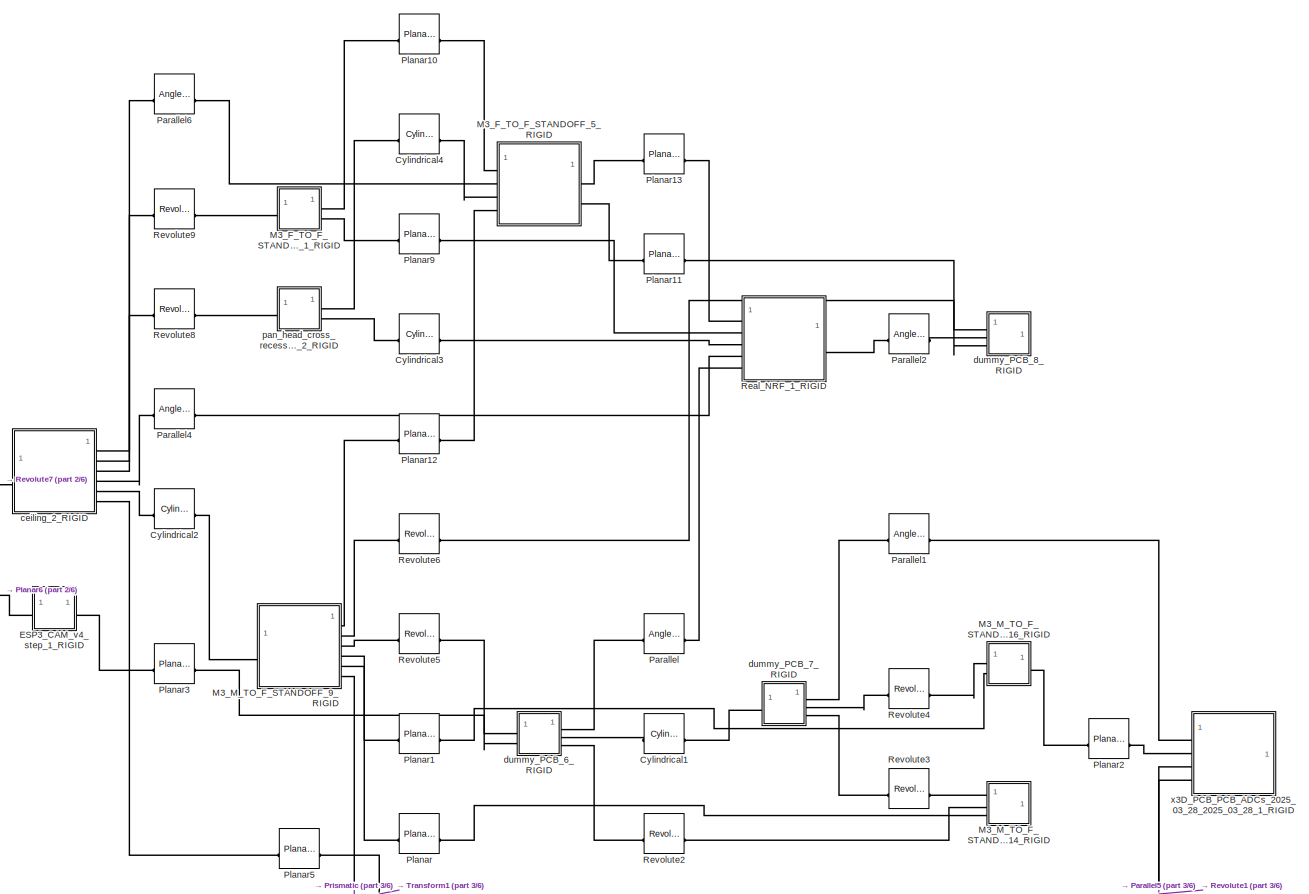
[diagram: root canvas - part 1/6, top left region]
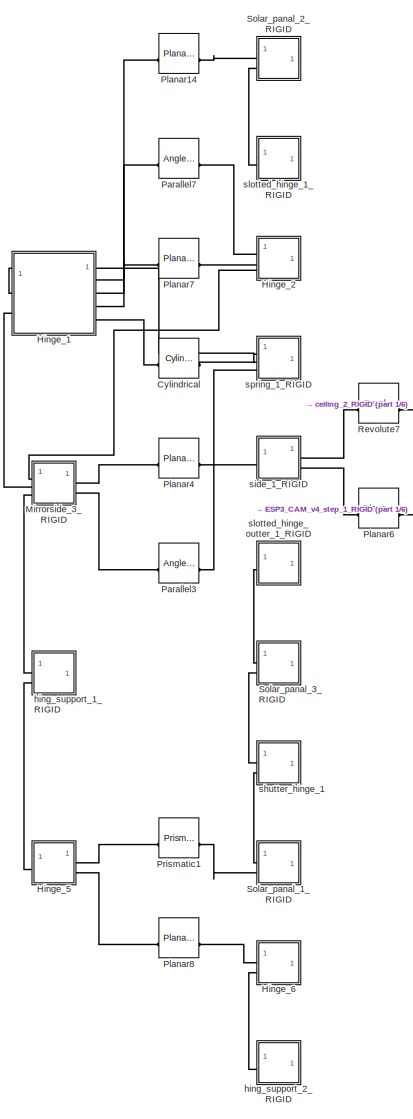
[diagram: root canvas - part 2/6, top left region]
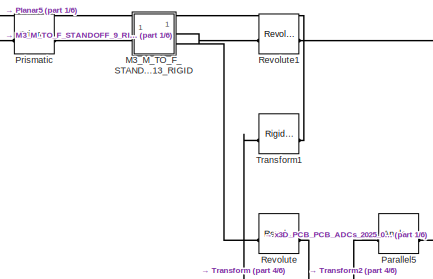
[diagram: root canvas - part 3/6, top left region]
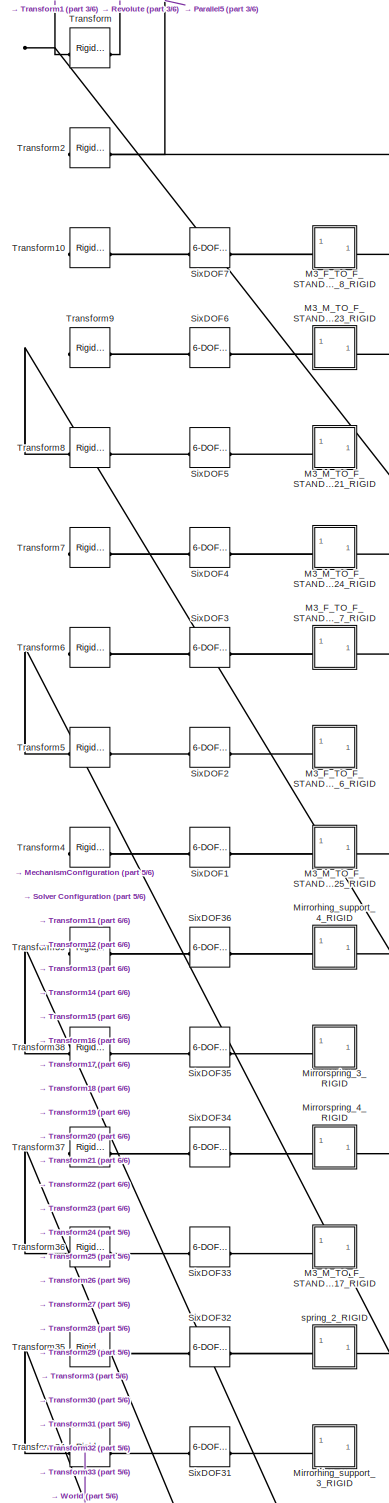
[diagram: root canvas - part 4/6, top left region]
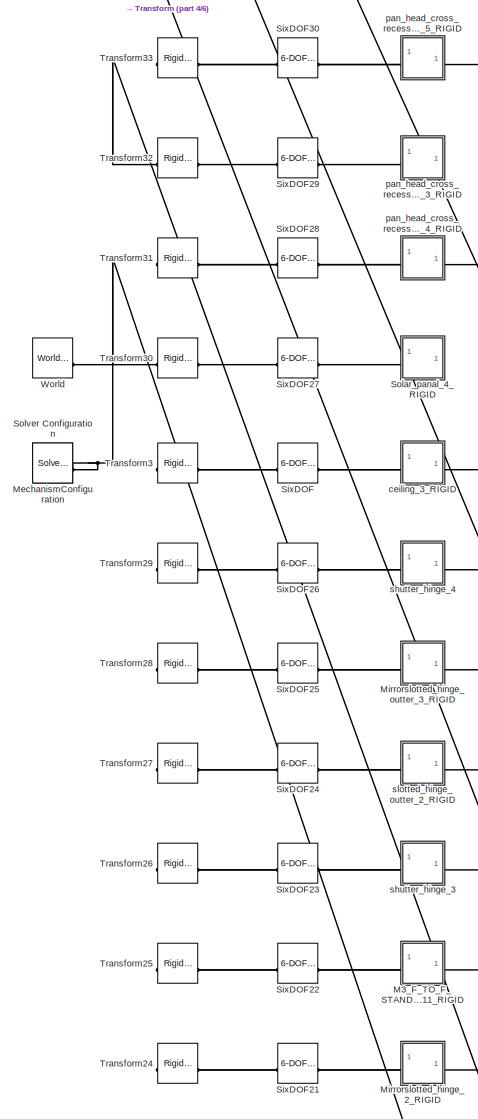
[diagram: root canvas - part 5/6, middle left region]
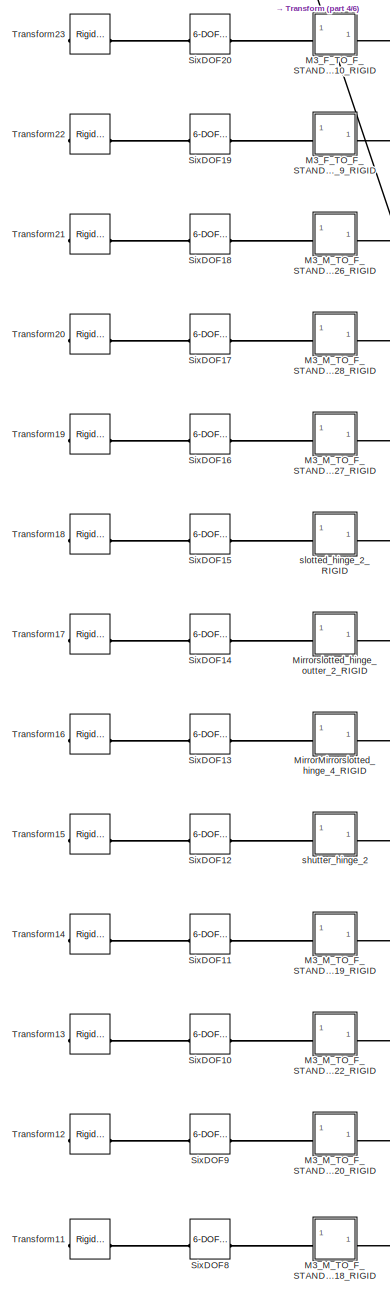
[diagram: root canvas - part 6/6, middle left region]
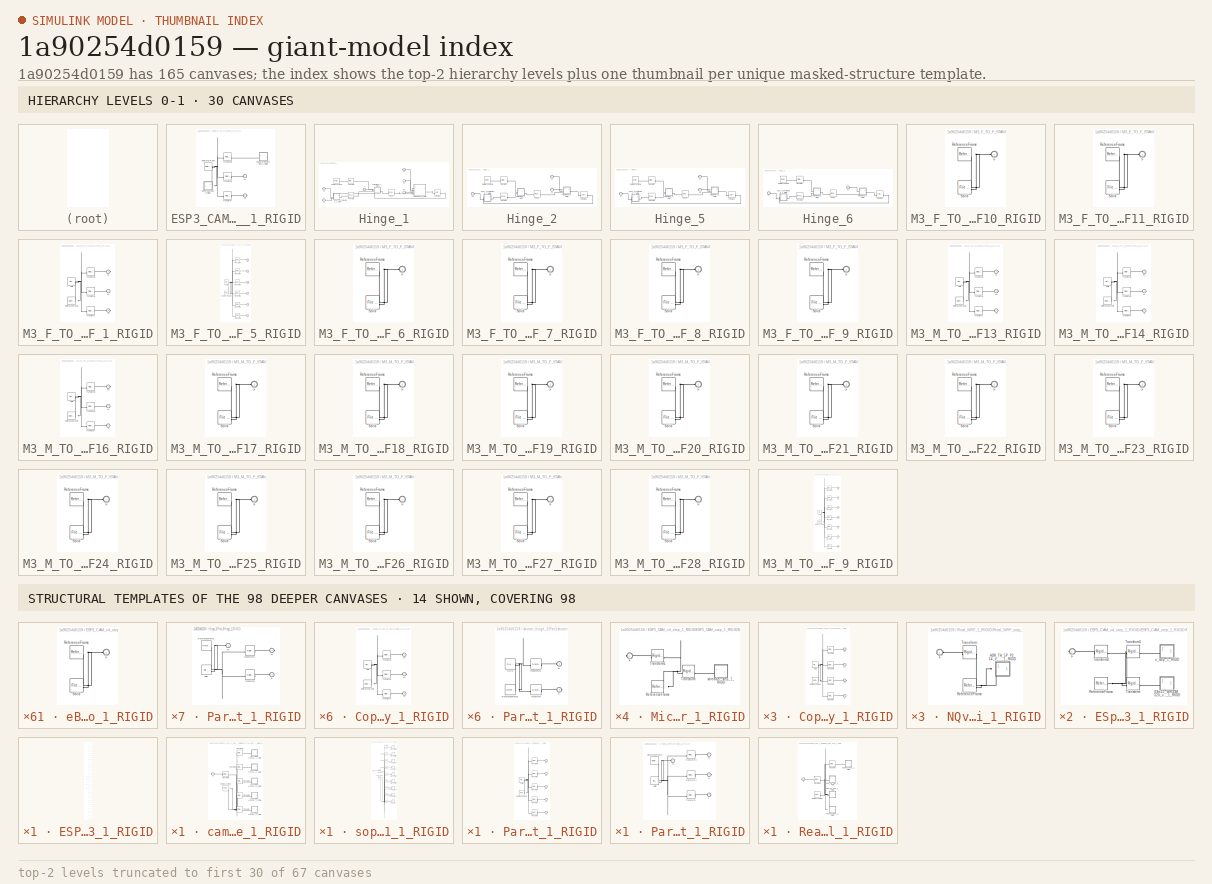
[diagram: thumbnail index - top-2 hierarchy levels (67 canvases (first 30 of 67 shown)) + 14 structural-template representatives of the remaining 98 canvases]
MODEL slx_1a90254d0159
KIND model
CONFIG AbsTol = auto
CONFIG EnableMultiTasking = off
CONFIG FixedStep = auto
CONFIG MaxStep = auto
CONFIG MinStep = auto
CONFIG RelTol = 1e-3
CONFIG SampleTimeConstraint = Unconstrained
CONFIG SolverName = VariableStepAuto
CONFIG StartTime = 0.0
CONFIG StopTime = 10.0
WORKSPACE source: external: MATLAB File  (data not in archive)
BLOCK [Reference] Cylindrical  REF=sm_lib/Joints/Cylindrical
Joint
  SourceBlock = sm_lib/Joints/Cylindrical\nJoint
  SourceType = Cylindrical\nJoint
BLOCK [Reference] Cylindrical1  REF=sm_lib/Joints/Cylindrical
Joint
  SourceBlock = sm_lib/Joints/Cylindrical\nJoint
  SourceType = Cylindrical\nJoint
BLOCK [Reference] Cylindrical2  REF=sm_lib/Joints/Cylindrical
Joint
  SourceBlock = sm_lib/Joints/Cylindrical\nJoint
  SourceType = Cylindrical\nJoint
BLOCK [Reference] Cylindrical3  REF=sm_lib/Joints/Cylindrical
Joint
  SourceBlock = sm_lib/Joints/Cylindrical\nJoint
  SourceType = Cylindrical\nJoint
BLOCK [Reference] Cylindrical4  REF=sm_lib/Joints/Cylindrical
Joint
  SourceBlock = sm_lib/Joints/Cylindrical\nJoint
  SourceType = Cylindrical\nJoint
BLOCK [SubSystem] ESP3_CAM_v4_step_1_RIGID
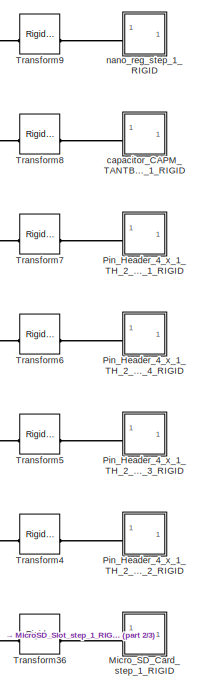
[diagram: ESP3_CAM_v4_step_1_RIGID/ESP3_CAM_step_1_RIGID - part 1/3, top right region]
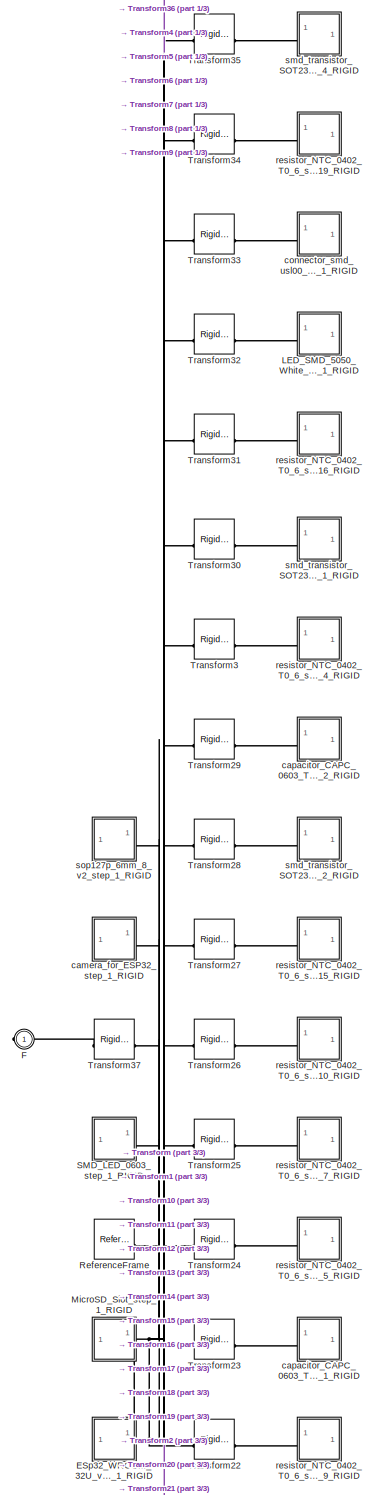
[diagram: ESP3_CAM_v4_step_1_RIGID/ESP3_CAM_step_1_RIGID - part 2/3, full width, middle band]
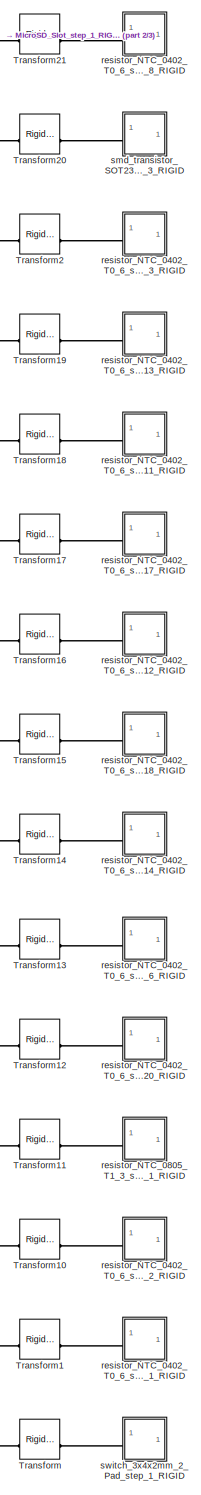
[diagram: ESP3_CAM_v4_step_1_RIGID/ESP3_CAM_step_1_RIGID - part 3/3, bottom right region]
BLOCK [SubSystem] ESP3_CAM_v4_step_1_RIGID/ESP3_CAM_step_1_RIGID
BLOCK [SubSystem] ESP3_CAM_v4_step_1_RIGID/ESP3_CAM_step_1_RIGID/ESp32_WROOM_32U_v3_step_1_RIGID
BLOCK [SubSystem] ESP3_CAM_v4_step_1_RIGID/ESP3_CAM_step_1_RIGID/ESp32_WROOM_32U_v3_step_1_RIGID/ESp32_WROOM_32U_v3_0_step_1_RIGID
BLOCK [PMIOPort] ESP3_CAM_v4_step_1_RIGID/ESP3_CAM_step_1_RIGID/ESp32_WROOM_32U_v3_step_1_RIGID/ESp32_WROOM_32U_v3_0_step_1_RIGID/F
  Side = Left
BLOCK [Reference] ESP3_CAM_v4_step_1_RIGID/ESP3_CAM_step_1_RIGID/ESp32_WROOM_32U_v3_step_1_RIGID/ESp32_WROOM_32U_v3_0_step_1_RIGID/ReferenceFrame  REF=sm_lib/Frames and
Transforms/Reference
Frame
  SourceBlock = sm_lib/Frames and\nTransforms/Reference\nFrame
  SourceType = Reference\nFrame
BLOCK [Reference] ESP3_CAM_v4_step_1_RIGID/ESP3_CAM_step_1_RIGID/ESp32_WROOM_32U_v3_step_1_RIGID/ESp32_WROOM_32U_v3_0_step_1_RIGID/Solid  REF=sm_lib/Body Elements/File Solid
  SourceBlock = sm_lib/Body Elements/File Solid
  SourceType = File Solid
BLOCK [PMIOPort] ESP3_CAM_v4_step_1_RIGID/ESP3_CAM_step_1_RIGID/ESp32_WROOM_32U_v3_step_1_RIGID/F
  Side = Right
BLOCK [Reference] ESP3_CAM_v4_step_1_RIGID/ESP3_CAM_step_1_RIGID/ESp32_WROOM_32U_v3_step_1_RIGID/ReferenceFrame  REF=sm_lib/Frames and
Transforms/Reference
Frame
  SourceBlock = sm_lib/Frames and\nTransforms/Reference\nFrame
  SourceType = Reference\nFrame
BLOCK [Reference] ESP3_CAM_v4_step_1_RIGID/ESP3_CAM_step_1_RIGID/ESp32_WROOM_32U_v3_step_1_RIGID/Transform  REF=sm_lib/Frames and
Transforms/Rigid
Transform
  SourceBlock = sm_lib/Frames and\nTransforms/Rigid\nTransform
  SourceType = Rigid\nTransform
BLOCK [Reference] ESP3_CAM_v4_step_1_RIGID/ESP3_CAM_step_1_RIGID/ESp32_WROOM_32U_v3_step_1_RIGID/Transform1  REF=sm_lib/Frames and
Transforms/Rigid
Transform
  SourceBlock = sm_lib/Frames and\nTransforms/Rigid\nTransform
  SourceType = Rigid\nTransform
BLOCK [Reference] ESP3_CAM_v4_step_1_RIGID/ESP3_CAM_step_1_RIGID/ESp32_WROOM_32U_v3_step_1_RIGID/Transform2  REF=sm_lib/Frames and
Transforms/Rigid
Transform
  SourceBlock = sm_lib/Frames and\nTransforms/Rigid\nTransform
  SourceType = Rigid\nTransform
BLOCK [SubSystem] ESP3_CAM_v4_step_1_RIGID/ESP3_CAM_step_1_RIGID/ESp32_WROOM_32U_v3_step_1_RIGID/u_step_1_RIGID
BLOCK [PMIOPort] ESP3_CAM_v4_step_1_RIGID/ESP3_CAM_step_1_RIGID/ESp32_WROOM_32U_v3_step_1_RIGID/u_step_1_RIGID/F
  Side = Left
BLOCK [Reference] ESP3_CAM_v4_step_1_RIGID/ESP3_CAM_step_1_RIGID/ESp32_WROOM_32U_v3_step_1_RIGID/u_step_1_RIGID/ReferenceFrame  REF=sm_lib/Frames and
Transforms/Reference
Frame
  SourceBlock = sm_lib/Frames and\nTransforms/Reference\nFrame
  SourceType = Reference\nFrame
BLOCK [Reference] ESP3_CAM_v4_step_1_RIGID/ESP3_CAM_step_1_RIGID/ESp32_WROOM_32U_v3_step_1_RIGID/u_step_1_RIGID/Solid  REF=sm_lib/Body Elements/File Solid
  SourceBlock = sm_lib/Body Elements/File Solid
  SourceType = File Solid
BLOCK [PMIOPort] ESP3_CAM_v4_step_1_RIGID/ESP3_CAM_step_1_RIGID/F
  Side = Right
BLOCK [SubSystem] ESP3_CAM_v4_step_1_RIGID/ESP3_CAM_step_1_RIGID/LED_SMD_5050_White_step_1_RIGID
BLOCK [PMIOPort] ESP3_CAM_v4_step_1_RIGID/ESP3_CAM_step_1_RIGID/LED_SMD_5050_White_step_1_RIGID/F
  Side = Left
BLOCK [Reference] ESP3_CAM_v4_step_1_RIGID/ESP3_CAM_step_1_RIGID/LED_SMD_5050_White_step_1_RIGID/ReferenceFrame  REF=sm_lib/Frames and
Transforms/Reference
Frame
  SourceBlock = sm_lib/Frames and\nTransforms/Reference\nFrame
  SourceType = Reference\nFrame
BLOCK [Reference] ESP3_CAM_v4_step_1_RIGID/ESP3_CAM_step_1_RIGID/LED_SMD_5050_White_step_1_RIGID/Solid  REF=sm_lib/Body Elements/File Solid
  SourceBlock = sm_lib/Body Elements/File Solid
  SourceType = File Solid
BLOCK [SubSystem] ESP3_CAM_v4_step_1_RIGID/ESP3_CAM_step_1_RIGID/MicroSD_Slot_step_1_RIGID
BLOCK [PMIOPort] ESP3_CAM_v4_step_1_RIGID/ESP3_CAM_step_1_RIGID/MicroSD_Slot_step_1_RIGID/F
  Side = Right
BLOCK [Reference] ESP3_CAM_v4_step_1_RIGID/ESP3_CAM_step_1_RIGID/MicroSD_Slot_step_1_RIGID/ReferenceFrame  REF=sm_lib/Frames and
Transforms/Reference
Frame
  SourceBlock = sm_lib/Frames and\nTransforms/Reference\nFrame
  SourceType = Reference\nFrame
BLOCK [Reference] ESP3_CAM_v4_step_1_RIGID/ESP3_CAM_step_1_RIGID/MicroSD_Slot_step_1_RIGID/Transform  REF=sm_lib/Frames and
Transforms/Rigid
Transform
  SourceBlock = sm_lib/Frames and\nTransforms/Rigid\nTransform
  SourceType = Rigid\nTransform
BLOCK [Reference] ESP3_CAM_v4_step_1_RIGID/ESP3_CAM_step_1_RIGID/MicroSD_Slot_step_1_RIGID/Transform1  REF=sm_lib/Frames and
Transforms/Rigid
Transform
  SourceBlock = sm_lib/Frames and\nTransforms/Rigid\nTransform
  SourceType = Rigid\nTransform
BLOCK [SubSystem] ESP3_CAM_v4_step_1_RIGID/ESP3_CAM_step_1_RIGID/MicroSD_Slot_step_1_RIGID/sdreader_step_1_RIGID
BLOCK [PMIOPort] ESP3_CAM_v4_step_1_RIGID/ESP3_CAM_step_1_RIGID/MicroSD_Slot_step_1_RIGID/sdreader_step_1_RIGID/F
  Side = Left
BLOCK [Reference] ESP3_CAM_v4_step_1_RIGID/ESP3_CAM_step_1_RIGID/MicroSD_Slot_step_1_RIGID/sdreader_step_1_RIGID/ReferenceFrame  REF=sm_lib/Frames and
Transforms/Reference
Frame
  SourceBlock = sm_lib/Frames and\nTransforms/Reference\nFrame
  SourceType = Reference\nFrame
BLOCK [Reference] ESP3_CAM_v4_step_1_RIGID/ESP3_CAM_step_1_RIGID/MicroSD_Slot_step_1_RIGID/sdreader_step_1_RIGID/Solid  REF=sm_lib/Body Elements/File Solid
  SourceBlock = sm_lib/Body Elements/File Solid
  SourceType = File Solid
BLOCK [SubSystem] ESP3_CAM_v4_step_1_RIGID/ESP3_CAM_step_1_RIGID/Micro_SD_Card_step_1_RIGID
BLOCK [PMIOPort] ESP3_CAM_v4_step_1_RIGID/ESP3_CAM_step_1_RIGID/Micro_SD_Card_step_1_RIGID/F
  Side = Left
BLOCK [Reference] ESP3_CAM_v4_step_1_RIGID/ESP3_CAM_step_1_RIGID/Micro_SD_Card_step_1_RIGID/ReferenceFrame  REF=sm_lib/Frames and
Transforms/Reference
Frame
  SourceBlock = sm_lib/Frames and\nTransforms/Reference\nFrame
  SourceType = Reference\nFrame
BLOCK [Reference] ESP3_CAM_v4_step_1_RIGID/ESP3_CAM_step_1_RIGID/Micro_SD_Card_step_1_RIGID/Solid  REF=sm_lib/Body Elements/File Solid
  SourceBlock = sm_lib/Body Elements/File Solid
  SourceType = File Solid
BLOCK [SubSystem] ESP3_CAM_v4_step_1_RIGID/ESP3_CAM_step_1_RIGID/Pin_Header_4_x_1_TH_2_54mm_Pitch_step_1_RIGID
BLOCK [PMIOPort] ESP3_CAM_v4_step_1_RIGID/ESP3_CAM_step_1_RIGID/Pin_Header_4_x_1_TH_2_54mm_Pitch_step_1_RIGID/F
  Side = Left
BLOCK [Reference] ESP3_CAM_v4_step_1_RIGID/ESP3_CAM_step_1_RIGID/Pin_Header_4_x_1_TH_2_54mm_Pitch_step_1_RIGID/ReferenceFrame  REF=sm_lib/Frames and
Transforms/Reference
Frame
  SourceBlock = sm_lib/Frames and\nTransforms/Reference\nFrame
  SourceType = Reference\nFrame
BLOCK [Reference] ESP3_CAM_v4_step_1_RIGID/ESP3_CAM_step_1_RIGID/Pin_Header_4_x_1_TH_2_54mm_Pitch_step_1_RIGID/Solid  REF=sm_lib/Body Elements/File Solid
  SourceBlock = sm_lib/Body Elements/File Solid
  SourceType = File Solid
BLOCK [SubSystem] ESP3_CAM_v4_step_1_RIGID/ESP3_CAM_step_1_RIGID/Pin_Header_4_x_1_TH_2_54mm_Pitch_step_2_RIGID
BLOCK [PMIOPort] ESP3_CAM_v4_step_1_RIGID/ESP3_CAM_step_1_RIGID/Pin_Header_4_x_1_TH_2_54mm_Pitch_step_2_RIGID/F
  Side = Left
BLOCK [Reference] ESP3_CAM_v4_step_1_RIGID/ESP3_CAM_step_1_RIGID/Pin_Header_4_x_1_TH_2_54mm_Pitch_step_2_RIGID/ReferenceFrame  REF=sm_lib/Frames and
Transforms/Reference
Frame
  SourceBlock = sm_lib/Frames and\nTransforms/Reference\nFrame
  SourceType = Reference\nFrame
BLOCK [Reference] ESP3_CAM_v4_step_1_RIGID/ESP3_CAM_step_1_RIGID/Pin_Header_4_x_1_TH_2_54mm_Pitch_step_2_RIGID/Solid  REF=sm_lib/Body Elements/File Solid
  SourceBlock = sm_lib/Body Elements/File Solid
  SourceType = File Solid
BLOCK [SubSystem] ESP3_CAM_v4_step_1_RIGID/ESP3_CAM_step_1_RIGID/Pin_Header_4_x_1_TH_2_54mm_Pitch_step_3_RIGID
BLOCK [PMIOPort] ESP3_CAM_v4_step_1_RIGID/ESP3_CAM_step_1_RIGID/Pin_Header_4_x_1_TH_2_54mm_Pitch_step_3_RIGID/F
  Side = Left
BLOCK [Reference] ESP3_CAM_v4_step_1_RIGID/ESP3_CAM_step_1_RIGID/Pin_Header_4_x_1_TH_2_54mm_Pitch_step_3_RIGID/ReferenceFrame  REF=sm_lib/Frames and
Transforms/Reference
Frame
  SourceBlock = sm_lib/Frames and\nTransforms/Reference\nFrame
  SourceType = Reference\nFrame
BLOCK [Reference] ESP3_CAM_v4_step_1_RIGID/ESP3_CAM_step_1_RIGID/Pin_Header_4_x_1_TH_2_54mm_Pitch_step_3_RIGID/Solid  REF=sm_lib/Body Elements/File Solid
  SourceBlock = sm_lib/Body Elements/File Solid
  SourceType = File Solid
BLOCK [SubSystem] ESP3_CAM_v4_step_1_RIGID/ESP3_CAM_step_1_RIGID/Pin_Header_4_x_1_TH_2_54mm_Pitch_step_4_RIGID
BLOCK [PMIOPort] ESP3_CAM_v4_step_1_RIGID/ESP3_CAM_step_1_RIGID/Pin_Header_4_x_1_TH_2_54mm_Pitch_step_4_RIGID/F
  Side = Left
BLOCK [Reference] ESP3_CAM_v4_step_1_RIGID/ESP3_CAM_step_1_RIGID/Pin_Header_4_x_1_TH_2_54mm_Pitch_step_4_RIGID/ReferenceFrame  REF=sm_lib/Frames and
Transforms/Reference
Frame
  SourceBlock = sm_lib/Frames and\nTransforms/Reference\nFrame
  SourceType = Reference\nFrame
BLOCK [Reference] ESP3_CAM_v4_step_1_RIGID/ESP3_CAM_step_1_RIGID/Pin_Header_4_x_1_TH_2_54mm_Pitch_step_4_RIGID/Solid  REF=sm_lib/Body Elements/File Solid
  SourceBlock = sm_lib/Body Elements/File Solid
  SourceType = File Solid
BLOCK [Reference] ESP3_CAM_v4_step_1_RIGID/ESP3_CAM_step_1_RIGID/ReferenceFrame  REF=sm_lib/Frames and
Transforms/Reference
Frame
  SourceBlock = sm_lib/Frames and\nTransforms/Reference\nFrame
  SourceType = Reference\nFrame
BLOCK [SubSystem] ESP3_CAM_v4_step_1_RIGID/ESP3_CAM_step_1_RIGID/SMD_LED_0603_step_1_RIGID
BLOCK [PMIOPort] ESP3_CAM_v4_step_1_RIGID/ESP3_CAM_step_1_RIGID/SMD_LED_0603_step_1_RIGID/F
  Side = Right
BLOCK [SubSystem] ESP3_CAM_v4_step_1_RIGID/ESP3_CAM_step_1_RIGID/SMD_LED_0603_step_1_RIGID/Fillet_step_1_RIGID
BLOCK [PMIOPort] ESP3_CAM_v4_step_1_RIGID/ESP3_CAM_step_1_RIGID/SMD_LED_0603_step_1_RIGID/Fillet_step_1_RIGID/F
  Side = Left
BLOCK [Reference] ESP3_CAM_v4_step_1_RIGID/ESP3_CAM_step_1_RIGID/SMD_LED_0603_step_1_RIGID/Fillet_step_1_RIGID/ReferenceFrame  REF=sm_lib/Frames and
Transforms/Reference
Frame
  SourceBlock = sm_lib/Frames and\nTransforms/Reference\nFrame
  SourceType = Reference\nFrame
BLOCK [Reference] ESP3_CAM_v4_step_1_RIGID/ESP3_CAM_step_1_RIGID/SMD_LED_0603_step_1_RIGID/Fillet_step_1_RIGID/Solid  REF=sm_lib/Body Elements/File Solid
  SourceBlock = sm_lib/Body Elements/File Solid
  SourceType = File Solid
BLOCK [SubSystem] ESP3_CAM_v4_step_1_RIGID/ESP3_CAM_step_1_RIGID/SMD_LED_0603_step_1_RIGID/Fusion_step_1_RIGID
BLOCK [PMIOPort] ESP3_CAM_v4_step_1_RIGID/ESP3_CAM_step_1_RIGID/SMD_LED_0603_step_1_RIGID/Fusion_step_1_RIGID/F
  Side = Left
BLOCK [Reference] ESP3_CAM_v4_step_1_RIGID/ESP3_CAM_step_1_RIGID/SMD_LED_0603_step_1_RIGID/Fusion_step_1_RIGID/ReferenceFrame  REF=sm_lib/Frames and
Transforms/Reference
Frame
  SourceBlock = sm_lib/Frames and\nTransforms/Reference\nFrame
  SourceType = Reference\nFrame
BLOCK [Reference] ESP3_CAM_v4_step_1_RIGID/ESP3_CAM_step_1_RIGID/SMD_LED_0603_step_1_RIGID/Fusion_step_1_RIGID/Solid  REF=sm_lib/Body Elements/File Solid
  SourceBlock = sm_lib/Body Elements/File Solid
  SourceType = File Solid
BLOCK [Reference] ESP3_CAM_v4_step_1_RIGID/ESP3_CAM_step_1_RIGID/SMD_LED_0603_step_1_RIGID/ReferenceFrame  REF=sm_lib/Frames and
Transforms/Reference
Frame
  SourceBlock = sm_lib/Frames and\nTransforms/Reference\nFrame
  SourceType = Reference\nFrame
BLOCK [Reference] ESP3_CAM_v4_step_1_RIGID/ESP3_CAM_step_1_RIGID/SMD_LED_0603_step_1_RIGID/Transform  REF=sm_lib/Frames and
Transforms/Rigid
Transform
  SourceBlock = sm_lib/Frames and\nTransforms/Rigid\nTransform
  SourceType = Rigid\nTransform
BLOCK [Reference] ESP3_CAM_v4_step_1_RIGID/ESP3_CAM_step_1_RIGID/SMD_LED_0603_step_1_RIGID/Transform1  REF=sm_lib/Frames and
Transforms/Rigid
Transform
  SourceBlock = sm_lib/Frames and\nTransforms/Rigid\nTransform
  SourceType = Rigid\nTransform
BLOCK [Reference] ESP3_CAM_v4_step_1_RIGID/ESP3_CAM_step_1_RIGID/SMD_LED_0603_step_1_RIGID/Transform2  REF=sm_lib/Frames and
Transforms/Rigid
Transform
  SourceBlock = sm_lib/Frames and\nTransforms/Rigid\nTransform
  SourceType = Rigid\nTransform
BLOCK [Reference] ESP3_CAM_v4_step_1_RIGID/ESP3_CAM_step_1_RIGID/Transform  REF=sm_lib/Frames and
Transforms/Rigid
Transform
  SourceBlock = sm_lib/Frames and\nTransforms/Rigid\nTransform
  SourceType = Rigid\nTransform
BLOCK [Reference] ESP3_CAM_v4_step_1_RIGID/ESP3_CAM_step_1_RIGID/Transform1  REF=sm_lib/Frames and
Transforms/Rigid
Transform
  SourceBlock = sm_lib/Frames and\nTransforms/Rigid\nTransform
  SourceType = Rigid\nTransform
BLOCK [Reference] ESP3_CAM_v4_step_1_RIGID/ESP3_CAM_step_1_RIGID/Transform10  REF=sm_lib/Frames and
Transforms/Rigid
Transform
  SourceBlock = sm_lib/Frames and\nTransforms/Rigid\nTransform
  SourceType = Rigid\nTransform
BLOCK [Reference] ESP3_CAM_v4_step_1_RIGID/ESP3_CAM_step_1_RIGID/Transform11  REF=sm_lib/Frames and
Transforms/Rigid
Transform
  SourceBlock = sm_lib/Frames and\nTransforms/Rigid\nTransform
  SourceType = Rigid\nTransform
BLOCK [Reference] ESP3_CAM_v4_step_1_RIGID/ESP3_CAM_step_1_RIGID/Transform12  REF=sm_lib/Frames and
Transforms/Rigid
Transform
  SourceBlock = sm_lib/Frames and\nTransforms/Rigid\nTransform
  SourceType = Rigid\nTransform
BLOCK [Reference] ESP3_CAM_v4_step_1_RIGID/ESP3_CAM_step_1_RIGID/Transform13  REF=sm_lib/Frames and
Transforms/Rigid
Transform
  SourceBlock = sm_lib/Frames and\nTransforms/Rigid\nTransform
  SourceType = Rigid\nTransform
BLOCK [Reference] ESP3_CAM_v4_step_1_RIGID/ESP3_CAM_step_1_RIGID/Transform14  REF=sm_lib/Frames and
Transforms/Rigid
Transform
  SourceBlock = sm_lib/Frames and\nTransforms/Rigid\nTransform
  SourceType = Rigid\nTransform
BLOCK [Reference] ESP3_CAM_v4_step_1_RIGID/ESP3_CAM_step_1_RIGID/Transform15  REF=sm_lib/Frames and
Transforms/Rigid
Transform
  SourceBlock = sm_lib/Frames and\nTransforms/Rigid\nTransform
  SourceType = Rigid\nTransform
BLOCK [Reference] ESP3_CAM_v4_step_1_RIGID/ESP3_CAM_step_1_RIGID/Transform16  REF=sm_lib/Frames and
Transforms/Rigid
Transform
  SourceBlock = sm_lib/Frames and\nTransforms/Rigid\nTransform
  SourceType = Rigid\nTransform
BLOCK [Reference] ESP3_CAM_v4_step_1_RIGID/ESP3_CAM_step_1_RIGID/Transform17  REF=sm_lib/Frames and
Transforms/Rigid
Transform
  SourceBlock = sm_lib/Frames and\nTransforms/Rigid\nTransform
  SourceType = Rigid\nTransform
BLOCK [Reference] ESP3_CAM_v4_step_1_RIGID/ESP3_CAM_step_1_RIGID/Transform18  REF=sm_lib/Frames and
Transforms/Rigid
Transform
  SourceBlock = sm_lib/Frames and\nTransforms/Rigid\nTransform
  SourceType = Rigid\nTransform
BLOCK [Reference] ESP3_CAM_v4_step_1_RIGID/ESP3_CAM_step_1_RIGID/Transform19  REF=sm_lib/Frames and
Transforms/Rigid
Transform
  SourceBlock = sm_lib/Frames and\nTransforms/Rigid\nTransform
  SourceType = Rigid\nTransform
BLOCK [Reference] ESP3_CAM_v4_step_1_RIGID/ESP3_CAM_step_1_RIGID/Transform2  REF=sm_lib/Frames and
Transforms/Rigid
Transform
  SourceBlock = sm_lib/Frames and\nTransforms/Rigid\nTransform
  SourceType = Rigid\nTransform
BLOCK [Reference] ESP3_CAM_v4_step_1_RIGID/ESP3_CAM_step_1_RIGID/Transform20  REF=sm_lib/Frames and
Transforms/Rigid
Transform
  SourceBlock = sm_lib/Frames and\nTransforms/Rigid\nTransform
  SourceType = Rigid\nTransform
BLOCK [Reference] ESP3_CAM_v4_step_1_RIGID/ESP3_CAM_step_1_RIGID/Transform21  REF=sm_lib/Frames and
Transforms/Rigid
Transform
  SourceBlock = sm_lib/Frames and\nTransforms/Rigid\nTransform
  SourceType = Rigid\nTransform
BLOCK [Reference] ESP3_CAM_v4_step_1_RIGID/ESP3_CAM_step_1_RIGID/Transform22  REF=sm_lib/Frames and
Transforms/Rigid
Transform
  SourceBlock = sm_lib/Frames and\nTransforms/Rigid\nTransform
  SourceType = Rigid\nTransform
BLOCK [Reference] ESP3_CAM_v4_step_1_RIGID/ESP3_CAM_step_1_RIGID/Transform23  REF=sm_lib/Frames and
Transforms/Rigid
Transform
  SourceBlock = sm_lib/Frames and\nTransforms/Rigid\nTransform
  SourceType = Rigid\nTransform
BLOCK [Reference] ESP3_CAM_v4_step_1_RIGID/ESP3_CAM_step_1_RIGID/Transform24  REF=sm_lib/Frames and
Transforms/Rigid
Transform
  SourceBlock = sm_lib/Frames and\nTransforms/Rigid\nTransform
  SourceType = Rigid\nTransform
BLOCK [Reference] ESP3_CAM_v4_step_1_RIGID/ESP3_CAM_step_1_RIGID/Transform25  REF=sm_lib/Frames and
Transforms/Rigid
Transform
  SourceBlock = sm_lib/Frames and\nTransforms/Rigid\nTransform
  SourceType = Rigid\nTransform
BLOCK [Reference] ESP3_CAM_v4_step_1_RIGID/ESP3_CAM_step_1_RIGID/Transform26  REF=sm_lib/Frames and
Transforms/Rigid
Transform
  SourceBlock = sm_lib/Frames and\nTransforms/Rigid\nTransform
  SourceType = Rigid\nTransform
BLOCK [Reference] ESP3_CAM_v4_step_1_RIGID/ESP3_CAM_step_1_RIGID/Transform27  REF=sm_lib/Frames and
Transforms/Rigid
Transform
  SourceBlock = sm_lib/Frames and\nTransforms/Rigid\nTransform
  SourceType = Rigid\nTransform
BLOCK [Reference] ESP3_CAM_v4_step_1_RIGID/ESP3_CAM_step_1_RIGID/Transform28  REF=sm_lib/Frames and
Transforms/Rigid
Transform
  SourceBlock = sm_lib/Frames and\nTransforms/Rigid\nTransform
  SourceType = Rigid\nTransform
BLOCK [Reference] ESP3_CAM_v4_step_1_RIGID/ESP3_CAM_step_1_RIGID/Transform29  REF=sm_lib/Frames and
Transforms/Rigid
Transform
  SourceBlock = sm_lib/Frames and\nTransforms/Rigid\nTransform
  SourceType = Rigid\nTransform
BLOCK [Reference] ESP3_CAM_v4_step_1_RIGID/ESP3_CAM_step_1_RIGID/Transform3  REF=sm_lib/Frames and
Transforms/Rigid
Transform
  SourceBlock = sm_lib/Frames and\nTransforms/Rigid\nTransform
  SourceType = Rigid\nTransform
BLOCK [Reference] ESP3_CAM_v4_step_1_RIGID/ESP3_CAM_step_1_RIGID/Transform30  REF=sm_lib/Frames and
Transforms/Rigid
Transform
  SourceBlock = sm_lib/Frames and\nTransforms/Rigid\nTransform
  SourceType = Rigid\nTransform
BLOCK [Reference] ESP3_CAM_v4_step_1_RIGID/ESP3_CAM_step_1_RIGID/Transform31  REF=sm_lib/Frames and
Transforms/Rigid
Transform
  SourceBlock = sm_lib/Frames and\nTransforms/Rigid\nTransform
  SourceType = Rigid\nTransform
BLOCK [Reference] ESP3_CAM_v4_step_1_RIGID/ESP3_CAM_step_1_RIGID/Transform32  REF=sm_lib/Frames and
Transforms/Rigid
Transform
  SourceBlock = sm_lib/Frames and\nTransforms/Rigid\nTransform
  SourceType = Rigid\nTransform
BLOCK [Reference] ESP3_CAM_v4_step_1_RIGID/ESP3_CAM_step_1_RIGID/Transform33  REF=sm_lib/Frames and
Transforms/Rigid
Transform
  SourceBlock = sm_lib/Frames and\nTransforms/Rigid\nTransform
  SourceType = Rigid\nTransform
BLOCK [Reference] ESP3_CAM_v4_step_1_RIGID/ESP3_CAM_step_1_RIGID/Transform34  REF=sm_lib/Frames and
Transforms/Rigid
Transform
  SourceBlock = sm_lib/Frames and\nTransforms/Rigid\nTransform
  SourceType = Rigid\nTransform
BLOCK [Reference] ESP3_CAM_v4_step_1_RIGID/ESP3_CAM_step_1_RIGID/Transform35  REF=sm_lib/Frames and
Transforms/Rigid
Transform
  SourceBlock = sm_lib/Frames and\nTransforms/Rigid\nTransform
  SourceType = Rigid\nTransform
BLOCK [Reference] ESP3_CAM_v4_step_1_RIGID/ESP3_CAM_step_1_RIGID/Transform36  REF=sm_lib/Frames and
Transforms/Rigid
Transform
  SourceBlock = sm_lib/Frames and\nTransforms/Rigid\nTransform
  SourceType = Rigid\nTransform
BLOCK [Reference] ESP3_CAM_v4_step_1_RIGID/ESP3_CAM_step_1_RIGID/Transform37  REF=sm_lib/Frames and
Transforms/Rigid
Transform
  SourceBlock = sm_lib/Frames and\nTransforms/Rigid\nTransform
  SourceType = Rigid\nTransform
BLOCK [Reference] ESP3_CAM_v4_step_1_RIGID/ESP3_CAM_step_1_RIGID/Transform4  REF=sm_lib/Frames and
Transforms/Rigid
Transform
  SourceBlock = sm_lib/Frames and\nTransforms/Rigid\nTransform
  SourceType = Rigid\nTransform
BLOCK [Reference] ESP3_CAM_v4_step_1_RIGID/ESP3_CAM_step_1_RIGID/Transform5  REF=sm_lib/Frames and
Transforms/Rigid
Transform
  SourceBlock = sm_lib/Frames and\nTransforms/Rigid\nTransform
  SourceType = Rigid\nTransform
BLOCK [Reference] ESP3_CAM_v4_step_1_RIGID/ESP3_CAM_step_1_RIGID/Transform6  REF=sm_lib/Frames and
Transforms/Rigid
Transform
  SourceBlock = sm_lib/Frames and\nTransforms/Rigid\nTransform
  SourceType = Rigid\nTransform
BLOCK [Reference] ESP3_CAM_v4_step_1_RIGID/ESP3_CAM_step_1_RIGID/Transform7  REF=sm_lib/Frames and
Transforms/Rigid
Transform
  SourceBlock = sm_lib/Frames and\nTransforms/Rigid\nTransform
  SourceType = Rigid\nTransform
BLOCK [Reference] ESP3_CAM_v4_step_1_RIGID/ESP3_CAM_step_1_RIGID/Transform8  REF=sm_lib/Frames and
Transforms/Rigid
Transform
  SourceBlock = sm_lib/Frames and\nTransforms/Rigid\nTransform
  SourceType = Rigid\nTransform
BLOCK [Reference] ESP3_CAM_v4_step_1_RIGID/ESP3_CAM_step_1_RIGID/Transform9  REF=sm_lib/Frames and
Transforms/Rigid
Transform
  SourceBlock = sm_lib/Frames and\nTransforms/Rigid\nTransform
  SourceType = Rigid\nTransform
BLOCK [SubSystem] ESP3_CAM_v4_step_1_RIGID/ESP3_CAM_step_1_RIGID/camera_for_ESP32_step_1_RIGID
BLOCK [PMIOPort] ESP3_CAM_v4_step_1_RIGID/ESP3_CAM_step_1_RIGID/camera_for_ESP32_step_1_RIGID/F
  Side = Right
BLOCK [Reference] ESP3_CAM_v4_step_1_RIGID/ESP3_CAM_step_1_RIGID/camera_for_ESP32_step_1_RIGID/ReferenceFrame  REF=sm_lib/Frames and
Transforms/Reference
Frame
  SourceBlock = sm_lib/Frames and\nTransforms/Reference\nFrame
  SourceType = Reference\nFrame
BLOCK [Reference] ESP3_CAM_v4_step_1_RIGID/ESP3_CAM_step_1_RIGID/camera_for_ESP32_step_1_RIGID/Transform  REF=sm_lib/Frames and
Transforms/Rigid
Transform
  SourceBlock = sm_lib/Frames and\nTransforms/Rigid\nTransform
  SourceType = Rigid\nTransform
BLOCK [Reference] ESP3_CAM_v4_step_1_RIGID/ESP3_CAM_step_1_RIGID/camera_for_ESP32_step_1_RIGID/Transform1  REF=sm_lib/Frames and
Transforms/Rigid
Transform
  SourceBlock = sm_lib/Frames and\nTransforms/Rigid\nTransform
  SourceType = Rigid\nTransform
BLOCK [Reference] ESP3_CAM_v4_step_1_RIGID/ESP3_CAM_step_1_RIGID/camera_for_ESP32_step_1_RIGID/Transform2  REF=sm_lib/Frames and
Transforms/Rigid
Transform
  SourceBlock = sm_lib/Frames and\nTransforms/Rigid\nTransform
  SourceType = Rigid\nTransform
BLOCK [Reference] ESP3_CAM_v4_step_1_RIGID/ESP3_CAM_step_1_RIGID/camera_for_ESP32_step_1_RIGID/Transform3  REF=sm_lib/Frames and
Transforms/Rigid
Transform
  SourceBlock = sm_lib/Frames and\nTransforms/Rigid\nTransform
  SourceType = Rigid\nTransform
BLOCK [Reference] ESP3_CAM_v4_step_1_RIGID/ESP3_CAM_step_1_RIGID/camera_for_ESP32_step_1_RIGID/Transform4  REF=sm_lib/Frames and
Transforms/Rigid
Transform
  SourceBlock = sm_lib/Frames and\nTransforms/Rigid\nTransform
  SourceType = Rigid\nTransform
BLOCK [Reference] ESP3_CAM_v4_step_1_RIGID/ESP3_CAM_step_1_RIGID/camera_for_ESP32_step_1_RIGID/Transform5  REF=sm_lib/Frames and
Transforms/Rigid
Transform
  SourceBlock = sm_lib/Frames and\nTransforms/Rigid\nTransform
  SourceType = Rigid\nTransform
BLOCK [SubSystem] ESP3_CAM_v4_step_1_RIGID/ESP3_CAM_step_1_RIGID/camera_for_ESP32_step_1_RIGID/User_Library_ov9655_ov9655_back_panel_step_1_RIGID
BLOCK [PMIOPort] ESP3_CAM_v4_step_1_RIGID/ESP3_CAM_step_1_RIGID/camera_for_ESP32_step_1_RIGID/User_Library_ov9655_ov9655_back_panel_step_1_RIGID/F
  Side = Left
BLOCK [Reference] ESP3_CAM_v4_step_1_RIGID/ESP3_CAM_step_1_RIGID/camera_for_ESP32_step_1_RIGID/User_Library_ov9655_ov9655_back_panel_step_1_RIGID/ReferenceFrame  REF=sm_lib/Frames and
Transforms/Reference
Frame
  SourceBlock = sm_lib/Frames and\nTransforms/Reference\nFrame
  SourceType = Reference\nFrame
BLOCK [Reference] ESP3_CAM_v4_step_1_RIGID/ESP3_CAM_step_1_RIGID/camera_for_ESP32_step_1_RIGID/User_Library_ov9655_ov9655_back_panel_step_1_RIGID/Solid  REF=sm_lib/Body Elements/File Solid
  SourceBlock = sm_lib/Body Elements/File Solid
  SourceType = File Solid
BLOCK [SubSystem] ESP3_CAM_v4_step_1_RIGID/ESP3_CAM_step_1_RIGID/camera_for_ESP32_step_1_RIGID/User_Library_ov9655_ov9655_body_step_1_RIGID
BLOCK [PMIOPort] ESP3_CAM_v4_step_1_RIGID/ESP3_CAM_step_1_RIGID/camera_for_ESP32_step_1_RIGID/User_Library_ov9655_ov9655_body_step_1_RIGID/F
  Side = Left
BLOCK [Reference] ESP3_CAM_v4_step_1_RIGID/ESP3_CAM_step_1_RIGID/camera_for_ESP32_step_1_RIGID/User_Library_ov9655_ov9655_body_step_1_RIGID/ReferenceFrame  REF=sm_lib/Frames and
Transforms/Reference
Frame
  SourceBlock = sm_lib/Frames and\nTransforms/Reference\nFrame
  SourceType = Reference\nFrame
BLOCK [Reference] ESP3_CAM_v4_step_1_RIGID/ESP3_CAM_step_1_RIGID/camera_for_ESP32_step_1_RIGID/User_Library_ov9655_ov9655_body_step_1_RIGID/Solid  REF=sm_lib/Body Elements/File Solid
  SourceBlock = sm_lib/Body Elements/File Solid
  SourceType = File Solid
BLOCK [SubSystem] ESP3_CAM_v4_step_1_RIGID/ESP3_CAM_step_1_RIGID/camera_for_ESP32_step_1_RIGID/User_Library_ov9655_ov9655_flex_pcb_step_1_RIGID
BLOCK [PMIOPort] ESP3_CAM_v4_step_1_RIGID/ESP3_CAM_step_1_RIGID/camera_for_ESP32_step_1_RIGID/User_Library_ov9655_ov9655_flex_pcb_step_1_RIGID/F
  Side = Left
BLOCK [Reference] ESP3_CAM_v4_step_1_RIGID/ESP3_CAM_step_1_RIGID/camera_for_ESP32_step_1_RIGID/User_Library_ov9655_ov9655_flex_pcb_step_1_RIGID/ReferenceFrame  REF=sm_lib/Frames and
Transforms/Reference
Frame
  SourceBlock = sm_lib/Frames and\nTransforms/Reference\nFrame
  SourceType = Reference\nFrame
BLOCK [Reference] ESP3_CAM_v4_step_1_RIGID/ESP3_CAM_step_1_RIGID/camera_for_ESP32_step_1_RIGID/User_Library_ov9655_ov9655_flex_pcb_step_1_RIGID/Solid  REF=sm_lib/Body Elements/File Solid
  SourceBlock = sm_lib/Body Elements/File Solid
  SourceType = File Solid
BLOCK [SubSystem] ESP3_CAM_v4_step_1_RIGID/ESP3_CAM_step_1_RIGID/camera_for_ESP32_step_1_RIGID/User_Library_ov9655_ov9655_flex_reinf_step_1_RIGID
BLOCK [PMIOPort] ESP3_CAM_v4_step_1_RIGID/ESP3_CAM_step_1_RIGID/camera_for_ESP32_step_1_RIGID/User_Library_ov9655_ov9655_flex_reinf_step_1_RIGID/F
  Side = Left
BLOCK [Reference] ESP3_CAM_v4_step_1_RIGID/ESP3_CAM_step_1_RIGID/camera_for_ESP32_step_1_RIGID/User_Library_ov9655_ov9655_flex_reinf_step_1_RIGID/ReferenceFrame  REF=sm_lib/Frames and
Transforms/Reference
Frame
  SourceBlock = sm_lib/Frames and\nTransforms/Reference\nFrame
  SourceType = Reference\nFrame
BLOCK [Reference] ESP3_CAM_v4_step_1_RIGID/ESP3_CAM_step_1_RIGID/camera_for_ESP32_step_1_RIGID/User_Library_ov9655_ov9655_flex_reinf_step_1_RIGID/Solid  REF=sm_lib/Body Elements/File Solid
  SourceBlock = sm_lib/Body Elements/File Solid
  SourceType = File Solid
BLOCK [SubSystem] ESP3_CAM_v4_step_1_RIGID/ESP3_CAM_step_1_RIGID/camera_for_ESP32_step_1_RIGID/User_Library_ov9655_ov9655_lens_step_1_RIGID
BLOCK [PMIOPort] ESP3_CAM_v4_step_1_RIGID/ESP3_CAM_step_1_RIGID/camera_for_ESP32_step_1_RIGID/User_Library_ov9655_ov9655_lens_step_1_RIGID/F
  Side = Left
BLOCK [Reference] ESP3_CAM_v4_step_1_RIGID/ESP3_CAM_step_1_RIGID/camera_for_ESP32_step_1_RIGID/User_Library_ov9655_ov9655_lens_step_1_RIGID/ReferenceFrame  REF=sm_lib/Frames and
Transforms/Reference
Frame
  SourceBlock = sm_lib/Frames and\nTransforms/Reference\nFrame
  SourceType = Reference\nFrame
BLOCK [Reference] ESP3_CAM_v4_step_1_RIGID/ESP3_CAM_step_1_RIGID/camera_for_ESP32_step_1_RIGID/User_Library_ov9655_ov9655_lens_step_1_RIGID/Solid  REF=sm_lib/Body Elements/File Solid
  SourceBlock = sm_lib/Body Elements/File Solid
  SourceType = File Solid
BLOCK [SubSystem] ESP3_CAM_v4_step_1_RIGID/ESP3_CAM_step_1_RIGID/capacitor_CAPC_0603_T0_9_BN_step_1_RIGID
BLOCK [PMIOPort] ESP3_CAM_v4_step_1_RIGID/ESP3_CAM_step_1_RIGID/capacitor_CAPC_0603_T0_9_BN_step_1_RIGID/F
  Side = Left
BLOCK [Reference] ESP3_CAM_v4_step_1_RIGID/ESP3_CAM_step_1_RIGID/capacitor_CAPC_0603_T0_9_BN_step_1_RIGID/ReferenceFrame  REF=sm_lib/Frames and
Transforms/Reference
Frame
  SourceBlock = sm_lib/Frames and\nTransforms/Reference\nFrame
  SourceType = Reference\nFrame
BLOCK [Reference] ESP3_CAM_v4_step_1_RIGID/ESP3_CAM_step_1_RIGID/capacitor_CAPC_0603_T0_9_BN_step_1_RIGID/Solid  REF=sm_lib/Body Elements/File Solid
  SourceBlock = sm_lib/Body Elements/File Solid
  SourceType = File Solid
BLOCK [SubSystem] ESP3_CAM_v4_step_1_RIGID/ESP3_CAM_step_1_RIGID/capacitor_CAPC_0603_T0_9_BN_step_2_RIGID
BLOCK [PMIOPort] ESP3_CAM_v4_step_1_RIGID/ESP3_CAM_step_1_RIGID/capacitor_CAPC_0603_T0_9_BN_step_2_RIGID/F
  Side = Left
BLOCK [Reference] ESP3_CAM_v4_step_1_RIGID/ESP3_CAM_step_1_RIGID/capacitor_CAPC_0603_T0_9_BN_step_2_RIGID/ReferenceFrame  REF=sm_lib/Frames and
Transforms/Reference
Frame
  SourceBlock = sm_lib/Frames and\nTransforms/Reference\nFrame
  SourceType = Reference\nFrame
BLOCK [Reference] ESP3_CAM_v4_step_1_RIGID/ESP3_CAM_step_1_RIGID/capacitor_CAPC_0603_T0_9_BN_step_2_RIGID/Solid  REF=sm_lib/Body Elements/File Solid
  SourceBlock = sm_lib/Body Elements/File Solid
  SourceType = File Solid
BLOCK [SubSystem] ESP3_CAM_v4_step_1_RIGID/ESP3_CAM_step_1_RIGID/capacitor_CAPM_TANTB_YL_step_1_RIGID
BLOCK [PMIOPort] ESP3_CAM_v4_step_1_RIGID/ESP3_CAM_step_1_RIGID/capacitor_CAPM_TANTB_YL_step_1_RIGID/F
  Side = Left
BLOCK [Reference] ESP3_CAM_v4_step_1_RIGID/ESP3_CAM_step_1_RIGID/capacitor_CAPM_TANTB_YL_step_1_RIGID/ReferenceFrame  REF=sm_lib/Frames and
Transforms/Reference
Frame
  SourceBlock = sm_lib/Frames and\nTransforms/Reference\nFrame
  SourceType = Reference\nFrame
BLOCK [Reference] ESP3_CAM_v4_step_1_RIGID/ESP3_CAM_step_1_RIGID/capacitor_CAPM_TANTB_YL_step_1_RIGID/Solid  REF=sm_lib/Body Elements/File Solid
  SourceBlock = sm_lib/Body Elements/File Solid
  SourceType = File Solid
BLOCK [SubSystem] ESP3_CAM_v4_step_1_RIGID/ESP3_CAM_step_1_RIGID/connector_smd_usl00_20l_p0_4_l12_6_w2_75_step_1_RIGID
BLOCK [PMIOPort] ESP3_CAM_v4_step_1_RIGID/ESP3_CAM_step_1_RIGID/connector_smd_usl00_20l_p0_4_l12_6_w2_75_step_1_RIGID/F
  Side = Left
BLOCK [Reference] ESP3_CAM_v4_step_1_RIGID/ESP3_CAM_step_1_RIGID/connector_smd_usl00_20l_p0_4_l12_6_w2_75_step_1_RIGID/ReferenceFrame  REF=sm_lib/Frames and
Transforms/Reference
Frame
  SourceBlock = sm_lib/Frames and\nTransforms/Reference\nFrame
  SourceType = Reference\nFrame
BLOCK [Reference] ESP3_CAM_v4_step_1_RIGID/ESP3_CAM_step_1_RIGID/connector_smd_usl00_20l_p0_4_l12_6_w2_75_step_1_RIGID/Solid  REF=sm_lib/Body Elements/File Solid
  SourceBlock = sm_lib/Body Elements/File Solid
  SourceType = File Solid
BLOCK [SubSystem] ESP3_CAM_v4_step_1_RIGID/ESP3_CAM_step_1_RIGID/nano_reg_step_1_RIGID
BLOCK [PMIOPort] ESP3_CAM_v4_step_1_RIGID/ESP3_CAM_step_1_RIGID/nano_reg_step_1_RIGID/F
  Side = Left
BLOCK [Reference] ESP3_CAM_v4_step_1_RIGID/ESP3_CAM_step_1_RIGID/nano_reg_step_1_RIGID/ReferenceFrame  REF=sm_lib/Frames and
Transforms/Reference
Frame
  SourceBlock = sm_lib/Frames and\nTransforms/Reference\nFrame
  SourceType = Reference\nFrame
BLOCK [Reference] ESP3_CAM_v4_step_1_RIGID/ESP3_CAM_step_1_RIGID/nano_reg_step_1_RIGID/Solid  REF=sm_lib/Body Elements/File Solid
  SourceBlock = sm_lib/Body Elements/File Solid
  SourceType = File Solid
BLOCK [SubSystem] ESP3_CAM_v4_step_1_RIGID/ESP3_CAM_step_1_RIGID/resistor_NTC_0402_T0_6_step_10_RIGID
BLOCK [PMIOPort] ESP3_CAM_v4_step_1_RIGID/ESP3_CAM_step_1_RIGID/resistor_NTC_0402_T0_6_step_10_RIGID/F
  Side = Left
BLOCK [Reference] ESP3_CAM_v4_step_1_RIGID/ESP3_CAM_step_1_RIGID/resistor_NTC_0402_T0_6_step_10_RIGID/ReferenceFrame  REF=sm_lib/Frames and
Transforms/Reference
Frame
  SourceBlock = sm_lib/Frames and\nTransforms/Reference\nFrame
  SourceType = Reference\nFrame
BLOCK [Reference] ESP3_CAM_v4_step_1_RIGID/ESP3_CAM_step_1_RIGID/resistor_NTC_0402_T0_6_step_10_RIGID/Solid  REF=sm_lib/Body Elements/File Solid
  SourceBlock = sm_lib/Body Elements/File Solid
  SourceType = File Solid
BLOCK [SubSystem] ESP3_CAM_v4_step_1_RIGID/ESP3_CAM_step_1_RIGID/resistor_NTC_0402_T0_6_step_11_RIGID
BLOCK [PMIOPort] ESP3_CAM_v4_step_1_RIGID/ESP3_CAM_step_1_RIGID/resistor_NTC_0402_T0_6_step_11_RIGID/F
  Side = Left
BLOCK [Reference] ESP3_CAM_v4_step_1_RIGID/ESP3_CAM_step_1_RIGID/resistor_NTC_0402_T0_6_step_11_RIGID/ReferenceFrame  REF=sm_lib/Frames and
Transforms/Reference
Frame
  SourceBlock = sm_lib/Frames and\nTransforms/Reference\nFrame
  SourceType = Reference\nFrame
BLOCK [Reference] ESP3_CAM_v4_step_1_RIGID/ESP3_CAM_step_1_RIGID/resistor_NTC_0402_T0_6_step_11_RIGID/Solid  REF=sm_lib/Body Elements/File Solid
  SourceBlock = sm_lib/Body Elements/File Solid
  SourceType = File Solid
BLOCK [SubSystem] ESP3_CAM_v4_step_1_RIGID/ESP3_CAM_step_1_RIGID/resistor_NTC_0402_T0_6_step_12_RIGID
BLOCK [PMIOPort] ESP3_CAM_v4_step_1_RIGID/ESP3_CAM_step_1_RIGID/resistor_NTC_0402_T0_6_step_12_RIGID/F
  Side = Left
BLOCK [Reference] ESP3_CAM_v4_step_1_RIGID/ESP3_CAM_step_1_RIGID/resistor_NTC_0402_T0_6_step_12_RIGID/ReferenceFrame  REF=sm_lib/Frames and
Transforms/Reference
Frame
  SourceBlock = sm_lib/Frames and\nTransforms/Reference\nFrame
  SourceType = Reference\nFrame
BLOCK [Reference] ESP3_CAM_v4_step_1_RIGID/ESP3_CAM_step_1_RIGID/resistor_NTC_0402_T0_6_step_12_RIGID/Solid  REF=sm_lib/Body Elements/File Solid
  SourceBlock = sm_lib/Body Elements/File Solid
  SourceType = File Solid
BLOCK [SubSystem] ESP3_CAM_v4_step_1_RIGID/ESP3_CAM_step_1_RIGID/resistor_NTC_0402_T0_6_step_13_RIGID
BLOCK [PMIOPort] ESP3_CAM_v4_step_1_RIGID/ESP3_CAM_step_1_RIGID/resistor_NTC_0402_T0_6_step_13_RIGID/F
  Side = Left
BLOCK [Reference] ESP3_CAM_v4_step_1_RIGID/ESP3_CAM_step_1_RIGID/resistor_NTC_0402_T0_6_step_13_RIGID/ReferenceFrame  REF=sm_lib/Frames and
Transforms/Reference
Frame
  SourceBlock = sm_lib/Frames and\nTransforms/Reference\nFrame
  SourceType = Reference\nFrame
BLOCK [Reference] ESP3_CAM_v4_step_1_RIGID/ESP3_CAM_step_1_RIGID/resistor_NTC_0402_T0_6_step_13_RIGID/Solid  REF=sm_lib/Body Elements/File Solid
  SourceBlock = sm_lib/Body Elements/File Solid
  SourceType = File Solid
BLOCK [SubSystem] ESP3_CAM_v4_step_1_RIGID/ESP3_CAM_step_1_RIGID/resistor_NTC_0402_T0_6_step_14_RIGID
BLOCK [PMIOPort] ESP3_CAM_v4_step_1_RIGID/ESP3_CAM_step_1_RIGID/resistor_NTC_0402_T0_6_step_14_RIGID/F
  Side = Left
BLOCK [Reference] ESP3_CAM_v4_step_1_RIGID/ESP3_CAM_step_1_RIGID/resistor_NTC_0402_T0_6_step_14_RIGID/ReferenceFrame  REF=sm_lib/Frames and
Transforms/Reference
Frame
  SourceBlock = sm_lib/Frames and\nTransforms/Reference\nFrame
  SourceType = Reference\nFrame
BLOCK [Reference] ESP3_CAM_v4_step_1_RIGID/ESP3_CAM_step_1_RIGID/resistor_NTC_0402_T0_6_step_14_RIGID/Solid  REF=sm_lib/Body Elements/File Solid
  SourceBlock = sm_lib/Body Elements/File Solid
  SourceType = File Solid
BLOCK [SubSystem] ESP3_CAM_v4_step_1_RIGID/ESP3_CAM_step_1_RIGID/resistor_NTC_0402_T0_6_step_15_RIGID
BLOCK [PMIOPort] ESP3_CAM_v4_step_1_RIGID/ESP3_CAM_step_1_RIGID/resistor_NTC_0402_T0_6_step_15_RIGID/F
  Side = Left
BLOCK [Reference] ESP3_CAM_v4_step_1_RIGID/ESP3_CAM_step_1_RIGID/resistor_NTC_0402_T0_6_step_15_RIGID/ReferenceFrame  REF=sm_lib/Frames and
Transforms/Reference
Frame
  SourceBlock = sm_lib/Frames and\nTransforms/Reference\nFrame
  SourceType = Reference\nFrame
BLOCK [Reference] ESP3_CAM_v4_step_1_RIGID/ESP3_CAM_step_1_RIGID/resistor_NTC_0402_T0_6_step_15_RIGID/Solid  REF=sm_lib/Body Elements/File Solid
  SourceBlock = sm_lib/Body Elements/File Solid
  SourceType = File Solid
BLOCK [SubSystem] ESP3_CAM_v4_step_1_RIGID/ESP3_CAM_step_1_RIGID/resistor_NTC_0402_T0_6_step_16_RIGID
BLOCK [PMIOPort] ESP3_CAM_v4_step_1_RIGID/ESP3_CAM_step_1_RIGID/resistor_NTC_0402_T0_6_step_16_RIGID/F
  Side = Left
BLOCK [Reference] ESP3_CAM_v4_step_1_RIGID/ESP3_CAM_step_1_RIGID/resistor_NTC_0402_T0_6_step_16_RIGID/ReferenceFrame  REF=sm_lib/Frames and
Transforms/Reference
Frame
  SourceBlock = sm_lib/Frames and\nTransforms/Reference\nFrame
  SourceType = Reference\nFrame
BLOCK [Reference] ESP3_CAM_v4_step_1_RIGID/ESP3_CAM_step_1_RIGID/resistor_NTC_0402_T0_6_step_16_RIGID/Solid  REF=sm_lib/Body Elements/File Solid
  SourceBlock = sm_lib/Body Elements/File Solid
  SourceType = File Solid
BLOCK [SubSystem] ESP3_CAM_v4_step_1_RIGID/ESP3_CAM_step_1_RIGID/resistor_NTC_0402_T0_6_step_17_RIGID
BLOCK [PMIOPort] ESP3_CAM_v4_step_1_RIGID/ESP3_CAM_step_1_RIGID/resistor_NTC_0402_T0_6_step_17_RIGID/F
  Side = Left
BLOCK [Reference] ESP3_CAM_v4_step_1_RIGID/ESP3_CAM_step_1_RIGID/resistor_NTC_0402_T0_6_step_17_RIGID/ReferenceFrame  REF=sm_lib/Frames and
Transforms/Reference
Frame
  SourceBlock = sm_lib/Frames and\nTransforms/Reference\nFrame
  SourceType = Reference\nFrame
BLOCK [Reference] ESP3_CAM_v4_step_1_RIGID/ESP3_CAM_step_1_RIGID/resistor_NTC_0402_T0_6_step_17_RIGID/Solid  REF=sm_lib/Body Elements/File Solid
  SourceBlock = sm_lib/Body Elements/File Solid
  SourceType = File Solid
BLOCK [SubSystem] ESP3_CAM_v4_step_1_RIGID/ESP3_CAM_step_1_RIGID/resistor_NTC_0402_T0_6_step_18_RIGID
BLOCK [PMIOPort] ESP3_CAM_v4_step_1_RIGID/ESP3_CAM_step_1_RIGID/resistor_NTC_0402_T0_6_step_18_RIGID/F
  Side = Left
BLOCK [Reference] ESP3_CAM_v4_step_1_RIGID/ESP3_CAM_step_1_RIGID/resistor_NTC_0402_T0_6_step_18_RIGID/ReferenceFrame  REF=sm_lib/Frames and
Transforms/Reference
Frame
  SourceBlock = sm_lib/Frames and\nTransforms/Reference\nFrame
  SourceType = Reference\nFrame
BLOCK [Reference] ESP3_CAM_v4_step_1_RIGID/ESP3_CAM_step_1_RIGID/resistor_NTC_0402_T0_6_step_18_RIGID/Solid  REF=sm_lib/Body Elements/File Solid
  SourceBlock = sm_lib/Body Elements/File Solid
  SourceType = File Solid
BLOCK [SubSystem] ESP3_CAM_v4_step_1_RIGID/ESP3_CAM_step_1_RIGID/resistor_NTC_0402_T0_6_step_19_RIGID
BLOCK [PMIOPort] ESP3_CAM_v4_step_1_RIGID/ESP3_CAM_step_1_RIGID/resistor_NTC_0402_T0_6_step_19_RIGID/F
  Side = Left
BLOCK [Reference] ESP3_CAM_v4_step_1_RIGID/ESP3_CAM_step_1_RIGID/resistor_NTC_0402_T0_6_step_19_RIGID/ReferenceFrame  REF=sm_lib/Frames and
Transforms/Reference
Frame
  SourceBlock = sm_lib/Frames and\nTransforms/Reference\nFrame
  SourceType = Reference\nFrame
BLOCK [Reference] ESP3_CAM_v4_step_1_RIGID/ESP3_CAM_step_1_RIGID/resistor_NTC_0402_T0_6_step_19_RIGID/Solid  REF=sm_lib/Body Elements/File Solid
  SourceBlock = sm_lib/Body Elements/File Solid
  SourceType = File Solid
BLOCK [SubSystem] ESP3_CAM_v4_step_1_RIGID/ESP3_CAM_step_1_RIGID/resistor_NTC_0402_T0_6_step_1_RIGID
BLOCK [PMIOPort] ESP3_CAM_v4_step_1_RIGID/ESP3_CAM_step_1_RIGID/resistor_NTC_0402_T0_6_step_1_RIGID/F
  Side = Left
BLOCK [Reference] ESP3_CAM_v4_step_1_RIGID/ESP3_CAM_step_1_RIGID/resistor_NTC_0402_T0_6_step_1_RIGID/ReferenceFrame  REF=sm_lib/Frames and
Transforms/Reference
Frame
  SourceBlock = sm_lib/Frames and\nTransforms/Reference\nFrame
  SourceType = Reference\nFrame
BLOCK [Reference] ESP3_CAM_v4_step_1_RIGID/ESP3_CAM_step_1_RIGID/resistor_NTC_0402_T0_6_step_1_RIGID/Solid  REF=sm_lib/Body Elements/File Solid
  SourceBlock = sm_lib/Body Elements/File Solid
  SourceType = File Solid
BLOCK [SubSystem] ESP3_CAM_v4_step_1_RIGID/ESP3_CAM_step_1_RIGID/resistor_NTC_0402_T0_6_step_20_RIGID
BLOCK [PMIOPort] ESP3_CAM_v4_step_1_RIGID/ESP3_CAM_step_1_RIGID/resistor_NTC_0402_T0_6_step_20_RIGID/F
  Side = Left
BLOCK [Reference] ESP3_CAM_v4_step_1_RIGID/ESP3_CAM_step_1_RIGID/resistor_NTC_0402_T0_6_step_20_RIGID/ReferenceFrame  REF=sm_lib/Frames and
Transforms/Reference
Frame
  SourceBlock = sm_lib/Frames and\nTransforms/Reference\nFrame
  SourceType = Reference\nFrame
BLOCK [Reference] ESP3_CAM_v4_step_1_RIGID/ESP3_CAM_step_1_RIGID/resistor_NTC_0402_T0_6_step_20_RIGID/Solid  REF=sm_lib/Body Elements/File Solid
  SourceBlock = sm_lib/Body Elements/File Solid
  SourceType = File Solid
BLOCK [SubSystem] ESP3_CAM_v4_step_1_RIGID/ESP3_CAM_step_1_RIGID/resistor_NTC_0402_T0_6_step_2_RIGID
BLOCK [PMIOPort] ESP3_CAM_v4_step_1_RIGID/ESP3_CAM_step_1_RIGID/resistor_NTC_0402_T0_6_step_2_RIGID/F
  Side = Left
BLOCK [Reference] ESP3_CAM_v4_step_1_RIGID/ESP3_CAM_step_1_RIGID/resistor_NTC_0402_T0_6_step_2_RIGID/ReferenceFrame  REF=sm_lib/Frames and
Transforms/Reference
Frame
  SourceBlock = sm_lib/Frames and\nTransforms/Reference\nFrame
  SourceType = Reference\nFrame
BLOCK [Reference] ESP3_CAM_v4_step_1_RIGID/ESP3_CAM_step_1_RIGID/resistor_NTC_0402_T0_6_step_2_RIGID/Solid  REF=sm_lib/Body Elements/File Solid
  SourceBlock = sm_lib/Body Elements/File Solid
  SourceType = File Solid
BLOCK [SubSystem] ESP3_CAM_v4_step_1_RIGID/ESP3_CAM_step_1_RIGID/resistor_NTC_0402_T0_6_step_3_RIGID
BLOCK [PMIOPort] ESP3_CAM_v4_step_1_RIGID/ESP3_CAM_step_1_RIGID/resistor_NTC_0402_T0_6_step_3_RIGID/F
  Side = Left
BLOCK [Reference] ESP3_CAM_v4_step_1_RIGID/ESP3_CAM_step_1_RIGID/resistor_NTC_0402_T0_6_step_3_RIGID/ReferenceFrame  REF=sm_lib/Frames and
Transforms/Reference
Frame
  SourceBlock = sm_lib/Frames and\nTransforms/Reference\nFrame
  SourceType = Reference\nFrame
BLOCK [Reference] ESP3_CAM_v4_step_1_RIGID/ESP3_CAM_step_1_RIGID/resistor_NTC_0402_T0_6_step_3_RIGID/Solid  REF=sm_lib/Body Elements/File Solid
  SourceBlock = sm_lib/Body Elements/File Solid
  SourceType = File Solid
BLOCK [SubSystem] ESP3_CAM_v4_step_1_RIGID/ESP3_CAM_step_1_RIGID/resistor_NTC_0402_T0_6_step_4_RIGID
BLOCK [PMIOPort] ESP3_CAM_v4_step_1_RIGID/ESP3_CAM_step_1_RIGID/resistor_NTC_0402_T0_6_step_4_RIGID/F
  Side = Left
BLOCK [Reference] ESP3_CAM_v4_step_1_RIGID/ESP3_CAM_step_1_RIGID/resistor_NTC_0402_T0_6_step_4_RIGID/ReferenceFrame  REF=sm_lib/Frames and
Transforms/Reference
Frame
  SourceBlock = sm_lib/Frames and\nTransforms/Reference\nFrame
  SourceType = Reference\nFrame
BLOCK [Reference] ESP3_CAM_v4_step_1_RIGID/ESP3_CAM_step_1_RIGID/resistor_NTC_0402_T0_6_step_4_RIGID/Solid  REF=sm_lib/Body Elements/File Solid
  SourceBlock = sm_lib/Body Elements/File Solid
  SourceType = File Solid
BLOCK [SubSystem] ESP3_CAM_v4_step_1_RIGID/ESP3_CAM_step_1_RIGID/resistor_NTC_0402_T0_6_step_5_RIGID
BLOCK [PMIOPort] ESP3_CAM_v4_step_1_RIGID/ESP3_CAM_step_1_RIGID/resistor_NTC_0402_T0_6_step_5_RIGID/F
  Side = Left
BLOCK [Reference] ESP3_CAM_v4_step_1_RIGID/ESP3_CAM_step_1_RIGID/resistor_NTC_0402_T0_6_step_5_RIGID/ReferenceFrame  REF=sm_lib/Frames and
Transforms/Reference
Frame
  SourceBlock = sm_lib/Frames and\nTransforms/Reference\nFrame
  SourceType = Reference\nFrame
BLOCK [Reference] ESP3_CAM_v4_step_1_RIGID/ESP3_CAM_step_1_RIGID/resistor_NTC_0402_T0_6_step_5_RIGID/Solid  REF=sm_lib/Body Elements/File Solid
  SourceBlock = sm_lib/Body Elements/File Solid
  SourceType = File Solid
BLOCK [SubSystem] ESP3_CAM_v4_step_1_RIGID/ESP3_CAM_step_1_RIGID/resistor_NTC_0402_T0_6_step_6_RIGID
BLOCK [PMIOPort] ESP3_CAM_v4_step_1_RIGID/ESP3_CAM_step_1_RIGID/resistor_NTC_0402_T0_6_step_6_RIGID/F
  Side = Left
BLOCK [Reference] ESP3_CAM_v4_step_1_RIGID/ESP3_CAM_step_1_RIGID/resistor_NTC_0402_T0_6_step_6_RIGID/ReferenceFrame  REF=sm_lib/Frames and
Transforms/Reference
Frame
  SourceBlock = sm_lib/Frames and\nTransforms/Reference\nFrame
  SourceType = Reference\nFrame
BLOCK [Reference] ESP3_CAM_v4_step_1_RIGID/ESP3_CAM_step_1_RIGID/resistor_NTC_0402_T0_6_step_6_RIGID/Solid  REF=sm_lib/Body Elements/File Solid
  SourceBlock = sm_lib/Body Elements/File Solid
  SourceType = File Solid
BLOCK [SubSystem] ESP3_CAM_v4_step_1_RIGID/ESP3_CAM_step_1_RIGID/resistor_NTC_0402_T0_6_step_7_RIGID
BLOCK [PMIOPort] ESP3_CAM_v4_step_1_RIGID/ESP3_CAM_step_1_RIGID/resistor_NTC_0402_T0_6_step_7_RIGID/F
  Side = Left
BLOCK [Reference] ESP3_CAM_v4_step_1_RIGID/ESP3_CAM_step_1_RIGID/resistor_NTC_0402_T0_6_step_7_RIGID/ReferenceFrame  REF=sm_lib/Frames and
Transforms/Reference
Frame
  SourceBlock = sm_lib/Frames and\nTransforms/Reference\nFrame
  SourceType = Reference\nFrame
BLOCK [Reference] ESP3_CAM_v4_step_1_RIGID/ESP3_CAM_step_1_RIGID/resistor_NTC_0402_T0_6_step_7_RIGID/Solid  REF=sm_lib/Body Elements/File Solid
  SourceBlock = sm_lib/Body Elements/File Solid
  SourceType = File Solid
BLOCK [SubSystem] ESP3_CAM_v4_step_1_RIGID/ESP3_CAM_step_1_RIGID/resistor_NTC_0402_T0_6_step_8_RIGID
BLOCK [PMIOPort] ESP3_CAM_v4_step_1_RIGID/ESP3_CAM_step_1_RIGID/resistor_NTC_0402_T0_6_step_8_RIGID/F
  Side = Left
BLOCK [Reference] ESP3_CAM_v4_step_1_RIGID/ESP3_CAM_step_1_RIGID/resistor_NTC_0402_T0_6_step_8_RIGID/ReferenceFrame  REF=sm_lib/Frames and
Transforms/Reference
Frame
  SourceBlock = sm_lib/Frames and\nTransforms/Reference\nFrame
  SourceType = Reference\nFrame
BLOCK [Reference] ESP3_CAM_v4_step_1_RIGID/ESP3_CAM_step_1_RIGID/resistor_NTC_0402_T0_6_step_8_RIGID/Solid  REF=sm_lib/Body Elements/File Solid
  SourceBlock = sm_lib/Body Elements/File Solid
  SourceType = File Solid
BLOCK [SubSystem] ESP3_CAM_v4_step_1_RIGID/ESP3_CAM_step_1_RIGID/resistor_NTC_0402_T0_6_step_9_RIGID
BLOCK [PMIOPort] ESP3_CAM_v4_step_1_RIGID/ESP3_CAM_step_1_RIGID/resistor_NTC_0402_T0_6_step_9_RIGID/F
  Side = Left
BLOCK [Reference] ESP3_CAM_v4_step_1_RIGID/ESP3_CAM_step_1_RIGID/resistor_NTC_0402_T0_6_step_9_RIGID/ReferenceFrame  REF=sm_lib/Frames and
Transforms/Reference
Frame
  SourceBlock = sm_lib/Frames and\nTransforms/Reference\nFrame
  SourceType = Reference\nFrame
BLOCK [Reference] ESP3_CAM_v4_step_1_RIGID/ESP3_CAM_step_1_RIGID/resistor_NTC_0402_T0_6_step_9_RIGID/Solid  REF=sm_lib/Body Elements/File Solid
  SourceBlock = sm_lib/Body Elements/File Solid
  SourceType = File Solid
BLOCK [SubSystem] ESP3_CAM_v4_step_1_RIGID/ESP3_CAM_step_1_RIGID/resistor_NTC_0805_T1_3_step_1_RIGID
BLOCK [PMIOPort] ESP3_CAM_v4_step_1_RIGID/ESP3_CAM_step_1_RIGID/resistor_NTC_0805_T1_3_step_1_RIGID/F
  Side = Left
BLOCK [Reference] ESP3_CAM_v4_step_1_RIGID/ESP3_CAM_step_1_RIGID/resistor_NTC_0805_T1_3_step_1_RIGID/ReferenceFrame  REF=sm_lib/Frames and
Transforms/Reference
Frame
  SourceBlock = sm_lib/Frames and\nTransforms/Reference\nFrame
  SourceType = Reference\nFrame
BLOCK [Reference] ESP3_CAM_v4_step_1_RIGID/ESP3_CAM_step_1_RIGID/resistor_NTC_0805_T1_3_step_1_RIGID/Solid  REF=sm_lib/Body Elements/File Solid
  SourceBlock = sm_lib/Body Elements/File Solid
  SourceType = File Solid
BLOCK [SubSystem] ESP3_CAM_v4_step_1_RIGID/ESP3_CAM_step_1_RIGID/smd_transistor_SOT23_3_step_1_RIGID
BLOCK [PMIOPort] ESP3_CAM_v4_step_1_RIGID/ESP3_CAM_step_1_RIGID/smd_transistor_SOT23_3_step_1_RIGID/F
  Side = Left
BLOCK [Reference] ESP3_CAM_v4_step_1_RIGID/ESP3_CAM_step_1_RIGID/smd_transistor_SOT23_3_step_1_RIGID/ReferenceFrame  REF=sm_lib/Frames and
Transforms/Reference
Frame
  SourceBlock = sm_lib/Frames and\nTransforms/Reference\nFrame
  SourceType = Reference\nFrame
BLOCK [Reference] ESP3_CAM_v4_step_1_RIGID/ESP3_CAM_step_1_RIGID/smd_transistor_SOT23_3_step_1_RIGID/Solid  REF=sm_lib/Body Elements/File Solid
  SourceBlock = sm_lib/Body Elements/File Solid
  SourceType = File Solid
BLOCK [SubSystem] ESP3_CAM_v4_step_1_RIGID/ESP3_CAM_step_1_RIGID/smd_transistor_SOT23_3_step_2_RIGID
BLOCK [PMIOPort] ESP3_CAM_v4_step_1_RIGID/ESP3_CAM_step_1_RIGID/smd_transistor_SOT23_3_step_2_RIGID/F
  Side = Left
BLOCK [Reference] ESP3_CAM_v4_step_1_RIGID/ESP3_CAM_step_1_RIGID/smd_transistor_SOT23_3_step_2_RIGID/ReferenceFrame  REF=sm_lib/Frames and
Transforms/Reference
Frame
  SourceBlock = sm_lib/Frames and\nTransforms/Reference\nFrame
  SourceType = Reference\nFrame
BLOCK [Reference] ESP3_CAM_v4_step_1_RIGID/ESP3_CAM_step_1_RIGID/smd_transistor_SOT23_3_step_2_RIGID/Solid  REF=sm_lib/Body Elements/File Solid
  SourceBlock = sm_lib/Body Elements/File Solid
  SourceType = File Solid
BLOCK [SubSystem] ESP3_CAM_v4_step_1_RIGID/ESP3_CAM_step_1_RIGID/smd_transistor_SOT23_3_step_3_RIGID
BLOCK [PMIOPort] ESP3_CAM_v4_step_1_RIGID/ESP3_CAM_step_1_RIGID/smd_transistor_SOT23_3_step_3_RIGID/F
  Side = Left
BLOCK [Reference] ESP3_CAM_v4_step_1_RIGID/ESP3_CAM_step_1_RIGID/smd_transistor_SOT23_3_step_3_RIGID/ReferenceFrame  REF=sm_lib/Frames and
Transforms/Reference
Frame
  SourceBlock = sm_lib/Frames and\nTransforms/Reference\nFrame
  SourceType = Reference\nFrame
BLOCK [Reference] ESP3_CAM_v4_step_1_RIGID/ESP3_CAM_step_1_RIGID/smd_transistor_SOT23_3_step_3_RIGID/Solid  REF=sm_lib/Body Elements/File Solid
  SourceBlock = sm_lib/Body Elements/File Solid
  SourceType = File Solid
BLOCK [SubSystem] ESP3_CAM_v4_step_1_RIGID/ESP3_CAM_step_1_RIGID/smd_transistor_SOT23_3_step_4_RIGID
BLOCK [PMIOPort] ESP3_CAM_v4_step_1_RIGID/ESP3_CAM_step_1_RIGID/smd_transistor_SOT23_3_step_4_RIGID/F
  Side = Left
BLOCK [Reference] ESP3_CAM_v4_step_1_RIGID/ESP3_CAM_step_1_RIGID/smd_transistor_SOT23_3_step_4_RIGID/ReferenceFrame  REF=sm_lib/Frames and
Transforms/Reference
Frame
  SourceBlock = sm_lib/Frames and\nTransforms/Reference\nFrame
  SourceType = Reference\nFrame
BLOCK [Reference] ESP3_CAM_v4_step_1_RIGID/ESP3_CAM_step_1_RIGID/smd_transistor_SOT23_3_step_4_RIGID/Solid  REF=sm_lib/Body Elements/File Solid
  SourceBlock = sm_lib/Body Elements/File Solid
  SourceType = File Solid
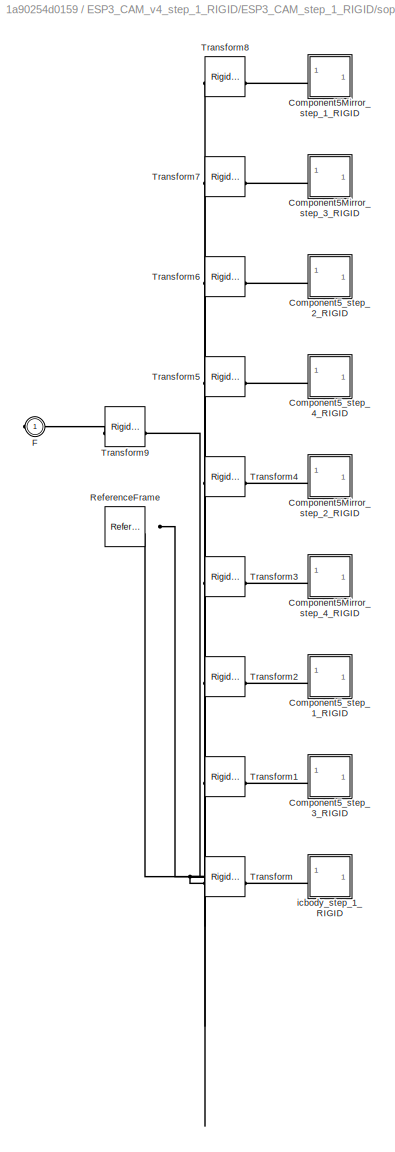
BLOCK [SubSystem] ESP3_CAM_v4_step_1_RIGID/ESP3_CAM_step_1_RIGID/sop127p_6mm_8_v2_step_1_RIGID
BLOCK [SubSystem] ESP3_CAM_v4_step_1_RIGID/ESP3_CAM_step_1_RIGID/sop127p_6mm_8_v2_step_1_RIGID/Component5Mirror_step_1_RIGID
BLOCK [PMIOPort] ESP3_CAM_v4_step_1_RIGID/ESP3_CAM_step_1_RIGID/sop127p_6mm_8_v2_step_1_RIGID/Component5Mirror_step_1_RIGID/F
  Side = Left
BLOCK [Reference] ESP3_CAM_v4_step_1_RIGID/ESP3_CAM_step_1_RIGID/sop127p_6mm_8_v2_step_1_RIGID/Component5Mirror_step_1_RIGID/ReferenceFrame  REF=sm_lib/Frames and
Transforms/Reference
Frame
  SourceBlock = sm_lib/Frames and\nTransforms/Reference\nFrame
  SourceType = Reference\nFrame
BLOCK [Reference] ESP3_CAM_v4_step_1_RIGID/ESP3_CAM_step_1_RIGID/sop127p_6mm_8_v2_step_1_RIGID/Component5Mirror_step_1_RIGID/Solid  REF=sm_lib/Body Elements/File Solid
  SourceBlock = sm_lib/Body Elements/File Solid
  SourceType = File Solid
BLOCK [SubSystem] ESP3_CAM_v4_step_1_RIGID/ESP3_CAM_step_1_RIGID/sop127p_6mm_8_v2_step_1_RIGID/Component5Mirror_step_2_RIGID
BLOCK [PMIOPort] ESP3_CAM_v4_step_1_RIGID/ESP3_CAM_step_1_RIGID/sop127p_6mm_8_v2_step_1_RIGID/Component5Mirror_step_2_RIGID/F
  Side = Left
BLOCK [Reference] ESP3_CAM_v4_step_1_RIGID/ESP3_CAM_step_1_RIGID/sop127p_6mm_8_v2_step_1_RIGID/Component5Mirror_step_2_RIGID/ReferenceFrame  REF=sm_lib/Frames and
Transforms/Reference
Frame
  SourceBlock = sm_lib/Frames and\nTransforms/Reference\nFrame
  SourceType = Reference\nFrame
BLOCK [Reference] ESP3_CAM_v4_step_1_RIGID/ESP3_CAM_step_1_RIGID/sop127p_6mm_8_v2_step_1_RIGID/Component5Mirror_step_2_RIGID/Solid  REF=sm_lib/Body Elements/File Solid
  SourceBlock = sm_lib/Body Elements/File Solid
  SourceType = File Solid
BLOCK [SubSystem] ESP3_CAM_v4_step_1_RIGID/ESP3_CAM_step_1_RIGID/sop127p_6mm_8_v2_step_1_RIGID/Component5Mirror_step_3_RIGID
BLOCK [PMIOPort] ESP3_CAM_v4_step_1_RIGID/ESP3_CAM_step_1_RIGID/sop127p_6mm_8_v2_step_1_RIGID/Component5Mirror_step_3_RIGID/F
  Side = Left
BLOCK [Reference] ESP3_CAM_v4_step_1_RIGID/ESP3_CAM_step_1_RIGID/sop127p_6mm_8_v2_step_1_RIGID/Component5Mirror_step_3_RIGID/ReferenceFrame  REF=sm_lib/Frames and
Transforms/Reference
Frame
  SourceBlock = sm_lib/Frames and\nTransforms/Reference\nFrame
  SourceType = Reference\nFrame
BLOCK [Reference] ESP3_CAM_v4_step_1_RIGID/ESP3_CAM_step_1_RIGID/sop127p_6mm_8_v2_step_1_RIGID/Component5Mirror_step_3_RIGID/Solid  REF=sm_lib/Body Elements/File Solid
  SourceBlock = sm_lib/Body Elements/File Solid
  SourceType = File Solid
BLOCK [SubSystem] ESP3_CAM_v4_step_1_RIGID/ESP3_CAM_step_1_RIGID/sop127p_6mm_8_v2_step_1_RIGID/Component5Mirror_step_4_RIGID
BLOCK [PMIOPort] ESP3_CAM_v4_step_1_RIGID/ESP3_CAM_step_1_RIGID/sop127p_6mm_8_v2_step_1_RIGID/Component5Mirror_step_4_RIGID/F
  Side = Left
BLOCK [Reference] ESP3_CAM_v4_step_1_RIGID/ESP3_CAM_step_1_RIGID/sop127p_6mm_8_v2_step_1_RIGID/Component5Mirror_step_4_RIGID/ReferenceFrame  REF=sm_lib/Frames and
Transforms/Reference
Frame
  SourceBlock = sm_lib/Frames and\nTransforms/Reference\nFrame
  SourceType = Reference\nFrame
BLOCK [Reference] ESP3_CAM_v4_step_1_RIGID/ESP3_CAM_step_1_RIGID/sop127p_6mm_8_v2_step_1_RIGID/Component5Mirror_step_4_RIGID/Solid  REF=sm_lib/Body Elements/File Solid
  SourceBlock = sm_lib/Body Elements/File Solid
  SourceType = File Solid
BLOCK [SubSystem] ESP3_CAM_v4_step_1_RIGID/ESP3_CAM_step_1_RIGID/sop127p_6mm_8_v2_step_1_RIGID/Component5_step_1_RIGID
BLOCK [PMIOPort] ESP3_CAM_v4_step_1_RIGID/ESP3_CAM_step_1_RIGID/sop127p_6mm_8_v2_step_1_RIGID/Component5_step_1_RIGID/F
  Side = Left
BLOCK [Reference] ESP3_CAM_v4_step_1_RIGID/ESP3_CAM_step_1_RIGID/sop127p_6mm_8_v2_step_1_RIGID/Component5_step_1_RIGID/ReferenceFrame  REF=sm_lib/Frames and
Transforms/Reference
Frame
  SourceBlock = sm_lib/Frames and\nTransforms/Reference\nFrame
  SourceType = Reference\nFrame
BLOCK [Reference] ESP3_CAM_v4_step_1_RIGID/ESP3_CAM_step_1_RIGID/sop127p_6mm_8_v2_step_1_RIGID/Component5_step_1_RIGID/Solid  REF=sm_lib/Body Elements/File Solid
  SourceBlock = sm_lib/Body Elements/File Solid
  SourceType = File Solid
BLOCK [SubSystem] ESP3_CAM_v4_step_1_RIGID/ESP3_CAM_step_1_RIGID/sop127p_6mm_8_v2_step_1_RIGID/Component5_step_2_RIGID
BLOCK [PMIOPort] ESP3_CAM_v4_step_1_RIGID/ESP3_CAM_step_1_RIGID/sop127p_6mm_8_v2_step_1_RIGID/Component5_step_2_RIGID/F
  Side = Left
BLOCK [Reference] ESP3_CAM_v4_step_1_RIGID/ESP3_CAM_step_1_RIGID/sop127p_6mm_8_v2_step_1_RIGID/Component5_step_2_RIGID/ReferenceFrame  REF=sm_lib/Frames and
Transforms/Reference
Frame
  SourceBlock = sm_lib/Frames and\nTransforms/Reference\nFrame
  SourceType = Reference\nFrame
BLOCK [Reference] ESP3_CAM_v4_step_1_RIGID/ESP3_CAM_step_1_RIGID/sop127p_6mm_8_v2_step_1_RIGID/Component5_step_2_RIGID/Solid  REF=sm_lib/Body Elements/File Solid
  SourceBlock = sm_lib/Body Elements/File Solid
  SourceType = File Solid
BLOCK [SubSystem] ESP3_CAM_v4_step_1_RIGID/ESP3_CAM_step_1_RIGID/sop127p_6mm_8_v2_step_1_RIGID/Component5_step_3_RIGID
BLOCK [PMIOPort] ESP3_CAM_v4_step_1_RIGID/ESP3_CAM_step_1_RIGID/sop127p_6mm_8_v2_step_1_RIGID/Component5_step_3_RIGID/F
  Side = Left
BLOCK [Reference] ESP3_CAM_v4_step_1_RIGID/ESP3_CAM_step_1_RIGID/sop127p_6mm_8_v2_step_1_RIGID/Component5_step_3_RIGID/ReferenceFrame  REF=sm_lib/Frames and
Transforms/Reference
Frame
  SourceBlock = sm_lib/Frames and\nTransforms/Reference\nFrame
  SourceType = Reference\nFrame
BLOCK [Reference] ESP3_CAM_v4_step_1_RIGID/ESP3_CAM_step_1_RIGID/sop127p_6mm_8_v2_step_1_RIGID/Component5_step_3_RIGID/Solid  REF=sm_lib/Body Elements/File Solid
  SourceBlock = sm_lib/Body Elements/File Solid
  SourceType = File Solid
BLOCK [SubSystem] ESP3_CAM_v4_step_1_RIGID/ESP3_CAM_step_1_RIGID/sop127p_6mm_8_v2_step_1_RIGID/Component5_step_4_RIGID
BLOCK [PMIOPort] ESP3_CAM_v4_step_1_RIGID/ESP3_CAM_step_1_RIGID/sop127p_6mm_8_v2_step_1_RIGID/Component5_step_4_RIGID/F
  Side = Left
BLOCK [Reference] ESP3_CAM_v4_step_1_RIGID/ESP3_CAM_step_1_RIGID/sop127p_6mm_8_v2_step_1_RIGID/Component5_step_4_RIGID/ReferenceFrame  REF=sm_lib/Frames and
Transforms/Reference
Frame
  SourceBlock = sm_lib/Frames and\nTransforms/Reference\nFrame
  SourceType = Reference\nFrame
BLOCK [Reference] ESP3_CAM_v4_step_1_RIGID/ESP3_CAM_step_1_RIGID/sop127p_6mm_8_v2_step_1_RIGID/Component5_step_4_RIGID/Solid  REF=sm_lib/Body Elements/File Solid
  SourceBlock = sm_lib/Body Elements/File Solid
  SourceType = File Solid
BLOCK [PMIOPort] ESP3_CAM_v4_step_1_RIGID/ESP3_CAM_step_1_RIGID/sop127p_6mm_8_v2_step_1_RIGID/F
  Side = Right
BLOCK [Reference] ESP3_CAM_v4_step_1_RIGID/ESP3_CAM_step_1_RIGID/sop127p_6mm_8_v2_step_1_RIGID/ReferenceFrame  REF=sm_lib/Frames and
Transforms/Reference
Frame
  SourceBlock = sm_lib/Frames and\nTransforms/Reference\nFrame
  SourceType = Reference\nFrame
BLOCK [Reference] ESP3_CAM_v4_step_1_RIGID/ESP3_CAM_step_1_RIGID/sop127p_6mm_8_v2_step_1_RIGID/Transform  REF=sm_lib/Frames and
Transforms/Rigid
Transform
  SourceBlock = sm_lib/Frames and\nTransforms/Rigid\nTransform
  SourceType = Rigid\nTransform
BLOCK [Reference] ESP3_CAM_v4_step_1_RIGID/ESP3_CAM_step_1_RIGID/sop127p_6mm_8_v2_step_1_RIGID/Transform1  REF=sm_lib/Frames and
Transforms/Rigid
Transform
  SourceBlock = sm_lib/Frames and\nTransforms/Rigid\nTransform
  SourceType = Rigid\nTransform
BLOCK [Reference] ESP3_CAM_v4_step_1_RIGID/ESP3_CAM_step_1_RIGID/sop127p_6mm_8_v2_step_1_RIGID/Transform2  REF=sm_lib/Frames and
Transforms/Rigid
Transform
  SourceBlock = sm_lib/Frames and\nTransforms/Rigid\nTransform
  SourceType = Rigid\nTransform
BLOCK [Reference] ESP3_CAM_v4_step_1_RIGID/ESP3_CAM_step_1_RIGID/sop127p_6mm_8_v2_step_1_RIGID/Transform3  REF=sm_lib/Frames and
Transforms/Rigid
Transform
  SourceBlock = sm_lib/Frames and\nTransforms/Rigid\nTransform
  SourceType = Rigid\nTransform
BLOCK [Reference] ESP3_CAM_v4_step_1_RIGID/ESP3_CAM_step_1_RIGID/sop127p_6mm_8_v2_step_1_RIGID/Transform4  REF=sm_lib/Frames and
Transforms/Rigid
Transform
  SourceBlock = sm_lib/Frames and\nTransforms/Rigid\nTransform
  SourceType = Rigid\nTransform
BLOCK [Reference] ESP3_CAM_v4_step_1_RIGID/ESP3_CAM_step_1_RIGID/sop127p_6mm_8_v2_step_1_RIGID/Transform5  REF=sm_lib/Frames and
Transforms/Rigid
Transform
  SourceBlock = sm_lib/Frames and\nTransforms/Rigid\nTransform
  SourceType = Rigid\nTransform
BLOCK [Reference] ESP3_CAM_v4_step_1_RIGID/ESP3_CAM_step_1_RIGID/sop127p_6mm_8_v2_step_1_RIGID/Transform6  REF=sm_lib/Frames and
Transforms/Rigid
Transform
  SourceBlock = sm_lib/Frames and\nTransforms/Rigid\nTransform
  SourceType = Rigid\nTransform
BLOCK [Reference] ESP3_CAM_v4_step_1_RIGID/ESP3_CAM_step_1_RIGID/sop127p_6mm_8_v2_step_1_RIGID/Transform7  REF=sm_lib/Frames and
Transforms/Rigid
Transform
  SourceBlock = sm_lib/Frames and\nTransforms/Rigid\nTransform
  SourceType = Rigid\nTransform
BLOCK [Reference] ESP3_CAM_v4_step_1_RIGID/ESP3_CAM_step_1_RIGID/sop127p_6mm_8_v2_step_1_RIGID/Transform8  REF=sm_lib/Frames and
Transforms/Rigid
Transform
  SourceBlock = sm_lib/Frames and\nTransforms/Rigid\nTransform
  SourceType = Rigid\nTransform
BLOCK [Reference] ESP3_CAM_v4_step_1_RIGID/ESP3_CAM_step_1_RIGID/sop127p_6mm_8_v2_step_1_RIGID/Transform9  REF=sm_lib/Frames and
Transforms/Rigid
Transform
  SourceBlock = sm_lib/Frames and\nTransforms/Rigid\nTransform
  SourceType = Rigid\nTransform
BLOCK [SubSystem] ESP3_CAM_v4_step_1_RIGID/ESP3_CAM_step_1_RIGID/sop127p_6mm_8_v2_step_1_RIGID/icbody_step_1_RIGID
BLOCK [PMIOPort] ESP3_CAM_v4_step_1_RIGID/ESP3_CAM_step_1_RIGID/sop127p_6mm_8_v2_step_1_RIGID/icbody_step_1_RIGID/F
  Side = Left
BLOCK [Reference] ESP3_CAM_v4_step_1_RIGID/ESP3_CAM_step_1_RIGID/sop127p_6mm_8_v2_step_1_RIGID/icbody_step_1_RIGID/ReferenceFrame  REF=sm_lib/Frames and
Transforms/Reference
Frame
  SourceBlock = sm_lib/Frames and\nTransforms/Reference\nFrame
  SourceType = Reference\nFrame
BLOCK [Reference] ESP3_CAM_v4_step_1_RIGID/ESP3_CAM_step_1_RIGID/sop127p_6mm_8_v2_step_1_RIGID/icbody_step_1_RIGID/Solid  REF=sm_lib/Body Elements/File Solid
  SourceBlock = sm_lib/Body Elements/File Solid
  SourceType = File Solid
BLOCK [SubSystem] ESP3_CAM_v4_step_1_RIGID/ESP3_CAM_step_1_RIGID/switch_3x4x2mm_2_Pad_step_1_RIGID
BLOCK [PMIOPort] ESP3_CAM_v4_step_1_RIGID/ESP3_CAM_step_1_RIGID/switch_3x4x2mm_2_Pad_step_1_RIGID/F
  Side = Left
BLOCK [Reference] ESP3_CAM_v4_step_1_RIGID/ESP3_CAM_step_1_RIGID/switch_3x4x2mm_2_Pad_step_1_RIGID/ReferenceFrame  REF=sm_lib/Frames and
Transforms/Reference
Frame
  SourceBlock = sm_lib/Frames and\nTransforms/Reference\nFrame
  SourceType = Reference\nFrame
BLOCK [Reference] ESP3_CAM_v4_step_1_RIGID/ESP3_CAM_step_1_RIGID/switch_3x4x2mm_2_Pad_step_1_RIGID/Solid  REF=sm_lib/Body Elements/File Solid
  SourceBlock = sm_lib/Body Elements/File Solid
  SourceType = File Solid
BLOCK [PMIOPort] ESP3_CAM_v4_step_1_RIGID/F
  Port = 2
  Side = Right
BLOCK [PMIOPort] ESP3_CAM_v4_step_1_RIGID/F1
  Side = Left
BLOCK [Reference] ESP3_CAM_v4_step_1_RIGID/ReferenceFrame  REF=sm_lib/Frames and
Transforms/Reference
Frame
  SourceBlock = sm_lib/Frames and\nTransforms/Reference\nFrame
  SourceType = Reference\nFrame
BLOCK [Reference] ESP3_CAM_v4_step_1_RIGID/Transform  REF=sm_lib/Frames and
Transforms/Rigid
Transform
  SourceBlock = sm_lib/Frames and\nTransforms/Rigid\nTransform
  SourceType = Rigid\nTransform
BLOCK [Reference] ESP3_CAM_v4_step_1_RIGID/Transform1  REF=sm_lib/Frames and
Transforms/Rigid
Transform
  SourceBlock = sm_lib/Frames and\nTransforms/Rigid\nTransform
  SourceType = Rigid\nTransform
BLOCK [Reference] ESP3_CAM_v4_step_1_RIGID/Transform2  REF=sm_lib/Frames and
Transforms/Rigid
Transform
  SourceBlock = sm_lib/Frames and\nTransforms/Rigid\nTransform
  SourceType = Rigid\nTransform
BLOCK [SubSystem] ESP3_CAM_v4_step_1_RIGID/eBom_FreeParts_step_1_RIGID
BLOCK [PMIOPort] ESP3_CAM_v4_step_1_RIGID/eBom_FreeParts_step_1_RIGID/F
  Side = Left
BLOCK [Reference] ESP3_CAM_v4_step_1_RIGID/eBom_FreeParts_step_1_RIGID/ReferenceFrame  REF=sm_lib/Frames and
Transforms/Reference
Frame
  SourceBlock = sm_lib/Frames and\nTransforms/Reference\nFrame
  SourceType = Reference\nFrame
BLOCK [Reference] ESP3_CAM_v4_step_1_RIGID/eBom_FreeParts_step_1_RIGID/Solid  REF=sm_lib/Body Elements/File Solid
  SourceBlock = sm_lib/Body Elements/File Solid
  SourceType = File Solid
BLOCK [SubSystem] Hinge_1
BLOCK [SubSystem] Hinge_1/Copy_of_Part1Hinge_1_RIGID
BLOCK [PMIOPort] Hinge_1/Copy_of_Part1Hinge_1_RIGID/F
  Side = Left
BLOCK [PMIOPort] Hinge_1/Copy_of_Part1Hinge_1_RIGID/F1
  Port = 4
  Side = Right
BLOCK [PMIOPort] Hinge_1/Copy_of_Part1Hinge_1_RIGID/F2
  Port = 2
  Side = Left
BLOCK [PMIOPort] Hinge_1/Copy_of_Part1Hinge_1_RIGID/F3
  Port = 3
  Side = Left
BLOCK [Reference] Hinge_1/Copy_of_Part1Hinge_1_RIGID/ReferenceFrame  REF=sm_lib/Frames and
Transforms/Reference
Frame
  SourceBlock = sm_lib/Frames and\nTransforms/Reference\nFrame
  SourceType = Reference\nFrame
BLOCK [Reference] Hinge_1/Copy_of_Part1Hinge_1_RIGID/Solid  REF=sm_lib/Body Elements/File Solid
  SourceBlock = sm_lib/Body Elements/File Solid
  SourceType = File Solid
BLOCK [Reference] Hinge_1/Copy_of_Part1Hinge_1_RIGID/Transform  REF=sm_lib/Frames and
Transforms/Rigid
Transform
  SourceBlock = sm_lib/Frames and\nTransforms/Rigid\nTransform
  SourceType = Rigid\nTransform
BLOCK [Reference] Hinge_1/Copy_of_Part1Hinge_1_RIGID/Transform1  REF=sm_lib/Frames and
Transforms/Rigid
Transform
  SourceBlock = sm_lib/Frames and\nTransforms/Rigid\nTransform
  SourceType = Rigid\nTransform
BLOCK [Reference] Hinge_1/Copy_of_Part1Hinge_1_RIGID/Transform2  REF=sm_lib/Frames and
Transforms/Rigid
Transform
  SourceBlock = sm_lib/Frames and\nTransforms/Rigid\nTransform
  SourceType = Rigid\nTransform
BLOCK [Reference] Hinge_1/Copy_of_Part1Hinge_1_RIGID/Transform3  REF=sm_lib/Frames and
Transforms/Rigid
Transform
  SourceBlock = sm_lib/Frames and\nTransforms/Rigid\nTransform
  SourceType = Rigid\nTransform
BLOCK [Reference] Hinge_1/Cylindrical  REF=sm_lib/Joints/Cylindrical
Joint
  SourceBlock = sm_lib/Joints/Cylindrical\nJoint
  SourceType = Cylindrical\nJoint
BLOCK [PMIOPort] Hinge_1/F
  Port = 6
  Side = Right
BLOCK [PMIOPort] Hinge_1/F1
  Port = 2
  Side = Left
BLOCK [PMIOPort] Hinge_1/F2
  Side = Left
BLOCK [PMIOPort] Hinge_1/F3
  Port = 5
  Side = Right
BLOCK [PMIOPort] Hinge_1/F4
  Port = 4
  Side = Right
BLOCK [PMIOPort] Hinge_1/F5
  Port = 3
  Side = Right
BLOCK [SubSystem] Hinge_1/Part1Hinge_1_RIGID
BLOCK [PMIOPort] Hinge_1/Part1Hinge_1_RIGID/F
  Port = 5
  Side = Right
BLOCK [PMIOPort] Hinge_1/Part1Hinge_1_RIGID/F1
  Port = 4
  Side = Left
BLOCK [PMIOPort] Hinge_1/Part1Hinge_1_RIGID/F2
  Side = Left
BLOCK [PMIOPort] Hinge_1/Part1Hinge_1_RIGID/F3
  Port = 2
  Side = Left
BLOCK [PMIOPort] Hinge_1/Part1Hinge_1_RIGID/F4
  Port = 3
  Side = Left
BLOCK [Reference] Hinge_1/Part1Hinge_1_RIGID/ReferenceFrame  REF=sm_lib/Frames and
Transforms/Reference
Frame
  SourceBlock = sm_lib/Frames and\nTransforms/Reference\nFrame
  SourceType = Reference\nFrame
BLOCK [Reference] Hinge_1/Part1Hinge_1_RIGID/Solid  REF=sm_lib/Body Elements/File Solid
  SourceBlock = sm_lib/Body Elements/File Solid
  SourceType = File Solid
BLOCK [Reference] Hinge_1/Part1Hinge_1_RIGID/Transform  REF=sm_lib/Frames and
Transforms/Rigid
Transform
  SourceBlock = sm_lib/Frames and\nTransforms/Rigid\nTransform
  SourceType = Rigid\nTransform
BLOCK [Reference] Hinge_1/Part1Hinge_1_RIGID/Transform1  REF=sm_lib/Frames and
Transforms/Rigid
Transform
  SourceBlock = sm_lib/Frames and\nTransforms/Rigid\nTransform
  SourceType = Rigid\nTransform
BLOCK [Reference] Hinge_1/Part1Hinge_1_RIGID/Transform2  REF=sm_lib/Frames and
Transforms/Rigid
Transform
  SourceBlock = sm_lib/Frames and\nTransforms/Rigid\nTransform
  SourceType = Rigid\nTransform
BLOCK [Reference] Hinge_1/Part1Hinge_1_RIGID/Transform3  REF=sm_lib/Frames and
Transforms/Rigid
Transform
  SourceBlock = sm_lib/Frames and\nTransforms/Rigid\nTransform
  SourceType = Rigid\nTransform
BLOCK [Reference] Hinge_1/Part1Hinge_1_RIGID/Transform4  REF=sm_lib/Frames and
Transforms/Rigid
Transform
  SourceBlock = sm_lib/Frames and\nTransforms/Rigid\nTransform
  SourceType = Rigid\nTransform
BLOCK [SubSystem] Hinge_1/Part2Hinge_1_RIGID
BLOCK [PMIOPort] Hinge_1/Part2Hinge_1_RIGID/F
  Port = 3
  Side = Left
BLOCK [PMIOPort] Hinge_1/Part2Hinge_1_RIGID/F1
  Port = 4
  Side = Right
BLOCK [PMIOPort] Hinge_1/Part2Hinge_1_RIGID/F2
  Port = 2
  Side = Left
BLOCK [PMIOPort] Hinge_1/Part2Hinge_1_RIGID/F3
  Side = Left
BLOCK [Reference] Hinge_1/Part2Hinge_1_RIGID/ReferenceFrame  REF=sm_lib/Frames and
Transforms/Reference
Frame
  SourceBlock = sm_lib/Frames and\nTransforms/Reference\nFrame
  SourceType = Reference\nFrame
BLOCK [Reference] Hinge_1/Part2Hinge_1_RIGID/Solid  REF=sm_lib/Body Elements/File Solid
  SourceBlock = sm_lib/Body Elements/File Solid
  SourceType = File Solid
BLOCK [Reference] Hinge_1/Part2Hinge_1_RIGID/Transform  REF=sm_lib/Frames and
Transforms/Rigid
Transform
  SourceBlock = sm_lib/Frames and\nTransforms/Rigid\nTransform
  SourceType = Rigid\nTransform
BLOCK [Reference] Hinge_1/Part2Hinge_1_RIGID/Transform1  REF=sm_lib/Frames and
Transforms/Rigid
Transform
  SourceBlock = sm_lib/Frames and\nTransforms/Rigid\nTransform
  SourceType = Rigid\nTransform
BLOCK [Reference] Hinge_1/Part2Hinge_1_RIGID/Transform2  REF=sm_lib/Frames and
Transforms/Rigid
Transform
  SourceBlock = sm_lib/Frames and\nTransforms/Rigid\nTransform
  SourceType = Rigid\nTransform
BLOCK [Reference] Hinge_1/Planar  REF=sm_lib/Joints/Planar Joint
  SourceBlock = sm_lib/Joints/Planar Joint
  SourceType = Planar Joint
BLOCK [Reference] Hinge_1/ReferenceFrame  REF=sm_lib/Frames and
Transforms/Reference
Frame
  SourceBlock = sm_lib/Frames and\nTransforms/Reference\nFrame
  SourceType = Reference\nFrame
BLOCK [Reference] Hinge_1/Revolute  REF=sm_lib/Joints/Revolute Joint
  SourceBlock = sm_lib/Joints/Revolute Joint
  SourceType = Revolute Joint
BLOCK [Reference] Hinge_1/Transform  REF=sm_lib/Frames and
Transforms/Rigid
Transform
  SourceBlock = sm_lib/Frames and\nTransforms/Rigid\nTransform
  SourceType = Rigid\nTransform
BLOCK [SubSystem] Hinge_2
BLOCK [SubSystem] Hinge_2/Copy_of_Part1Hinge_1_RIGID
BLOCK [PMIOPort] Hinge_2/Copy_of_Part1Hinge_1_RIGID/F
  Side = Left
BLOCK [PMIOPort] Hinge_2/Copy_of_Part1Hinge_1_RIGID/F1
  Port = 3
  Side = Right
BLOCK [PMIOPort] Hinge_2/Copy_of_Part1Hinge_1_RIGID/F2
  Port = 2
  Side = Left
BLOCK [Reference] Hinge_2/Copy_of_Part1Hinge_1_RIGID/ReferenceFrame  REF=sm_lib/Frames and
Transforms/Reference
Frame
  SourceBlock = sm_lib/Frames and\nTransforms/Reference\nFrame
  SourceType = Reference\nFrame
BLOCK [Reference] Hinge_2/Copy_of_Part1Hinge_1_RIGID/Solid  REF=sm_lib/Body Elements/File Solid
  SourceBlock = sm_lib/Body Elements/File Solid
  SourceType = File Solid
BLOCK [Reference] Hinge_2/Copy_of_Part1Hinge_1_RIGID/Transform  REF=sm_lib/Frames and
Transforms/Rigid
Transform
  SourceBlock = sm_lib/Frames and\nTransforms/Rigid\nTransform
  SourceType = Rigid\nTransform
BLOCK [Reference] Hinge_2/Copy_of_Part1Hinge_1_RIGID/Transform1  REF=sm_lib/Frames and
Transforms/Rigid
Transform
  SourceBlock = sm_lib/Frames and\nTransforms/Rigid\nTransform
  SourceType = Rigid\nTransform
BLOCK [Reference] Hinge_2/Copy_of_Part1Hinge_1_RIGID/Transform2  REF=sm_lib/Frames and
Transforms/Rigid
Transform
  SourceBlock = sm_lib/Frames and\nTransforms/Rigid\nTransform
  SourceType = Rigid\nTransform
BLOCK [Reference] Hinge_2/Cylindrical  REF=sm_lib/Joints/Cylindrical
Joint
  SourceBlock = sm_lib/Joints/Cylindrical\nJoint
  SourceType = Cylindrical\nJoint
BLOCK [PMIOPort] Hinge_2/F
  Port = 3
  Side = Left
BLOCK [PMIOPort] Hinge_2/F1
  Port = 2
  Side = Left
BLOCK [PMIOPort] Hinge_2/F2
  Side = Left
BLOCK [SubSystem] Hinge_2/Part1Hinge_1_RIGID
BLOCK [PMIOPort] Hinge_2/Part1Hinge_1_RIGID/F
  Port = 4
  Side = Right
BLOCK [PMIOPort] Hinge_2/Part1Hinge_1_RIGID/F1
  Port = 3
  Side = Left
BLOCK [PMIOPort] Hinge_2/Part1Hinge_1_RIGID/F2
  Side = Left
BLOCK [PMIOPort] Hinge_2/Part1Hinge_1_RIGID/F3
  Port = 2
  Side = Left
BLOCK [Reference] Hinge_2/Part1Hinge_1_RIGID/ReferenceFrame  REF=sm_lib/Frames and
Transforms/Reference
Frame
  SourceBlock = sm_lib/Frames and\nTransforms/Reference\nFrame
  SourceType = Reference\nFrame
BLOCK [Reference] Hinge_2/Part1Hinge_1_RIGID/Solid  REF=sm_lib/Body Elements/File Solid
  SourceBlock = sm_lib/Body Elements/File Solid
  SourceType = File Solid
BLOCK [Reference] Hinge_2/Part1Hinge_1_RIGID/Transform  REF=sm_lib/Frames and
Transforms/Rigid
Transform
  SourceBlock = sm_lib/Frames and\nTransforms/Rigid\nTransform
  SourceType = Rigid\nTransform
BLOCK [Reference] Hinge_2/Part1Hinge_1_RIGID/Transform1  REF=sm_lib/Frames and
Transforms/Rigid
Transform
  SourceBlock = sm_lib/Frames and\nTransforms/Rigid\nTransform
  SourceType = Rigid\nTransform
BLOCK [Reference] Hinge_2/Part1Hinge_1_RIGID/Transform2  REF=sm_lib/Frames and
Transforms/Rigid
Transform
  SourceBlock = sm_lib/Frames and\nTransforms/Rigid\nTransform
  SourceType = Rigid\nTransform
BLOCK [Reference] Hinge_2/Part1Hinge_1_RIGID/Transform3  REF=sm_lib/Frames and
Transforms/Rigid
Transform
  SourceBlock = sm_lib/Frames and\nTransforms/Rigid\nTransform
  SourceType = Rigid\nTransform
BLOCK [SubSystem] Hinge_2/Part2Hinge_1_RIGID
BLOCK [PMIOPort] Hinge_2/Part2Hinge_1_RIGID/F
  Port = 2
  Side = Left
BLOCK [PMIOPort] Hinge_2/Part2Hinge_1_RIGID/F1
  Port = 3
  Side = Right
BLOCK [PMIOPort] Hinge_2/Part2Hinge_1_RIGID/F2
  Side = Left
BLOCK [Reference] Hinge_2/Part2Hinge_1_RIGID/ReferenceFrame  REF=sm_lib/Frames and
Transforms/Reference
Frame
  SourceBlock = sm_lib/Frames and\nTransforms/Reference\nFrame
  SourceType = Reference\nFrame
BLOCK [Reference] Hinge_2/Part2Hinge_1_RIGID/Solid  REF=sm_lib/Body Elements/File Solid
  SourceBlock = sm_lib/Body Elements/File Solid
  SourceType = File Solid
BLOCK [Reference] Hinge_2/Part2Hinge_1_RIGID/Transform  REF=sm_lib/Frames and
Transforms/Rigid
Transform
  SourceBlock = sm_lib/Frames and\nTransforms/Rigid\nTransform
  SourceType = Rigid\nTransform
BLOCK [Reference] Hinge_2/Part2Hinge_1_RIGID/Transform1  REF=sm_lib/Frames and
Transforms/Rigid
Transform
  SourceBlock = sm_lib/Frames and\nTransforms/Rigid\nTransform
  SourceType = Rigid\nTransform
BLOCK [Reference] Hinge_2/Planar  REF=sm_lib/Joints/Planar Joint
  SourceBlock = sm_lib/Joints/Planar Joint
  SourceType = Planar Joint
BLOCK [Reference] Hinge_2/ReferenceFrame  REF=sm_lib/Frames and
Transforms/Reference
Frame
  SourceBlock = sm_lib/Frames and\nTransforms/Reference\nFrame
  SourceType = Reference\nFrame
BLOCK [Reference] Hinge_2/Revolute  REF=sm_lib/Joints/Revolute Joint
  SourceBlock = sm_lib/Joints/Revolute Joint
  SourceType = Revolute Joint
BLOCK [Reference] Hinge_2/Transform  REF=sm_lib/Frames and
Transforms/Rigid
Transform
  SourceBlock = sm_lib/Frames and\nTransforms/Rigid\nTransform
  SourceType = Rigid\nTransform
BLOCK [SubSystem] Hinge_5
BLOCK [SubSystem] Hinge_5/Copy_of_Part1Hinge_1_RIGID
BLOCK [PMIOPort] Hinge_5/Copy_of_Part1Hinge_1_RIGID/F
  Side = Left
BLOCK [PMIOPort] Hinge_5/Copy_of_Part1Hinge_1_RIGID/F1
  Port = 3
  Side = Right
BLOCK [PMIOPort] Hinge_5/Copy_of_Part1Hinge_1_RIGID/F2
  Port = 2
  Side = Left
BLOCK [Reference] Hinge_5/Copy_of_Part1Hinge_1_RIGID/ReferenceFrame  REF=sm_lib/Frames and
Transforms/Reference
Frame
  SourceBlock = sm_lib/Frames and\nTransforms/Reference\nFrame
  SourceType = Reference\nFrame
BLOCK [Reference] Hinge_5/Copy_of_Part1Hinge_1_RIGID/Solid  REF=sm_lib/Body Elements/File Solid
  SourceBlock = sm_lib/Body Elements/File Solid
  SourceType = File Solid
BLOCK [Reference] Hinge_5/Copy_of_Part1Hinge_1_RIGID/Transform  REF=sm_lib/Frames and
Transforms/Rigid
Transform
  SourceBlock = sm_lib/Frames and\nTransforms/Rigid\nTransform
  SourceType = Rigid\nTransform
BLOCK [Reference] Hinge_5/Copy_of_Part1Hinge_1_RIGID/Transform1  REF=sm_lib/Frames and
Transforms/Rigid
Transform
  SourceBlock = sm_lib/Frames and\nTransforms/Rigid\nTransform
  SourceType = Rigid\nTransform
BLOCK [Reference] Hinge_5/Copy_of_Part1Hinge_1_RIGID/Transform2  REF=sm_lib/Frames and
Transforms/Rigid
Transform
  SourceBlock = sm_lib/Frames and\nTransforms/Rigid\nTransform
  SourceType = Rigid\nTransform
BLOCK [Reference] Hinge_5/Cylindrical  REF=sm_lib/Joints/Cylindrical
Joint
  SourceBlock = sm_lib/Joints/Cylindrical\nJoint
  SourceType = Cylindrical\nJoint
BLOCK [PMIOPort] Hinge_5/F
  Side = Left
BLOCK [PMIOPort] Hinge_5/F1
  Port = 3
  Side = Right
BLOCK [PMIOPort] Hinge_5/F2
  Port = 2
  Side = Right
BLOCK [SubSystem] Hinge_5/Part1Hinge_1_RIGID
BLOCK [PMIOPort] Hinge_5/Part1Hinge_1_RIGID/F
  Port = 4
  Side = Right
BLOCK [PMIOPort] Hinge_5/Part1Hinge_1_RIGID/F1
  Port = 3
  Side = Left
BLOCK [PMIOPort] Hinge_5/Part1Hinge_1_RIGID/F2
  Side = Left
BLOCK [PMIOPort] Hinge_5/Part1Hinge_1_RIGID/F3
  Port = 2
  Side = Left
BLOCK [Reference] Hinge_5/Part1Hinge_1_RIGID/ReferenceFrame  REF=sm_lib/Frames and
Transforms/Reference
Frame
  SourceBlock = sm_lib/Frames and\nTransforms/Reference\nFrame
  SourceType = Reference\nFrame
BLOCK [Reference] Hinge_5/Part1Hinge_1_RIGID/Solid  REF=sm_lib/Body Elements/File Solid
  SourceBlock = sm_lib/Body Elements/File Solid
  SourceType = File Solid
BLOCK [Reference] Hinge_5/Part1Hinge_1_RIGID/Transform  REF=sm_lib/Frames and
Transforms/Rigid
Transform
  SourceBlock = sm_lib/Frames and\nTransforms/Rigid\nTransform
  SourceType = Rigid\nTransform
BLOCK [Reference] Hinge_5/Part1Hinge_1_RIGID/Transform1  REF=sm_lib/Frames and
Transforms/Rigid
Transform
  SourceBlock = sm_lib/Frames and\nTransforms/Rigid\nTransform
  SourceType = Rigid\nTransform
BLOCK [Reference] Hinge_5/Part1Hinge_1_RIGID/Transform2  REF=sm_lib/Frames and
Transforms/Rigid
Transform
  SourceBlock = sm_lib/Frames and\nTransforms/Rigid\nTransform
  SourceType = Rigid\nTransform
BLOCK [Reference] Hinge_5/Part1Hinge_1_RIGID/Transform3  REF=sm_lib/Frames and
Transforms/Rigid
Transform
  SourceBlock = sm_lib/Frames and\nTransforms/Rigid\nTransform
  SourceType = Rigid\nTransform
BLOCK [SubSystem] Hinge_5/Part2Hinge_1_RIGID
BLOCK [PMIOPort] Hinge_5/Part2Hinge_1_RIGID/F
  Port = 2
  Side = Left
BLOCK [PMIOPort] Hinge_5/Part2Hinge_1_RIGID/F1
  Port = 3
  Side = Right
BLOCK [PMIOPort] Hinge_5/Part2Hinge_1_RIGID/F2
  Side = Left
BLOCK [Reference] Hinge_5/Part2Hinge_1_RIGID/ReferenceFrame  REF=sm_lib/Frames and
Transforms/Reference
Frame
  SourceBlock = sm_lib/Frames and\nTransforms/Reference\nFrame
  SourceType = Reference\nFrame
BLOCK [Reference] Hinge_5/Part2Hinge_1_RIGID/Solid  REF=sm_lib/Body Elements/File Solid
  SourceBlock = sm_lib/Body Elements/File Solid
  SourceType = File Solid
BLOCK [Reference] Hinge_5/Part2Hinge_1_RIGID/Transform  REF=sm_lib/Frames and
Transforms/Rigid
Transform
  SourceBlock = sm_lib/Frames and\nTransforms/Rigid\nTransform
  SourceType = Rigid\nTransform
BLOCK [Reference] Hinge_5/Part2Hinge_1_RIGID/Transform1  REF=sm_lib/Frames and
Transforms/Rigid
Transform
  SourceBlock = sm_lib/Frames and\nTransforms/Rigid\nTransform
  SourceType = Rigid\nTransform
BLOCK [Reference] Hinge_5/Planar  REF=sm_lib/Joints/Planar Joint
  SourceBlock = sm_lib/Joints/Planar Joint
  SourceType = Planar Joint
BLOCK [Reference] Hinge_5/ReferenceFrame  REF=sm_lib/Frames and
Transforms/Reference
Frame
  SourceBlock = sm_lib/Frames and\nTransforms/Reference\nFrame
  SourceType = Reference\nFrame
BLOCK [Reference] Hinge_5/Revolute  REF=sm_lib/Joints/Revolute Joint
  SourceBlock = sm_lib/Joints/Revolute Joint
  SourceType = Revolute Joint
BLOCK [Reference] Hinge_5/Transform  REF=sm_lib/Frames and
Transforms/Rigid
Transform
  SourceBlock = sm_lib/Frames and\nTransforms/Rigid\nTransform
  SourceType = Rigid\nTransform
BLOCK [SubSystem] Hinge_6
BLOCK [SubSystem] Hinge_6/Copy_of_Part1Hinge_1_RIGID
BLOCK [PMIOPort] Hinge_6/Copy_of_Part1Hinge_1_RIGID/F
  Side = Left
BLOCK [PMIOPort] Hinge_6/Copy_of_Part1Hinge_1_RIGID/F1
  Port = 3
  Side = Right
BLOCK [PMIOPort] Hinge_6/Copy_of_Part1Hinge_1_RIGID/F2
  Port = 2
  Side = Left
BLOCK [Reference] Hinge_6/Copy_of_Part1Hinge_1_RIGID/ReferenceFrame  REF=sm_lib/Frames and
Transforms/Reference
Frame
  SourceBlock = sm_lib/Frames and\nTransforms/Reference\nFrame
  SourceType = Reference\nFrame
BLOCK [Reference] Hinge_6/Copy_of_Part1Hinge_1_RIGID/Solid  REF=sm_lib/Body Elements/File Solid
  SourceBlock = sm_lib/Body Elements/File Solid
  SourceType = File Solid
BLOCK [Reference] Hinge_6/Copy_of_Part1Hinge_1_RIGID/Transform  REF=sm_lib/Frames and
Transforms/Rigid
Transform
  SourceBlock = sm_lib/Frames and\nTransforms/Rigid\nTransform
  SourceType = Rigid\nTransform
BLOCK [Reference] Hinge_6/Copy_of_Part1Hinge_1_RIGID/Transform1  REF=sm_lib/Frames and
Transforms/Rigid
Transform
  SourceBlock = sm_lib/Frames and\nTransforms/Rigid\nTransform
  SourceType = Rigid\nTransform
BLOCK [Reference] Hinge_6/Copy_of_Part1Hinge_1_RIGID/Transform2  REF=sm_lib/Frames and
Transforms/Rigid
Transform
  SourceBlock = sm_lib/Frames and\nTransforms/Rigid\nTransform
  SourceType = Rigid\nTransform
BLOCK [Reference] Hinge_6/Cylindrical  REF=sm_lib/Joints/Cylindrical
Joint
  SourceBlock = sm_lib/Joints/Cylindrical\nJoint
  SourceType = Cylindrical\nJoint
BLOCK [PMIOPort] Hinge_6/F
  Port = 2
  Side = Left
BLOCK [PMIOPort] Hinge_6/F1
  Side = Left
BLOCK [SubSystem] Hinge_6/Part1Hinge_1_RIGID
BLOCK [PMIOPort] Hinge_6/Part1Hinge_1_RIGID/F
  Port = 3
  Side = Right
BLOCK [PMIOPort] Hinge_6/Part1Hinge_1_RIGID/F1
  Port = 2
  Side = Left
BLOCK [PMIOPort] Hinge_6/Part1Hinge_1_RIGID/F2
  Side = Left
BLOCK [Reference] Hinge_6/Part1Hinge_1_RIGID/ReferenceFrame  REF=sm_lib/Frames and
Transforms/Reference
Frame
  SourceBlock = sm_lib/Frames and\nTransforms/Reference\nFrame
  SourceType = Reference\nFrame
BLOCK [Reference] Hinge_6/Part1Hinge_1_RIGID/Solid  REF=sm_lib/Body Elements/File Solid
  SourceBlock = sm_lib/Body Elements/File Solid
  SourceType = File Solid
BLOCK [Reference] Hinge_6/Part1Hinge_1_RIGID/Transform  REF=sm_lib/Frames and
Transforms/Rigid
Transform
  SourceBlock = sm_lib/Frames and\nTransforms/Rigid\nTransform
  SourceType = Rigid\nTransform
BLOCK [Reference] Hinge_6/Part1Hinge_1_RIGID/Transform1  REF=sm_lib/Frames and
Transforms/Rigid
Transform
  SourceBlock = sm_lib/Frames and\nTransforms/Rigid\nTransform
  SourceType = Rigid\nTransform
BLOCK [Reference] Hinge_6/Part1Hinge_1_RIGID/Transform2  REF=sm_lib/Frames and
Transforms/Rigid
Transform
  SourceBlock = sm_lib/Frames and\nTransforms/Rigid\nTransform
  SourceType = Rigid\nTransform
BLOCK [SubSystem] Hinge_6/Part2Hinge_1_RIGID
BLOCK [PMIOPort] Hinge_6/Part2Hinge_1_RIGID/F
  Port = 2
  Side = Left
BLOCK [PMIOPort] Hinge_6/Part2Hinge_1_RIGID/F1
  Port = 3
  Side = Right
BLOCK [PMIOPort] Hinge_6/Part2Hinge_1_RIGID/F2
  Side = Left
BLOCK [Reference] Hinge_6/Part2Hinge_1_RIGID/ReferenceFrame  REF=sm_lib/Frames and
Transforms/Reference
Frame
  SourceBlock = sm_lib/Frames and\nTransforms/Reference\nFrame
  SourceType = Reference\nFrame
BLOCK [Reference] Hinge_6/Part2Hinge_1_RIGID/Solid  REF=sm_lib/Body Elements/File Solid
  SourceBlock = sm_lib/Body Elements/File Solid
  SourceType = File Solid
BLOCK [Reference] Hinge_6/Part2Hinge_1_RIGID/Transform  REF=sm_lib/Frames and
Transforms/Rigid
Transform
  SourceBlock = sm_lib/Frames and\nTransforms/Rigid\nTransform
  SourceType = Rigid\nTransform
BLOCK [Reference] Hinge_6/Part2Hinge_1_RIGID/Transform1  REF=sm_lib/Frames and
Transforms/Rigid
Transform
  SourceBlock = sm_lib/Frames and\nTransforms/Rigid\nTransform
  SourceType = Rigid\nTransform
BLOCK [Reference] Hinge_6/Planar  REF=sm_lib/Joints/Planar Joint
  SourceBlock = sm_lib/Joints/Planar Joint
  SourceType = Planar Joint
BLOCK [Reference] Hinge_6/ReferenceFrame  REF=sm_lib/Frames and
Transforms/Reference
Frame
  SourceBlock = sm_lib/Frames and\nTransforms/Reference\nFrame
  SourceType = Reference\nFrame
BLOCK [Reference] Hinge_6/Revolute  REF=sm_lib/Joints/Revolute Joint
  SourceBlock = sm_lib/Joints/Revolute Joint
  SourceType = Revolute Joint
BLOCK [Reference] Hinge_6/Transform  REF=sm_lib/Frames and
Transforms/Rigid
Transform
  SourceBlock = sm_lib/Frames and\nTransforms/Rigid\nTransform
  SourceType = Rigid\nTransform
BLOCK [SubSystem] M3_F_TO_F_STANDOFF_10_RIGID
BLOCK [PMIOPort] M3_F_TO_F_STANDOFF_10_RIGID/F
  Side = Left
BLOCK [Reference] M3_F_TO_F_STANDOFF_10_RIGID/ReferenceFrame  REF=sm_lib/Frames and
Transforms/Reference
Frame
  SourceBlock = sm_lib/Frames and\nTransforms/Reference\nFrame
  SourceType = Reference\nFrame
BLOCK [Reference] M3_F_TO_F_STANDOFF_10_RIGID/Solid  REF=sm_lib/Body Elements/File Solid
  SourceBlock = sm_lib/Body Elements/File Solid
  SourceType = File Solid
BLOCK [SubSystem] M3_F_TO_F_STANDOFF_11_RIGID
BLOCK [PMIOPort] M3_F_TO_F_STANDOFF_11_RIGID/F
  Side = Left
BLOCK [Reference] M3_F_TO_F_STANDOFF_11_RIGID/ReferenceFrame  REF=sm_lib/Frames and
Transforms/Reference
Frame
  SourceBlock = sm_lib/Frames and\nTransforms/Reference\nFrame
  SourceType = Reference\nFrame
BLOCK [Reference] M3_F_TO_F_STANDOFF_11_RIGID/Solid  REF=sm_lib/Body Elements/File Solid
  SourceBlock = sm_lib/Body Elements/File Solid
  SourceType = File Solid
BLOCK [SubSystem] M3_F_TO_F_STANDOFF_1_RIGID
BLOCK [PMIOPort] M3_F_TO_F_STANDOFF_1_RIGID/F
  Port = 3
  Side = Right
BLOCK [PMIOPort] M3_F_TO_F_STANDOFF_1_RIGID/F1
  Side = Left
BLOCK [PMIOPort] M3_F_TO_F_STANDOFF_1_RIGID/F2
  Port = 2
  Side = Right
BLOCK [Reference] M3_F_TO_F_STANDOFF_1_RIGID/ReferenceFrame  REF=sm_lib/Frames and
Transforms/Reference
Frame
  SourceBlock = sm_lib/Frames and\nTransforms/Reference\nFrame
  SourceType = Reference\nFrame
BLOCK [Reference] M3_F_TO_F_STANDOFF_1_RIGID/Solid  REF=sm_lib/Body Elements/File Solid
  SourceBlock = sm_lib/Body Elements/File Solid
  SourceType = File Solid
BLOCK [Reference] M3_F_TO_F_STANDOFF_1_RIGID/Transform  REF=sm_lib/Frames and
Transforms/Rigid
Transform
  SourceBlock = sm_lib/Frames and\nTransforms/Rigid\nTransform
  SourceType = Rigid\nTransform
BLOCK [Reference] M3_F_TO_F_STANDOFF_1_RIGID/Transform1  REF=sm_lib/Frames and
Transforms/Rigid
Transform
  SourceBlock = sm_lib/Frames and\nTransforms/Rigid\nTransform
  SourceType = Rigid\nTransform
BLOCK [Reference] M3_F_TO_F_STANDOFF_1_RIGID/Transform2  REF=sm_lib/Frames and
Transforms/Rigid
Transform
  SourceBlock = sm_lib/Frames and\nTransforms/Rigid\nTransform
  SourceType = Rigid\nTransform
BLOCK [SubSystem] M3_F_TO_F_STANDOFF_5_RIGID
BLOCK [PMIOPort] M3_F_TO_F_STANDOFF_5_RIGID/F
  Side = Left
BLOCK [PMIOPort] M3_F_TO_F_STANDOFF_5_RIGID/F1
  Port = 6
  Side = Right
BLOCK [PMIOPort] M3_F_TO_F_STANDOFF_5_RIGID/F2
  Port = 4
  Side = Left
BLOCK [PMIOPort] M3_F_TO_F_STANDOFF_5_RIGID/F3
  Port = 5
  Side = Right
BLOCK [PMIOPort] M3_F_TO_F_STANDOFF_5_RIGID/F4
  Port = 2
  Side = Left
BLOCK [PMIOPort] M3_F_TO_F_STANDOFF_5_RIGID/F5
  Port = 3
  Side = Left
BLOCK [Reference] M3_F_TO_F_STANDOFF_5_RIGID/ReferenceFrame  REF=sm_lib/Frames and
Transforms/Reference
Frame
  SourceBlock = sm_lib/Frames and\nTransforms/Reference\nFrame
  SourceType = Reference\nFrame
BLOCK [Reference] M3_F_TO_F_STANDOFF_5_RIGID/Solid  REF=sm_lib/Body Elements/File Solid
  SourceBlock = sm_lib/Body Elements/File Solid
  SourceType = File Solid
BLOCK [Reference] M3_F_TO_F_STANDOFF_5_RIGID/Transform  REF=sm_lib/Frames and
Transforms/Rigid
Transform
  SourceBlock = sm_lib/Frames and\nTransforms/Rigid\nTransform
  SourceType = Rigid\nTransform
BLOCK [Reference] M3_F_TO_F_STANDOFF_5_RIGID/Transform1  REF=sm_lib/Frames and
Transforms/Rigid
Transform
  SourceBlock = sm_lib/Frames and\nTransforms/Rigid\nTransform
  SourceType = Rigid\nTransform
BLOCK [Reference] M3_F_TO_F_STANDOFF_5_RIGID/Transform2  REF=sm_lib/Frames and
Transforms/Rigid
Transform
  SourceBlock = sm_lib/Frames and\nTransforms/Rigid\nTransform
  SourceType = Rigid\nTransform
BLOCK [Reference] M3_F_TO_F_STANDOFF_5_RIGID/Transform3  REF=sm_lib/Frames and
Transforms/Rigid
Transform
  SourceBlock = sm_lib/Frames and\nTransforms/Rigid\nTransform
  SourceType = Rigid\nTransform
BLOCK [Reference] M3_F_TO_F_STANDOFF_5_RIGID/Transform4  REF=sm_lib/Frames and
Transforms/Rigid
Transform
  SourceBlock = sm_lib/Frames and\nTransforms/Rigid\nTransform
  SourceType = Rigid\nTransform
BLOCK [Reference] M3_F_TO_F_STANDOFF_5_RIGID/Transform5  REF=sm_lib/Frames and
Transforms/Rigid
Transform
  SourceBlock = sm_lib/Frames and\nTransforms/Rigid\nTransform
  SourceType = Rigid\nTransform
BLOCK [SubSystem] M3_F_TO_F_STANDOFF_6_RIGID
BLOCK [PMIOPort] M3_F_TO_F_STANDOFF_6_RIGID/F
  Side = Left
BLOCK [Reference] M3_F_TO_F_STANDOFF_6_RIGID/ReferenceFrame  REF=sm_lib/Frames and
Transforms/Reference
Frame
  SourceBlock = sm_lib/Frames and\nTransforms/Reference\nFrame
  SourceType = Reference\nFrame
BLOCK [Reference] M3_F_TO_F_STANDOFF_6_RIGID/Solid  REF=sm_lib/Body Elements/File Solid
  SourceBlock = sm_lib/Body Elements/File Solid
  SourceType = File Solid
BLOCK [SubSystem] M3_F_TO_F_STANDOFF_7_RIGID
BLOCK [PMIOPort] M3_F_TO_F_STANDOFF_7_RIGID/F
  Side = Left
BLOCK [Reference] M3_F_TO_F_STANDOFF_7_RIGID/ReferenceFrame  REF=sm_lib/Frames and
Transforms/Reference
Frame
  SourceBlock = sm_lib/Frames and\nTransforms/Reference\nFrame
  SourceType = Reference\nFrame
BLOCK [Reference] M3_F_TO_F_STANDOFF_7_RIGID/Solid  REF=sm_lib/Body Elements/File Solid
  SourceBlock = sm_lib/Body Elements/File Solid
  SourceType = File Solid
BLOCK [SubSystem] M3_F_TO_F_STANDOFF_8_RIGID
BLOCK [PMIOPort] M3_F_TO_F_STANDOFF_8_RIGID/F
  Side = Left
BLOCK [Reference] M3_F_TO_F_STANDOFF_8_RIGID/ReferenceFrame  REF=sm_lib/Frames and
Transforms/Reference
Frame
  SourceBlock = sm_lib/Frames and\nTransforms/Reference\nFrame
  SourceType = Reference\nFrame
BLOCK [Reference] M3_F_TO_F_STANDOFF_8_RIGID/Solid  REF=sm_lib/Body Elements/File Solid
  SourceBlock = sm_lib/Body Elements/File Solid
  SourceType = File Solid
BLOCK [SubSystem] M3_F_TO_F_STANDOFF_9_RIGID
BLOCK [PMIOPort] M3_F_TO_F_STANDOFF_9_RIGID/F
  Side = Left
BLOCK [Reference] M3_F_TO_F_STANDOFF_9_RIGID/ReferenceFrame  REF=sm_lib/Frames and
Transforms/Reference
Frame
  SourceBlock = sm_lib/Frames and\nTransforms/Reference\nFrame
  SourceType = Reference\nFrame
BLOCK [Reference] M3_F_TO_F_STANDOFF_9_RIGID/Solid  REF=sm_lib/Body Elements/File Solid
  SourceBlock = sm_lib/Body Elements/File Solid
  SourceType = File Solid
BLOCK [SubSystem] M3_M_TO_F_STANDOFF_13_RIGID
BLOCK [PMIOPort] M3_M_TO_F_STANDOFF_13_RIGID/F
  Side = Left
BLOCK [PMIOPort] M3_M_TO_F_STANDOFF_13_RIGID/F1
  Port = 3
  Side = Right
BLOCK [PMIOPort] M3_M_TO_F_STANDOFF_13_RIGID/F2
  Port = 2
  Side = Right
BLOCK [Reference] M3_M_TO_F_STANDOFF_13_RIGID/ReferenceFrame  REF=sm_lib/Frames and
Transforms/Reference
Frame
  SourceBlock = sm_lib/Frames and\nTransforms/Reference\nFrame
  SourceType = Reference\nFrame
BLOCK [Reference] M3_M_TO_F_STANDOFF_13_RIGID/Solid  REF=sm_lib/Body Elements/File Solid
  SourceBlock = sm_lib/Body Elements/File Solid
  SourceType = File Solid
BLOCK [Reference] M3_M_TO_F_STANDOFF_13_RIGID/Transform  REF=sm_lib/Frames and
Transforms/Rigid
Transform
  SourceBlock = sm_lib/Frames and\nTransforms/Rigid\nTransform
  SourceType = Rigid\nTransform
BLOCK [Reference] M3_M_TO_F_STANDOFF_13_RIGID/Transform1  REF=sm_lib/Frames and
Transforms/Rigid
Transform
  SourceBlock = sm_lib/Frames and\nTransforms/Rigid\nTransform
  SourceType = Rigid\nTransform
BLOCK [Reference] M3_M_TO_F_STANDOFF_13_RIGID/Transform2  REF=sm_lib/Frames and
Transforms/Rigid
Transform
  SourceBlock = sm_lib/Frames and\nTransforms/Rigid\nTransform
  SourceType = Rigid\nTransform
BLOCK [SubSystem] M3_M_TO_F_STANDOFF_14_RIGID
BLOCK [PMIOPort] M3_M_TO_F_STANDOFF_14_RIGID/F
  Port = 2
  Side = Left
BLOCK [PMIOPort] M3_M_TO_F_STANDOFF_14_RIGID/F1
  Side = Left
BLOCK [PMIOPort] M3_M_TO_F_STANDOFF_14_RIGID/F2
  Port = 3
  Side = Left
BLOCK [Reference] M3_M_TO_F_STANDOFF_14_RIGID/ReferenceFrame  REF=sm_lib/Frames and
Transforms/Reference
Frame
  SourceBlock = sm_lib/Frames and\nTransforms/Reference\nFrame
  SourceType = Reference\nFrame
BLOCK [Reference] M3_M_TO_F_STANDOFF_14_RIGID/Solid  REF=sm_lib/Body Elements/File Solid
  SourceBlock = sm_lib/Body Elements/File Solid
  SourceType = File Solid
BLOCK [Reference] M3_M_TO_F_STANDOFF_14_RIGID/Transform  REF=sm_lib/Frames and
Transforms/Rigid
Transform
  SourceBlock = sm_lib/Frames and\nTransforms/Rigid\nTransform
  SourceType = Rigid\nTransform
BLOCK [Reference] M3_M_TO_F_STANDOFF_14_RIGID/Transform1  REF=sm_lib/Frames and
Transforms/Rigid
Transform
  SourceBlock = sm_lib/Frames and\nTransforms/Rigid\nTransform
  SourceType = Rigid\nTransform
BLOCK [Reference] M3_M_TO_F_STANDOFF_14_RIGID/Transform2  REF=sm_lib/Frames and
Transforms/Rigid
Transform
  SourceBlock = sm_lib/Frames and\nTransforms/Rigid\nTransform
  SourceType = Rigid\nTransform
BLOCK [SubSystem] M3_M_TO_F_STANDOFF_16_RIGID
BLOCK [PMIOPort] M3_M_TO_F_STANDOFF_16_RIGID/F
  Side = Left
BLOCK [PMIOPort] M3_M_TO_F_STANDOFF_16_RIGID/F1
  Port = 2
  Side = Left
BLOCK [PMIOPort] M3_M_TO_F_STANDOFF_16_RIGID/F2
  Port = 3
  Side = Right
BLOCK [Reference] M3_M_TO_F_STANDOFF_16_RIGID/ReferenceFrame  REF=sm_lib/Frames and
Transforms/Reference
Frame
  SourceBlock = sm_lib/Frames and\nTransforms/Reference\nFrame
  SourceType = Reference\nFrame
BLOCK [Reference] M3_M_TO_F_STANDOFF_16_RIGID/Solid  REF=sm_lib/Body Elements/File Solid
  SourceBlock = sm_lib/Body Elements/File Solid
  SourceType = File Solid
BLOCK [Reference] M3_M_TO_F_STANDOFF_16_RIGID/Transform  REF=sm_lib/Frames and
Transforms/Rigid
Transform
  SourceBlock = sm_lib/Frames and\nTransforms/Rigid\nTransform
  SourceType = Rigid\nTransform
BLOCK [Reference] M3_M_TO_F_STANDOFF_16_RIGID/Transform1  REF=sm_lib/Frames and
Transforms/Rigid
Transform
  SourceBlock = sm_lib/Frames and\nTransforms/Rigid\nTransform
  SourceType = Rigid\nTransform
BLOCK [Reference] M3_M_TO_F_STANDOFF_16_RIGID/Transform2  REF=sm_lib/Frames and
Transforms/Rigid
Transform
  SourceBlock = sm_lib/Frames and\nTransforms/Rigid\nTransform
  SourceType = Rigid\nTransform
BLOCK [SubSystem] M3_M_TO_F_STANDOFF_17_RIGID
BLOCK [PMIOPort] M3_M_TO_F_STANDOFF_17_RIGID/F
  Side = Left
BLOCK [Reference] M3_M_TO_F_STANDOFF_17_RIGID/ReferenceFrame  REF=sm_lib/Frames and
Transforms/Reference
Frame
  SourceBlock = sm_lib/Frames and\nTransforms/Reference\nFrame
  SourceType = Reference\nFrame
BLOCK [Reference] M3_M_TO_F_STANDOFF_17_RIGID/Solid  REF=sm_lib/Body Elements/File Solid
  SourceBlock = sm_lib/Body Elements/File Solid
  SourceType = File Solid
BLOCK [SubSystem] M3_M_TO_F_STANDOFF_18_RIGID
BLOCK [PMIOPort] M3_M_TO_F_STANDOFF_18_RIGID/F
  Side = Left
BLOCK [Reference] M3_M_TO_F_STANDOFF_18_RIGID/ReferenceFrame  REF=sm_lib/Frames and
Transforms/Reference
Frame
  SourceBlock = sm_lib/Frames and\nTransforms/Reference\nFrame
  SourceType = Reference\nFrame
BLOCK [Reference] M3_M_TO_F_STANDOFF_18_RIGID/Solid  REF=sm_lib/Body Elements/File Solid
  SourceBlock = sm_lib/Body Elements/File Solid
  SourceType = File Solid
BLOCK [SubSystem] M3_M_TO_F_STANDOFF_19_RIGID
BLOCK [PMIOPort] M3_M_TO_F_STANDOFF_19_RIGID/F
  Side = Left
BLOCK [Reference] M3_M_TO_F_STANDOFF_19_RIGID/ReferenceFrame  REF=sm_lib/Frames and
Transforms/Reference
Frame
  SourceBlock = sm_lib/Frames and\nTransforms/Reference\nFrame
  SourceType = Reference\nFrame
BLOCK [Reference] M3_M_TO_F_STANDOFF_19_RIGID/Solid  REF=sm_lib/Body Elements/File Solid
  SourceBlock = sm_lib/Body Elements/File Solid
  SourceType = File Solid
BLOCK [SubSystem] M3_M_TO_F_STANDOFF_20_RIGID
BLOCK [PMIOPort] M3_M_TO_F_STANDOFF_20_RIGID/F
  Side = Left
BLOCK [Reference] M3_M_TO_F_STANDOFF_20_RIGID/ReferenceFrame  REF=sm_lib/Frames and
Transforms/Reference
Frame
  SourceBlock = sm_lib/Frames and\nTransforms/Reference\nFrame
  SourceType = Reference\nFrame
BLOCK [Reference] M3_M_TO_F_STANDOFF_20_RIGID/Solid  REF=sm_lib/Body Elements/File Solid
  SourceBlock = sm_lib/Body Elements/File Solid
  SourceType = File Solid
BLOCK [SubSystem] M3_M_TO_F_STANDOFF_21_RIGID
BLOCK [PMIOPort] M3_M_TO_F_STANDOFF_21_RIGID/F
  Side = Left
BLOCK [Reference] M3_M_TO_F_STANDOFF_21_RIGID/ReferenceFrame  REF=sm_lib/Frames and
Transforms/Reference
Frame
  SourceBlock = sm_lib/Frames and\nTransforms/Reference\nFrame
  SourceType = Reference\nFrame
BLOCK [Reference] M3_M_TO_F_STANDOFF_21_RIGID/Solid  REF=sm_lib/Body Elements/File Solid
  SourceBlock = sm_lib/Body Elements/File Solid
  SourceType = File Solid
BLOCK [SubSystem] M3_M_TO_F_STANDOFF_22_RIGID
BLOCK [PMIOPort] M3_M_TO_F_STANDOFF_22_RIGID/F
  Side = Left
BLOCK [Reference] M3_M_TO_F_STANDOFF_22_RIGID/ReferenceFrame  REF=sm_lib/Frames and
Transforms/Reference
Frame
  SourceBlock = sm_lib/Frames and\nTransforms/Reference\nFrame
  SourceType = Reference\nFrame
BLOCK [Reference] M3_M_TO_F_STANDOFF_22_RIGID/Solid  REF=sm_lib/Body Elements/File Solid
  SourceBlock = sm_lib/Body Elements/File Solid
  SourceType = File Solid
BLOCK [SubSystem] M3_M_TO_F_STANDOFF_23_RIGID
BLOCK [PMIOPort] M3_M_TO_F_STANDOFF_23_RIGID/F
  Side = Left
BLOCK [Reference] M3_M_TO_F_STANDOFF_23_RIGID/ReferenceFrame  REF=sm_lib/Frames and
Transforms/Reference
Frame
  SourceBlock = sm_lib/Frames and\nTransforms/Reference\nFrame
  SourceType = Reference\nFrame
BLOCK [Reference] M3_M_TO_F_STANDOFF_23_RIGID/Solid  REF=sm_lib/Body Elements/File Solid
  SourceBlock = sm_lib/Body Elements/File Solid
  SourceType = File Solid
BLOCK [SubSystem] M3_M_TO_F_STANDOFF_24_RIGID
BLOCK [PMIOPort] M3_M_TO_F_STANDOFF_24_RIGID/F
  Side = Left
BLOCK [Reference] M3_M_TO_F_STANDOFF_24_RIGID/ReferenceFrame  REF=sm_lib/Frames and
Transforms/Reference
Frame
  SourceBlock = sm_lib/Frames and\nTransforms/Reference\nFrame
  SourceType = Reference\nFrame
BLOCK [Reference] M3_M_TO_F_STANDOFF_24_RIGID/Solid  REF=sm_lib/Body Elements/File Solid
  SourceBlock = sm_lib/Body Elements/File Solid
  SourceType = File Solid
BLOCK [SubSystem] M3_M_TO_F_STANDOFF_25_RIGID
BLOCK [PMIOPort] M3_M_TO_F_STANDOFF_25_RIGID/F
  Side = Left
BLOCK [Reference] M3_M_TO_F_STANDOFF_25_RIGID/ReferenceFrame  REF=sm_lib/Frames and
Transforms/Reference
Frame
  SourceBlock = sm_lib/Frames and\nTransforms/Reference\nFrame
  SourceType = Reference\nFrame
BLOCK [Reference] M3_M_TO_F_STANDOFF_25_RIGID/Solid  REF=sm_lib/Body Elements/File Solid
  SourceBlock = sm_lib/Body Elements/File Solid
  SourceType = File Solid
BLOCK [SubSystem] M3_M_TO_F_STANDOFF_26_RIGID
BLOCK [PMIOPort] M3_M_TO_F_STANDOFF_26_RIGID/F
  Side = Left
BLOCK [Reference] M3_M_TO_F_STANDOFF_26_RIGID/ReferenceFrame  REF=sm_lib/Frames and
Transforms/Reference
Frame
  SourceBlock = sm_lib/Frames and\nTransforms/Reference\nFrame
  SourceType = Reference\nFrame
BLOCK [Reference] M3_M_TO_F_STANDOFF_26_RIGID/Solid  REF=sm_lib/Body Elements/File Solid
  SourceBlock = sm_lib/Body Elements/File Solid
  SourceType = File Solid
BLOCK [SubSystem] M3_M_TO_F_STANDOFF_27_RIGID
BLOCK [PMIOPort] M3_M_TO_F_STANDOFF_27_RIGID/F
  Side = Left
BLOCK [Reference] M3_M_TO_F_STANDOFF_27_RIGID/ReferenceFrame  REF=sm_lib/Frames and
Transforms/Reference
Frame
  SourceBlock = sm_lib/Frames and\nTransforms/Reference\nFrame
  SourceType = Reference\nFrame
BLOCK [Reference] M3_M_TO_F_STANDOFF_27_RIGID/Solid  REF=sm_lib/Body Elements/File Solid
  SourceBlock = sm_lib/Body Elements/File Solid
  SourceType = File Solid
BLOCK [SubSystem] M3_M_TO_F_STANDOFF_28_RIGID
BLOCK [PMIOPort] M3_M_TO_F_STANDOFF_28_RIGID/F
  Side = Left
BLOCK [Reference] M3_M_TO_F_STANDOFF_28_RIGID/ReferenceFrame  REF=sm_lib/Frames and
Transforms/Reference
Frame
  SourceBlock = sm_lib/Frames and\nTransforms/Reference\nFrame
  SourceType = Reference\nFrame
BLOCK [Reference] M3_M_TO_F_STANDOFF_28_RIGID/Solid  REF=sm_lib/Body Elements/File Solid
  SourceBlock = sm_lib/Body Elements/File Solid
  SourceType = File Solid
BLOCK [SubSystem] M3_M_TO_F_STANDOFF_9_RIGID
BLOCK [PMIOPort] M3_M_TO_F_STANDOFF_9_RIGID/F
  Port = 7
  Side = Right
BLOCK [PMIOPort] M3_M_TO_F_STANDOFF_9_RIGID/F1
  Port = 6
  Side = Right
BLOCK [PMIOPort] M3_M_TO_F_STANDOFF_9_RIGID/F2
  Port = 5
  Side = Right
BLOCK [PMIOPort] M3_M_TO_F_STANDOFF_9_RIGID/F3
  Port = 4
  Side = Right
BLOCK [PMIOPort] M3_M_TO_F_STANDOFF_9_RIGID/F4
  Port = 3
  Side = Right
BLOCK [PMIOPort] M3_M_TO_F_STANDOFF_9_RIGID/F5
  Side = Left
BLOCK [PMIOPort] M3_M_TO_F_STANDOFF_9_RIGID/F6
  Port = 2
  Side = Right
BLOCK [Reference] M3_M_TO_F_STANDOFF_9_RIGID/ReferenceFrame  REF=sm_lib/Frames and
Transforms/Reference
Frame
  SourceBlock = sm_lib/Frames and\nTransforms/Reference\nFrame
  SourceType = Reference\nFrame
BLOCK [Reference] M3_M_TO_F_STANDOFF_9_RIGID/Solid  REF=sm_lib/Body Elements/File Solid
  SourceBlock = sm_lib/Body Elements/File Solid
  SourceType = File Solid
BLOCK [Reference] M3_M_TO_F_STANDOFF_9_RIGID/Transform  REF=sm_lib/Frames and
Transforms/Rigid
Transform
  SourceBlock = sm_lib/Frames and\nTransforms/Rigid\nTransform
  SourceType = Rigid\nTransform
BLOCK [Reference] M3_M_TO_F_STANDOFF_9_RIGID/Transform1  REF=sm_lib/Frames and
Transforms/Rigid
Transform
  SourceBlock = sm_lib/Frames and\nTransforms/Rigid\nTransform
  SourceType = Rigid\nTransform
BLOCK [Reference] M3_M_TO_F_STANDOFF_9_RIGID/Transform2  REF=sm_lib/Frames and
Transforms/Rigid
Transform
  SourceBlock = sm_lib/Frames and\nTransforms/Rigid\nTransform
  SourceType = Rigid\nTransform
BLOCK [Reference] M3_M_TO_F_STANDOFF_9_RIGID/Transform3  REF=sm_lib/Frames and
Transforms/Rigid
Transform
  SourceBlock = sm_lib/Frames and\nTransforms/Rigid\nTransform
  SourceType = Rigid\nTransform
BLOCK [Reference] M3_M_TO_F_STANDOFF_9_RIGID/Transform4  REF=sm_lib/Frames and
Transforms/Rigid
Transform
  SourceBlock = sm_lib/Frames and\nTransforms/Rigid\nTransform
  SourceType = Rigid\nTransform
BLOCK [Reference] M3_M_TO_F_STANDOFF_9_RIGID/Transform5  REF=sm_lib/Frames and
Transforms/Rigid
Transform
  SourceBlock = sm_lib/Frames and\nTransforms/Rigid\nTransform
  SourceType = Rigid\nTransform
BLOCK [Reference] M3_M_TO_F_STANDOFF_9_RIGID/Transform6  REF=sm_lib/Frames and
Transforms/Rigid
Transform
  SourceBlock = sm_lib/Frames and\nTransforms/Rigid\nTransform
  SourceType = Rigid\nTransform
BLOCK [Reference] MechanismConfiguration  REF=sm_lib/Utilities/Mechanism
Configuration
  SourceBlock = sm_lib/Utilities/Mechanism\nConfiguration
  SourceType = Mechanism\nConfiguration
BLOCK [SubSystem] MirrorMirrorslotted_hinge_4_RIGID
BLOCK [PMIOPort] MirrorMirrorslotted_hinge_4_RIGID/F
  Side = Left
BLOCK [Reference] MirrorMirrorslotted_hinge_4_RIGID/ReferenceFrame  REF=sm_lib/Frames and
Transforms/Reference
Frame
  SourceBlock = sm_lib/Frames and\nTransforms/Reference\nFrame
  SourceType = Reference\nFrame
BLOCK [Reference] MirrorMirrorslotted_hinge_4_RIGID/Solid  REF=sm_lib/Body Elements/File Solid
  SourceBlock = sm_lib/Body Elements/File Solid
  SourceType = File Solid
BLOCK [SubSystem] Mirrorhing_support_3_RIGID
BLOCK [PMIOPort] Mirrorhing_support_3_RIGID/F
  Side = Left
BLOCK [Reference] Mirrorhing_support_3_RIGID/ReferenceFrame  REF=sm_lib/Frames and
Transforms/Reference
Frame
  SourceBlock = sm_lib/Frames and\nTransforms/Reference\nFrame
  SourceType = Reference\nFrame
BLOCK [Reference] Mirrorhing_support_3_RIGID/Solid  REF=sm_lib/Body Elements/File Solid
  SourceBlock = sm_lib/Body Elements/File Solid
  SourceType = File Solid
BLOCK [SubSystem] Mirrorhing_support_4_RIGID
BLOCK [PMIOPort] Mirrorhing_support_4_RIGID/F
  Side = Left
BLOCK [Reference] Mirrorhing_support_4_RIGID/ReferenceFrame  REF=sm_lib/Frames and
Transforms/Reference
Frame
  SourceBlock = sm_lib/Frames and\nTransforms/Reference\nFrame
  SourceType = Reference\nFrame
BLOCK [Reference] Mirrorhing_support_4_RIGID/Solid  REF=sm_lib/Body Elements/File Solid
  SourceBlock = sm_lib/Body Elements/File Solid
  SourceType = File Solid
BLOCK [SubSystem] Mirrorside_3_RIGID
BLOCK [PMIOPort] Mirrorside_3_RIGID/F
  Port = 3
  Side = Left
BLOCK [PMIOPort] Mirrorside_3_RIGID/F1
  Port = 5
  Side = Right
BLOCK [PMIOPort] Mirrorside_3_RIGID/F2
  Port = 2
  Side = Left
BLOCK [PMIOPort] Mirrorside_3_RIGID/F3
  Port = 4
  Side = Right
BLOCK [PMIOPort] Mirrorside_3_RIGID/F4
  Side = Left
BLOCK [Reference] Mirrorside_3_RIGID/ReferenceFrame  REF=sm_lib/Frames and
Transforms/Reference
Frame
  SourceBlock = sm_lib/Frames and\nTransforms/Reference\nFrame
  SourceType = Reference\nFrame
BLOCK [Reference] Mirrorside_3_RIGID/Solid  REF=sm_lib/Body Elements/File Solid
  SourceBlock = sm_lib/Body Elements/File Solid
  SourceType = File Solid
BLOCK [Reference] Mirrorside_3_RIGID/Transform  REF=sm_lib/Frames and
Transforms/Rigid
Transform
  SourceBlock = sm_lib/Frames and\nTransforms/Rigid\nTransform
  SourceType = Rigid\nTransform
BLOCK [Reference] Mirrorside_3_RIGID/Transform1  REF=sm_lib/Frames and
Transforms/Rigid
Transform
  SourceBlock = sm_lib/Frames and\nTransforms/Rigid\nTransform
  SourceType = Rigid\nTransform
BLOCK [Reference] Mirrorside_3_RIGID/Transform2  REF=sm_lib/Frames and
Transforms/Rigid
Transform
  SourceBlock = sm_lib/Frames and\nTransforms/Rigid\nTransform
  SourceType = Rigid\nTransform
BLOCK [Reference] Mirrorside_3_RIGID/Transform3  REF=sm_lib/Frames and
Transforms/Rigid
Transform
  SourceBlock = sm_lib/Frames and\nTransforms/Rigid\nTransform
  SourceType = Rigid\nTransform
BLOCK [Reference] Mirrorside_3_RIGID/Transform4  REF=sm_lib/Frames and
Transforms/Rigid
Transform
  SourceBlock = sm_lib/Frames and\nTransforms/Rigid\nTransform
  SourceType = Rigid\nTransform
BLOCK [SubSystem] Mirrorslotted_hinge_2_RIGID
BLOCK [PMIOPort] Mirrorslotted_hinge_2_RIGID/F
  Side = Left
BLOCK [Reference] Mirrorslotted_hinge_2_RIGID/ReferenceFrame  REF=sm_lib/Frames and
Transforms/Reference
Frame
  SourceBlock = sm_lib/Frames and\nTransforms/Reference\nFrame
  SourceType = Reference\nFrame
BLOCK [Reference] Mirrorslotted_hinge_2_RIGID/Solid  REF=sm_lib/Body Elements/File Solid
  SourceBlock = sm_lib/Body Elements/File Solid
  SourceType = File Solid
BLOCK [SubSystem] Mirrorslotted_hinge_outter_2_RIGID
BLOCK [PMIOPort] Mirrorslotted_hinge_outter_2_RIGID/F
  Side = Left
BLOCK [Reference] Mirrorslotted_hinge_outter_2_RIGID/ReferenceFrame  REF=sm_lib/Frames and
Transforms/Reference
Frame
  SourceBlock = sm_lib/Frames and\nTransforms/Reference\nFrame
  SourceType = Reference\nFrame
BLOCK [Reference] Mirrorslotted_hinge_outter_2_RIGID/Solid  REF=sm_lib/Body Elements/File Solid
  SourceBlock = sm_lib/Body Elements/File Solid
  SourceType = File Solid
BLOCK [SubSystem] Mirrorslotted_hinge_outter_3_RIGID
BLOCK [PMIOPort] Mirrorslotted_hinge_outter_3_RIGID/F
  Side = Left
BLOCK [Reference] Mirrorslotted_hinge_outter_3_RIGID/ReferenceFrame  REF=sm_lib/Frames and
Transforms/Reference
Frame
  SourceBlock = sm_lib/Frames and\nTransforms/Reference\nFrame
  SourceType = Reference\nFrame
BLOCK [Reference] Mirrorslotted_hinge_outter_3_RIGID/Solid  REF=sm_lib/Body Elements/File Solid
  SourceBlock = sm_lib/Body Elements/File Solid
  SourceType = File Solid
BLOCK [SubSystem] Mirrorspring_3_RIGID
BLOCK [PMIOPort] Mirrorspring_3_RIGID/F
  Side = Left
BLOCK [Reference] Mirrorspring_3_RIGID/ReferenceFrame  REF=sm_lib/Frames and
Transforms/Reference
Frame
  SourceBlock = sm_lib/Frames and\nTransforms/Reference\nFrame
  SourceType = Reference\nFrame
BLOCK [Reference] Mirrorspring_3_RIGID/Solid  REF=sm_lib/Body Elements/File Solid
  SourceBlock = sm_lib/Body Elements/File Solid
  SourceType = File Solid
BLOCK [SubSystem] Mirrorspring_4_RIGID
BLOCK [PMIOPort] Mirrorspring_4_RIGID/F
  Side = Left
BLOCK [Reference] Mirrorspring_4_RIGID/ReferenceFrame  REF=sm_lib/Frames and
Transforms/Reference
Frame
  SourceBlock = sm_lib/Frames and\nTransforms/Reference\nFrame
  SourceType = Reference\nFrame
BLOCK [Reference] Mirrorspring_4_RIGID/Solid  REF=sm_lib/Body Elements/File Solid
  SourceBlock = sm_lib/Body Elements/File Solid
  SourceType = File Solid
BLOCK [Reference] Parallel  REF=sm_lib/Constraints/Angle
Constraint
  SourceBlock = sm_lib/Constraints/Angle\nConstraint
  SourceType = Angle\nConstraint
BLOCK [Reference] Parallel1  REF=sm_lib/Constraints/Angle
Constraint
  SourceBlock = sm_lib/Constraints/Angle\nConstraint
  SourceType = Angle\nConstraint
BLOCK [Reference] Parallel2  REF=sm_lib/Constraints/Angle
Constraint
  SourceBlock = sm_lib/Constraints/Angle\nConstraint
  SourceType = Angle\nConstraint
BLOCK [Reference] Parallel3  REF=sm_lib/Constraints/Angle
Constraint
  SourceBlock = sm_lib/Constraints/Angle\nConstraint
  SourceType = Angle\nConstraint
BLOCK [Reference] Parallel4  REF=sm_lib/Constraints/Angle
Constraint
  SourceBlock = sm_lib/Constraints/Angle\nConstraint
  SourceType = Angle\nConstraint
BLOCK [Reference] Parallel5  REF=sm_lib/Constraints/Angle
Constraint
  SourceBlock = sm_lib/Constraints/Angle\nConstraint
  SourceType = Angle\nConstraint
BLOCK [Reference] Parallel6  REF=sm_lib/Constraints/Angle
Constraint
  SourceBlock = sm_lib/Constraints/Angle\nConstraint
  SourceType = Angle\nConstraint
BLOCK [Reference] Parallel7  REF=sm_lib/Constraints/Angle
Constraint
  SourceBlock = sm_lib/Constraints/Angle\nConstraint
  SourceType = Angle\nConstraint
BLOCK [Reference] Planar  REF=sm_lib/Joints/Planar Joint
  SourceBlock = sm_lib/Joints/Planar Joint
  SourceType = Planar Joint
BLOCK [Reference] Planar1  REF=sm_lib/Joints/Planar Joint
  SourceBlock = sm_lib/Joints/Planar Joint
  SourceType = Planar Joint
BLOCK [Reference] Planar10  REF=sm_lib/Joints/Planar Joint
  SourceBlock = sm_lib/Joints/Planar Joint
  SourceType = Planar Joint
BLOCK [Reference] Planar11  REF=sm_lib/Joints/Planar Joint
  SourceBlock = sm_lib/Joints/Planar Joint
  SourceType = Planar Joint
BLOCK [Reference] Planar12  REF=sm_lib/Joints/Planar Joint
  SourceBlock = sm_lib/Joints/Planar Joint
  SourceType = Planar Joint
BLOCK [Reference] Planar13  REF=sm_lib/Joints/Planar Joint
  SourceBlock = sm_lib/Joints/Planar Joint
  SourceType = Planar Joint
BLOCK [Reference] Planar14  REF=sm_lib/Joints/Planar Joint
  SourceBlock = sm_lib/Joints/Planar Joint
  SourceType = Planar Joint
BLOCK [Reference] Planar2  REF=sm_lib/Joints/Planar Joint
  SourceBlock = sm_lib/Joints/Planar Joint
  SourceType = Planar Joint
BLOCK [Reference] Planar3  REF=sm_lib/Joints/Planar Joint
  SourceBlock = sm_lib/Joints/Planar Joint
  SourceType = Planar Joint
BLOCK [Reference] Planar4  REF=sm_lib/Joints/Planar Joint
  SourceBlock = sm_lib/Joints/Planar Joint
  SourceType = Planar Joint
BLOCK [Reference] Planar5  REF=sm_lib/Joints/Planar Joint
  SourceBlock = sm_lib/Joints/Planar Joint
  SourceType = Planar Joint
BLOCK [Reference] Planar6  REF=sm_lib/Joints/Planar Joint
  SourceBlock = sm_lib/Joints/Planar Joint
  SourceType = Planar Joint
BLOCK [Reference] Planar7  REF=sm_lib/Joints/Planar Joint
  SourceBlock = sm_lib/Joints/Planar Joint
  SourceType = Planar Joint
BLOCK [Reference] Planar8  REF=sm_lib/Joints/Planar Joint
  SourceBlock = sm_lib/Joints/Planar Joint
  SourceType = Planar Joint
BLOCK [Reference] Planar9  REF=sm_lib/Joints/Planar Joint
  SourceBlock = sm_lib/Joints/Planar Joint
  SourceType = Planar Joint
BLOCK [Reference] Prismatic  REF=sm_lib/Joints/Prismatic
Joint
  SourceBlock = sm_lib/Joints/Prismatic\nJoint
  SourceType = Prismatic\nJoint
BLOCK [Reference] Prismatic1  REF=sm_lib/Joints/Prismatic
Joint
  SourceBlock = sm_lib/Joints/Prismatic\nJoint
  SourceType = Prismatic\nJoint
BLOCK [SubSystem] Real_NRF_1_RIGID
BLOCK [PMIOPort] Real_NRF_1_RIGID/F
  Port = 5
  Side = Left
BLOCK [PMIOPort] Real_NRF_1_RIGID/F1
  Port = 6
  Side = Right
BLOCK [PMIOPort] Real_NRF_1_RIGID/F2
  Port = 4
  Side = Left
BLOCK [PMIOPort] Real_NRF_1_RIGID/F3
  Port = 3
  Side = Left
BLOCK [PMIOPort] Real_NRF_1_RIGID/F4
  Port = 2
  Side = Left
BLOCK [PMIOPort] Real_NRF_1_RIGID/F5
  Side = Left
BLOCK [SubSystem] Real_NRF_1_RIGID/Real_NRF_step_1_RIGID
BLOCK [SubSystem] Real_NRF_1_RIGID/Real_NRF_step_1_RIGID/Board_1_step_1_RIGID
BLOCK [PMIOPort] Real_NRF_1_RIGID/Real_NRF_step_1_RIGID/Board_1_step_1_RIGID/F
  Side = Left
BLOCK [Reference] Real_NRF_1_RIGID/Real_NRF_step_1_RIGID/Board_1_step_1_RIGID/ReferenceFrame  REF=sm_lib/Frames and
Transforms/Reference
Frame
  SourceBlock = sm_lib/Frames and\nTransforms/Reference\nFrame
  SourceType = Reference\nFrame
BLOCK [Reference] Real_NRF_1_RIGID/Real_NRF_step_1_RIGID/Board_1_step_1_RIGID/Solid  REF=sm_lib/Body Elements/File Solid
  SourceBlock = sm_lib/Body Elements/File Solid
  SourceType = File Solid
BLOCK [PMIOPort] Real_NRF_1_RIGID/Real_NRF_step_1_RIGID/F
  Side = Right
BLOCK [SubSystem] Real_NRF_1_RIGID/Real_NRF_step_1_RIGID/NQvi_H1_step_1_RIGID
BLOCK [PMIOPort] Real_NRF_1_RIGID/Real_NRF_step_1_RIGID/NQvi_H1_step_1_RIGID/F
  Side = Left
BLOCK [SubSystem] Real_NRF_1_RIGID/Real_NRF_step_1_RIGID/NQvi_H1_step_1_RIGID/HDR_TH_5P_P2_54_V_F_step_1_RIGID
BLOCK [PMIOPort] Real_NRF_1_RIGID/Real_NRF_step_1_RIGID/NQvi_H1_step_1_RIGID/HDR_TH_5P_P2_54_V_F_step_1_RIGID/F
  Side = Left
BLOCK [Reference] Real_NRF_1_RIGID/Real_NRF_step_1_RIGID/NQvi_H1_step_1_RIGID/HDR_TH_5P_P2_54_V_F_step_1_RIGID/ReferenceFrame  REF=sm_lib/Frames and
Transforms/Reference
Frame
  SourceBlock = sm_lib/Frames and\nTransforms/Reference\nFrame
  SourceType = Reference\nFrame
BLOCK [SubSystem] Real_NRF_1_RIGID/Real_NRF_step_1_RIGID/NQvi_H1_step_1_RIGID/HDR_TH_5P_P2_54_V_F_step_1_RIGID/SOLID_1_step_1_RIGID
BLOCK [PMIOPort] Real_NRF_1_RIGID/Real_NRF_step_1_RIGID/NQvi_H1_step_1_RIGID/HDR_TH_5P_P2_54_V_F_step_1_RIGID/SOLID_1_step_1_RIGID/F
  Side = Left
BLOCK [Reference] Real_NRF_1_RIGID/Real_NRF_step_1_RIGID/NQvi_H1_step_1_RIGID/HDR_TH_5P_P2_54_V_F_step_1_RIGID/SOLID_1_step_1_RIGID/ReferenceFrame  REF=sm_lib/Frames and
Transforms/Reference
Frame
  SourceBlock = sm_lib/Frames and\nTransforms/Reference\nFrame
  SourceType = Reference\nFrame
BLOCK [Reference] Real_NRF_1_RIGID/Real_NRF_step_1_RIGID/NQvi_H1_step_1_RIGID/HDR_TH_5P_P2_54_V_F_step_1_RIGID/SOLID_1_step_1_RIGID/Solid  REF=sm_lib/Body Elements/File Solid
  SourceBlock = sm_lib/Body Elements/File Solid
  SourceType = File Solid
BLOCK [Reference] Real_NRF_1_RIGID/Real_NRF_step_1_RIGID/NQvi_H1_step_1_RIGID/HDR_TH_5P_P2_54_V_F_step_1_RIGID/Transform  REF=sm_lib/Frames and
Transforms/Rigid
Transform
  SourceBlock = sm_lib/Frames and\nTransforms/Rigid\nTransform
  SourceType = Rigid\nTransform
BLOCK [Reference] Real_NRF_1_RIGID/Real_NRF_step_1_RIGID/NQvi_H1_step_1_RIGID/HDR_TH_5P_P2_54_V_F_step_1_RIGID/Transform1  REF=sm_lib/Frames and
Transforms/Rigid
Transform
  SourceBlock = sm_lib/Frames and\nTransforms/Rigid\nTransform
  SourceType = Rigid\nTransform
BLOCK [Reference] Real_NRF_1_RIGID/Real_NRF_step_1_RIGID/NQvi_H1_step_1_RIGID/ReferenceFrame  REF=sm_lib/Frames and
Transforms/Reference
Frame
  SourceBlock = sm_lib/Frames and\nTransforms/Reference\nFrame
  SourceType = Reference\nFrame
BLOCK [Reference] Real_NRF_1_RIGID/Real_NRF_step_1_RIGID/NQvi_H1_step_1_RIGID/Transform  REF=sm_lib/Frames and
Transforms/Rigid
Transform
  SourceBlock = sm_lib/Frames and\nTransforms/Rigid\nTransform
  SourceType = Rigid\nTransform
BLOCK [SubSystem] Real_NRF_1_RIGID/Real_NRF_step_1_RIGID/NQvi_H2_step_1_RIGID
BLOCK [PMIOPort] Real_NRF_1_RIGID/Real_NRF_step_1_RIGID/NQvi_H2_step_1_RIGID/F
  Side = Left
BLOCK [SubSystem] Real_NRF_1_RIGID/Real_NRF_step_1_RIGID/NQvi_H2_step_1_RIGID/HDR_TH_4P_P2_54_V_M_step_1_RIGID
BLOCK [PMIOPort] Real_NRF_1_RIGID/Real_NRF_step_1_RIGID/NQvi_H2_step_1_RIGID/HDR_TH_4P_P2_54_V_M_step_1_RIGID/F
  Side = Left
BLOCK [Reference] Real_NRF_1_RIGID/Real_NRF_step_1_RIGID/NQvi_H2_step_1_RIGID/HDR_TH_4P_P2_54_V_M_step_1_RIGID/ReferenceFrame  REF=sm_lib/Frames and
Transforms/Reference
Frame
  SourceBlock = sm_lib/Frames and\nTransforms/Reference\nFrame
  SourceType = Reference\nFrame
BLOCK [SubSystem] Real_NRF_1_RIGID/Real_NRF_step_1_RIGID/NQvi_H2_step_1_RIGID/HDR_TH_4P_P2_54_V_M_step_1_RIGID/SOLID_0_step_1_RIGID
BLOCK [PMIOPort] Real_NRF_1_RIGID/Real_NRF_step_1_RIGID/NQvi_H2_step_1_RIGID/HDR_TH_4P_P2_54_V_M_step_1_RIGID/SOLID_0_step_1_RIGID/F
  Side = Left
BLOCK [Reference] Real_NRF_1_RIGID/Real_NRF_step_1_RIGID/NQvi_H2_step_1_RIGID/HDR_TH_4P_P2_54_V_M_step_1_RIGID/SOLID_0_step_1_RIGID/ReferenceFrame  REF=sm_lib/Frames and
Transforms/Reference
Frame
  SourceBlock = sm_lib/Frames and\nTransforms/Reference\nFrame
  SourceType = Reference\nFrame
BLOCK [Reference] Real_NRF_1_RIGID/Real_NRF_step_1_RIGID/NQvi_H2_step_1_RIGID/HDR_TH_4P_P2_54_V_M_step_1_RIGID/SOLID_0_step_1_RIGID/Solid  REF=sm_lib/Body Elements/File Solid
  SourceBlock = sm_lib/Body Elements/File Solid
  SourceType = File Solid
BLOCK [Reference] Real_NRF_1_RIGID/Real_NRF_step_1_RIGID/NQvi_H2_step_1_RIGID/HDR_TH_4P_P2_54_V_M_step_1_RIGID/Transform  REF=sm_lib/Frames and
Transforms/Rigid
Transform
  SourceBlock = sm_lib/Frames and\nTransforms/Rigid\nTransform
  SourceType = Rigid\nTransform
BLOCK [Reference] Real_NRF_1_RIGID/Real_NRF_step_1_RIGID/NQvi_H2_step_1_RIGID/HDR_TH_4P_P2_54_V_M_step_1_RIGID/Transform1  REF=sm_lib/Frames and
Transforms/Rigid
Transform
  SourceBlock = sm_lib/Frames and\nTransforms/Rigid\nTransform
  SourceType = Rigid\nTransform
BLOCK [Reference] Real_NRF_1_RIGID/Real_NRF_step_1_RIGID/NQvi_H2_step_1_RIGID/ReferenceFrame  REF=sm_lib/Frames and
Transforms/Reference
Frame
  SourceBlock = sm_lib/Frames and\nTransforms/Reference\nFrame
  SourceType = Reference\nFrame
BLOCK [Reference] Real_NRF_1_RIGID/Real_NRF_step_1_RIGID/NQvi_H2_step_1_RIGID/Transform  REF=sm_lib/Frames and
Transforms/Rigid
Transform
  SourceBlock = sm_lib/Frames and\nTransforms/Rigid\nTransform
  SourceType = Rigid\nTransform
BLOCK [SubSystem] Real_NRF_1_RIGID/Real_NRF_step_1_RIGID/NQvi_P8_step_1_RIGID
BLOCK [PMIOPort] Real_NRF_1_RIGID/Real_NRF_step_1_RIGID/NQvi_P8_step_1_RIGID/F
  Side = Left
BLOCK [SubSystem] Real_NRF_1_RIGID/Real_NRF_step_1_RIGID/NQvi_P8_step_1_RIGID/HDR_TH_2P_P2_54_V_F_step_1_RIGID
BLOCK [PMIOPort] Real_NRF_1_RIGID/Real_NRF_step_1_RIGID/NQvi_P8_step_1_RIGID/HDR_TH_2P_P2_54_V_F_step_1_RIGID/F
  Side = Left
BLOCK [Reference] Real_NRF_1_RIGID/Real_NRF_step_1_RIGID/NQvi_P8_step_1_RIGID/HDR_TH_2P_P2_54_V_F_step_1_RIGID/ReferenceFrame  REF=sm_lib/Frames and
Transforms/Reference
Frame
  SourceBlock = sm_lib/Frames and\nTransforms/Reference\nFrame
  SourceType = Reference\nFrame
BLOCK [SubSystem] Real_NRF_1_RIGID/Real_NRF_step_1_RIGID/NQvi_P8_step_1_RIGID/HDR_TH_2P_P2_54_V_F_step_1_RIGID/SOLID_1_step_1_RIGID
BLOCK [PMIOPort] Real_NRF_1_RIGID/Real_NRF_step_1_RIGID/NQvi_P8_step_1_RIGID/HDR_TH_2P_P2_54_V_F_step_1_RIGID/SOLID_1_step_1_RIGID/F
  Side = Left
BLOCK [Reference] Real_NRF_1_RIGID/Real_NRF_step_1_RIGID/NQvi_P8_step_1_RIGID/HDR_TH_2P_P2_54_V_F_step_1_RIGID/SOLID_1_step_1_RIGID/ReferenceFrame  REF=sm_lib/Frames and
Transforms/Reference
Frame
  SourceBlock = sm_lib/Frames and\nTransforms/Reference\nFrame
  SourceType = Reference\nFrame
BLOCK [Reference] Real_NRF_1_RIGID/Real_NRF_step_1_RIGID/NQvi_P8_step_1_RIGID/HDR_TH_2P_P2_54_V_F_step_1_RIGID/SOLID_1_step_1_RIGID/Solid  REF=sm_lib/Body Elements/File Solid
  SourceBlock = sm_lib/Body Elements/File Solid
  SourceType = File Solid
BLOCK [Reference] Real_NRF_1_RIGID/Real_NRF_step_1_RIGID/NQvi_P8_step_1_RIGID/HDR_TH_2P_P2_54_V_F_step_1_RIGID/Transform  REF=sm_lib/Frames and
Transforms/Rigid
Transform
  SourceBlock = sm_lib/Frames and\nTransforms/Rigid\nTransform
  SourceType = Rigid\nTransform
BLOCK [Reference] Real_NRF_1_RIGID/Real_NRF_step_1_RIGID/NQvi_P8_step_1_RIGID/HDR_TH_2P_P2_54_V_F_step_1_RIGID/Transform1  REF=sm_lib/Frames and
Transforms/Rigid
Transform
  SourceBlock = sm_lib/Frames and\nTransforms/Rigid\nTransform
  SourceType = Rigid\nTransform
BLOCK [Reference] Real_NRF_1_RIGID/Real_NRF_step_1_RIGID/NQvi_P8_step_1_RIGID/ReferenceFrame  REF=sm_lib/Frames and
Transforms/Reference
Frame
  SourceBlock = sm_lib/Frames and\nTransforms/Reference\nFrame
  SourceType = Reference\nFrame
BLOCK [Reference] Real_NRF_1_RIGID/Real_NRF_step_1_RIGID/NQvi_P8_step_1_RIGID/Transform  REF=sm_lib/Frames and
Transforms/Rigid
Transform
  SourceBlock = sm_lib/Frames and\nTransforms/Rigid\nTransform
  SourceType = Rigid\nTransform
BLOCK [Reference] Real_NRF_1_RIGID/Real_NRF_step_1_RIGID/ReferenceFrame  REF=sm_lib/Frames and
Transforms/Reference
Frame
  SourceBlock = sm_lib/Frames and\nTransforms/Reference\nFrame
  SourceType = Reference\nFrame
BLOCK [Reference] Real_NRF_1_RIGID/Real_NRF_step_1_RIGID/Transform  REF=sm_lib/Frames and
Transforms/Rigid
Transform
  SourceBlock = sm_lib/Frames and\nTransforms/Rigid\nTransform
  SourceType = Rigid\nTransform
BLOCK [Reference] Real_NRF_1_RIGID/Real_NRF_step_1_RIGID/Transform1  REF=sm_lib/Frames and
Transforms/Rigid
Transform
  SourceBlock = sm_lib/Frames and\nTransforms/Rigid\nTransform
  SourceType = Rigid\nTransform
BLOCK [Reference] Real_NRF_1_RIGID/ReferenceFrame  REF=sm_lib/Frames and
Transforms/Reference
Frame
  SourceBlock = sm_lib/Frames and\nTransforms/Reference\nFrame
  SourceType = Reference\nFrame
BLOCK [Reference] Real_NRF_1_RIGID/Transform  REF=sm_lib/Frames and
Transforms/Rigid
Transform
  SourceBlock = sm_lib/Frames and\nTransforms/Rigid\nTransform
  SourceType = Rigid\nTransform
BLOCK [Reference] Real_NRF_1_RIGID/Transform1  REF=sm_lib/Frames and
Transforms/Rigid
Transform
  SourceBlock = sm_lib/Frames and\nTransforms/Rigid\nTransform
  SourceType = Rigid\nTransform
BLOCK [Reference] Real_NRF_1_RIGID/Transform2  REF=sm_lib/Frames and
Transforms/Rigid
Transform
  SourceBlock = sm_lib/Frames and\nTransforms/Rigid\nTransform
  SourceType = Rigid\nTransform
BLOCK [Reference] Real_NRF_1_RIGID/Transform3  REF=sm_lib/Frames and
Transforms/Rigid
Transform
  SourceBlock = sm_lib/Frames and\nTransforms/Rigid\nTransform
  SourceType = Rigid\nTransform
BLOCK [Reference] Real_NRF_1_RIGID/Transform4  REF=sm_lib/Frames and
Transforms/Rigid
Transform
  SourceBlock = sm_lib/Frames and\nTransforms/Rigid\nTransform
  SourceType = Rigid\nTransform
BLOCK [Reference] Real_NRF_1_RIGID/Transform5  REF=sm_lib/Frames and
Transforms/Rigid
Transform
  SourceBlock = sm_lib/Frames and\nTransforms/Rigid\nTransform
  SourceType = Rigid\nTransform
BLOCK [Reference] Revolute  REF=sm_lib/Joints/Revolute Joint
  SourceBlock = sm_lib/Joints/Revolute Joint
  SourceType = Revolute Joint
BLOCK [Reference] Revolute1  REF=sm_lib/Joints/Revolute Joint
  SourceBlock = sm_lib/Joints/Revolute Joint
  SourceType = Revolute Joint
BLOCK [Reference] Revolute2  REF=sm_lib/Joints/Revolute Joint
  SourceBlock = sm_lib/Joints/Revolute Joint
  SourceType = Revolute Joint
BLOCK [Reference] Revolute3  REF=sm_lib/Joints/Revolute Joint
  SourceBlock = sm_lib/Joints/Revolute Joint
  SourceType = Revolute Joint
BLOCK [Reference] Revolute4  REF=sm_lib/Joints/Revolute Joint
  SourceBlock = sm_lib/Joints/Revolute Joint
  SourceType = Revolute Joint
BLOCK [Reference] Revolute5  REF=sm_lib/Joints/Revolute Joint
  SourceBlock = sm_lib/Joints/Revolute Joint
  SourceType = Revolute Joint
BLOCK [Reference] Revolute6  REF=sm_lib/Joints/Revolute Joint
  SourceBlock = sm_lib/Joints/Revolute Joint
  SourceType = Revolute Joint
BLOCK [Reference] Revolute7  REF=sm_lib/Joints/Revolute Joint
  SourceBlock = sm_lib/Joints/Revolute Joint
  SourceType = Revolute Joint
BLOCK [Reference] Revolute8  REF=sm_lib/Joints/Revolute Joint
  SourceBlock = sm_lib/Joints/Revolute Joint
  SourceType = Revolute Joint
BLOCK [Reference] Revolute9  REF=sm_lib/Joints/Revolute Joint
  SourceBlock = sm_lib/Joints/Revolute Joint
  SourceType = Revolute Joint
BLOCK [Reference] SixDOF  REF=sm_lib/Joints/6-DOF Joint
  SourceBlock = sm_lib/Joints/6-DOF Joint
  SourceType = 6-DOF Joint
BLOCK [Reference] SixDOF1  REF=sm_lib/Joints/6-DOF Joint
  SourceBlock = sm_lib/Joints/6-DOF Joint
  SourceType = 6-DOF Joint
BLOCK [Reference] SixDOF10  REF=sm_lib/Joints/6-DOF Joint
  SourceBlock = sm_lib/Joints/6-DOF Joint
  SourceType = 6-DOF Joint
BLOCK [Reference] SixDOF11  REF=sm_lib/Joints/6-DOF Joint
  SourceBlock = sm_lib/Joints/6-DOF Joint
  SourceType = 6-DOF Joint
BLOCK [Reference] SixDOF12  REF=sm_lib/Joints/6-DOF Joint
  SourceBlock = sm_lib/Joints/6-DOF Joint
  SourceType = 6-DOF Joint
BLOCK [Reference] SixDOF13  REF=sm_lib/Joints/6-DOF Joint
  SourceBlock = sm_lib/Joints/6-DOF Joint
  SourceType = 6-DOF Joint
BLOCK [Reference] SixDOF14  REF=sm_lib/Joints/6-DOF Joint
  SourceBlock = sm_lib/Joints/6-DOF Joint
  SourceType = 6-DOF Joint
BLOCK [Reference] SixDOF15  REF=sm_lib/Joints/6-DOF Joint
  SourceBlock = sm_lib/Joints/6-DOF Joint
  SourceType = 6-DOF Joint
BLOCK [Reference] SixDOF16  REF=sm_lib/Joints/6-DOF Joint
  SourceBlock = sm_lib/Joints/6-DOF Joint
  SourceType = 6-DOF Joint
BLOCK [Reference] SixDOF17  REF=sm_lib/Joints/6-DOF Joint
  SourceBlock = sm_lib/Joints/6-DOF Joint
  SourceType = 6-DOF Joint
BLOCK [Reference] SixDOF18  REF=sm_lib/Joints/6-DOF Joint
  SourceBlock = sm_lib/Joints/6-DOF Joint
  SourceType = 6-DOF Joint
BLOCK [Reference] SixDOF19  REF=sm_lib/Joints/6-DOF Joint
  SourceBlock = sm_lib/Joints/6-DOF Joint
  SourceType = 6-DOF Joint
BLOCK [Reference] SixDOF2  REF=sm_lib/Joints/6-DOF Joint
  SourceBlock = sm_lib/Joints/6-DOF Joint
  SourceType = 6-DOF Joint
BLOCK [Reference] SixDOF20  REF=sm_lib/Joints/6-DOF Joint
  SourceBlock = sm_lib/Joints/6-DOF Joint
  SourceType = 6-DOF Joint
BLOCK [Reference] SixDOF21  REF=sm_lib/Joints/6-DOF Joint
  SourceBlock = sm_lib/Joints/6-DOF Joint
  SourceType = 6-DOF Joint
BLOCK [Reference] SixDOF22  REF=sm_lib/Joints/6-DOF Joint
  SourceBlock = sm_lib/Joints/6-DOF Joint
  SourceType = 6-DOF Joint
BLOCK [Reference] SixDOF23  REF=sm_lib/Joints/6-DOF Joint
  SourceBlock = sm_lib/Joints/6-DOF Joint
  SourceType = 6-DOF Joint
BLOCK [Reference] SixDOF24  REF=sm_lib/Joints/6-DOF Joint
  SourceBlock = sm_lib/Joints/6-DOF Joint
  SourceType = 6-DOF Joint
BLOCK [Reference] SixDOF25  REF=sm_lib/Joints/6-DOF Joint
  SourceBlock = sm_lib/Joints/6-DOF Joint
  SourceType = 6-DOF Joint
BLOCK [Reference] SixDOF26  REF=sm_lib/Joints/6-DOF Joint
  SourceBlock = sm_lib/Joints/6-DOF Joint
  SourceType = 6-DOF Joint
BLOCK [Reference] SixDOF27  REF=sm_lib/Joints/6-DOF Joint
  SourceBlock = sm_lib/Joints/6-DOF Joint
  SourceType = 6-DOF Joint
BLOCK [Reference] SixDOF28  REF=sm_lib/Joints/6-DOF Joint
  SourceBlock = sm_lib/Joints/6-DOF Joint
  SourceType = 6-DOF Joint
BLOCK [Reference] SixDOF29  REF=sm_lib/Joints/6-DOF Joint
  SourceBlock = sm_lib/Joints/6-DOF Joint
  SourceType = 6-DOF Joint
BLOCK [Reference] SixDOF3  REF=sm_lib/Joints/6-DOF Joint
  SourceBlock = sm_lib/Joints/6-DOF Joint
  SourceType = 6-DOF Joint
BLOCK [Reference] SixDOF30  REF=sm_lib/Joints/6-DOF Joint
  SourceBlock = sm_lib/Joints/6-DOF Joint
  SourceType = 6-DOF Joint
BLOCK [Reference] SixDOF31  REF=sm_lib/Joints/6-DOF Joint
  SourceBlock = sm_lib/Joints/6-DOF Joint
  SourceType = 6-DOF Joint
BLOCK [Reference] SixDOF32  REF=sm_lib/Joints/6-DOF Joint
  SourceBlock = sm_lib/Joints/6-DOF Joint
  SourceType = 6-DOF Joint
BLOCK [Reference] SixDOF33  REF=sm_lib/Joints/6-DOF Joint
  SourceBlock = sm_lib/Joints/6-DOF Joint
  SourceType = 6-DOF Joint
BLOCK [Reference] SixDOF34  REF=sm_lib/Joints/6-DOF Joint
  SourceBlock = sm_lib/Joints/6-DOF Joint
  SourceType = 6-DOF Joint
BLOCK [Reference] SixDOF35  REF=sm_lib/Joints/6-DOF Joint
  SourceBlock = sm_lib/Joints/6-DOF Joint
  SourceType = 6-DOF Joint
BLOCK [Reference] SixDOF36  REF=sm_lib/Joints/6-DOF Joint
  SourceBlock = sm_lib/Joints/6-DOF Joint
  SourceType = 6-DOF Joint
BLOCK [Reference] SixDOF4  REF=sm_lib/Joints/6-DOF Joint
  SourceBlock = sm_lib/Joints/6-DOF Joint
  SourceType = 6-DOF Joint
BLOCK [Reference] SixDOF5  REF=sm_lib/Joints/6-DOF Joint
  SourceBlock = sm_lib/Joints/6-DOF Joint
  SourceType = 6-DOF Joint
BLOCK [Reference] SixDOF6  REF=sm_lib/Joints/6-DOF Joint
  SourceBlock = sm_lib/Joints/6-DOF Joint
  SourceType = 6-DOF Joint
BLOCK [Reference] SixDOF7  REF=sm_lib/Joints/6-DOF Joint
  SourceBlock = sm_lib/Joints/6-DOF Joint
  SourceType = 6-DOF Joint
BLOCK [Reference] SixDOF8  REF=sm_lib/Joints/6-DOF Joint
  SourceBlock = sm_lib/Joints/6-DOF Joint
  SourceType = 6-DOF Joint
BLOCK [Reference] SixDOF9  REF=sm_lib/Joints/6-DOF Joint
  SourceBlock = sm_lib/Joints/6-DOF Joint
  SourceType = 6-DOF Joint
BLOCK [SubSystem] Solar_panal_1_RIGID
BLOCK [PMIOPort] Solar_panal_1_RIGID/F
  Port = 2
  Side = Left
BLOCK [PMIOPort] Solar_panal_1_RIGID/F1
  Side = Left
BLOCK [Reference] Solar_panal_1_RIGID/ReferenceFrame  REF=sm_lib/Frames and
Transforms/Reference
Frame
  SourceBlock = sm_lib/Frames and\nTransforms/Reference\nFrame
  SourceType = Reference\nFrame
BLOCK [Reference] Solar_panal_1_RIGID/Solid  REF=sm_lib/Body Elements/File Solid
  SourceBlock = sm_lib/Body Elements/File Solid
  SourceType = File Solid
BLOCK [Reference] Solar_panal_1_RIGID/Transform  REF=sm_lib/Frames and
Transforms/Rigid
Transform
  SourceBlock = sm_lib/Frames and\nTransforms/Rigid\nTransform
  SourceType = Rigid\nTransform
BLOCK [Reference] Solar_panal_1_RIGID/Transform1  REF=sm_lib/Frames and
Transforms/Rigid
Transform
  SourceBlock = sm_lib/Frames and\nTransforms/Rigid\nTransform
  SourceType = Rigid\nTransform
BLOCK [SubSystem] Solar_panal_2_RIGID
BLOCK [PMIOPort] Solar_panal_2_RIGID/F
  Port = 2
  Side = Left
BLOCK [PMIOPort] Solar_panal_2_RIGID/F1
  Side = Left
BLOCK [Reference] Solar_panal_2_RIGID/ReferenceFrame  REF=sm_lib/Frames and
Transforms/Reference
Frame
  SourceBlock = sm_lib/Frames and\nTransforms/Reference\nFrame
  SourceType = Reference\nFrame
BLOCK [Reference] Solar_panal_2_RIGID/Solid  REF=sm_lib/Body Elements/File Solid
  SourceBlock = sm_lib/Body Elements/File Solid
  SourceType = File Solid
BLOCK [Reference] Solar_panal_2_RIGID/Transform  REF=sm_lib/Frames and
Transforms/Rigid
Transform
  SourceBlock = sm_lib/Frames and\nTransforms/Rigid\nTransform
  SourceType = Rigid\nTransform
BLOCK [Reference] Solar_panal_2_RIGID/Transform1  REF=sm_lib/Frames and
Transforms/Rigid
Transform
  SourceBlock = sm_lib/Frames and\nTransforms/Rigid\nTransform
  SourceType = Rigid\nTransform
BLOCK [SubSystem] Solar_panal_3_RIGID
BLOCK [PMIOPort] Solar_panal_3_RIGID/F
  Side = Left
BLOCK [PMIOPort] Solar_panal_3_RIGID/F1
  Port = 2
  Side = Left
BLOCK [Reference] Solar_panal_3_RIGID/ReferenceFrame  REF=sm_lib/Frames and
Transforms/Reference
Frame
  SourceBlock = sm_lib/Frames and\nTransforms/Reference\nFrame
  SourceType = Reference\nFrame
BLOCK [Reference] Solar_panal_3_RIGID/Solid  REF=sm_lib/Body Elements/File Solid
  SourceBlock = sm_lib/Body Elements/File Solid
  SourceType = File Solid
BLOCK [Reference] Solar_panal_3_RIGID/Transform  REF=sm_lib/Frames and
Transforms/Rigid
Transform
  SourceBlock = sm_lib/Frames and\nTransforms/Rigid\nTransform
  SourceType = Rigid\nTransform
BLOCK [Reference] Solar_panal_3_RIGID/Transform1  REF=sm_lib/Frames and
Transforms/Rigid
Transform
  SourceBlock = sm_lib/Frames and\nTransforms/Rigid\nTransform
  SourceType = Rigid\nTransform
BLOCK [SubSystem] Solar_panal_4_RIGID
BLOCK [PMIOPort] Solar_panal_4_RIGID/F
  Side = Left
BLOCK [Reference] Solar_panal_4_RIGID/ReferenceFrame  REF=sm_lib/Frames and
Transforms/Reference
Frame
  SourceBlock = sm_lib/Frames and\nTransforms/Reference\nFrame
  SourceType = Reference\nFrame
BLOCK [Reference] Solar_panal_4_RIGID/Solid  REF=sm_lib/Body Elements/File Solid
  SourceBlock = sm_lib/Body Elements/File Solid
  SourceType = File Solid
BLOCK [Reference] Solver Configuration  REF=nesl_utility/Solver
Configuration
  SourceBlock = nesl_utility/Solver\nConfiguration
  SourceType = Solver\nConfiguration
BLOCK [Reference] Transform  REF=sm_lib/Frames and
Transforms/Rigid
Transform
  SourceBlock = sm_lib/Frames and\nTransforms/Rigid\nTransform
  SourceType = Rigid\nTransform
BLOCK [Reference] Transform1  REF=sm_lib/Frames and
Transforms/Rigid
Transform
  SourceBlock = sm_lib/Frames and\nTransforms/Rigid\nTransform
  SourceType = Rigid\nTransform
BLOCK [Reference] Transform10  REF=sm_lib/Frames and
Transforms/Rigid
Transform
  SourceBlock = sm_lib/Frames and\nTransforms/Rigid\nTransform
  SourceType = Rigid\nTransform
BLOCK [Reference] Transform11  REF=sm_lib/Frames and
Transforms/Rigid
Transform
  SourceBlock = sm_lib/Frames and\nTransforms/Rigid\nTransform
  SourceType = Rigid\nTransform
BLOCK [Reference] Transform12  REF=sm_lib/Frames and
Transforms/Rigid
Transform
  SourceBlock = sm_lib/Frames and\nTransforms/Rigid\nTransform
  SourceType = Rigid\nTransform
BLOCK [Reference] Transform13  REF=sm_lib/Frames and
Transforms/Rigid
Transform
  SourceBlock = sm_lib/Frames and\nTransforms/Rigid\nTransform
  SourceType = Rigid\nTransform
BLOCK [Reference] Transform14  REF=sm_lib/Frames and
Transforms/Rigid
Transform
  SourceBlock = sm_lib/Frames and\nTransforms/Rigid\nTransform
  SourceType = Rigid\nTransform
BLOCK [Reference] Transform15  REF=sm_lib/Frames and
Transforms/Rigid
Transform
  SourceBlock = sm_lib/Frames and\nTransforms/Rigid\nTransform
  SourceType = Rigid\nTransform
BLOCK [Reference] Transform16  REF=sm_lib/Frames and
Transforms/Rigid
Transform
  SourceBlock = sm_lib/Frames and\nTransforms/Rigid\nTransform
  SourceType = Rigid\nTransform
BLOCK [Reference] Transform17  REF=sm_lib/Frames and
Transforms/Rigid
Transform
  SourceBlock = sm_lib/Frames and\nTransforms/Rigid\nTransform
  SourceType = Rigid\nTransform
BLOCK [Reference] Transform18  REF=sm_lib/Frames and
Transforms/Rigid
Transform
  SourceBlock = sm_lib/Frames and\nTransforms/Rigid\nTransform
  SourceType = Rigid\nTransform
BLOCK [Reference] Transform19  REF=sm_lib/Frames and
Transforms/Rigid
Transform
  SourceBlock = sm_lib/Frames and\nTransforms/Rigid\nTransform
  SourceType = Rigid\nTransform
BLOCK [Reference] Transform2  REF=sm_lib/Frames and
Transforms/Rigid
Transform
  SourceBlock = sm_lib/Frames and\nTransforms/Rigid\nTransform
  SourceType = Rigid\nTransform
BLOCK [Reference] Transform20  REF=sm_lib/Frames and
Transforms/Rigid
Transform
  SourceBlock = sm_lib/Frames and\nTransforms/Rigid\nTransform
  SourceType = Rigid\nTransform
BLOCK [Reference] Transform21  REF=sm_lib/Frames and
Transforms/Rigid
Transform
  SourceBlock = sm_lib/Frames and\nTransforms/Rigid\nTransform
  SourceType = Rigid\nTransform
BLOCK [Reference] Transform22  REF=sm_lib/Frames and
Transforms/Rigid
Transform
  SourceBlock = sm_lib/Frames and\nTransforms/Rigid\nTransform
  SourceType = Rigid\nTransform
BLOCK [Reference] Transform23  REF=sm_lib/Frames and
Transforms/Rigid
Transform
  SourceBlock = sm_lib/Frames and\nTransforms/Rigid\nTransform
  SourceType = Rigid\nTransform
BLOCK [Reference] Transform24  REF=sm_lib/Frames and
Transforms/Rigid
Transform
  SourceBlock = sm_lib/Frames and\nTransforms/Rigid\nTransform
  SourceType = Rigid\nTransform
BLOCK [Reference] Transform25  REF=sm_lib/Frames and
Transforms/Rigid
Transform
  SourceBlock = sm_lib/Frames and\nTransforms/Rigid\nTransform
  SourceType = Rigid\nTransform
BLOCK [Reference] Transform26  REF=sm_lib/Frames and
Transforms/Rigid
Transform
  SourceBlock = sm_lib/Frames and\nTransforms/Rigid\nTransform
  SourceType = Rigid\nTransform
BLOCK [Reference] Transform27  REF=sm_lib/Frames and
Transforms/Rigid
Transform
  SourceBlock = sm_lib/Frames and\nTransforms/Rigid\nTransform
  SourceType = Rigid\nTransform
BLOCK [Reference] Transform28  REF=sm_lib/Frames and
Transforms/Rigid
Transform
  SourceBlock = sm_lib/Frames and\nTransforms/Rigid\nTransform
  SourceType = Rigid\nTransform
BLOCK [Reference] Transform29  REF=sm_lib/Frames and
Transforms/Rigid
Transform
  SourceBlock = sm_lib/Frames and\nTransforms/Rigid\nTransform
  SourceType = Rigid\nTransform
BLOCK [Reference] Transform3  REF=sm_lib/Frames and
Transforms/Rigid
Transform
  SourceBlock = sm_lib/Frames and\nTransforms/Rigid\nTransform
  SourceType = Rigid\nTransform
BLOCK [Reference] Transform30  REF=sm_lib/Frames and
Transforms/Rigid
Transform
  SourceBlock = sm_lib/Frames and\nTransforms/Rigid\nTransform
  SourceType = Rigid\nTransform
BLOCK [Reference] Transform31  REF=sm_lib/Frames and
Transforms/Rigid
Transform
  SourceBlock = sm_lib/Frames and\nTransforms/Rigid\nTransform
  SourceType = Rigid\nTransform
BLOCK [Reference] Transform32  REF=sm_lib/Frames and
Transforms/Rigid
Transform
  SourceBlock = sm_lib/Frames and\nTransforms/Rigid\nTransform
  SourceType = Rigid\nTransform
BLOCK [Reference] Transform33  REF=sm_lib/Frames and
Transforms/Rigid
Transform
  SourceBlock = sm_lib/Frames and\nTransforms/Rigid\nTransform
  SourceType = Rigid\nTransform
BLOCK [Reference] Transform34  REF=sm_lib/Frames and
Transforms/Rigid
Transform
  SourceBlock = sm_lib/Frames and\nTransforms/Rigid\nTransform
  SourceType = Rigid\nTransform
BLOCK [Reference] Transform35  REF=sm_lib/Frames and
Transforms/Rigid
Transform
  SourceBlock = sm_lib/Frames and\nTransforms/Rigid\nTransform
  SourceType = Rigid\nTransform
BLOCK [Reference] Transform36  REF=sm_lib/Frames and
Transforms/Rigid
Transform
  SourceBlock = sm_lib/Frames and\nTransforms/Rigid\nTransform
  SourceType = Rigid\nTransform
BLOCK [Reference] Transform37  REF=sm_lib/Frames and
Transforms/Rigid
Transform
  SourceBlock = sm_lib/Frames and\nTransforms/Rigid\nTransform
  SourceType = Rigid\nTransform
BLOCK [Reference] Transform38  REF=sm_lib/Frames and
Transforms/Rigid
Transform
  SourceBlock = sm_lib/Frames and\nTransforms/Rigid\nTransform
  SourceType = Rigid\nTransform
BLOCK [Reference] Transform39  REF=sm_lib/Frames and
Transforms/Rigid
Transform
  SourceBlock = sm_lib/Frames and\nTransforms/Rigid\nTransform
  SourceType = Rigid\nTransform
BLOCK [Reference] Transform4  REF=sm_lib/Frames and
Transforms/Rigid
Transform
  SourceBlock = sm_lib/Frames and\nTransforms/Rigid\nTransform
  SourceType = Rigid\nTransform
BLOCK [Reference] Transform5  REF=sm_lib/Frames and
Transforms/Rigid
Transform
  SourceBlock = sm_lib/Frames and\nTransforms/Rigid\nTransform
  SourceType = Rigid\nTransform
BLOCK [Reference] Transform6  REF=sm_lib/Frames and
Transforms/Rigid
Transform
  SourceBlock = sm_lib/Frames and\nTransforms/Rigid\nTransform
  SourceType = Rigid\nTransform
BLOCK [Reference] Transform7  REF=sm_lib/Frames and
Transforms/Rigid
Transform
  SourceBlock = sm_lib/Frames and\nTransforms/Rigid\nTransform
  SourceType = Rigid\nTransform
BLOCK [Reference] Transform8  REF=sm_lib/Frames and
Transforms/Rigid
Transform
  SourceBlock = sm_lib/Frames and\nTransforms/Rigid\nTransform
  SourceType = Rigid\nTransform
BLOCK [Reference] Transform9  REF=sm_lib/Frames and
Transforms/Rigid
Transform
  SourceBlock = sm_lib/Frames and\nTransforms/Rigid\nTransform
  SourceType = Rigid\nTransform
BLOCK [Reference] World  REF=sm_lib/Frames and
Transforms/World Frame
  SourceBlock = sm_lib/Frames and\nTransforms/World Frame
  SourceType = World Frame
BLOCK [SubSystem] ceiling_2_RIGID
BLOCK [PMIOPort] ceiling_2_RIGID/F
  Port = 6
  Side = Right
BLOCK [PMIOPort] ceiling_2_RIGID/F1
  Port = 5
  Side = Right
BLOCK [PMIOPort] ceiling_2_RIGID/F2
  Port = 7
  Side = Right
BLOCK [PMIOPort] ceiling_2_RIGID/F3
  Side = Left
BLOCK [PMIOPort] ceiling_2_RIGID/F4
  Port = 4
  Side = Right
BLOCK [PMIOPort] ceiling_2_RIGID/F5
  Port = 3
  Side = Right
BLOCK [PMIOPort] ceiling_2_RIGID/F6
  Port = 2
  Side = Right
BLOCK [Reference] ceiling_2_RIGID/ReferenceFrame  REF=sm_lib/Frames and
Transforms/Reference
Frame
  SourceBlock = sm_lib/Frames and\nTransforms/Reference\nFrame
  SourceType = Reference\nFrame
BLOCK [Reference] ceiling_2_RIGID/Solid  REF=sm_lib/Body Elements/File Solid
  SourceBlock = sm_lib/Body Elements/File Solid
  SourceType = File Solid
BLOCK [Reference] ceiling_2_RIGID/Transform  REF=sm_lib/Frames and
Transforms/Rigid
Transform
  SourceBlock = sm_lib/Frames and\nTransforms/Rigid\nTransform
  SourceType = Rigid\nTransform
BLOCK [Reference] ceiling_2_RIGID/Transform1  REF=sm_lib/Frames and
Transforms/Rigid
Transform
  SourceBlock = sm_lib/Frames and\nTransforms/Rigid\nTransform
  SourceType = Rigid\nTransform
BLOCK [Reference] ceiling_2_RIGID/Transform2  REF=sm_lib/Frames and
Transforms/Rigid
Transform
  SourceBlock = sm_lib/Frames and\nTransforms/Rigid\nTransform
  SourceType = Rigid\nTransform
BLOCK [Reference] ceiling_2_RIGID/Transform3  REF=sm_lib/Frames and
Transforms/Rigid
Transform
  SourceBlock = sm_lib/Frames and\nTransforms/Rigid\nTransform
  SourceType = Rigid\nTransform
BLOCK [Reference] ceiling_2_RIGID/Transform4  REF=sm_lib/Frames and
Transforms/Rigid
Transform
  SourceBlock = sm_lib/Frames and\nTransforms/Rigid\nTransform
  SourceType = Rigid\nTransform
BLOCK [Reference] ceiling_2_RIGID/Transform5  REF=sm_lib/Frames and
Transforms/Rigid
Transform
  SourceBlock = sm_lib/Frames and\nTransforms/Rigid\nTransform
  SourceType = Rigid\nTransform
BLOCK [Reference] ceiling_2_RIGID/Transform6  REF=sm_lib/Frames and
Transforms/Rigid
Transform
  SourceBlock = sm_lib/Frames and\nTransforms/Rigid\nTransform
  SourceType = Rigid\nTransform
BLOCK [SubSystem] ceiling_3_RIGID
BLOCK [PMIOPort] ceiling_3_RIGID/F
  Side = Left
BLOCK [Reference] ceiling_3_RIGID/ReferenceFrame  REF=sm_lib/Frames and
Transforms/Reference
Frame
  SourceBlock = sm_lib/Frames and\nTransforms/Reference\nFrame
  SourceType = Reference\nFrame
BLOCK [Reference] ceiling_3_RIGID/Solid  REF=sm_lib/Body Elements/File Solid
  SourceBlock = sm_lib/Body Elements/File Solid
  SourceType = File Solid
BLOCK [SubSystem] dummy_PCB_6_RIGID
BLOCK [PMIOPort] dummy_PCB_6_RIGID/F
  Port = 5
  Side = Right
BLOCK [PMIOPort] dummy_PCB_6_RIGID/F1
  Port = 4
  Side = Right
BLOCK [PMIOPort] dummy_PCB_6_RIGID/F2
  Side = Left
BLOCK [PMIOPort] dummy_PCB_6_RIGID/F3
  Port = 3
  Side = Right
BLOCK [PMIOPort] dummy_PCB_6_RIGID/F4
  Port = 2
  Side = Left
BLOCK [Reference] dummy_PCB_6_RIGID/ReferenceFrame  REF=sm_lib/Frames and
Transforms/Reference
Frame
  SourceBlock = sm_lib/Frames and\nTransforms/Reference\nFrame
  SourceType = Reference\nFrame
BLOCK [Reference] dummy_PCB_6_RIGID/Solid  REF=sm_lib/Body Elements/File Solid
  SourceBlock = sm_lib/Body Elements/File Solid
  SourceType = File Solid
BLOCK [Reference] dummy_PCB_6_RIGID/Transform  REF=sm_lib/Frames and
Transforms/Rigid
Transform
  SourceBlock = sm_lib/Frames and\nTransforms/Rigid\nTransform
  SourceType = Rigid\nTransform
BLOCK [Reference] dummy_PCB_6_RIGID/Transform1  REF=sm_lib/Frames and
Transforms/Rigid
Transform
  SourceBlock = sm_lib/Frames and\nTransforms/Rigid\nTransform
  SourceType = Rigid\nTransform
BLOCK [Reference] dummy_PCB_6_RIGID/Transform2  REF=sm_lib/Frames and
Transforms/Rigid
Transform
  SourceBlock = sm_lib/Frames and\nTransforms/Rigid\nTransform
  SourceType = Rigid\nTransform
BLOCK [Reference] dummy_PCB_6_RIGID/Transform3  REF=sm_lib/Frames and
Transforms/Rigid
Transform
  SourceBlock = sm_lib/Frames and\nTransforms/Rigid\nTransform
  SourceType = Rigid\nTransform
BLOCK [Reference] dummy_PCB_6_RIGID/Transform4  REF=sm_lib/Frames and
Transforms/Rigid
Transform
  SourceBlock = sm_lib/Frames and\nTransforms/Rigid\nTransform
  SourceType = Rigid\nTransform
BLOCK [SubSystem] dummy_PCB_7_RIGID
BLOCK [PMIOPort] dummy_PCB_7_RIGID/F
  Port = 4
  Side = Right
BLOCK [PMIOPort] dummy_PCB_7_RIGID/F1
  Port = 3
  Side = Right
BLOCK [PMIOPort] dummy_PCB_7_RIGID/F2
  Side = Left
BLOCK [PMIOPort] dummy_PCB_7_RIGID/F3
  Port = 2
  Side = Right
BLOCK [Reference] dummy_PCB_7_RIGID/ReferenceFrame  REF=sm_lib/Frames and
Transforms/Reference
Frame
  SourceBlock = sm_lib/Frames and\nTransforms/Reference\nFrame
  SourceType = Reference\nFrame
BLOCK [Reference] dummy_PCB_7_RIGID/Solid  REF=sm_lib/Body Elements/File Solid
  SourceBlock = sm_lib/Body Elements/File Solid
  SourceType = File Solid
BLOCK [Reference] dummy_PCB_7_RIGID/Transform  REF=sm_lib/Frames and
Transforms/Rigid
Transform
  SourceBlock = sm_lib/Frames and\nTransforms/Rigid\nTransform
  SourceType = Rigid\nTransform
BLOCK [Reference] dummy_PCB_7_RIGID/Transform1  REF=sm_lib/Frames and
Transforms/Rigid
Transform
  SourceBlock = sm_lib/Frames and\nTransforms/Rigid\nTransform
  SourceType = Rigid\nTransform
BLOCK [Reference] dummy_PCB_7_RIGID/Transform2  REF=sm_lib/Frames and
Transforms/Rigid
Transform
  SourceBlock = sm_lib/Frames and\nTransforms/Rigid\nTransform
  SourceType = Rigid\nTransform
BLOCK [Reference] dummy_PCB_7_RIGID/Transform3  REF=sm_lib/Frames and
Transforms/Rigid
Transform
  SourceBlock = sm_lib/Frames and\nTransforms/Rigid\nTransform
  SourceType = Rigid\nTransform
BLOCK [SubSystem] dummy_PCB_8_RIGID
BLOCK [PMIOPort] dummy_PCB_8_RIGID/F
  Port = 3
  Side = Left
BLOCK [PMIOPort] dummy_PCB_8_RIGID/F1
  Port = 2
  Side = Left
BLOCK [PMIOPort] dummy_PCB_8_RIGID/F2
  Side = Left
BLOCK [Reference] dummy_PCB_8_RIGID/ReferenceFrame  REF=sm_lib/Frames and
Transforms/Reference
Frame
  SourceBlock = sm_lib/Frames and\nTransforms/Reference\nFrame
  SourceType = Reference\nFrame
BLOCK [Reference] dummy_PCB_8_RIGID/Solid  REF=sm_lib/Body Elements/File Solid
  SourceBlock = sm_lib/Body Elements/File Solid
  SourceType = File Solid
BLOCK [Reference] dummy_PCB_8_RIGID/Transform  REF=sm_lib/Frames and
Transforms/Rigid
Transform
  SourceBlock = sm_lib/Frames and\nTransforms/Rigid\nTransform
  SourceType = Rigid\nTransform
BLOCK [Reference] dummy_PCB_8_RIGID/Transform1  REF=sm_lib/Frames and
Transforms/Rigid
Transform
  SourceBlock = sm_lib/Frames and\nTransforms/Rigid\nTransform
  SourceType = Rigid\nTransform
BLOCK [Reference] dummy_PCB_8_RIGID/Transform2  REF=sm_lib/Frames and
Transforms/Rigid
Transform
  SourceBlock = sm_lib/Frames and\nTransforms/Rigid\nTransform
  SourceType = Rigid\nTransform
BLOCK [SubSystem] hing_support_1_RIGID
BLOCK [PMIOPort] hing_support_1_RIGID/F
  Port = 2
  Side = Left
BLOCK [PMIOPort] hing_support_1_RIGID/F1
  Side = Left
BLOCK [Reference] hing_support_1_RIGID/ReferenceFrame  REF=sm_lib/Frames and
Transforms/Reference
Frame
  SourceBlock = sm_lib/Frames and\nTransforms/Reference\nFrame
  SourceType = Reference\nFrame
BLOCK [Reference] hing_support_1_RIGID/Solid  REF=sm_lib/Body Elements/File Solid
  SourceBlock = sm_lib/Body Elements/File Solid
  SourceType = File Solid
BLOCK [Reference] hing_support_1_RIGID/Transform  REF=sm_lib/Frames and
Transforms/Rigid
Transform
  SourceBlock = sm_lib/Frames and\nTransforms/Rigid\nTransform
  SourceType = Rigid\nTransform
BLOCK [Reference] hing_support_1_RIGID/Transform1  REF=sm_lib/Frames and
Transforms/Rigid
Transform
  SourceBlock = sm_lib/Frames and\nTransforms/Rigid\nTransform
  SourceType = Rigid\nTransform
BLOCK [SubSystem] hing_support_2_RIGID
BLOCK [PMIOPort] hing_support_2_RIGID/F
  Side = Left
BLOCK [Reference] hing_support_2_RIGID/ReferenceFrame  REF=sm_lib/Frames and
Transforms/Reference
Frame
  SourceBlock = sm_lib/Frames and\nTransforms/Reference\nFrame
  SourceType = Reference\nFrame
BLOCK [Reference] hing_support_2_RIGID/Solid  REF=sm_lib/Body Elements/File Solid
  SourceBlock = sm_lib/Body Elements/File Solid
  SourceType = File Solid
BLOCK [Reference] hing_support_2_RIGID/Transform  REF=sm_lib/Frames and
Transforms/Rigid
Transform
  SourceBlock = sm_lib/Frames and\nTransforms/Rigid\nTransform
  SourceType = Rigid\nTransform
BLOCK [SubSystem] pan_head_cross_recess_screw_iso_2_RIGID
BLOCK [PMIOPort] pan_head_cross_recess_screw_iso_2_RIGID/F
  Port = 3
  Side = Right
BLOCK [PMIOPort] pan_head_cross_recess_screw_iso_2_RIGID/F1
  Side = Left
BLOCK [PMIOPort] pan_head_cross_recess_screw_iso_2_RIGID/F2
  Port = 2
  Side = Right
BLOCK [Reference] pan_head_cross_recess_screw_iso_2_RIGID/ReferenceFrame  REF=sm_lib/Frames and
Transforms/Reference
Frame
  SourceBlock = sm_lib/Frames and\nTransforms/Reference\nFrame
  SourceType = Reference\nFrame
BLOCK [Reference] pan_head_cross_recess_screw_iso_2_RIGID/Solid  REF=sm_lib/Body Elements/File Solid
  SourceBlock = sm_lib/Body Elements/File Solid
  SourceType = File Solid
BLOCK [Reference] pan_head_cross_recess_screw_iso_2_RIGID/Transform  REF=sm_lib/Frames and
Transforms/Rigid
Transform
  SourceBlock = sm_lib/Frames and\nTransforms/Rigid\nTransform
  SourceType = Rigid\nTransform
BLOCK [Reference] pan_head_cross_recess_screw_iso_2_RIGID/Transform1  REF=sm_lib/Frames and
Transforms/Rigid
Transform
  SourceBlock = sm_lib/Frames and\nTransforms/Rigid\nTransform
  SourceType = Rigid\nTransform
BLOCK [Reference] pan_head_cross_recess_screw_iso_2_RIGID/Transform2  REF=sm_lib/Frames and
Transforms/Rigid
Transform
  SourceBlock = sm_lib/Frames and\nTransforms/Rigid\nTransform
  SourceType = Rigid\nTransform
BLOCK [SubSystem] pan_head_cross_recess_screw_iso_3_RIGID
BLOCK [PMIOPort] pan_head_cross_recess_screw_iso_3_RIGID/F
  Side = Left
BLOCK [Reference] pan_head_cross_recess_screw_iso_3_RIGID/ReferenceFrame  REF=sm_lib/Frames and
Transforms/Reference
Frame
  SourceBlock = sm_lib/Frames and\nTransforms/Reference\nFrame
  SourceType = Reference\nFrame
BLOCK [Reference] pan_head_cross_recess_screw_iso_3_RIGID/Solid  REF=sm_lib/Body Elements/File Solid
  SourceBlock = sm_lib/Body Elements/File Solid
  SourceType = File Solid
BLOCK [SubSystem] pan_head_cross_recess_screw_iso_4_RIGID
BLOCK [PMIOPort] pan_head_cross_recess_screw_iso_4_RIGID/F
  Side = Left
BLOCK [Reference] pan_head_cross_recess_screw_iso_4_RIGID/ReferenceFrame  REF=sm_lib/Frames and
Transforms/Reference
Frame
  SourceBlock = sm_lib/Frames and\nTransforms/Reference\nFrame
  SourceType = Reference\nFrame
BLOCK [Reference] pan_head_cross_recess_screw_iso_4_RIGID/Solid  REF=sm_lib/Body Elements/File Solid
  SourceBlock = sm_lib/Body Elements/File Solid
  SourceType = File Solid
BLOCK [SubSystem] pan_head_cross_recess_screw_iso_5_RIGID
BLOCK [PMIOPort] pan_head_cross_recess_screw_iso_5_RIGID/F
  Side = Left
BLOCK [Reference] pan_head_cross_recess_screw_iso_5_RIGID/ReferenceFrame  REF=sm_lib/Frames and
Transforms/Reference
Frame
  SourceBlock = sm_lib/Frames and\nTransforms/Reference\nFrame
  SourceType = Reference\nFrame
BLOCK [Reference] pan_head_cross_recess_screw_iso_5_RIGID/Solid  REF=sm_lib/Body Elements/File Solid
  SourceBlock = sm_lib/Body Elements/File Solid
  SourceType = File Solid
BLOCK [SubSystem] shutter_hinge_1
BLOCK [Reference] shutter_hinge_1/Cylindrical  REF=sm_lib/Joints/Cylindrical
Joint
  SourceBlock = sm_lib/Joints/Cylindrical\nJoint
  SourceType = Cylindrical\nJoint
BLOCK [PMIOPort] shutter_hinge_1/F
  Side = Left
BLOCK [PMIOPort] shutter_hinge_1/F1
  Port = 2
  Side = Left
BLOCK [SubSystem] shutter_hinge_1/Part1shutter_hinge_1_RIGID
BLOCK [PMIOPort] shutter_hinge_1/Part1shutter_hinge_1_RIGID/F
  Port = 3
  Side = Right
BLOCK [PMIOPort] shutter_hinge_1/Part1shutter_hinge_1_RIGID/F1
  Port = 2
  Side = Left
BLOCK [PMIOPort] shutter_hinge_1/Part1shutter_hinge_1_RIGID/F2
  Side = Left
BLOCK [Reference] shutter_hinge_1/Part1shutter_hinge_1_RIGID/ReferenceFrame  REF=sm_lib/Frames and
Transforms/Reference
Frame
  SourceBlock = sm_lib/Frames and\nTransforms/Reference\nFrame
  SourceType = Reference\nFrame
BLOCK [Reference] shutter_hinge_1/Part1shutter_hinge_1_RIGID/Solid  REF=sm_lib/Body Elements/File Solid
  SourceBlock = sm_lib/Body Elements/File Solid
  SourceType = File Solid
BLOCK [Reference] shutter_hinge_1/Part1shutter_hinge_1_RIGID/Transform  REF=sm_lib/Frames and
Transforms/Rigid
Transform
  SourceBlock = sm_lib/Frames and\nTransforms/Rigid\nTransform
  SourceType = Rigid\nTransform
BLOCK [Reference] shutter_hinge_1/Part1shutter_hinge_1_RIGID/Transform1  REF=sm_lib/Frames and
Transforms/Rigid
Transform
  SourceBlock = sm_lib/Frames and\nTransforms/Rigid\nTransform
  SourceType = Rigid\nTransform
BLOCK [Reference] shutter_hinge_1/Part1shutter_hinge_1_RIGID/Transform2  REF=sm_lib/Frames and
Transforms/Rigid
Transform
  SourceBlock = sm_lib/Frames and\nTransforms/Rigid\nTransform
  SourceType = Rigid\nTransform
BLOCK [SubSystem] shutter_hinge_1/Part1shutter_hinge_2_RIGID
BLOCK [PMIOPort] shutter_hinge_1/Part1shutter_hinge_2_RIGID/F
  Port = 2
  Side = Left
BLOCK [PMIOPort] shutter_hinge_1/Part1shutter_hinge_2_RIGID/F1
  Port = 3
  Side = Right
BLOCK [PMIOPort] shutter_hinge_1/Part1shutter_hinge_2_RIGID/F2
  Side = Left
BLOCK [Reference] shutter_hinge_1/Part1shutter_hinge_2_RIGID/ReferenceFrame  REF=sm_lib/Frames and
Transforms/Reference
Frame
  SourceBlock = sm_lib/Frames and\nTransforms/Reference\nFrame
  SourceType = Reference\nFrame
BLOCK [Reference] shutter_hinge_1/Part1shutter_hinge_2_RIGID/Solid  REF=sm_lib/Body Elements/File Solid
  SourceBlock = sm_lib/Body Elements/File Solid
  SourceType = File Solid
BLOCK [Reference] shutter_hinge_1/Part1shutter_hinge_2_RIGID/Transform  REF=sm_lib/Frames and
Transforms/Rigid
Transform
  SourceBlock = sm_lib/Frames and\nTransforms/Rigid\nTransform
  SourceType = Rigid\nTransform
BLOCK [Reference] shutter_hinge_1/Part1shutter_hinge_2_RIGID/Transform1  REF=sm_lib/Frames and
Transforms/Rigid
Transform
  SourceBlock = sm_lib/Frames and\nTransforms/Rigid\nTransform
  SourceType = Rigid\nTransform
BLOCK [Reference] shutter_hinge_1/Part1shutter_hinge_2_RIGID/Transform2  REF=sm_lib/Frames and
Transforms/Rigid
Transform
  SourceBlock = sm_lib/Frames and\nTransforms/Rigid\nTransform
  SourceType = Rigid\nTransform
BLOCK [SubSystem] shutter_hinge_1/Part2shutter_hinge_1_RIGID
BLOCK [PMIOPort] shutter_hinge_1/Part2shutter_hinge_1_RIGID/F
  Port = 3
  Side = Right
BLOCK [PMIOPort] shutter_hinge_1/Part2shutter_hinge_1_RIGID/F1
  Port = 2
  Side = Left
BLOCK [PMIOPort] shutter_hinge_1/Part2shutter_hinge_1_RIGID/F2
  Side = Left
BLOCK [Reference] shutter_hinge_1/Part2shutter_hinge_1_RIGID/ReferenceFrame  REF=sm_lib/Frames and
Transforms/Reference
Frame
  SourceBlock = sm_lib/Frames and\nTransforms/Reference\nFrame
  SourceType = Reference\nFrame
BLOCK [Reference] shutter_hinge_1/Part2shutter_hinge_1_RIGID/Solid  REF=sm_lib/Body Elements/File Solid
  SourceBlock = sm_lib/Body Elements/File Solid
  SourceType = File Solid
BLOCK [Reference] shutter_hinge_1/Part2shutter_hinge_1_RIGID/Transform  REF=sm_lib/Frames and
Transforms/Rigid
Transform
  SourceBlock = sm_lib/Frames and\nTransforms/Rigid\nTransform
  SourceType = Rigid\nTransform
BLOCK [Reference] shutter_hinge_1/Part2shutter_hinge_1_RIGID/Transform1  REF=sm_lib/Frames and
Transforms/Rigid
Transform
  SourceBlock = sm_lib/Frames and\nTransforms/Rigid\nTransform
  SourceType = Rigid\nTransform
BLOCK [Reference] shutter_hinge_1/Planar  REF=sm_lib/Joints/Planar Joint
  SourceBlock = sm_lib/Joints/Planar Joint
  SourceType = Planar Joint
BLOCK [Reference] shutter_hinge_1/ReferenceFrame  REF=sm_lib/Frames and
Transforms/Reference
Frame
  SourceBlock = sm_lib/Frames and\nTransforms/Reference\nFrame
  SourceType = Reference\nFrame
BLOCK [Reference] shutter_hinge_1/Revolute  REF=sm_lib/Joints/Revolute Joint
  SourceBlock = sm_lib/Joints/Revolute Joint
  SourceType = Revolute Joint
BLOCK [Reference] shutter_hinge_1/Transform  REF=sm_lib/Frames and
Transforms/Rigid
Transform
  SourceBlock = sm_lib/Frames and\nTransforms/Rigid\nTransform
  SourceType = Rigid\nTransform
BLOCK [SubSystem] shutter_hinge_2
BLOCK [Reference] shutter_hinge_2/Cylindrical  REF=sm_lib/Joints/Cylindrical
Joint
  SourceBlock = sm_lib/Joints/Cylindrical\nJoint
  SourceType = Cylindrical\nJoint
BLOCK [PMIOPort] shutter_hinge_2/F
  Side = Left
BLOCK [SubSystem] shutter_hinge_2/Part1shutter_hinge_1_RIGID
BLOCK [PMIOPort] shutter_hinge_2/Part1shutter_hinge_1_RIGID/F
  Port = 2
  Side = Right
BLOCK [PMIOPort] shutter_hinge_2/Part1shutter_hinge_1_RIGID/F1
  Side = Left
BLOCK [Reference] shutter_hinge_2/Part1shutter_hinge_1_RIGID/ReferenceFrame  REF=sm_lib/Frames and
Transforms/Reference
Frame
  SourceBlock = sm_lib/Frames and\nTransforms/Reference\nFrame
  SourceType = Reference\nFrame
BLOCK [Reference] shutter_hinge_2/Part1shutter_hinge_1_RIGID/Solid  REF=sm_lib/Body Elements/File Solid
  SourceBlock = sm_lib/Body Elements/File Solid
  SourceType = File Solid
BLOCK [Reference] shutter_hinge_2/Part1shutter_hinge_1_RIGID/Transform  REF=sm_lib/Frames and
Transforms/Rigid
Transform
  SourceBlock = sm_lib/Frames and\nTransforms/Rigid\nTransform
  SourceType = Rigid\nTransform
BLOCK [Reference] shutter_hinge_2/Part1shutter_hinge_1_RIGID/Transform1  REF=sm_lib/Frames and
Transforms/Rigid
Transform
  SourceBlock = sm_lib/Frames and\nTransforms/Rigid\nTransform
  SourceType = Rigid\nTransform
BLOCK [SubSystem] shutter_hinge_2/Part1shutter_hinge_2_RIGID
BLOCK [PMIOPort] shutter_hinge_2/Part1shutter_hinge_2_RIGID/F
  Side = Left
BLOCK [PMIOPort] shutter_hinge_2/Part1shutter_hinge_2_RIGID/F1
  Port = 2
  Side = Right
BLOCK [Reference] shutter_hinge_2/Part1shutter_hinge_2_RIGID/ReferenceFrame  REF=sm_lib/Frames and
Transforms/Reference
Frame
  SourceBlock = sm_lib/Frames and\nTransforms/Reference\nFrame
  SourceType = Reference\nFrame
BLOCK [Reference] shutter_hinge_2/Part1shutter_hinge_2_RIGID/Solid  REF=sm_lib/Body Elements/File Solid
  SourceBlock = sm_lib/Body Elements/File Solid
  SourceType = File Solid
BLOCK [Reference] shutter_hinge_2/Part1shutter_hinge_2_RIGID/Transform  REF=sm_lib/Frames and
Transforms/Rigid
Transform
  SourceBlock = sm_lib/Frames and\nTransforms/Rigid\nTransform
  SourceType = Rigid\nTransform
BLOCK [Reference] shutter_hinge_2/Part1shutter_hinge_2_RIGID/Transform1  REF=sm_lib/Frames and
Transforms/Rigid
Transform
  SourceBlock = sm_lib/Frames and\nTransforms/Rigid\nTransform
  SourceType = Rigid\nTransform
BLOCK [SubSystem] shutter_hinge_2/Part2shutter_hinge_1_RIGID
BLOCK [PMIOPort] shutter_hinge_2/Part2shutter_hinge_1_RIGID/F
  Port = 3
  Side = Right
BLOCK [PMIOPort] shutter_hinge_2/Part2shutter_hinge_1_RIGID/F1
  Port = 2
  Side = Left
BLOCK [PMIOPort] shutter_hinge_2/Part2shutter_hinge_1_RIGID/F2
  Side = Left
BLOCK [Reference] shutter_hinge_2/Part2shutter_hinge_1_RIGID/ReferenceFrame  REF=sm_lib/Frames and
Transforms/Reference
Frame
  SourceBlock = sm_lib/Frames and\nTransforms/Reference\nFrame
  SourceType = Reference\nFrame
BLOCK [Reference] shutter_hinge_2/Part2shutter_hinge_1_RIGID/Solid  REF=sm_lib/Body Elements/File Solid
  SourceBlock = sm_lib/Body Elements/File Solid
  SourceType = File Solid
BLOCK [Reference] shutter_hinge_2/Part2shutter_hinge_1_RIGID/Transform  REF=sm_lib/Frames and
Transforms/Rigid
Transform
  SourceBlock = sm_lib/Frames and\nTransforms/Rigid\nTransform
  SourceType = Rigid\nTransform
BLOCK [Reference] shutter_hinge_2/Part2shutter_hinge_1_RIGID/Transform1  REF=sm_lib/Frames and
Transforms/Rigid
Transform
  SourceBlock = sm_lib/Frames and\nTransforms/Rigid\nTransform
  SourceType = Rigid\nTransform
BLOCK [Reference] shutter_hinge_2/Planar  REF=sm_lib/Joints/Planar Joint
  SourceBlock = sm_lib/Joints/Planar Joint
  SourceType = Planar Joint
BLOCK [Reference] shutter_hinge_2/ReferenceFrame  REF=sm_lib/Frames and
Transforms/Reference
Frame
  SourceBlock = sm_lib/Frames and\nTransforms/Reference\nFrame
  SourceType = Reference\nFrame
BLOCK [Reference] shutter_hinge_2/Revolute  REF=sm_lib/Joints/Revolute Joint
  SourceBlock = sm_lib/Joints/Revolute Joint
  SourceType = Revolute Joint
BLOCK [Reference] shutter_hinge_2/Transform  REF=sm_lib/Frames and
Transforms/Rigid
Transform
  SourceBlock = sm_lib/Frames and\nTransforms/Rigid\nTransform
  SourceType = Rigid\nTransform
BLOCK [SubSystem] shutter_hinge_3
BLOCK [Reference] shutter_hinge_3/Cylindrical  REF=sm_lib/Joints/Cylindrical
Joint
  SourceBlock = sm_lib/Joints/Cylindrical\nJoint
  SourceType = Cylindrical\nJoint
BLOCK [PMIOPort] shutter_hinge_3/F
  Side = Left
BLOCK [SubSystem] shutter_hinge_3/Part1shutter_hinge_1_RIGID
BLOCK [PMIOPort] shutter_hinge_3/Part1shutter_hinge_1_RIGID/F
  Port = 2
  Side = Right
BLOCK [PMIOPort] shutter_hinge_3/Part1shutter_hinge_1_RIGID/F1
  Side = Left
BLOCK [Reference] shutter_hinge_3/Part1shutter_hinge_1_RIGID/ReferenceFrame  REF=sm_lib/Frames and
Transforms/Reference
Frame
  SourceBlock = sm_lib/Frames and\nTransforms/Reference\nFrame
  SourceType = Reference\nFrame
BLOCK [Reference] shutter_hinge_3/Part1shutter_hinge_1_RIGID/Solid  REF=sm_lib/Body Elements/File Solid
  SourceBlock = sm_lib/Body Elements/File Solid
  SourceType = File Solid
BLOCK [Reference] shutter_hinge_3/Part1shutter_hinge_1_RIGID/Transform  REF=sm_lib/Frames and
Transforms/Rigid
Transform
  SourceBlock = sm_lib/Frames and\nTransforms/Rigid\nTransform
  SourceType = Rigid\nTransform
BLOCK [Reference] shutter_hinge_3/Part1shutter_hinge_1_RIGID/Transform1  REF=sm_lib/Frames and
Transforms/Rigid
Transform
  SourceBlock = sm_lib/Frames and\nTransforms/Rigid\nTransform
  SourceType = Rigid\nTransform
BLOCK [SubSystem] shutter_hinge_3/Part1shutter_hinge_2_RIGID
BLOCK [PMIOPort] shutter_hinge_3/Part1shutter_hinge_2_RIGID/F
  Side = Left
BLOCK [PMIOPort] shutter_hinge_3/Part1shutter_hinge_2_RIGID/F1
  Port = 2
  Side = Right
BLOCK [Reference] shutter_hinge_3/Part1shutter_hinge_2_RIGID/ReferenceFrame  REF=sm_lib/Frames and
Transforms/Reference
Frame
  SourceBlock = sm_lib/Frames and\nTransforms/Reference\nFrame
  SourceType = Reference\nFrame
BLOCK [Reference] shutter_hinge_3/Part1shutter_hinge_2_RIGID/Solid  REF=sm_lib/Body Elements/File Solid
  SourceBlock = sm_lib/Body Elements/File Solid
  SourceType = File Solid
BLOCK [Reference] shutter_hinge_3/Part1shutter_hinge_2_RIGID/Transform  REF=sm_lib/Frames and
Transforms/Rigid
Transform
  SourceBlock = sm_lib/Frames and\nTransforms/Rigid\nTransform
  SourceType = Rigid\nTransform
BLOCK [Reference] shutter_hinge_3/Part1shutter_hinge_2_RIGID/Transform1  REF=sm_lib/Frames and
Transforms/Rigid
Transform
  SourceBlock = sm_lib/Frames and\nTransforms/Rigid\nTransform
  SourceType = Rigid\nTransform
BLOCK [SubSystem] shutter_hinge_3/Part2shutter_hinge_1_RIGID
BLOCK [PMIOPort] shutter_hinge_3/Part2shutter_hinge_1_RIGID/F
  Port = 3
  Side = Right
BLOCK [PMIOPort] shutter_hinge_3/Part2shutter_hinge_1_RIGID/F1
  Port = 2
  Side = Left
BLOCK [PMIOPort] shutter_hinge_3/Part2shutter_hinge_1_RIGID/F2
  Side = Left
BLOCK [Reference] shutter_hinge_3/Part2shutter_hinge_1_RIGID/ReferenceFrame  REF=sm_lib/Frames and
Transforms/Reference
Frame
  SourceBlock = sm_lib/Frames and\nTransforms/Reference\nFrame
  SourceType = Reference\nFrame
BLOCK [Reference] shutter_hinge_3/Part2shutter_hinge_1_RIGID/Solid  REF=sm_lib/Body Elements/File Solid
  SourceBlock = sm_lib/Body Elements/File Solid
  SourceType = File Solid
BLOCK [Reference] shutter_hinge_3/Part2shutter_hinge_1_RIGID/Transform  REF=sm_lib/Frames and
Transforms/Rigid
Transform
  SourceBlock = sm_lib/Frames and\nTransforms/Rigid\nTransform
  SourceType = Rigid\nTransform
BLOCK [Reference] shutter_hinge_3/Part2shutter_hinge_1_RIGID/Transform1  REF=sm_lib/Frames and
Transforms/Rigid
Transform
  SourceBlock = sm_lib/Frames and\nTransforms/Rigid\nTransform
  SourceType = Rigid\nTransform
BLOCK [Reference] shutter_hinge_3/Planar  REF=sm_lib/Joints/Planar Joint
  SourceBlock = sm_lib/Joints/Planar Joint
  SourceType = Planar Joint
BLOCK [Reference] shutter_hinge_3/ReferenceFrame  REF=sm_lib/Frames and
Transforms/Reference
Frame
  SourceBlock = sm_lib/Frames and\nTransforms/Reference\nFrame
  SourceType = Reference\nFrame
BLOCK [Reference] shutter_hinge_3/Revolute  REF=sm_lib/Joints/Revolute Joint
  SourceBlock = sm_lib/Joints/Revolute Joint
  SourceType = Revolute Joint
BLOCK [Reference] shutter_hinge_3/Transform  REF=sm_lib/Frames and
Transforms/Rigid
Transform
  SourceBlock = sm_lib/Frames and\nTransforms/Rigid\nTransform
  SourceType = Rigid\nTransform
BLOCK [SubSystem] shutter_hinge_4
BLOCK [Reference] shutter_hinge_4/Cylindrical  REF=sm_lib/Joints/Cylindrical
Joint
  SourceBlock = sm_lib/Joints/Cylindrical\nJoint
  SourceType = Cylindrical\nJoint
BLOCK [PMIOPort] shutter_hinge_4/F
  Side = Left
BLOCK [SubSystem] shutter_hinge_4/Part1shutter_hinge_1_RIGID
BLOCK [PMIOPort] shutter_hinge_4/Part1shutter_hinge_1_RIGID/F
  Port = 2
  Side = Right
BLOCK [PMIOPort] shutter_hinge_4/Part1shutter_hinge_1_RIGID/F1
  Side = Left
BLOCK [Reference] shutter_hinge_4/Part1shutter_hinge_1_RIGID/ReferenceFrame  REF=sm_lib/Frames and
Transforms/Reference
Frame
  SourceBlock = sm_lib/Frames and\nTransforms/Reference\nFrame
  SourceType = Reference\nFrame
BLOCK [Reference] shutter_hinge_4/Part1shutter_hinge_1_RIGID/Solid  REF=sm_lib/Body Elements/File Solid
  SourceBlock = sm_lib/Body Elements/File Solid
  SourceType = File Solid
BLOCK [Reference] shutter_hinge_4/Part1shutter_hinge_1_RIGID/Transform  REF=sm_lib/Frames and
Transforms/Rigid
Transform
  SourceBlock = sm_lib/Frames and\nTransforms/Rigid\nTransform
  SourceType = Rigid\nTransform
BLOCK [Reference] shutter_hinge_4/Part1shutter_hinge_1_RIGID/Transform1  REF=sm_lib/Frames and
Transforms/Rigid
Transform
  SourceBlock = sm_lib/Frames and\nTransforms/Rigid\nTransform
  SourceType = Rigid\nTransform
BLOCK [SubSystem] shutter_hinge_4/Part1shutter_hinge_2_RIGID
BLOCK [PMIOPort] shutter_hinge_4/Part1shutter_hinge_2_RIGID/F
  Side = Left
BLOCK [PMIOPort] shutter_hinge_4/Part1shutter_hinge_2_RIGID/F1
  Port = 2
  Side = Right
BLOCK [Reference] shutter_hinge_4/Part1shutter_hinge_2_RIGID/ReferenceFrame  REF=sm_lib/Frames and
Transforms/Reference
Frame
  SourceBlock = sm_lib/Frames and\nTransforms/Reference\nFrame
  SourceType = Reference\nFrame
BLOCK [Reference] shutter_hinge_4/Part1shutter_hinge_2_RIGID/Solid  REF=sm_lib/Body Elements/File Solid
  SourceBlock = sm_lib/Body Elements/File Solid
  SourceType = File Solid
BLOCK [Reference] shutter_hinge_4/Part1shutter_hinge_2_RIGID/Transform  REF=sm_lib/Frames and
Transforms/Rigid
Transform
  SourceBlock = sm_lib/Frames and\nTransforms/Rigid\nTransform
  SourceType = Rigid\nTransform
BLOCK [Reference] shutter_hinge_4/Part1shutter_hinge_2_RIGID/Transform1  REF=sm_lib/Frames and
Transforms/Rigid
Transform
  SourceBlock = sm_lib/Frames and\nTransforms/Rigid\nTransform
  SourceType = Rigid\nTransform
BLOCK [SubSystem] shutter_hinge_4/Part2shutter_hinge_1_RIGID
BLOCK [PMIOPort] shutter_hinge_4/Part2shutter_hinge_1_RIGID/F
  Port = 3
  Side = Right
BLOCK [PMIOPort] shutter_hinge_4/Part2shutter_hinge_1_RIGID/F1
  Port = 2
  Side = Left
BLOCK [PMIOPort] shutter_hinge_4/Part2shutter_hinge_1_RIGID/F2
  Side = Left
BLOCK [Reference] shutter_hinge_4/Part2shutter_hinge_1_RIGID/ReferenceFrame  REF=sm_lib/Frames and
Transforms/Reference
Frame
  SourceBlock = sm_lib/Frames and\nTransforms/Reference\nFrame
  SourceType = Reference\nFrame
BLOCK [Reference] shutter_hinge_4/Part2shutter_hinge_1_RIGID/Solid  REF=sm_lib/Body Elements/File Solid
  SourceBlock = sm_lib/Body Elements/File Solid
  SourceType = File Solid
BLOCK [Reference] shutter_hinge_4/Part2shutter_hinge_1_RIGID/Transform  REF=sm_lib/Frames and
Transforms/Rigid
Transform
  SourceBlock = sm_lib/Frames and\nTransforms/Rigid\nTransform
  SourceType = Rigid\nTransform
BLOCK [Reference] shutter_hinge_4/Part2shutter_hinge_1_RIGID/Transform1  REF=sm_lib/Frames and
Transforms/Rigid
Transform
  SourceBlock = sm_lib/Frames and\nTransforms/Rigid\nTransform
  SourceType = Rigid\nTransform
BLOCK [Reference] shutter_hinge_4/Planar  REF=sm_lib/Joints/Planar Joint
  SourceBlock = sm_lib/Joints/Planar Joint
  SourceType = Planar Joint
BLOCK [Reference] shutter_hinge_4/ReferenceFrame  REF=sm_lib/Frames and
Transforms/Reference
Frame
  SourceBlock = sm_lib/Frames and\nTransforms/Reference\nFrame
  SourceType = Reference\nFrame
BLOCK [Reference] shutter_hinge_4/Revolute  REF=sm_lib/Joints/Revolute Joint
  SourceBlock = sm_lib/Joints/Revolute Joint
  SourceType = Revolute Joint
BLOCK [Reference] shutter_hinge_4/Transform  REF=sm_lib/Frames and
Transforms/Rigid
Transform
  SourceBlock = sm_lib/Frames and\nTransforms/Rigid\nTransform
  SourceType = Rigid\nTransform
BLOCK [SubSystem] side_1_RIGID
BLOCK [PMIOPort] side_1_RIGID/F
  Side = Left
BLOCK [PMIOPort] side_1_RIGID/F1
  Port = 3
  Side = Right
BLOCK [PMIOPort] side_1_RIGID/F2
  Port = 2
  Side = Right
BLOCK [Reference] side_1_RIGID/ReferenceFrame  REF=sm_lib/Frames and
Transforms/Reference
Frame
  SourceBlock = sm_lib/Frames and\nTransforms/Reference\nFrame
  SourceType = Reference\nFrame
BLOCK [Reference] side_1_RIGID/Solid  REF=sm_lib/Body Elements/File Solid
  SourceBlock = sm_lib/Body Elements/File Solid
  SourceType = File Solid
BLOCK [Reference] side_1_RIGID/Transform  REF=sm_lib/Frames and
Transforms/Rigid
Transform
  SourceBlock = sm_lib/Frames and\nTransforms/Rigid\nTransform
  SourceType = Rigid\nTransform
BLOCK [Reference] side_1_RIGID/Transform1  REF=sm_lib/Frames and
Transforms/Rigid
Transform
  SourceBlock = sm_lib/Frames and\nTransforms/Rigid\nTransform
  SourceType = Rigid\nTransform
BLOCK [Reference] side_1_RIGID/Transform2  REF=sm_lib/Frames and
Transforms/Rigid
Transform
  SourceBlock = sm_lib/Frames and\nTransforms/Rigid\nTransform
  SourceType = Rigid\nTransform
BLOCK [SubSystem] slotted_hinge_1_RIGID
BLOCK [PMIOPort] slotted_hinge_1_RIGID/F
  Side = Left
BLOCK [Reference] slotted_hinge_1_RIGID/ReferenceFrame  REF=sm_lib/Frames and
Transforms/Reference
Frame
  SourceBlock = sm_lib/Frames and\nTransforms/Reference\nFrame
  SourceType = Reference\nFrame
BLOCK [Reference] slotted_hinge_1_RIGID/Solid  REF=sm_lib/Body Elements/File Solid
  SourceBlock = sm_lib/Body Elements/File Solid
  SourceType = File Solid
BLOCK [Reference] slotted_hinge_1_RIGID/Transform  REF=sm_lib/Frames and
Transforms/Rigid
Transform
  SourceBlock = sm_lib/Frames and\nTransforms/Rigid\nTransform
  SourceType = Rigid\nTransform
BLOCK [SubSystem] slotted_hinge_2_RIGID
BLOCK [PMIOPort] slotted_hinge_2_RIGID/F
  Side = Left
BLOCK [Reference] slotted_hinge_2_RIGID/ReferenceFrame  REF=sm_lib/Frames and
Transforms/Reference
Frame
  SourceBlock = sm_lib/Frames and\nTransforms/Reference\nFrame
  SourceType = Reference\nFrame
BLOCK [Reference] slotted_hinge_2_RIGID/Solid  REF=sm_lib/Body Elements/File Solid
  SourceBlock = sm_lib/Body Elements/File Solid
  SourceType = File Solid
BLOCK [SubSystem] slotted_hinge_outter_1_RIGID
BLOCK [PMIOPort] slotted_hinge_outter_1_RIGID/F
  Side = Left
BLOCK [Reference] slotted_hinge_outter_1_RIGID/ReferenceFrame  REF=sm_lib/Frames and
Transforms/Reference
Frame
  SourceBlock = sm_lib/Frames and\nTransforms/Reference\nFrame
  SourceType = Reference\nFrame
BLOCK [Reference] slotted_hinge_outter_1_RIGID/Solid  REF=sm_lib/Body Elements/File Solid
  SourceBlock = sm_lib/Body Elements/File Solid
  SourceType = File Solid
BLOCK [Reference] slotted_hinge_outter_1_RIGID/Transform  REF=sm_lib/Frames and
Transforms/Rigid
Transform
  SourceBlock = sm_lib/Frames and\nTransforms/Rigid\nTransform
  SourceType = Rigid\nTransform
BLOCK [SubSystem] slotted_hinge_outter_2_RIGID
BLOCK [PMIOPort] slotted_hinge_outter_2_RIGID/F
  Side = Left
BLOCK [Reference] slotted_hinge_outter_2_RIGID/ReferenceFrame  REF=sm_lib/Frames and
Transforms/Reference
Frame
  SourceBlock = sm_lib/Frames and\nTransforms/Reference\nFrame
  SourceType = Reference\nFrame
BLOCK [Reference] slotted_hinge_outter_2_RIGID/Solid  REF=sm_lib/Body Elements/File Solid
  SourceBlock = sm_lib/Body Elements/File Solid
  SourceType = File Solid
BLOCK [SubSystem] spring_1_RIGID
BLOCK [PMIOPort] spring_1_RIGID/F
  Port = 2
  Side = Left
BLOCK [PMIOPort] spring_1_RIGID/F1
  Port = 3
  Side = Left
BLOCK [PMIOPort] spring_1_RIGID/F2
  Side = Left
BLOCK [Reference] spring_1_RIGID/ReferenceFrame  REF=sm_lib/Frames and
Transforms/Reference
Frame
  SourceBlock = sm_lib/Frames and\nTransforms/Reference\nFrame
  SourceType = Reference\nFrame
BLOCK [Reference] spring_1_RIGID/Solid  REF=sm_lib/Body Elements/File Solid
  SourceBlock = sm_lib/Body Elements/File Solid
  SourceType = File Solid
BLOCK [Reference] spring_1_RIGID/Transform  REF=sm_lib/Frames and
Transforms/Rigid
Transform
  SourceBlock = sm_lib/Frames and\nTransforms/Rigid\nTransform
  SourceType = Rigid\nTransform
BLOCK [Reference] spring_1_RIGID/Transform1  REF=sm_lib/Frames and
Transforms/Rigid
Transform
  SourceBlock = sm_lib/Frames and\nTransforms/Rigid\nTransform
  SourceType = Rigid\nTransform
BLOCK [Reference] spring_1_RIGID/Transform2  REF=sm_lib/Frames and
Transforms/Rigid
Transform
  SourceBlock = sm_lib/Frames and\nTransforms/Rigid\nTransform
  SourceType = Rigid\nTransform
BLOCK [SubSystem] spring_2_RIGID
BLOCK [PMIOPort] spring_2_RIGID/F
  Side = Left
BLOCK [Reference] spring_2_RIGID/ReferenceFrame  REF=sm_lib/Frames and
Transforms/Reference
Frame
  SourceBlock = sm_lib/Frames and\nTransforms/Reference\nFrame
  SourceType = Reference\nFrame
BLOCK [Reference] spring_2_RIGID/Solid  REF=sm_lib/Body Elements/File Solid
  SourceBlock = sm_lib/Body Elements/File Solid
  SourceType = File Solid
BLOCK [SubSystem] x3D_PCB_PCB_ADCs_2025_03_28_2025_03_28_1_RIGID
BLOCK [PMIOPort] x3D_PCB_PCB_ADCs_2025_03_28_2025_03_28_1_RIGID/F
  Port = 3
  Side = Left
BLOCK [PMIOPort] x3D_PCB_PCB_ADCs_2025_03_28_2025_03_28_1_RIGID/F1
  Port = 2
  Side = Left
BLOCK [PMIOPort] x3D_PCB_PCB_ADCs_2025_03_28_2025_03_28_1_RIGID/F2
  Side = Left
BLOCK [PMIOPort] x3D_PCB_PCB_ADCs_2025_03_28_2025_03_28_1_RIGID/F3
  Port = 4
  Side = Left
BLOCK [Reference] x3D_PCB_PCB_ADCs_2025_03_28_2025_03_28_1_RIGID/ReferenceFrame  REF=sm_lib/Frames and
Transforms/Reference
Frame
  SourceBlock = sm_lib/Frames and\nTransforms/Reference\nFrame
  SourceType = Reference\nFrame
BLOCK [Reference] x3D_PCB_PCB_ADCs_2025_03_28_2025_03_28_1_RIGID/Solid  REF=sm_lib/Body Elements/File Solid
  SourceBlock = sm_lib/Body Elements/File Solid
  SourceType = File Solid
BLOCK [Reference] x3D_PCB_PCB_ADCs_2025_03_28_2025_03_28_1_RIGID/Transform  REF=sm_lib/Frames and
Transforms/Rigid
Transform
  SourceBlock = sm_lib/Frames and\nTransforms/Rigid\nTransform
  SourceType = Rigid\nTransform
BLOCK [Reference] x3D_PCB_PCB_ADCs_2025_03_28_2025_03_28_1_RIGID/Transform1  REF=sm_lib/Frames and
Transforms/Rigid
Transform
  SourceBlock = sm_lib/Frames and\nTransforms/Rigid\nTransform
  SourceType = Rigid\nTransform
BLOCK [Reference] x3D_PCB_PCB_ADCs_2025_03_28_2025_03_28_1_RIGID/Transform2  REF=sm_lib/Frames and
Transforms/Rigid
Transform
  SourceBlock = sm_lib/Frames and\nTransforms/Rigid\nTransform
  SourceType = Rigid\nTransform
BLOCK [Reference] x3D_PCB_PCB_ADCs_2025_03_28_2025_03_28_1_RIGID/Transform3  REF=sm_lib/Frames and
Transforms/Rigid
Transform
  SourceBlock = sm_lib/Frames and\nTransforms/Rigid\nTransform
  SourceType = Rigid\nTransform
PLINE Cylindrical1:LConn1 -- dummy_PCB_6_RIGID:RConn2
PLINE Cylindrical1:RConn1 -- dummy_PCB_7_RIGID:LConn1
PLINE Cylindrical2:LConn1 -- ceiling_2_RIGID:RConn5
PLINE Cylindrical2:RConn1 -- M3_M_TO_F_STANDOFF_9_RIGID:LConn1
PLINE Cylindrical3:LConn1 -- pan_head_cross_recess_screw_iso_2_RIGID:RConn2
PLINE Cylindrical3:RConn1 -- Real_NRF_1_RIGID:LConn3
PLINE Cylindrical4:LConn1 -- pan_head_cross_recess_screw_iso_2_RIGID:RConn1
PLINE Cylindrical4:RConn1 -- M3_F_TO_F_STANDOFF_5_RIGID:LConn3
PLINE Cylindrical:LConn1 -- Hinge_1:RConn4
PLINE Cylindrical:RConn1 -- spring_1_RIGID:LConn2
PNET net1: ESP3_CAM_v4_step_1_RIGID/ESP3_CAM_step_1_RIGID/ESp32_WROOM_32U_v3_step_1_RIGID/ESp32_WROOM_32U_v3_0_step_1_RIGID/F:RConn1 -- ESP3_CAM_v4_step_1_RIGID/ESP3_CAM_step_1_RIGID/ESp32_WROOM_32U_v3_step_1_RIGID/ESp32_WROOM_32U_v3_0_step_1_RIGID/ReferenceFrame:RConn1 -- ESP3_CAM_v4_step_1_RIGID/ESP3_CAM_step_1_RIGID/ESp32_WROOM_32U_v3_step_1_RIGID/ESp32_WROOM_32U_v3_0_step_1_RIGID/Solid:RConn1
PLINE ESP3_CAM_v4_step_1_RIGID/ESP3_CAM_step_1_RIGID/ESp32_WROOM_32U_v3_step_1_RIGID/ESp32_WROOM_32U_v3_0_step_1_RIGID:LConn1 -- ESP3_CAM_v4_step_1_RIGID/ESP3_CAM_step_1_RIGID/ESp32_WROOM_32U_v3_step_1_RIGID/Transform:RConn1
PLINE ESP3_CAM_v4_step_1_RIGID/ESP3_CAM_step_1_RIGID/ESp32_WROOM_32U_v3_step_1_RIGID/F:RConn1 -- ESP3_CAM_v4_step_1_RIGID/ESP3_CAM_step_1_RIGID/ESp32_WROOM_32U_v3_step_1_RIGID/Transform2:LConn1
PNET net2: ESP3_CAM_v4_step_1_RIGID/ESP3_CAM_step_1_RIGID/ESp32_WROOM_32U_v3_step_1_RIGID/ReferenceFrame:RConn1 -- ESP3_CAM_v4_step_1_RIGID/ESP3_CAM_step_1_RIGID/ESp32_WROOM_32U_v3_step_1_RIGID/Transform1:LConn1 -- ESP3_CAM_v4_step_1_RIGID/ESP3_CAM_step_1_RIGID/ESp32_WROOM_32U_v3_step_1_RIGID/Transform2:RConn1 -- ESP3_CAM_v4_step_1_RIGID/ESP3_CAM_step_1_RIGID/ESp32_WROOM_32U_v3_step_1_RIGID/Transform:LConn1
PLINE ESP3_CAM_v4_step_1_RIGID/ESP3_CAM_step_1_RIGID/ESp32_WROOM_32U_v3_step_1_RIGID/Transform1:RConn1 -- ESP3_CAM_v4_step_1_RIGID/ESP3_CAM_step_1_RIGID/ESp32_WROOM_32U_v3_step_1_RIGID/u_step_1_RIGID:LConn1
PNET net3: ESP3_CAM_v4_step_1_RIGID/ESP3_CAM_step_1_RIGID/ESp32_WROOM_32U_v3_step_1_RIGID/u_step_1_RIGID/F:RConn1 -- ESP3_CAM_v4_step_1_RIGID/ESP3_CAM_step_1_RIGID/ESp32_WROOM_32U_v3_step_1_RIGID/u_step_1_RIGID/ReferenceFrame:RConn1 -- ESP3_CAM_v4_step_1_RIGID/ESP3_CAM_step_1_RIGID/ESp32_WROOM_32U_v3_step_1_RIGID/u_step_1_RIGID/Solid:RConn1
PNET net4: ESP3_CAM_v4_step_1_RIGID/ESP3_CAM_step_1_RIGID/ESp32_WROOM_32U_v3_step_1_RIGID:RConn1 -- ESP3_CAM_v4_step_1_RIGID/ESP3_CAM_step_1_RIGID/MicroSD_Slot_step_1_RIGID:RConn1 -- ESP3_CAM_v4_step_1_RIGID/ESP3_CAM_step_1_RIGID/ReferenceFrame:RConn1 -- ESP3_CAM_v4_step_1_RIGID/ESP3_CAM_step_1_RIGID/SMD_LED_0603_step_1_RIGID:RConn1 -- ESP3_CAM_v4_step_1_RIGID/ESP3_CAM_step_1_RIGID/Transform10:LConn1 -- ESP3_CAM_v4_step_1_RIGID/ESP3_CAM_step_1_RIGID/Transform11:LConn1 -- ESP3_CAM_v4_step_1_RIGID/ESP3_CAM_step_1_RIGID/Transform12:LConn1 -- ESP3_CAM_v4_step_1_RIGID/ESP3_CAM_step_1_RIGID/Transform13:LConn1 -- ESP3_CAM_v4_step_1_RIGID/ESP3_CAM_step_1_RIGID/Transform14:LConn1 -- ESP3_CAM_v4_step_1_RIGID/ESP3_CAM_step_1_RIGID/Transform15:LConn1 -- ESP3_CAM_v4_step_1_RIGID/ESP3_CAM_step_1_RIGID/Transform16:LConn1 -- ESP3_CAM_v4_step_1_RIGID/ESP3_CAM_step_1_RIGID/Transform17:LConn1 -- ESP3_CAM_v4_step_1_RIGID/ESP3_CAM_step_1_RIGID/Transform18:LConn1 -- ESP3_CAM_v4_step_1_RIGID/ESP3_CAM_step_1_RIGID/Transform19:LConn1 -- ESP3_CAM_v4_step_1_RIGID/ESP3_CAM_step_1_RIGID/Transform1:LConn1 -- ESP3_CAM_v4_step_1_RIGID/ESP3_CAM_step_1_RIGID/Transform20:LConn1 -- ESP3_CAM_v4_step_1_RIGID/ESP3_CAM_step_1_RIGID/Transform21:LConn1 -- ESP3_CAM_v4_step_1_RIGID/ESP3_CAM_step_1_RIGID/Transform22:LConn1 -- ESP3_CAM_v4_step_1_RIGID/ESP3_CAM_step_1_RIGID/Transform23:LConn1 -- ESP3_CAM_v4_step_1_RIGID/ESP3_CAM_step_1_RIGID/Transform24:LConn1 -- ESP3_CAM_v4_step_1_RIGID/ESP3_CAM_step_1_RIGID/Transform25:LConn1 -- ESP3_CAM_v4_step_1_RIGID/ESP3_CAM_step_1_RIGID/Transform26:LConn1 -- ESP3_CAM_v4_step_1_RIGID/ESP3_CAM_step_1_RIGID/Transform27:LConn1 -- ESP3_CAM_v4_step_1_RIGID/ESP3_CAM_step_1_RIGID/Transform28:LConn1 -- ESP3_CAM_v4_step_1_RIGID/ESP3_CAM_step_1_RIGID/Transform29:LConn1 -- ESP3_CAM_v4_step_1_RIGID/ESP3_CAM_step_1_RIGID/Transform2:LConn1 -- ESP3_CAM_v4_step_1_RIGID/ESP3_CAM_step_1_RIGID/Transform30:LConn1 -- ESP3_CAM_v4_step_1_RIGID/ESP3_CAM_step_1_RIGID/Transform31:LConn1 -- ESP3_CAM_v4_step_1_RIGID/ESP3_CAM_step_1_RIGID/Transform32:LConn1 -- ESP3_CAM_v4_step_1_RIGID/ESP3_CAM_step_1_RIGID/Transform33:LConn1 -- ESP3_CAM_v4_step_1_RIGID/ESP3_CAM_step_1_RIGID/Transform34:LConn1 -- ESP3_CAM_v4_step_1_RIGID/ESP3_CAM_step_1_RIGID/Transform35:LConn1 -- ESP3_CAM_v4_step_1_RIGID/ESP3_CAM_step_1_RIGID/Transform36:LConn1 -- ESP3_CAM_v4_step_1_RIGID/ESP3_CAM_step_1_RIGID/Transform37:RConn1 -- ESP3_CAM_v4_step_1_RIGID/ESP3_CAM_step_1_RIGID/Transform3:LConn1 -- ESP3_CAM_v4_step_1_RIGID/ESP3_CAM_step_1_RIGID/Transform4:LConn1 -- ESP3_CAM_v4_step_1_RIGID/ESP3_CAM_step_1_RIGID/Transform5:LConn1 -- ESP3_CAM_v4_step_1_RIGID/ESP3_CAM_step_1_RIGID/Transform6:LConn1 -- ESP3_CAM_v4_step_1_RIGID/ESP3_CAM_step_1_RIGID/Transform7:LConn1 -- ESP3_CAM_v4_step_1_RIGID/ESP3_CAM_step_1_RIGID/Transform8:LConn1 -- ESP3_CAM_v4_step_1_RIGID/ESP3_CAM_step_1_RIGID/Transform9:LConn1 -- ESP3_CAM_v4_step_1_RIGID/ESP3_CAM_step_1_RIGID/Transform:LConn1 -- ESP3_CAM_v4_step_1_RIGID/ESP3_CAM_step_1_RIGID/camera_for_ESP32_step_1_RIGID:RConn1 -- ESP3_CAM_v4_step_1_RIGID/ESP3_CAM_step_1_RIGID/sop127p_6mm_8_v2_step_1_RIGID:RConn1
PLINE ESP3_CAM_v4_step_1_RIGID/ESP3_CAM_step_1_RIGID/F:RConn1 -- ESP3_CAM_v4_step_1_RIGID/ESP3_CAM_step_1_RIGID/Transform37:LConn1
PNET net5: ESP3_CAM_v4_step_1_RIGID/ESP3_CAM_step_1_RIGID/LED_SMD_5050_White_step_1_RIGID/F:RConn1 -- ESP3_CAM_v4_step_1_RIGID/ESP3_CAM_step_1_RIGID/LED_SMD_5050_White_step_1_RIGID/ReferenceFrame:RConn1 -- ESP3_CAM_v4_step_1_RIGID/ESP3_CAM_step_1_RIGID/LED_SMD_5050_White_step_1_RIGID/Solid:RConn1
PLINE ESP3_CAM_v4_step_1_RIGID/ESP3_CAM_step_1_RIGID/LED_SMD_5050_White_step_1_RIGID:LConn1 -- ESP3_CAM_v4_step_1_RIGID/ESP3_CAM_step_1_RIGID/Transform32:RConn1
PLINE ESP3_CAM_v4_step_1_RIGID/ESP3_CAM_step_1_RIGID/MicroSD_Slot_step_1_RIGID/F:RConn1 -- ESP3_CAM_v4_step_1_RIGID/ESP3_CAM_step_1_RIGID/MicroSD_Slot_step_1_RIGID/Transform1:LConn1
PNET net6: ESP3_CAM_v4_step_1_RIGID/ESP3_CAM_step_1_RIGID/MicroSD_Slot_step_1_RIGID/ReferenceFrame:RConn1 -- ESP3_CAM_v4_step_1_RIGID/ESP3_CAM_step_1_RIGID/MicroSD_Slot_step_1_RIGID/Transform1:RConn1 -- ESP3_CAM_v4_step_1_RIGID/ESP3_CAM_step_1_RIGID/MicroSD_Slot_step_1_RIGID/Transform:LConn1
PLINE ESP3_CAM_v4_step_1_RIGID/ESP3_CAM_step_1_RIGID/MicroSD_Slot_step_1_RIGID/Transform:RConn1 -- ESP3_CAM_v4_step_1_RIGID/ESP3_CAM_step_1_RIGID/MicroSD_Slot_step_1_RIGID/sdreader_step_1_RIGID:LConn1
PNET net7: ESP3_CAM_v4_step_1_RIGID/ESP3_CAM_step_1_RIGID/MicroSD_Slot_step_1_RIGID/sdreader_step_1_RIGID/F:RConn1 -- ESP3_CAM_v4_step_1_RIGID/ESP3_CAM_step_1_RIGID/MicroSD_Slot_step_1_RIGID/sdreader_step_1_RIGID/ReferenceFrame:RConn1 -- ESP3_CAM_v4_step_1_RIGID/ESP3_CAM_step_1_RIGID/MicroSD_Slot_step_1_RIGID/sdreader_step_1_RIGID/Solid:RConn1
PNET net8: ESP3_CAM_v4_step_1_RIGID/ESP3_CAM_step_1_RIGID/Micro_SD_Card_step_1_RIGID/F:RConn1 -- ESP3_CAM_v4_step_1_RIGID/ESP3_CAM_step_1_RIGID/Micro_SD_Card_step_1_RIGID/ReferenceFrame:RConn1 -- ESP3_CAM_v4_step_1_RIGID/ESP3_CAM_step_1_RIGID/Micro_SD_Card_step_1_RIGID/Solid:RConn1
PLINE ESP3_CAM_v4_step_1_RIGID/ESP3_CAM_step_1_RIGID/Micro_SD_Card_step_1_RIGID:LConn1 -- ESP3_CAM_v4_step_1_RIGID/ESP3_CAM_step_1_RIGID/Transform36:RConn1
PNET net9: ESP3_CAM_v4_step_1_RIGID/ESP3_CAM_step_1_RIGID/Pin_Header_4_x_1_TH_2_54mm_Pitch_step_1_RIGID/F:RConn1 -- ESP3_CAM_v4_step_1_RIGID/ESP3_CAM_step_1_RIGID/Pin_Header_4_x_1_TH_2_54mm_Pitch_step_1_RIGID/ReferenceFrame:RConn1 -- ESP3_CAM_v4_step_1_RIGID/ESP3_CAM_step_1_RIGID/Pin_Header_4_x_1_TH_2_54mm_Pitch_step_1_RIGID/Solid:RConn1
PLINE ESP3_CAM_v4_step_1_RIGID/ESP3_CAM_step_1_RIGID/Pin_Header_4_x_1_TH_2_54mm_Pitch_step_1_RIGID:LConn1 -- ESP3_CAM_v4_step_1_RIGID/ESP3_CAM_step_1_RIGID/Transform7:RConn1
PNET net10: ESP3_CAM_v4_step_1_RIGID/ESP3_CAM_step_1_RIGID/Pin_Header_4_x_1_TH_2_54mm_Pitch_step_2_RIGID/F:RConn1 -- ESP3_CAM_v4_step_1_RIGID/ESP3_CAM_step_1_RIGID/Pin_Header_4_x_1_TH_2_54mm_Pitch_step_2_RIGID/ReferenceFrame:RConn1 -- ESP3_CAM_v4_step_1_RIGID/ESP3_CAM_step_1_RIGID/Pin_Header_4_x_1_TH_2_54mm_Pitch_step_2_RIGID/Solid:RConn1
PLINE ESP3_CAM_v4_step_1_RIGID/ESP3_CAM_step_1_RIGID/Pin_Header_4_x_1_TH_2_54mm_Pitch_step_2_RIGID:LConn1 -- ESP3_CAM_v4_step_1_RIGID/ESP3_CAM_step_1_RIGID/Transform4:RConn1
PNET net11: ESP3_CAM_v4_step_1_RIGID/ESP3_CAM_step_1_RIGID/Pin_Header_4_x_1_TH_2_54mm_Pitch_step_3_RIGID/F:RConn1 -- ESP3_CAM_v4_step_1_RIGID/ESP3_CAM_step_1_RIGID/Pin_Header_4_x_1_TH_2_54mm_Pitch_step_3_RIGID/ReferenceFrame:RConn1 -- ESP3_CAM_v4_step_1_RIGID/ESP3_CAM_step_1_RIGID/Pin_Header_4_x_1_TH_2_54mm_Pitch_step_3_RIGID/Solid:RConn1
PLINE ESP3_CAM_v4_step_1_RIGID/ESP3_CAM_step_1_RIGID/Pin_Header_4_x_1_TH_2_54mm_Pitch_step_3_RIGID:LConn1 -- ESP3_CAM_v4_step_1_RIGID/ESP3_CAM_step_1_RIGID/Transform5:RConn1
PNET net12: ESP3_CAM_v4_step_1_RIGID/ESP3_CAM_step_1_RIGID/Pin_Header_4_x_1_TH_2_54mm_Pitch_step_4_RIGID/F:RConn1 -- ESP3_CAM_v4_step_1_RIGID/ESP3_CAM_step_1_RIGID/Pin_Header_4_x_1_TH_2_54mm_Pitch_step_4_RIGID/ReferenceFrame:RConn1 -- ESP3_CAM_v4_step_1_RIGID/ESP3_CAM_step_1_RIGID/Pin_Header_4_x_1_TH_2_54mm_Pitch_step_4_RIGID/Solid:RConn1
PLINE ESP3_CAM_v4_step_1_RIGID/ESP3_CAM_step_1_RIGID/Pin_Header_4_x_1_TH_2_54mm_Pitch_step_4_RIGID:LConn1 -- ESP3_CAM_v4_step_1_RIGID/ESP3_CAM_step_1_RIGID/Transform6:RConn1
PLINE ESP3_CAM_v4_step_1_RIGID/ESP3_CAM_step_1_RIGID/SMD_LED_0603_step_1_RIGID/F:RConn1 -- ESP3_CAM_v4_step_1_RIGID/ESP3_CAM_step_1_RIGID/SMD_LED_0603_step_1_RIGID/Transform2:LConn1
PNET net13: ESP3_CAM_v4_step_1_RIGID/ESP3_CAM_step_1_RIGID/SMD_LED_0603_step_1_RIGID/Fillet_step_1_RIGID/F:RConn1 -- ESP3_CAM_v4_step_1_RIGID/ESP3_CAM_step_1_RIGID/SMD_LED_0603_step_1_RIGID/Fillet_step_1_RIGID/ReferenceFrame:RConn1 -- ESP3_CAM_v4_step_1_RIGID/ESP3_CAM_step_1_RIGID/SMD_LED_0603_step_1_RIGID/Fillet_step_1_RIGID/Solid:RConn1
PLINE ESP3_CAM_v4_step_1_RIGID/ESP3_CAM_step_1_RIGID/SMD_LED_0603_step_1_RIGID/Fillet_step_1_RIGID:LConn1 -- ESP3_CAM_v4_step_1_RIGID/ESP3_CAM_step_1_RIGID/SMD_LED_0603_step_1_RIGID/Transform1:RConn1
PNET net14: ESP3_CAM_v4_step_1_RIGID/ESP3_CAM_step_1_RIGID/SMD_LED_0603_step_1_RIGID/Fusion_step_1_RIGID/F:RConn1 -- ESP3_CAM_v4_step_1_RIGID/ESP3_CAM_step_1_RIGID/SMD_LED_0603_step_1_RIGID/Fusion_step_1_RIGID/ReferenceFrame:RConn1 -- ESP3_CAM_v4_step_1_RIGID/ESP3_CAM_step_1_RIGID/SMD_LED_0603_step_1_RIGID/Fusion_step_1_RIGID/Solid:RConn1
PLINE ESP3_CAM_v4_step_1_RIGID/ESP3_CAM_step_1_RIGID/SMD_LED_0603_step_1_RIGID/Fusion_step_1_RIGID:LConn1 -- ESP3_CAM_v4_step_1_RIGID/ESP3_CAM_step_1_RIGID/SMD_LED_0603_step_1_RIGID/Transform:RConn1
PNET net15: ESP3_CAM_v4_step_1_RIGID/ESP3_CAM_step_1_RIGID/SMD_LED_0603_step_1_RIGID/ReferenceFrame:RConn1 -- ESP3_CAM_v4_step_1_RIGID/ESP3_CAM_step_1_RIGID/SMD_LED_0603_step_1_RIGID/Transform1:LConn1 -- ESP3_CAM_v4_step_1_RIGID/ESP3_CAM_step_1_RIGID/SMD_LED_0603_step_1_RIGID/Transform2:RConn1 -- ESP3_CAM_v4_step_1_RIGID/ESP3_CAM_step_1_RIGID/SMD_LED_0603_step_1_RIGID/Transform:LConn1
PLINE ESP3_CAM_v4_step_1_RIGID/ESP3_CAM_step_1_RIGID/Transform10:RConn1 -- ESP3_CAM_v4_step_1_RIGID/ESP3_CAM_step_1_RIGID/resistor_NTC_0402_T0_6_step_2_RIGID:LConn1
PLINE ESP3_CAM_v4_step_1_RIGID/ESP3_CAM_step_1_RIGID/Transform11:RConn1 -- ESP3_CAM_v4_step_1_RIGID/ESP3_CAM_step_1_RIGID/resistor_NTC_0805_T1_3_step_1_RIGID:LConn1
PLINE ESP3_CAM_v4_step_1_RIGID/ESP3_CAM_step_1_RIGID/Transform12:RConn1 -- ESP3_CAM_v4_step_1_RIGID/ESP3_CAM_step_1_RIGID/resistor_NTC_0402_T0_6_step_20_RIGID:LConn1
PLINE ESP3_CAM_v4_step_1_RIGID/ESP3_CAM_step_1_RIGID/Transform13:RConn1 -- ESP3_CAM_v4_step_1_RIGID/ESP3_CAM_step_1_RIGID/resistor_NTC_0402_T0_6_step_6_RIGID:LConn1
PLINE ESP3_CAM_v4_step_1_RIGID/ESP3_CAM_step_1_RIGID/Transform14:RConn1 -- ESP3_CAM_v4_step_1_RIGID/ESP3_CAM_step_1_RIGID/resistor_NTC_0402_T0_6_step_14_RIGID:LConn1
PLINE ESP3_CAM_v4_step_1_RIGID/ESP3_CAM_step_1_RIGID/Transform15:RConn1 -- ESP3_CAM_v4_step_1_RIGID/ESP3_CAM_step_1_RIGID/resistor_NTC_0402_T0_6_step_18_RIGID:LConn1
PLINE ESP3_CAM_v4_step_1_RIGID/ESP3_CAM_step_1_RIGID/Transform16:RConn1 -- ESP3_CAM_v4_step_1_RIGID/ESP3_CAM_step_1_RIGID/resistor_NTC_0402_T0_6_step_12_RIGID:LConn1
PLINE ESP3_CAM_v4_step_1_RIGID/ESP3_CAM_step_1_RIGID/Transform17:RConn1 -- ESP3_CAM_v4_step_1_RIGID/ESP3_CAM_step_1_RIGID/resistor_NTC_0402_T0_6_step_17_RIGID:LConn1
PLINE ESP3_CAM_v4_step_1_RIGID/ESP3_CAM_step_1_RIGID/Transform18:RConn1 -- ESP3_CAM_v4_step_1_RIGID/ESP3_CAM_step_1_RIGID/resistor_NTC_0402_T0_6_step_11_RIGID:LConn1
PLINE ESP3_CAM_v4_step_1_RIGID/ESP3_CAM_step_1_RIGID/Transform19:RConn1 -- ESP3_CAM_v4_step_1_RIGID/ESP3_CAM_step_1_RIGID/resistor_NTC_0402_T0_6_step_13_RIGID:LConn1
PLINE ESP3_CAM_v4_step_1_RIGID/ESP3_CAM_step_1_RIGID/Transform1:RConn1 -- ESP3_CAM_v4_step_1_RIGID/ESP3_CAM_step_1_RIGID/resistor_NTC_0402_T0_6_step_1_RIGID:LConn1
PLINE ESP3_CAM_v4_step_1_RIGID/ESP3_CAM_step_1_RIGID/Transform20:RConn1 -- ESP3_CAM_v4_step_1_RIGID/ESP3_CAM_step_1_RIGID/smd_transistor_SOT23_3_step_3_RIGID:LConn1
PLINE ESP3_CAM_v4_step_1_RIGID/ESP3_CAM_step_1_RIGID/Transform21:RConn1 -- ESP3_CAM_v4_step_1_RIGID/ESP3_CAM_step_1_RIGID/resistor_NTC_0402_T0_6_step_8_RIGID:LConn1
PLINE ESP3_CAM_v4_step_1_RIGID/ESP3_CAM_step_1_RIGID/Transform22:RConn1 -- ESP3_CAM_v4_step_1_RIGID/ESP3_CAM_step_1_RIGID/resistor_NTC_0402_T0_6_step_9_RIGID:LConn1
PLINE ESP3_CAM_v4_step_1_RIGID/ESP3_CAM_step_1_RIGID/Transform23:RConn1 -- ESP3_CAM_v4_step_1_RIGID/ESP3_CAM_step_1_RIGID/capacitor_CAPC_0603_T0_9_BN_step_1_RIGID:LConn1
PLINE ESP3_CAM_v4_step_1_RIGID/ESP3_CAM_step_1_RIGID/Transform24:RConn1 -- ESP3_CAM_v4_step_1_RIGID/ESP3_CAM_step_1_RIGID/resistor_NTC_0402_T0_6_step_5_RIGID:LConn1
PLINE ESP3_CAM_v4_step_1_RIGID/ESP3_CAM_step_1_RIGID/Transform25:RConn1 -- ESP3_CAM_v4_step_1_RIGID/ESP3_CAM_step_1_RIGID/resistor_NTC_0402_T0_6_step_7_RIGID:LConn1
PLINE ESP3_CAM_v4_step_1_RIGID/ESP3_CAM_step_1_RIGID/Transform26:RConn1 -- ESP3_CAM_v4_step_1_RIGID/ESP3_CAM_step_1_RIGID/resistor_NTC_0402_T0_6_step_10_RIGID:LConn1
PLINE ESP3_CAM_v4_step_1_RIGID/ESP3_CAM_step_1_RIGID/Transform27:RConn1 -- ESP3_CAM_v4_step_1_RIGID/ESP3_CAM_step_1_RIGID/resistor_NTC_0402_T0_6_step_15_RIGID:LConn1
PLINE ESP3_CAM_v4_step_1_RIGID/ESP3_CAM_step_1_RIGID/Transform28:RConn1 -- ESP3_CAM_v4_step_1_RIGID/ESP3_CAM_step_1_RIGID/smd_transistor_SOT23_3_step_2_RIGID:LConn1
PLINE ESP3_CAM_v4_step_1_RIGID/ESP3_CAM_step_1_RIGID/Transform29:RConn1 -- ESP3_CAM_v4_step_1_RIGID/ESP3_CAM_step_1_RIGID/capacitor_CAPC_0603_T0_9_BN_step_2_RIGID:LConn1
PLINE ESP3_CAM_v4_step_1_RIGID/ESP3_CAM_step_1_RIGID/Transform2:RConn1 -- ESP3_CAM_v4_step_1_RIGID/ESP3_CAM_step_1_RIGID/resistor_NTC_0402_T0_6_step_3_RIGID:LConn1
PLINE ESP3_CAM_v4_step_1_RIGID/ESP3_CAM_step_1_RIGID/Transform30:RConn1 -- ESP3_CAM_v4_step_1_RIGID/ESP3_CAM_step_1_RIGID/smd_transistor_SOT23_3_step_1_RIGID:LConn1
PLINE ESP3_CAM_v4_step_1_RIGID/ESP3_CAM_step_1_RIGID/Transform31:RConn1 -- ESP3_CAM_v4_step_1_RIGID/ESP3_CAM_step_1_RIGID/resistor_NTC_0402_T0_6_step_16_RIGID:LConn1
PLINE ESP3_CAM_v4_step_1_RIGID/ESP3_CAM_step_1_RIGID/Transform33:RConn1 -- ESP3_CAM_v4_step_1_RIGID/ESP3_CAM_step_1_RIGID/connector_smd_usl00_20l_p0_4_l12_6_w2_75_step_1_RIGID:LConn1
PLINE ESP3_CAM_v4_step_1_RIGID/ESP3_CAM_step_1_RIGID/Transform34:RConn1 -- ESP3_CAM_v4_step_1_RIGID/ESP3_CAM_step_1_RIGID/resistor_NTC_0402_T0_6_step_19_RIGID:LConn1
PLINE ESP3_CAM_v4_step_1_RIGID/ESP3_CAM_step_1_RIGID/Transform35:RConn1 -- ESP3_CAM_v4_step_1_RIGID/ESP3_CAM_step_1_RIGID/smd_transistor_SOT23_3_step_4_RIGID:LConn1
PLINE ESP3_CAM_v4_step_1_RIGID/ESP3_CAM_step_1_RIGID/Transform3:RConn1 -- ESP3_CAM_v4_step_1_RIGID/ESP3_CAM_step_1_RIGID/resistor_NTC_0402_T0_6_step_4_RIGID:LConn1
PLINE ESP3_CAM_v4_step_1_RIGID/ESP3_CAM_step_1_RIGID/Transform8:RConn1 -- ESP3_CAM_v4_step_1_RIGID/ESP3_CAM_step_1_RIGID/capacitor_CAPM_TANTB_YL_step_1_RIGID:LConn1
PLINE ESP3_CAM_v4_step_1_RIGID/ESP3_CAM_step_1_RIGID/Transform9:RConn1 -- ESP3_CAM_v4_step_1_RIGID/ESP3_CAM_step_1_RIGID/nano_reg_step_1_RIGID:LConn1
PLINE ESP3_CAM_v4_step_1_RIGID/ESP3_CAM_step_1_RIGID/Transform:RConn1 -- ESP3_CAM_v4_step_1_RIGID/ESP3_CAM_step_1_RIGID/switch_3x4x2mm_2_Pad_step_1_RIGID:LConn1
PLINE ESP3_CAM_v4_step_1_RIGID/ESP3_CAM_step_1_RIGID/camera_for_ESP32_step_1_RIGID/F:RConn1 -- ESP3_CAM_v4_step_1_RIGID/ESP3_CAM_step_1_RIGID/camera_for_ESP32_step_1_RIGID/Transform5:LConn1
PNET net16: ESP3_CAM_v4_step_1_RIGID/ESP3_CAM_step_1_RIGID/camera_for_ESP32_step_1_RIGID/ReferenceFrame:RConn1 -- ESP3_CAM_v4_step_1_RIGID/ESP3_CAM_step_1_RIGID/camera_for_ESP32_step_1_RIGID/Transform1:LConn1 -- ESP3_CAM_v4_step_1_RIGID/ESP3_CAM_step_1_RIGID/camera_for_ESP32_step_1_RIGID/Transform2:LConn1 -- ESP3_CAM_v4_step_1_RIGID/ESP3_CAM_step_1_RIGID/camera_for_ESP32_step_1_RIGID/Transform3:LConn1 -- ESP3_CAM_v4_step_1_RIGID/ESP3_CAM_step_1_RIGID/camera_for_ESP32_step_1_RIGID/Transform4:LConn1 -- ESP3_CAM_v4_step_1_RIGID/ESP3_CAM_step_1_RIGID/camera_for_ESP32_step_1_RIGID/Transform5:RConn1 -- ESP3_CAM_v4_step_1_RIGID/ESP3_CAM_step_1_RIGID/camera_for_ESP32_step_1_RIGID/Transform:LConn1
PLINE ESP3_CAM_v4_step_1_RIGID/ESP3_CAM_step_1_RIGID/camera_for_ESP32_step_1_RIGID/Transform1:RConn1 -- ESP3_CAM_v4_step_1_RIGID/ESP3_CAM_step_1_RIGID/camera_for_ESP32_step_1_RIGID/User_Library_ov9655_ov9655_flex_reinf_step_1_RIGID:LConn1
PLINE ESP3_CAM_v4_step_1_RIGID/ESP3_CAM_step_1_RIGID/camera_for_ESP32_step_1_RIGID/Transform2:RConn1 -- ESP3_CAM_v4_step_1_RIGID/ESP3_CAM_step_1_RIGID/camera_for_ESP32_step_1_RIGID/User_Library_ov9655_ov9655_lens_step_1_RIGID:LConn1
PLINE ESP3_CAM_v4_step_1_RIGID/ESP3_CAM_step_1_RIGID/camera_for_ESP32_step_1_RIGID/Transform3:RConn1 -- ESP3_CAM_v4_step_1_RIGID/ESP3_CAM_step_1_RIGID/camera_for_ESP32_step_1_RIGID/User_Library_ov9655_ov9655_flex_pcb_step_1_RIGID:LConn1
PLINE ESP3_CAM_v4_step_1_RIGID/ESP3_CAM_step_1_RIGID/camera_for_ESP32_step_1_RIGID/Transform4:RConn1 -- ESP3_CAM_v4_step_1_RIGID/ESP3_CAM_step_1_RIGID/camera_for_ESP32_step_1_RIGID/User_Library_ov9655_ov9655_back_panel_step_1_RIGID:LConn1
PLINE ESP3_CAM_v4_step_1_RIGID/ESP3_CAM_step_1_RIGID/camera_for_ESP32_step_1_RIGID/Transform:RConn1 -- ESP3_CAM_v4_step_1_RIGID/ESP3_CAM_step_1_RIGID/camera_for_ESP32_step_1_RIGID/User_Library_ov9655_ov9655_body_step_1_RIGID:LConn1
PNET net17: ESP3_CAM_v4_step_1_RIGID/ESP3_CAM_step_1_RIGID/camera_for_ESP32_step_1_RIGID/User_Library_ov9655_ov9655_back_panel_step_1_RIGID/F:RConn1 -- ESP3_CAM_v4_step_1_RIGID/ESP3_CAM_step_1_RIGID/camera_for_ESP32_step_1_RIGID/User_Library_ov9655_ov9655_back_panel_step_1_RIGID/ReferenceFrame:RConn1 -- ESP3_CAM_v4_step_1_RIGID/ESP3_CAM_step_1_RIGID/camera_for_ESP32_step_1_RIGID/User_Library_ov9655_ov9655_back_panel_step_1_RIGID/Solid:RConn1
PNET net18: ESP3_CAM_v4_step_1_RIGID/ESP3_CAM_step_1_RIGID/camera_for_ESP32_step_1_RIGID/User_Library_ov9655_ov9655_body_step_1_RIGID/F:RConn1 -- ESP3_CAM_v4_step_1_RIGID/ESP3_CAM_step_1_RIGID/camera_for_ESP32_step_1_RIGID/User_Library_ov9655_ov9655_body_step_1_RIGID/ReferenceFrame:RConn1 -- ESP3_CAM_v4_step_1_RIGID/ESP3_CAM_step_1_RIGID/camera_for_ESP32_step_1_RIGID/User_Library_ov9655_ov9655_body_step_1_RIGID/Solid:RConn1
PNET net19: ESP3_CAM_v4_step_1_RIGID/ESP3_CAM_step_1_RIGID/camera_for_ESP32_step_1_RIGID/User_Library_ov9655_ov9655_flex_pcb_step_1_RIGID/F:RConn1 -- ESP3_CAM_v4_step_1_RIGID/ESP3_CAM_step_1_RIGID/camera_for_ESP32_step_1_RIGID/User_Library_ov9655_ov9655_flex_pcb_step_1_RIGID/ReferenceFrame:RConn1 -- ESP3_CAM_v4_step_1_RIGID/ESP3_CAM_step_1_RIGID/camera_for_ESP32_step_1_RIGID/User_Library_ov9655_ov9655_flex_pcb_step_1_RIGID/Solid:RConn1
PNET net20: ESP3_CAM_v4_step_1_RIGID/ESP3_CAM_step_1_RIGID/camera_for_ESP32_step_1_RIGID/User_Library_ov9655_ov9655_flex_reinf_step_1_RIGID/F:RConn1 -- ESP3_CAM_v4_step_1_RIGID/ESP3_CAM_step_1_RIGID/camera_for_ESP32_step_1_RIGID/User_Library_ov9655_ov9655_flex_reinf_step_1_RIGID/ReferenceFrame:RConn1 -- ESP3_CAM_v4_step_1_RIGID/ESP3_CAM_step_1_RIGID/camera_for_ESP32_step_1_RIGID/User_Library_ov9655_ov9655_flex_reinf_step_1_RIGID/Solid:RConn1
PNET net21: ESP3_CAM_v4_step_1_RIGID/ESP3_CAM_step_1_RIGID/camera_for_ESP32_step_1_RIGID/User_Library_ov9655_ov9655_lens_step_1_RIGID/F:RConn1 -- ESP3_CAM_v4_step_1_RIGID/ESP3_CAM_step_1_RIGID/camera_for_ESP32_step_1_RIGID/User_Library_ov9655_ov9655_lens_step_1_RIGID/ReferenceFrame:RConn1 -- ESP3_CAM_v4_step_1_RIGID/ESP3_CAM_step_1_RIGID/camera_for_ESP32_step_1_RIGID/User_Library_ov9655_ov9655_lens_step_1_RIGID/Solid:RConn1
PNET net22: ESP3_CAM_v4_step_1_RIGID/ESP3_CAM_step_1_RIGID/capacitor_CAPC_0603_T0_9_BN_step_1_RIGID/F:RConn1 -- ESP3_CAM_v4_step_1_RIGID/ESP3_CAM_step_1_RIGID/capacitor_CAPC_0603_T0_9_BN_step_1_RIGID/ReferenceFrame:RConn1 -- ESP3_CAM_v4_step_1_RIGID/ESP3_CAM_step_1_RIGID/capacitor_CAPC_0603_T0_9_BN_step_1_RIGID/Solid:RConn1
PNET net23: ESP3_CAM_v4_step_1_RIGID/ESP3_CAM_step_1_RIGID/capacitor_CAPC_0603_T0_9_BN_step_2_RIGID/F:RConn1 -- ESP3_CAM_v4_step_1_RIGID/ESP3_CAM_step_1_RIGID/capacitor_CAPC_0603_T0_9_BN_step_2_RIGID/ReferenceFrame:RConn1 -- ESP3_CAM_v4_step_1_RIGID/ESP3_CAM_step_1_RIGID/capacitor_CAPC_0603_T0_9_BN_step_2_RIGID/Solid:RConn1
PNET net24: ESP3_CAM_v4_step_1_RIGID/ESP3_CAM_step_1_RIGID/capacitor_CAPM_TANTB_YL_step_1_RIGID/F:RConn1 -- ESP3_CAM_v4_step_1_RIGID/ESP3_CAM_step_1_RIGID/capacitor_CAPM_TANTB_YL_step_1_RIGID/ReferenceFrame:RConn1 -- ESP3_CAM_v4_step_1_RIGID/ESP3_CAM_step_1_RIGID/capacitor_CAPM_TANTB_YL_step_1_RIGID/Solid:RConn1
PNET net25: ESP3_CAM_v4_step_1_RIGID/ESP3_CAM_step_1_RIGID/connector_smd_usl00_20l_p0_4_l12_6_w2_75_step_1_RIGID/F:RConn1 -- ESP3_CAM_v4_step_1_RIGID/ESP3_CAM_step_1_RIGID/connector_smd_usl00_20l_p0_4_l12_6_w2_75_step_1_RIGID/ReferenceFrame:RConn1 -- ESP3_CAM_v4_step_1_RIGID/ESP3_CAM_step_1_RIGID/connector_smd_usl00_20l_p0_4_l12_6_w2_75_step_1_RIGID/Solid:RConn1
PNET net26: ESP3_CAM_v4_step_1_RIGID/ESP3_CAM_step_1_RIGID/nano_reg_step_1_RIGID/F:RConn1 -- ESP3_CAM_v4_step_1_RIGID/ESP3_CAM_step_1_RIGID/nano_reg_step_1_RIGID/ReferenceFrame:RConn1 -- ESP3_CAM_v4_step_1_RIGID/ESP3_CAM_step_1_RIGID/nano_reg_step_1_RIGID/Solid:RConn1
PNET net27: ESP3_CAM_v4_step_1_RIGID/ESP3_CAM_step_1_RIGID/resistor_NTC_0402_T0_6_step_10_RIGID/F:RConn1 -- ESP3_CAM_v4_step_1_RIGID/ESP3_CAM_step_1_RIGID/resistor_NTC_0402_T0_6_step_10_RIGID/ReferenceFrame:RConn1 -- ESP3_CAM_v4_step_1_RIGID/ESP3_CAM_step_1_RIGID/resistor_NTC_0402_T0_6_step_10_RIGID/Solid:RConn1
PNET net28: ESP3_CAM_v4_step_1_RIGID/ESP3_CAM_step_1_RIGID/resistor_NTC_0402_T0_6_step_11_RIGID/F:RConn1 -- ESP3_CAM_v4_step_1_RIGID/ESP3_CAM_step_1_RIGID/resistor_NTC_0402_T0_6_step_11_RIGID/ReferenceFrame:RConn1 -- ESP3_CAM_v4_step_1_RIGID/ESP3_CAM_step_1_RIGID/resistor_NTC_0402_T0_6_step_11_RIGID/Solid:RConn1
PNET net29: ESP3_CAM_v4_step_1_RIGID/ESP3_CAM_step_1_RIGID/resistor_NTC_0402_T0_6_step_12_RIGID/F:RConn1 -- ESP3_CAM_v4_step_1_RIGID/ESP3_CAM_step_1_RIGID/resistor_NTC_0402_T0_6_step_12_RIGID/ReferenceFrame:RConn1 -- ESP3_CAM_v4_step_1_RIGID/ESP3_CAM_step_1_RIGID/resistor_NTC_0402_T0_6_step_12_RIGID/Solid:RConn1
PNET net30: ESP3_CAM_v4_step_1_RIGID/ESP3_CAM_step_1_RIGID/resistor_NTC_0402_T0_6_step_13_RIGID/F:RConn1 -- ESP3_CAM_v4_step_1_RIGID/ESP3_CAM_step_1_RIGID/resistor_NTC_0402_T0_6_step_13_RIGID/ReferenceFrame:RConn1 -- ESP3_CAM_v4_step_1_RIGID/ESP3_CAM_step_1_RIGID/resistor_NTC_0402_T0_6_step_13_RIGID/Solid:RConn1
PNET net31: ESP3_CAM_v4_step_1_RIGID/ESP3_CAM_step_1_RIGID/resistor_NTC_0402_T0_6_step_14_RIGID/F:RConn1 -- ESP3_CAM_v4_step_1_RIGID/ESP3_CAM_step_1_RIGID/resistor_NTC_0402_T0_6_step_14_RIGID/ReferenceFrame:RConn1 -- ESP3_CAM_v4_step_1_RIGID/ESP3_CAM_step_1_RIGID/resistor_NTC_0402_T0_6_step_14_RIGID/Solid:RConn1
PNET net32: ESP3_CAM_v4_step_1_RIGID/ESP3_CAM_step_1_RIGID/resistor_NTC_0402_T0_6_step_15_RIGID/F:RConn1 -- ESP3_CAM_v4_step_1_RIGID/ESP3_CAM_step_1_RIGID/resistor_NTC_0402_T0_6_step_15_RIGID/ReferenceFrame:RConn1 -- ESP3_CAM_v4_step_1_RIGID/ESP3_CAM_step_1_RIGID/resistor_NTC_0402_T0_6_step_15_RIGID/Solid:RConn1
PNET net33: ESP3_CAM_v4_step_1_RIGID/ESP3_CAM_step_1_RIGID/resistor_NTC_0402_T0_6_step_16_RIGID/F:RConn1 -- ESP3_CAM_v4_step_1_RIGID/ESP3_CAM_step_1_RIGID/resistor_NTC_0402_T0_6_step_16_RIGID/ReferenceFrame:RConn1 -- ESP3_CAM_v4_step_1_RIGID/ESP3_CAM_step_1_RIGID/resistor_NTC_0402_T0_6_step_16_RIGID/Solid:RConn1
PNET net34: ESP3_CAM_v4_step_1_RIGID/ESP3_CAM_step_1_RIGID/resistor_NTC_0402_T0_6_step_17_RIGID/F:RConn1 -- ESP3_CAM_v4_step_1_RIGID/ESP3_CAM_step_1_RIGID/resistor_NTC_0402_T0_6_step_17_RIGID/ReferenceFrame:RConn1 -- ESP3_CAM_v4_step_1_RIGID/ESP3_CAM_step_1_RIGID/resistor_NTC_0402_T0_6_step_17_RIGID/Solid:RConn1
PNET net35: ESP3_CAM_v4_step_1_RIGID/ESP3_CAM_step_1_RIGID/resistor_NTC_0402_T0_6_step_18_RIGID/F:RConn1 -- ESP3_CAM_v4_step_1_RIGID/ESP3_CAM_step_1_RIGID/resistor_NTC_0402_T0_6_step_18_RIGID/ReferenceFrame:RConn1 -- ESP3_CAM_v4_step_1_RIGID/ESP3_CAM_step_1_RIGID/resistor_NTC_0402_T0_6_step_18_RIGID/Solid:RConn1
PNET net36: ESP3_CAM_v4_step_1_RIGID/ESP3_CAM_step_1_RIGID/resistor_NTC_0402_T0_6_step_19_RIGID/F:RConn1 -- ESP3_CAM_v4_step_1_RIGID/ESP3_CAM_step_1_RIGID/resistor_NTC_0402_T0_6_step_19_RIGID/ReferenceFrame:RConn1 -- ESP3_CAM_v4_step_1_RIGID/ESP3_CAM_step_1_RIGID/resistor_NTC_0402_T0_6_step_19_RIGID/Solid:RConn1
PNET net37: ESP3_CAM_v4_step_1_RIGID/ESP3_CAM_step_1_RIGID/resistor_NTC_0402_T0_6_step_1_RIGID/F:RConn1 -- ESP3_CAM_v4_step_1_RIGID/ESP3_CAM_step_1_RIGID/resistor_NTC_0402_T0_6_step_1_RIGID/ReferenceFrame:RConn1 -- ESP3_CAM_v4_step_1_RIGID/ESP3_CAM_step_1_RIGID/resistor_NTC_0402_T0_6_step_1_RIGID/Solid:RConn1
PNET net38: ESP3_CAM_v4_step_1_RIGID/ESP3_CAM_step_1_RIGID/resistor_NTC_0402_T0_6_step_20_RIGID/F:RConn1 -- ESP3_CAM_v4_step_1_RIGID/ESP3_CAM_step_1_RIGID/resistor_NTC_0402_T0_6_step_20_RIGID/ReferenceFrame:RConn1 -- ESP3_CAM_v4_step_1_RIGID/ESP3_CAM_step_1_RIGID/resistor_NTC_0402_T0_6_step_20_RIGID/Solid:RConn1
PNET net39: ESP3_CAM_v4_step_1_RIGID/ESP3_CAM_step_1_RIGID/resistor_NTC_0402_T0_6_step_2_RIGID/F:RConn1 -- ESP3_CAM_v4_step_1_RIGID/ESP3_CAM_step_1_RIGID/resistor_NTC_0402_T0_6_step_2_RIGID/ReferenceFrame:RConn1 -- ESP3_CAM_v4_step_1_RIGID/ESP3_CAM_step_1_RIGID/resistor_NTC_0402_T0_6_step_2_RIGID/Solid:RConn1
PNET net40: ESP3_CAM_v4_step_1_RIGID/ESP3_CAM_step_1_RIGID/resistor_NTC_0402_T0_6_step_3_RIGID/F:RConn1 -- ESP3_CAM_v4_step_1_RIGID/ESP3_CAM_step_1_RIGID/resistor_NTC_0402_T0_6_step_3_RIGID/ReferenceFrame:RConn1 -- ESP3_CAM_v4_step_1_RIGID/ESP3_CAM_step_1_RIGID/resistor_NTC_0402_T0_6_step_3_RIGID/Solid:RConn1
PNET net41: ESP3_CAM_v4_step_1_RIGID/ESP3_CAM_step_1_RIGID/resistor_NTC_0402_T0_6_step_4_RIGID/F:RConn1 -- ESP3_CAM_v4_step_1_RIGID/ESP3_CAM_step_1_RIGID/resistor_NTC_0402_T0_6_step_4_RIGID/ReferenceFrame:RConn1 -- ESP3_CAM_v4_step_1_RIGID/ESP3_CAM_step_1_RIGID/resistor_NTC_0402_T0_6_step_4_RIGID/Solid:RConn1
PNET net42: ESP3_CAM_v4_step_1_RIGID/ESP3_CAM_step_1_RIGID/resistor_NTC_0402_T0_6_step_5_RIGID/F:RConn1 -- ESP3_CAM_v4_step_1_RIGID/ESP3_CAM_step_1_RIGID/resistor_NTC_0402_T0_6_step_5_RIGID/ReferenceFrame:RConn1 -- ESP3_CAM_v4_step_1_RIGID/ESP3_CAM_step_1_RIGID/resistor_NTC_0402_T0_6_step_5_RIGID/Solid:RConn1
PNET net43: ESP3_CAM_v4_step_1_RIGID/ESP3_CAM_step_1_RIGID/resistor_NTC_0402_T0_6_step_6_RIGID/F:RConn1 -- ESP3_CAM_v4_step_1_RIGID/ESP3_CAM_step_1_RIGID/resistor_NTC_0402_T0_6_step_6_RIGID/ReferenceFrame:RConn1 -- ESP3_CAM_v4_step_1_RIGID/ESP3_CAM_step_1_RIGID/resistor_NTC_0402_T0_6_step_6_RIGID/Solid:RConn1
PNET net44: ESP3_CAM_v4_step_1_RIGID/ESP3_CAM_step_1_RIGID/resistor_NTC_0402_T0_6_step_7_RIGID/F:RConn1 -- ESP3_CAM_v4_step_1_RIGID/ESP3_CAM_step_1_RIGID/resistor_NTC_0402_T0_6_step_7_RIGID/ReferenceFrame:RConn1 -- ESP3_CAM_v4_step_1_RIGID/ESP3_CAM_step_1_RIGID/resistor_NTC_0402_T0_6_step_7_RIGID/Solid:RConn1
PNET net45: ESP3_CAM_v4_step_1_RIGID/ESP3_CAM_step_1_RIGID/resistor_NTC_0402_T0_6_step_8_RIGID/F:RConn1 -- ESP3_CAM_v4_step_1_RIGID/ESP3_CAM_step_1_RIGID/resistor_NTC_0402_T0_6_step_8_RIGID/ReferenceFrame:RConn1 -- ESP3_CAM_v4_step_1_RIGID/ESP3_CAM_step_1_RIGID/resistor_NTC_0402_T0_6_step_8_RIGID/Solid:RConn1
PNET net46: ESP3_CAM_v4_step_1_RIGID/ESP3_CAM_step_1_RIGID/resistor_NTC_0402_T0_6_step_9_RIGID/F:RConn1 -- ESP3_CAM_v4_step_1_RIGID/ESP3_CAM_step_1_RIGID/resistor_NTC_0402_T0_6_step_9_RIGID/ReferenceFrame:RConn1 -- ESP3_CAM_v4_step_1_RIGID/ESP3_CAM_step_1_RIGID/resistor_NTC_0402_T0_6_step_9_RIGID/Solid:RConn1
PNET net47: ESP3_CAM_v4_step_1_RIGID/ESP3_CAM_step_1_RIGID/resistor_NTC_0805_T1_3_step_1_RIGID/F:RConn1 -- ESP3_CAM_v4_step_1_RIGID/ESP3_CAM_step_1_RIGID/resistor_NTC_0805_T1_3_step_1_RIGID/ReferenceFrame:RConn1 -- ESP3_CAM_v4_step_1_RIGID/ESP3_CAM_step_1_RIGID/resistor_NTC_0805_T1_3_step_1_RIGID/Solid:RConn1
PNET net48: ESP3_CAM_v4_step_1_RIGID/ESP3_CAM_step_1_RIGID/smd_transistor_SOT23_3_step_1_RIGID/F:RConn1 -- ESP3_CAM_v4_step_1_RIGID/ESP3_CAM_step_1_RIGID/smd_transistor_SOT23_3_step_1_RIGID/ReferenceFrame:RConn1 -- ESP3_CAM_v4_step_1_RIGID/ESP3_CAM_step_1_RIGID/smd_transistor_SOT23_3_step_1_RIGID/Solid:RConn1
PNET net49: ESP3_CAM_v4_step_1_RIGID/ESP3_CAM_step_1_RIGID/smd_transistor_SOT23_3_step_2_RIGID/F:RConn1 -- ESP3_CAM_v4_step_1_RIGID/ESP3_CAM_step_1_RIGID/smd_transistor_SOT23_3_step_2_RIGID/ReferenceFrame:RConn1 -- ESP3_CAM_v4_step_1_RIGID/ESP3_CAM_step_1_RIGID/smd_transistor_SOT23_3_step_2_RIGID/Solid:RConn1
PNET net50: ESP3_CAM_v4_step_1_RIGID/ESP3_CAM_step_1_RIGID/smd_transistor_SOT23_3_step_3_RIGID/F:RConn1 -- ESP3_CAM_v4_step_1_RIGID/ESP3_CAM_step_1_RIGID/smd_transistor_SOT23_3_step_3_RIGID/ReferenceFrame:RConn1 -- ESP3_CAM_v4_step_1_RIGID/ESP3_CAM_step_1_RIGID/smd_transistor_SOT23_3_step_3_RIGID/Solid:RConn1
PNET net51: ESP3_CAM_v4_step_1_RIGID/ESP3_CAM_step_1_RIGID/smd_transistor_SOT23_3_step_4_RIGID/F:RConn1 -- ESP3_CAM_v4_step_1_RIGID/ESP3_CAM_step_1_RIGID/smd_transistor_SOT23_3_step_4_RIGID/ReferenceFrame:RConn1 -- ESP3_CAM_v4_step_1_RIGID/ESP3_CAM_step_1_RIGID/smd_transistor_SOT23_3_step_4_RIGID/Solid:RConn1
PNET net52: ESP3_CAM_v4_step_1_RIGID/ESP3_CAM_step_1_RIGID/sop127p_6mm_8_v2_step_1_RIGID/Component5Mirror_step_1_RIGID/F:RConn1 -- ESP3_CAM_v4_step_1_RIGID/ESP3_CAM_step_1_RIGID/sop127p_6mm_8_v2_step_1_RIGID/Component5Mirror_step_1_RIGID/ReferenceFrame:RConn1 -- ESP3_CAM_v4_step_1_RIGID/ESP3_CAM_step_1_RIGID/sop127p_6mm_8_v2_step_1_RIGID/Component5Mirror_step_1_RIGID/Solid:RConn1
PLINE ESP3_CAM_v4_step_1_RIGID/ESP3_CAM_step_1_RIGID/sop127p_6mm_8_v2_step_1_RIGID/Component5Mirror_step_1_RIGID:LConn1 -- ESP3_CAM_v4_step_1_RIGID/ESP3_CAM_step_1_RIGID/sop127p_6mm_8_v2_step_1_RIGID/Transform8:RConn1
PNET net53: ESP3_CAM_v4_step_1_RIGID/ESP3_CAM_step_1_RIGID/sop127p_6mm_8_v2_step_1_RIGID/Component5Mirror_step_2_RIGID/F:RConn1 -- ESP3_CAM_v4_step_1_RIGID/ESP3_CAM_step_1_RIGID/sop127p_6mm_8_v2_step_1_RIGID/Component5Mirror_step_2_RIGID/ReferenceFrame:RConn1 -- ESP3_CAM_v4_step_1_RIGID/ESP3_CAM_step_1_RIGID/sop127p_6mm_8_v2_step_1_RIGID/Component5Mirror_step_2_RIGID/Solid:RConn1
PLINE ESP3_CAM_v4_step_1_RIGID/ESP3_CAM_step_1_RIGID/sop127p_6mm_8_v2_step_1_RIGID/Component5Mirror_step_2_RIGID:LConn1 -- ESP3_CAM_v4_step_1_RIGID/ESP3_CAM_step_1_RIGID/sop127p_6mm_8_v2_step_1_RIGID/Transform4:RConn1
PNET net54: ESP3_CAM_v4_step_1_RIGID/ESP3_CAM_step_1_RIGID/sop127p_6mm_8_v2_step_1_RIGID/Component5Mirror_step_3_RIGID/F:RConn1 -- ESP3_CAM_v4_step_1_RIGID/ESP3_CAM_step_1_RIGID/sop127p_6mm_8_v2_step_1_RIGID/Component5Mirror_step_3_RIGID/ReferenceFrame:RConn1 -- ESP3_CAM_v4_step_1_RIGID/ESP3_CAM_step_1_RIGID/sop127p_6mm_8_v2_step_1_RIGID/Component5Mirror_step_3_RIGID/Solid:RConn1
PLINE ESP3_CAM_v4_step_1_RIGID/ESP3_CAM_step_1_RIGID/sop127p_6mm_8_v2_step_1_RIGID/Component5Mirror_step_3_RIGID:LConn1 -- ESP3_CAM_v4_step_1_RIGID/ESP3_CAM_step_1_RIGID/sop127p_6mm_8_v2_step_1_RIGID/Transform7:RConn1
PNET net55: ESP3_CAM_v4_step_1_RIGID/ESP3_CAM_step_1_RIGID/sop127p_6mm_8_v2_step_1_RIGID/Component5Mirror_step_4_RIGID/F:RConn1 -- ESP3_CAM_v4_step_1_RIGID/ESP3_CAM_step_1_RIGID/sop127p_6mm_8_v2_step_1_RIGID/Component5Mirror_step_4_RIGID/ReferenceFrame:RConn1 -- ESP3_CAM_v4_step_1_RIGID/ESP3_CAM_step_1_RIGID/sop127p_6mm_8_v2_step_1_RIGID/Component5Mirror_step_4_RIGID/Solid:RConn1
PLINE ESP3_CAM_v4_step_1_RIGID/ESP3_CAM_step_1_RIGID/sop127p_6mm_8_v2_step_1_RIGID/Component5Mirror_step_4_RIGID:LConn1 -- ESP3_CAM_v4_step_1_RIGID/ESP3_CAM_step_1_RIGID/sop127p_6mm_8_v2_step_1_RIGID/Transform3:RConn1
PNET net56: ESP3_CAM_v4_step_1_RIGID/ESP3_CAM_step_1_RIGID/sop127p_6mm_8_v2_step_1_RIGID/Component5_step_1_RIGID/F:RConn1 -- ESP3_CAM_v4_step_1_RIGID/ESP3_CAM_step_1_RIGID/sop127p_6mm_8_v2_step_1_RIGID/Component5_step_1_RIGID/ReferenceFrame:RConn1 -- ESP3_CAM_v4_step_1_RIGID/ESP3_CAM_step_1_RIGID/sop127p_6mm_8_v2_step_1_RIGID/Component5_step_1_RIGID/Solid:RConn1
PLINE ESP3_CAM_v4_step_1_RIGID/ESP3_CAM_step_1_RIGID/sop127p_6mm_8_v2_step_1_RIGID/Component5_step_1_RIGID:LConn1 -- ESP3_CAM_v4_step_1_RIGID/ESP3_CAM_step_1_RIGID/sop127p_6mm_8_v2_step_1_RIGID/Transform2:RConn1
PNET net57: ESP3_CAM_v4_step_1_RIGID/ESP3_CAM_step_1_RIGID/sop127p_6mm_8_v2_step_1_RIGID/Component5_step_2_RIGID/F:RConn1 -- ESP3_CAM_v4_step_1_RIGID/ESP3_CAM_step_1_RIGID/sop127p_6mm_8_v2_step_1_RIGID/Component5_step_2_RIGID/ReferenceFrame:RConn1 -- ESP3_CAM_v4_step_1_RIGID/ESP3_CAM_step_1_RIGID/sop127p_6mm_8_v2_step_1_RIGID/Component5_step_2_RIGID/Solid:RConn1
PLINE ESP3_CAM_v4_step_1_RIGID/ESP3_CAM_step_1_RIGID/sop127p_6mm_8_v2_step_1_RIGID/Component5_step_2_RIGID:LConn1 -- ESP3_CAM_v4_step_1_RIGID/ESP3_CAM_step_1_RIGID/sop127p_6mm_8_v2_step_1_RIGID/Transform6:RConn1
PNET net58: ESP3_CAM_v4_step_1_RIGID/ESP3_CAM_step_1_RIGID/sop127p_6mm_8_v2_step_1_RIGID/Component5_step_3_RIGID/F:RConn1 -- ESP3_CAM_v4_step_1_RIGID/ESP3_CAM_step_1_RIGID/sop127p_6mm_8_v2_step_1_RIGID/Component5_step_3_RIGID/ReferenceFrame:RConn1 -- ESP3_CAM_v4_step_1_RIGID/ESP3_CAM_step_1_RIGID/sop127p_6mm_8_v2_step_1_RIGID/Component5_step_3_RIGID/Solid:RConn1
PLINE ESP3_CAM_v4_step_1_RIGID/ESP3_CAM_step_1_RIGID/sop127p_6mm_8_v2_step_1_RIGID/Component5_step_3_RIGID:LConn1 -- ESP3_CAM_v4_step_1_RIGID/ESP3_CAM_step_1_RIGID/sop127p_6mm_8_v2_step_1_RIGID/Transform1:RConn1
PNET net59: ESP3_CAM_v4_step_1_RIGID/ESP3_CAM_step_1_RIGID/sop127p_6mm_8_v2_step_1_RIGID/Component5_step_4_RIGID/F:RConn1 -- ESP3_CAM_v4_step_1_RIGID/ESP3_CAM_step_1_RIGID/sop127p_6mm_8_v2_step_1_RIGID/Component5_step_4_RIGID/ReferenceFrame:RConn1 -- ESP3_CAM_v4_step_1_RIGID/ESP3_CAM_step_1_RIGID/sop127p_6mm_8_v2_step_1_RIGID/Component5_step_4_RIGID/Solid:RConn1
PLINE ESP3_CAM_v4_step_1_RIGID/ESP3_CAM_step_1_RIGID/sop127p_6mm_8_v2_step_1_RIGID/Component5_step_4_RIGID:LConn1 -- ESP3_CAM_v4_step_1_RIGID/ESP3_CAM_step_1_RIGID/sop127p_6mm_8_v2_step_1_RIGID/Transform5:RConn1
PLINE ESP3_CAM_v4_step_1_RIGID/ESP3_CAM_step_1_RIGID/sop127p_6mm_8_v2_step_1_RIGID/F:RConn1 -- ESP3_CAM_v4_step_1_RIGID/ESP3_CAM_step_1_RIGID/sop127p_6mm_8_v2_step_1_RIGID/Transform9:LConn1
PNET net60: ESP3_CAM_v4_step_1_RIGID/ESP3_CAM_step_1_RIGID/sop127p_6mm_8_v2_step_1_RIGID/ReferenceFrame:RConn1 -- ESP3_CAM_v4_step_1_RIGID/ESP3_CAM_step_1_RIGID/sop127p_6mm_8_v2_step_1_RIGID/Transform1:LConn1 -- ESP3_CAM_v4_step_1_RIGID/ESP3_CAM_step_1_RIGID/sop127p_6mm_8_v2_step_1_RIGID/Transform2:LConn1 -- ESP3_CAM_v4_step_1_RIGID/ESP3_CAM_step_1_RIGID/sop127p_6mm_8_v2_step_1_RIGID/Transform3:LConn1 -- ESP3_CAM_v4_step_1_RIGID/ESP3_CAM_step_1_RIGID/sop127p_6mm_8_v2_step_1_RIGID/Transform4:LConn1 -- ESP3_CAM_v4_step_1_RIGID/ESP3_CAM_step_1_RIGID/sop127p_6mm_8_v2_step_1_RIGID/Transform5:LConn1 -- ESP3_CAM_v4_step_1_RIGID/ESP3_CAM_step_1_RIGID/sop127p_6mm_8_v2_step_1_RIGID/Transform6:LConn1 -- ESP3_CAM_v4_step_1_RIGID/ESP3_CAM_step_1_RIGID/sop127p_6mm_8_v2_step_1_RIGID/Transform7:LConn1 -- ESP3_CAM_v4_step_1_RIGID/ESP3_CAM_step_1_RIGID/sop127p_6mm_8_v2_step_1_RIGID/Transform8:LConn1 -- ESP3_CAM_v4_step_1_RIGID/ESP3_CAM_step_1_RIGID/sop127p_6mm_8_v2_step_1_RIGID/Transform9:RConn1 -- ESP3_CAM_v4_step_1_RIGID/ESP3_CAM_step_1_RIGID/sop127p_6mm_8_v2_step_1_RIGID/Transform:LConn1
PLINE ESP3_CAM_v4_step_1_RIGID/ESP3_CAM_step_1_RIGID/sop127p_6mm_8_v2_step_1_RIGID/Transform:RConn1 -- ESP3_CAM_v4_step_1_RIGID/ESP3_CAM_step_1_RIGID/sop127p_6mm_8_v2_step_1_RIGID/icbody_step_1_RIGID:LConn1
PNET net61: ESP3_CAM_v4_step_1_RIGID/ESP3_CAM_step_1_RIGID/sop127p_6mm_8_v2_step_1_RIGID/icbody_step_1_RIGID/F:RConn1 -- ESP3_CAM_v4_step_1_RIGID/ESP3_CAM_step_1_RIGID/sop127p_6mm_8_v2_step_1_RIGID/icbody_step_1_RIGID/ReferenceFrame:RConn1 -- ESP3_CAM_v4_step_1_RIGID/ESP3_CAM_step_1_RIGID/sop127p_6mm_8_v2_step_1_RIGID/icbody_step_1_RIGID/Solid:RConn1
PNET net62: ESP3_CAM_v4_step_1_RIGID/ESP3_CAM_step_1_RIGID/switch_3x4x2mm_2_Pad_step_1_RIGID/F:RConn1 -- ESP3_CAM_v4_step_1_RIGID/ESP3_CAM_step_1_RIGID/switch_3x4x2mm_2_Pad_step_1_RIGID/ReferenceFrame:RConn1 -- ESP3_CAM_v4_step_1_RIGID/ESP3_CAM_step_1_RIGID/switch_3x4x2mm_2_Pad_step_1_RIGID/Solid:RConn1
PNET net63: ESP3_CAM_v4_step_1_RIGID/ESP3_CAM_step_1_RIGID:RConn1 -- ESP3_CAM_v4_step_1_RIGID/ReferenceFrame:RConn1 -- ESP3_CAM_v4_step_1_RIGID/Transform1:LConn1 -- ESP3_CAM_v4_step_1_RIGID/Transform2:LConn1 -- ESP3_CAM_v4_step_1_RIGID/Transform:LConn1
PLINE ESP3_CAM_v4_step_1_RIGID/F1:RConn1 -- ESP3_CAM_v4_step_1_RIGID/Transform1:RConn1
PLINE ESP3_CAM_v4_step_1_RIGID/F:RConn1 -- ESP3_CAM_v4_step_1_RIGID/Transform:RConn1
PLINE ESP3_CAM_v4_step_1_RIGID/Transform2:RConn1 -- ESP3_CAM_v4_step_1_RIGID/eBom_FreeParts_step_1_RIGID:LConn1
PNET net64: ESP3_CAM_v4_step_1_RIGID/eBom_FreeParts_step_1_RIGID/F:RConn1 -- ESP3_CAM_v4_step_1_RIGID/eBom_FreeParts_step_1_RIGID/ReferenceFrame:RConn1 -- ESP3_CAM_v4_step_1_RIGID/eBom_FreeParts_step_1_RIGID/Solid:RConn1
PLINE ESP3_CAM_v4_step_1_RIGID:LConn1 -- Planar6:RConn1
PLINE ESP3_CAM_v4_step_1_RIGID:RConn1 -- Planar3:LConn1
PLINE Hinge_1/Copy_of_Part1Hinge_1_RIGID/F1:RConn1 -- Hinge_1/Copy_of_Part1Hinge_1_RIGID/Transform1:RConn1
PLINE Hinge_1/Copy_of_Part1Hinge_1_RIGID/F2:RConn1 -- Hinge_1/Copy_of_Part1Hinge_1_RIGID/Transform2:RConn1
PLINE Hinge_1/Copy_of_Part1Hinge_1_RIGID/F3:RConn1 -- Hinge_1/Copy_of_Part1Hinge_1_RIGID/Transform3:RConn1
PLINE Hinge_1/Copy_of_Part1Hinge_1_RIGID/F:RConn1 -- Hinge_1/Copy_of_Part1Hinge_1_RIGID/Transform:RConn1
PNET net65: Hinge_1/Copy_of_Part1Hinge_1_RIGID/ReferenceFrame:RConn1 -- Hinge_1/Copy_of_Part1Hinge_1_RIGID/Solid:RConn1 -- Hinge_1/Copy_of_Part1Hinge_1_RIGID/Transform1:LConn1 -- Hinge_1/Copy_of_Part1Hinge_1_RIGID/Transform2:LConn1 -- Hinge_1/Copy_of_Part1Hinge_1_RIGID/Transform3:LConn1 -- Hinge_1/Copy_of_Part1Hinge_1_RIGID/Transform:LConn1
PLINE Hinge_1/Copy_of_Part1Hinge_1_RIGID:LConn1 -- Hinge_1/Cylindrical:RConn1
PLINE Hinge_1/Copy_of_Part1Hinge_1_RIGID:LConn2 -- Hinge_1/F4:RConn1
PLINE Hinge_1/Copy_of_Part1Hinge_1_RIGID:LConn3 -- Hinge_1/F5:RConn1
PLINE Hinge_1/Copy_of_Part1Hinge_1_RIGID:RConn1 -- Hinge_1/Revolute:LConn1
PLINE Hinge_1/Cylindrical:LConn1 -- Hinge_1/Part1Hinge_1_RIGID:RConn1
PLINE Hinge_1/F1:RConn1 -- Hinge_1/Part1Hinge_1_RIGID:LConn1
PLINE Hinge_1/F2:RConn1 -- Hinge_1/Part1Hinge_1_RIGID:LConn2
PLINE Hinge_1/F3:RConn1 -- Hinge_1/Part1Hinge_1_RIGID:LConn3
PLINE Hinge_1/F:RConn1 -- Hinge_1/Part2Hinge_1_RIGID:LConn2
PLINE Hinge_1/Part1Hinge_1_RIGID/F1:RConn1 -- Hinge_1/Part1Hinge_1_RIGID/Transform1:RConn1
PLINE Hinge_1/Part1Hinge_1_RIGID/F2:RConn1 -- Hinge_1/Part1Hinge_1_RIGID/Transform2:RConn1
PLINE Hinge_1/Part1Hinge_1_RIGID/F3:RConn1 -- Hinge_1/Part1Hinge_1_RIGID/Transform3:RConn1
PLINE Hinge_1/Part1Hinge_1_RIGID/F4:RConn1 -- Hinge_1/Part1Hinge_1_RIGID/Transform4:RConn1
PLINE Hinge_1/Part1Hinge_1_RIGID/F:RConn1 -- Hinge_1/Part1Hinge_1_RIGID/Transform:RConn1
PNET net66: Hinge_1/Part1Hinge_1_RIGID/ReferenceFrame:RConn1 -- Hinge_1/Part1Hinge_1_RIGID/Solid:RConn1 -- Hinge_1/Part1Hinge_1_RIGID/Transform1:LConn1 -- Hinge_1/Part1Hinge_1_RIGID/Transform2:LConn1 -- Hinge_1/Part1Hinge_1_RIGID/Transform3:LConn1 -- Hinge_1/Part1Hinge_1_RIGID/Transform4:LConn1 -- Hinge_1/Part1Hinge_1_RIGID/Transform:LConn1
PLINE Hinge_1/Part1Hinge_1_RIGID:LConn4 -- Hinge_1/Planar:RConn1
PLINE Hinge_1/Part2Hinge_1_RIGID/F1:RConn1 -- Hinge_1/Part2Hinge_1_RIGID/Transform1:RConn1
PLINE Hinge_1/Part2Hinge_1_RIGID/F2:RConn1 -- Hinge_1/Part2Hinge_1_RIGID/Transform2:RConn1
PNET net67: Hinge_1/Part2Hinge_1_RIGID/F3:RConn1 -- Hinge_1/Part2Hinge_1_RIGID/ReferenceFrame:RConn1 -- Hinge_1/Part2Hinge_1_RIGID/Solid:RConn1 -- Hinge_1/Part2Hinge_1_RIGID/Transform1:LConn1 -- Hinge_1/Part2Hinge_1_RIGID/Transform2:LConn1 -- Hinge_1/Part2Hinge_1_RIGID/Transform:LConn1
PLINE Hinge_1/Part2Hinge_1_RIGID/F:RConn1 -- Hinge_1/Part2Hinge_1_RIGID/Transform:RConn1
PLINE Hinge_1/Part2Hinge_1_RIGID:LConn1 -- Hinge_1/Transform:RConn1
PLINE Hinge_1/Part2Hinge_1_RIGID:LConn3 -- Hinge_1/Revolute:RConn1
PLINE Hinge_1/Part2Hinge_1_RIGID:RConn1 -- Hinge_1/Planar:LConn1
PLINE Hinge_1/ReferenceFrame:RConn1 -- Hinge_1/Transform:LConn1
PLINE Hinge_1:LConn1 -- spring_1_RIGID:LConn1
PLINE Hinge_1:LConn2 -- Mirrorside_3_RIGID:LConn2
PLINE Hinge_1:RConn1 -- Planar14:LConn1
PLINE Hinge_1:RConn2 -- Parallel7:LConn1
PLINE Hinge_1:RConn3 -- Planar7:LConn1
PLINE Hinge_2/Copy_of_Part1Hinge_1_RIGID/F1:RConn1 -- Hinge_2/Copy_of_Part1Hinge_1_RIGID/Transform1:RConn1
PLINE Hinge_2/Copy_of_Part1Hinge_1_RIGID/F2:RConn1 -- Hinge_2/Copy_of_Part1Hinge_1_RIGID/Transform2:RConn1
PLINE Hinge_2/Copy_of_Part1Hinge_1_RIGID/F:RConn1 -- Hinge_2/Copy_of_Part1Hinge_1_RIGID/Transform:RConn1
PNET net68: Hinge_2/Copy_of_Part1Hinge_1_RIGID/ReferenceFrame:RConn1 -- Hinge_2/Copy_of_Part1Hinge_1_RIGID/Solid:RConn1 -- Hinge_2/Copy_of_Part1Hinge_1_RIGID/Transform1:LConn1 -- Hinge_2/Copy_of_Part1Hinge_1_RIGID/Transform2:LConn1 -- Hinge_2/Copy_of_Part1Hinge_1_RIGID/Transform:LConn1
PLINE Hinge_2/Copy_of_Part1Hinge_1_RIGID:LConn1 -- Hinge_2/Cylindrical:RConn1
PLINE Hinge_2/Copy_of_Part1Hinge_1_RIGID:LConn2 -- Hinge_2/F2:RConn1
PLINE Hinge_2/Copy_of_Part1Hinge_1_RIGID:RConn1 -- Hinge_2/Revolute:LConn1
PLINE Hinge_2/Cylindrical:LConn1 -- Hinge_2/Part1Hinge_1_RIGID:RConn1
PLINE Hinge_2/F1:RConn1 -- Hinge_2/Part1Hinge_1_RIGID:LConn2
PLINE Hinge_2/F:RConn1 -- Hinge_2/Part1Hinge_1_RIGID:LConn1
PLINE Hinge_2/Part1Hinge_1_RIGID/F1:RConn1 -- Hinge_2/Part1Hinge_1_RIGID/Transform1:RConn1
PLINE Hinge_2/Part1Hinge_1_RIGID/F2:RConn1 -- Hinge_2/Part1Hinge_1_RIGID/Transform2:RConn1
PLINE Hinge_2/Part1Hinge_1_RIGID/F3:RConn1 -- Hinge_2/Part1Hinge_1_RIGID/Transform3:RConn1
PLINE Hinge_2/Part1Hinge_1_RIGID/F:RConn1 -- Hinge_2/Part1Hinge_1_RIGID/Transform:RConn1
PNET net69: Hinge_2/Part1Hinge_1_RIGID/ReferenceFrame:RConn1 -- Hinge_2/Part1Hinge_1_RIGID/Solid:RConn1 -- Hinge_2/Part1Hinge_1_RIGID/Transform1:LConn1 -- Hinge_2/Part1Hinge_1_RIGID/Transform2:LConn1 -- Hinge_2/Part1Hinge_1_RIGID/Transform3:LConn1 -- Hinge_2/Part1Hinge_1_RIGID/Transform:LConn1
PLINE Hinge_2/Part1Hinge_1_RIGID:LConn3 -- Hinge_2/Planar:RConn1
PLINE Hinge_2/Part2Hinge_1_RIGID/F1:RConn1 -- Hinge_2/Part2Hinge_1_RIGID/Transform1:RConn1
PNET net70: Hinge_2/Part2Hinge_1_RIGID/F2:RConn1 -- Hinge_2/Part2Hinge_1_RIGID/ReferenceFrame:RConn1 -- Hinge_2/Part2Hinge_1_RIGID/Solid:RConn1 -- Hinge_2/Part2Hinge_1_RIGID/Transform1:LConn1 -- Hinge_2/Part2Hinge_1_RIGID/Transform:LConn1
PLINE Hinge_2/Part2Hinge_1_RIGID/F:RConn1 -- Hinge_2/Part2Hinge_1_RIGID/Transform:RConn1
PLINE Hinge_2/Part2Hinge_1_RIGID:LConn1 -- Hinge_2/Transform:RConn1
PLINE Hinge_2/Part2Hinge_1_RIGID:LConn2 -- Hinge_2/Revolute:RConn1
PLINE Hinge_2/Part2Hinge_1_RIGID:RConn1 -- Hinge_2/Planar:LConn1
PLINE Hinge_2/ReferenceFrame:RConn1 -- Hinge_2/Transform:LConn1
PLINE Hinge_2:LConn1 -- Parallel7:RConn1
PLINE Hinge_2:LConn2 -- Planar7:RConn1
PLINE Hinge_2:LConn3 -- Mirrorside_3_RIGID:LConn1
PLINE Hinge_5/Copy_of_Part1Hinge_1_RIGID/F1:RConn1 -- Hinge_5/Copy_of_Part1Hinge_1_RIGID/Transform1:RConn1
PLINE Hinge_5/Copy_of_Part1Hinge_1_RIGID/F2:RConn1 -- Hinge_5/Copy_of_Part1Hinge_1_RIGID/Transform2:RConn1
PLINE Hinge_5/Copy_of_Part1Hinge_1_RIGID/F:RConn1 -- Hinge_5/Copy_of_Part1Hinge_1_RIGID/Transform:RConn1
PNET net71: Hinge_5/Copy_of_Part1Hinge_1_RIGID/ReferenceFrame:RConn1 -- Hinge_5/Copy_of_Part1Hinge_1_RIGID/Solid:RConn1 -- Hinge_5/Copy_of_Part1Hinge_1_RIGID/Transform1:LConn1 -- Hinge_5/Copy_of_Part1Hinge_1_RIGID/Transform2:LConn1 -- Hinge_5/Copy_of_Part1Hinge_1_RIGID/Transform:LConn1
PLINE Hinge_5/Copy_of_Part1Hinge_1_RIGID:LConn1 -- Hinge_5/Cylindrical:RConn1
PLINE Hinge_5/Copy_of_Part1Hinge_1_RIGID:LConn2 -- Hinge_5/F:RConn1
PLINE Hinge_5/Copy_of_Part1Hinge_1_RIGID:RConn1 -- Hinge_5/Revolute:LConn1
PLINE Hinge_5/Cylindrical:LConn1 -- Hinge_5/Part1Hinge_1_RIGID:RConn1
PLINE Hinge_5/F1:RConn1 -- Hinge_5/Part1Hinge_1_RIGID:LConn1
PLINE Hinge_5/F2:RConn1 -- Hinge_5/Part1Hinge_1_RIGID:LConn2
PLINE Hinge_5/Part1Hinge_1_RIGID/F1:RConn1 -- Hinge_5/Part1Hinge_1_RIGID/Transform1:RConn1
PLINE Hinge_5/Part1Hinge_1_RIGID/F2:RConn1 -- Hinge_5/Part1Hinge_1_RIGID/Transform2:RConn1
PLINE Hinge_5/Part1Hinge_1_RIGID/F3:RConn1 -- Hinge_5/Part1Hinge_1_RIGID/Transform3:RConn1
PLINE Hinge_5/Part1Hinge_1_RIGID/F:RConn1 -- Hinge_5/Part1Hinge_1_RIGID/Transform:RConn1
PNET net72: Hinge_5/Part1Hinge_1_RIGID/ReferenceFrame:RConn1 -- Hinge_5/Part1Hinge_1_RIGID/Solid:RConn1 -- Hinge_5/Part1Hinge_1_RIGID/Transform1:LConn1 -- Hinge_5/Part1Hinge_1_RIGID/Transform2:LConn1 -- Hinge_5/Part1Hinge_1_RIGID/Transform3:LConn1 -- Hinge_5/Part1Hinge_1_RIGID/Transform:LConn1
PLINE Hinge_5/Part1Hinge_1_RIGID:LConn3 -- Hinge_5/Planar:RConn1
PLINE Hinge_5/Part2Hinge_1_RIGID/F1:RConn1 -- Hinge_5/Part2Hinge_1_RIGID/Transform1:RConn1
PNET net73: Hinge_5/Part2Hinge_1_RIGID/F2:RConn1 -- Hinge_5/Part2Hinge_1_RIGID/ReferenceFrame:RConn1 -- Hinge_5/Part2Hinge_1_RIGID/Solid:RConn1 -- Hinge_5/Part2Hinge_1_RIGID/Transform1:LConn1 -- Hinge_5/Part2Hinge_1_RIGID/Transform:LConn1
PLINE Hinge_5/Part2Hinge_1_RIGID/F:RConn1 -- Hinge_5/Part2Hinge_1_RIGID/Transform:RConn1
PLINE Hinge_5/Part2Hinge_1_RIGID:LConn1 -- Hinge_5/Transform:RConn1
PLINE Hinge_5/Part2Hinge_1_RIGID:LConn2 -- Hinge_5/Revolute:RConn1
PLINE Hinge_5/Part2Hinge_1_RIGID:RConn1 -- Hinge_5/Planar:LConn1
PLINE Hinge_5/ReferenceFrame:RConn1 -- Hinge_5/Transform:LConn1
PLINE Hinge_5:LConn1 -- hing_support_1_RIGID:LConn2
PLINE Hinge_5:RConn1 -- Prismatic1:LConn1
PLINE Hinge_5:RConn2 -- Planar8:LConn1
PLINE Hinge_6/Copy_of_Part1Hinge_1_RIGID/F1:RConn1 -- Hinge_6/Copy_of_Part1Hinge_1_RIGID/Transform1:RConn1
PLINE Hinge_6/Copy_of_Part1Hinge_1_RIGID/F2:RConn1 -- Hinge_6/Copy_of_Part1Hinge_1_RIGID/Transform2:RConn1
PLINE Hinge_6/Copy_of_Part1Hinge_1_RIGID/F:RConn1 -- Hinge_6/Copy_of_Part1Hinge_1_RIGID/Transform:RConn1
PNET net74: Hinge_6/Copy_of_Part1Hinge_1_RIGID/ReferenceFrame:RConn1 -- Hinge_6/Copy_of_Part1Hinge_1_RIGID/Solid:RConn1 -- Hinge_6/Copy_of_Part1Hinge_1_RIGID/Transform1:LConn1 -- Hinge_6/Copy_of_Part1Hinge_1_RIGID/Transform2:LConn1 -- Hinge_6/Copy_of_Part1Hinge_1_RIGID/Transform:LConn1
PLINE Hinge_6/Copy_of_Part1Hinge_1_RIGID:LConn1 -- Hinge_6/Cylindrical:RConn1
PLINE Hinge_6/Copy_of_Part1Hinge_1_RIGID:LConn2 -- Hinge_6/F:RConn1
PLINE Hinge_6/Copy_of_Part1Hinge_1_RIGID:RConn1 -- Hinge_6/Revolute:LConn1
PLINE Hinge_6/Cylindrical:LConn1 -- Hinge_6/Part1Hinge_1_RIGID:RConn1
PLINE Hinge_6/F1:RConn1 -- Hinge_6/Part1Hinge_1_RIGID:LConn1
PLINE Hinge_6/Part1Hinge_1_RIGID/F1:RConn1 -- Hinge_6/Part1Hinge_1_RIGID/Transform1:RConn1
PLINE Hinge_6/Part1Hinge_1_RIGID/F2:RConn1 -- Hinge_6/Part1Hinge_1_RIGID/Transform2:RConn1
PLINE Hinge_6/Part1Hinge_1_RIGID/F:RConn1 -- Hinge_6/Part1Hinge_1_RIGID/Transform:RConn1
PNET net75: Hinge_6/Part1Hinge_1_RIGID/ReferenceFrame:RConn1 -- Hinge_6/Part1Hinge_1_RIGID/Solid:RConn1 -- Hinge_6/Part1Hinge_1_RIGID/Transform1:LConn1 -- Hinge_6/Part1Hinge_1_RIGID/Transform2:LConn1 -- Hinge_6/Part1Hinge_1_RIGID/Transform:LConn1
PLINE Hinge_6/Part1Hinge_1_RIGID:LConn2 -- Hinge_6/Planar:RConn1
PLINE Hinge_6/Part2Hinge_1_RIGID/F1:RConn1 -- Hinge_6/Part2Hinge_1_RIGID/Transform1:RConn1
PNET net76: Hinge_6/Part2Hinge_1_RIGID/F2:RConn1 -- Hinge_6/Part2Hinge_1_RIGID/ReferenceFrame:RConn1 -- Hinge_6/Part2Hinge_1_RIGID/Solid:RConn1 -- Hinge_6/Part2Hinge_1_RIGID/Transform1:LConn1 -- Hinge_6/Part2Hinge_1_RIGID/Transform:LConn1
PLINE Hinge_6/Part2Hinge_1_RIGID/F:RConn1 -- Hinge_6/Part2Hinge_1_RIGID/Transform:RConn1
PLINE Hinge_6/Part2Hinge_1_RIGID:LConn1 -- Hinge_6/Transform:RConn1
PLINE Hinge_6/Part2Hinge_1_RIGID:LConn2 -- Hinge_6/Revolute:RConn1
PLINE Hinge_6/Part2Hinge_1_RIGID:RConn1 -- Hinge_6/Planar:LConn1
PLINE Hinge_6/ReferenceFrame:RConn1 -- Hinge_6/Transform:LConn1
PLINE Hinge_6:LConn1 -- Planar8:RConn1
PLINE Hinge_6:LConn2 -- hing_support_2_RIGID:LConn1
PNET net77: M3_F_TO_F_STANDOFF_10_RIGID/F:RConn1 -- M3_F_TO_F_STANDOFF_10_RIGID/ReferenceFrame:RConn1 -- M3_F_TO_F_STANDOFF_10_RIGID/Solid:RConn1
PLINE M3_F_TO_F_STANDOFF_10_RIGID:LConn1 -- SixDOF20:RConn1
PNET net78: M3_F_TO_F_STANDOFF_11_RIGID/F:RConn1 -- M3_F_TO_F_STANDOFF_11_RIGID/ReferenceFrame:RConn1 -- M3_F_TO_F_STANDOFF_11_RIGID/Solid:RConn1
PLINE M3_F_TO_F_STANDOFF_11_RIGID:LConn1 -- SixDOF22:RConn1
PLINE M3_F_TO_F_STANDOFF_1_RIGID/F1:RConn1 -- M3_F_TO_F_STANDOFF_1_RIGID/Transform1:RConn1
PLINE M3_F_TO_F_STANDOFF_1_RIGID/F2:RConn1 -- M3_F_TO_F_STANDOFF_1_RIGID/Transform2:RConn1
PLINE M3_F_TO_F_STANDOFF_1_RIGID/F:RConn1 -- M3_F_TO_F_STANDOFF_1_RIGID/Transform:RConn1
PNET net79: M3_F_TO_F_STANDOFF_1_RIGID/ReferenceFrame:RConn1 -- M3_F_TO_F_STANDOFF_1_RIGID/Solid:RConn1 -- M3_F_TO_F_STANDOFF_1_RIGID/Transform1:LConn1 -- M3_F_TO_F_STANDOFF_1_RIGID/Transform2:LConn1 -- M3_F_TO_F_STANDOFF_1_RIGID/Transform:LConn1
PLINE M3_F_TO_F_STANDOFF_1_RIGID:LConn1 -- Revolute9:RConn1
PLINE M3_F_TO_F_STANDOFF_1_RIGID:RConn1 -- Planar10:LConn1
PLINE M3_F_TO_F_STANDOFF_1_RIGID:RConn2 -- Planar9:LConn1
PLINE M3_F_TO_F_STANDOFF_5_RIGID/F1:RConn1 -- M3_F_TO_F_STANDOFF_5_RIGID/Transform1:RConn1
PLINE M3_F_TO_F_STANDOFF_5_RIGID/F2:RConn1 -- M3_F_TO_F_STANDOFF_5_RIGID/Transform2:RConn1
PLINE M3_F_TO_F_STANDOFF_5_RIGID/F3:RConn1 -- M3_F_TO_F_STANDOFF_5_RIGID/Transform3:RConn1
PLINE M3_F_TO_F_STANDOFF_5_RIGID/F4:RConn1 -- M3_F_TO_F_STANDOFF_5_RIGID/Transform4:RConn1
PLINE M3_F_TO_F_STANDOFF_5_RIGID/F5:RConn1 -- M3_F_TO_F_STANDOFF_5_RIGID/Transform5:RConn1
PLINE M3_F_TO_F_STANDOFF_5_RIGID/F:RConn1 -- M3_F_TO_F_STANDOFF_5_RIGID/Transform:RConn1
PNET net80: M3_F_TO_F_STANDOFF_5_RIGID/ReferenceFrame:RConn1 -- M3_F_TO_F_STANDOFF_5_RIGID/Solid:RConn1 -- M3_F_TO_F_STANDOFF_5_RIGID/Transform1:LConn1 -- M3_F_TO_F_STANDOFF_5_RIGID/Transform2:LConn1 -- M3_F_TO_F_STANDOFF_5_RIGID/Transform3:LConn1 -- M3_F_TO_F_STANDOFF_5_RIGID/Transform4:LConn1 -- M3_F_TO_F_STANDOFF_5_RIGID/Transform5:LConn1 -- M3_F_TO_F_STANDOFF_5_RIGID/Transform:LConn1
PLINE M3_F_TO_F_STANDOFF_5_RIGID:LConn1 -- Planar10:RConn1
PLINE M3_F_TO_F_STANDOFF_5_RIGID:LConn2 -- Parallel6:RConn1
PLINE M3_F_TO_F_STANDOFF_5_RIGID:LConn4 -- Planar12:RConn1
PLINE M3_F_TO_F_STANDOFF_5_RIGID:RConn1 -- Planar13:LConn1
PLINE M3_F_TO_F_STANDOFF_5_RIGID:RConn2 -- Planar11:LConn1
PNET net81: M3_F_TO_F_STANDOFF_6_RIGID/F:RConn1 -- M3_F_TO_F_STANDOFF_6_RIGID/ReferenceFrame:RConn1 -- M3_F_TO_F_STANDOFF_6_RIGID/Solid:RConn1
PLINE M3_F_TO_F_STANDOFF_6_RIGID:LConn1 -- SixDOF2:RConn1
PNET net82: M3_F_TO_F_STANDOFF_7_RIGID/F:RConn1 -- M3_F_TO_F_STANDOFF_7_RIGID/ReferenceFrame:RConn1 -- M3_F_TO_F_STANDOFF_7_RIGID/Solid:RConn1
PLINE M3_F_TO_F_STANDOFF_7_RIGID:LConn1 -- SixDOF3:RConn1
PNET net83: M3_F_TO_F_STANDOFF_8_RIGID/F:RConn1 -- M3_F_TO_F_STANDOFF_8_RIGID/ReferenceFrame:RConn1 -- M3_F_TO_F_STANDOFF_8_RIGID/Solid:RConn1
PLINE M3_F_TO_F_STANDOFF_8_RIGID:LConn1 -- SixDOF7:RConn1
PNET net84: M3_F_TO_F_STANDOFF_9_RIGID/F:RConn1 -- M3_F_TO_F_STANDOFF_9_RIGID/ReferenceFrame:RConn1 -- M3_F_TO_F_STANDOFF_9_RIGID/Solid:RConn1
PLINE M3_F_TO_F_STANDOFF_9_RIGID:LConn1 -- SixDOF19:RConn1
PLINE M3_M_TO_F_STANDOFF_13_RIGID/F1:RConn1 -- M3_M_TO_F_STANDOFF_13_RIGID/Transform1:RConn1
PLINE M3_M_TO_F_STANDOFF_13_RIGID/F2:RConn1 -- M3_M_TO_F_STANDOFF_13_RIGID/Transform2:RConn1
PLINE M3_M_TO_F_STANDOFF_13_RIGID/F:RConn1 -- M3_M_TO_F_STANDOFF_13_RIGID/Transform:RConn1
PNET net85: M3_M_TO_F_STANDOFF_13_RIGID/ReferenceFrame:RConn1 -- M3_M_TO_F_STANDOFF_13_RIGID/Solid:RConn1 -- M3_M_TO_F_STANDOFF_13_RIGID/Transform1:LConn1 -- M3_M_TO_F_STANDOFF_13_RIGID/Transform2:LConn1 -- M3_M_TO_F_STANDOFF_13_RIGID/Transform:LConn1
PLINE M3_M_TO_F_STANDOFF_13_RIGID:LConn1 -- Prismatic:RConn1
PLINE M3_M_TO_F_STANDOFF_13_RIGID:RConn1 -- Revolute1:LConn1
PLINE M3_M_TO_F_STANDOFF_13_RIGID:RConn2 -- Revolute:LConn1
PLINE M3_M_TO_F_STANDOFF_14_RIGID/F1:RConn1 -- M3_M_TO_F_STANDOFF_14_RIGID/Transform1:RConn1
PLINE M3_M_TO_F_STANDOFF_14_RIGID/F2:RConn1 -- M3_M_TO_F_STANDOFF_14_RIGID/Transform2:RConn1
PLINE M3_M_TO_F_STANDOFF_14_RIGID/F:RConn1 -- M3_M_TO_F_STANDOFF_14_RIGID/Transform:RConn1
PNET net86: M3_M_TO_F_STANDOFF_14_RIGID/ReferenceFrame:RConn1 -- M3_M_TO_F_STANDOFF_14_RIGID/Solid:RConn1 -- M3_M_TO_F_STANDOFF_14_RIGID/Transform1:LConn1 -- M3_M_TO_F_STANDOFF_14_RIGID/Transform2:LConn1 -- M3_M_TO_F_STANDOFF_14_RIGID/Transform:LConn1
PLINE M3_M_TO_F_STANDOFF_14_RIGID:LConn1 -- Revolute3:RConn1
PLINE M3_M_TO_F_STANDOFF_14_RIGID:LConn2 -- Revolute2:RConn1
PLINE M3_M_TO_F_STANDOFF_14_RIGID:LConn3 -- Planar:RConn1
PLINE M3_M_TO_F_STANDOFF_16_RIGID/F1:RConn1 -- M3_M_TO_F_STANDOFF_16_RIGID/Transform1:RConn1
PLINE M3_M_TO_F_STANDOFF_16_RIGID/F2:RConn1 -- M3_M_TO_F_STANDOFF_16_RIGID/Transform2:RConn1
PLINE M3_M_TO_F_STANDOFF_16_RIGID/F:RConn1 -- M3_M_TO_F_STANDOFF_16_RIGID/Transform:RConn1
PNET net87: M3_M_TO_F_STANDOFF_16_RIGID/ReferenceFrame:RConn1 -- M3_M_TO_F_STANDOFF_16_RIGID/Solid:RConn1 -- M3_M_TO_F_STANDOFF_16_RIGID/Transform1:LConn1 -- M3_M_TO_F_STANDOFF_16_RIGID/Transform2:LConn1 -- M3_M_TO_F_STANDOFF_16_RIGID/Transform:LConn1
PLINE M3_M_TO_F_STANDOFF_16_RIGID:LConn1 -- Revolute4:RConn1
PLINE M3_M_TO_F_STANDOFF_16_RIGID:LConn2 -- Planar1:RConn1
PLINE M3_M_TO_F_STANDOFF_16_RIGID:RConn1 -- Planar2:LConn1
PNET net88: M3_M_TO_F_STANDOFF_17_RIGID/F:RConn1 -- M3_M_TO_F_STANDOFF_17_RIGID/ReferenceFrame:RConn1 -- M3_M_TO_F_STANDOFF_17_RIGID/Solid:RConn1
PLINE M3_M_TO_F_STANDOFF_17_RIGID:LConn1 -- SixDOF33:RConn1
PNET net89: M3_M_TO_F_STANDOFF_18_RIGID/F:RConn1 -- M3_M_TO_F_STANDOFF_18_RIGID/ReferenceFrame:RConn1 -- M3_M_TO_F_STANDOFF_18_RIGID/Solid:RConn1
PLINE M3_M_TO_F_STANDOFF_18_RIGID:LConn1 -- SixDOF8:RConn1
PNET net90: M3_M_TO_F_STANDOFF_19_RIGID/F:RConn1 -- M3_M_TO_F_STANDOFF_19_RIGID/ReferenceFrame:RConn1 -- M3_M_TO_F_STANDOFF_19_RIGID/Solid:RConn1
PLINE M3_M_TO_F_STANDOFF_19_RIGID:LConn1 -- SixDOF11:RConn1
PNET net91: M3_M_TO_F_STANDOFF_20_RIGID/F:RConn1 -- M3_M_TO_F_STANDOFF_20_RIGID/ReferenceFrame:RConn1 -- M3_M_TO_F_STANDOFF_20_RIGID/Solid:RConn1
PLINE M3_M_TO_F_STANDOFF_20_RIGID:LConn1 -- SixDOF9:RConn1
PNET net92: M3_M_TO_F_STANDOFF_21_RIGID/F:RConn1 -- M3_M_TO_F_STANDOFF_21_RIGID/ReferenceFrame:RConn1 -- M3_M_TO_F_STANDOFF_21_RIGID/Solid:RConn1
PLINE M3_M_TO_F_STANDOFF_21_RIGID:LConn1 -- SixDOF5:RConn1
PNET net93: M3_M_TO_F_STANDOFF_22_RIGID/F:RConn1 -- M3_M_TO_F_STANDOFF_22_RIGID/ReferenceFrame:RConn1 -- M3_M_TO_F_STANDOFF_22_RIGID/Solid:RConn1
PLINE M3_M_TO_F_STANDOFF_22_RIGID:LConn1 -- SixDOF10:RConn1
PNET net94: M3_M_TO_F_STANDOFF_23_RIGID/F:RConn1 -- M3_M_TO_F_STANDOFF_23_RIGID/ReferenceFrame:RConn1 -- M3_M_TO_F_STANDOFF_23_RIGID/Solid:RConn1
PLINE M3_M_TO_F_STANDOFF_23_RIGID:LConn1 -- SixDOF6:RConn1
PNET net95: M3_M_TO_F_STANDOFF_24_RIGID/F:RConn1 -- M3_M_TO_F_STANDOFF_24_RIGID/ReferenceFrame:RConn1 -- M3_M_TO_F_STANDOFF_24_RIGID/Solid:RConn1
PLINE M3_M_TO_F_STANDOFF_24_RIGID:LConn1 -- SixDOF4:RConn1
PNET net96: M3_M_TO_F_STANDOFF_25_RIGID/F:RConn1 -- M3_M_TO_F_STANDOFF_25_RIGID/ReferenceFrame:RConn1 -- M3_M_TO_F_STANDOFF_25_RIGID/Solid:RConn1
PLINE M3_M_TO_F_STANDOFF_25_RIGID:LConn1 -- SixDOF1:RConn1
PNET net97: M3_M_TO_F_STANDOFF_26_RIGID/F:RConn1 -- M3_M_TO_F_STANDOFF_26_RIGID/ReferenceFrame:RConn1 -- M3_M_TO_F_STANDOFF_26_RIGID/Solid:RConn1
PLINE M3_M_TO_F_STANDOFF_26_RIGID:LConn1 -- SixDOF18:RConn1
PNET net98: M3_M_TO_F_STANDOFF_27_RIGID/F:RConn1 -- M3_M_TO_F_STANDOFF_27_RIGID/ReferenceFrame:RConn1 -- M3_M_TO_F_STANDOFF_27_RIGID/Solid:RConn1
PLINE M3_M_TO_F_STANDOFF_27_RIGID:LConn1 -- SixDOF16:RConn1
PNET net99: M3_M_TO_F_STANDOFF_28_RIGID/F:RConn1 -- M3_M_TO_F_STANDOFF_28_RIGID/ReferenceFrame:RConn1 -- M3_M_TO_F_STANDOFF_28_RIGID/Solid:RConn1
PLINE M3_M_TO_F_STANDOFF_28_RIGID:LConn1 -- SixDOF17:RConn1
PLINE M3_M_TO_F_STANDOFF_9_RIGID/F1:RConn1 -- M3_M_TO_F_STANDOFF_9_RIGID/Transform1:RConn1
PLINE M3_M_TO_F_STANDOFF_9_RIGID/F2:RConn1 -- M3_M_TO_F_STANDOFF_9_RIGID/Transform2:RConn1
PLINE M3_M_TO_F_STANDOFF_9_RIGID/F3:RConn1 -- M3_M_TO_F_STANDOFF_9_RIGID/Transform3:RConn1
PLINE M3_M_TO_F_STANDOFF_9_RIGID/F4:RConn1 -- M3_M_TO_F_STANDOFF_9_RIGID/Transform4:RConn1
PLINE M3_M_TO_F_STANDOFF_9_RIGID/F5:RConn1 -- M3_M_TO_F_STANDOFF_9_RIGID/Transform5:RConn1
PLINE M3_M_TO_F_STANDOFF_9_RIGID/F6:RConn1 -- M3_M_TO_F_STANDOFF_9_RIGID/Transform6:RConn1
PLINE M3_M_TO_F_STANDOFF_9_RIGID/F:RConn1 -- M3_M_TO_F_STANDOFF_9_RIGID/Transform:RConn1
PNET net100: M3_M_TO_F_STANDOFF_9_RIGID/ReferenceFrame:RConn1 -- M3_M_TO_F_STANDOFF_9_RIGID/Solid:RConn1 -- M3_M_TO_F_STANDOFF_9_RIGID/Transform1:LConn1 -- M3_M_TO_F_STANDOFF_9_RIGID/Transform2:LConn1 -- M3_M_TO_F_STANDOFF_9_RIGID/Transform3:LConn1 -- M3_M_TO_F_STANDOFF_9_RIGID/Transform4:LConn1 -- M3_M_TO_F_STANDOFF_9_RIGID/Transform5:LConn1 -- M3_M_TO_F_STANDOFF_9_RIGID/Transform6:LConn1 -- M3_M_TO_F_STANDOFF_9_RIGID/Transform:LConn1
PLINE M3_M_TO_F_STANDOFF_9_RIGID:RConn1 -- Planar12:LConn1
PLINE M3_M_TO_F_STANDOFF_9_RIGID:RConn2 -- Revolute6:LConn1
PLINE M3_M_TO_F_STANDOFF_9_RIGID:RConn3 -- Revolute5:LConn1
PLINE M3_M_TO_F_STANDOFF_9_RIGID:RConn4 -- Planar1:LConn1
PLINE M3_M_TO_F_STANDOFF_9_RIGID:RConn5 -- Planar:LConn1
PLINE M3_M_TO_F_STANDOFF_9_RIGID:RConn6 -- Prismatic:LConn1
PNET net101: MechanismConfiguration:RConn1 -- Solver Configuration:RConn1 -- Transform10:LConn1 -- Transform11:LConn1 -- Transform12:LConn1 -- Transform13:LConn1 -- Transform14:LConn1 -- Transform15:LConn1 -- Transform16:LConn1 -- Transform17:LConn1 -- Transform18:LConn1 -- Transform19:LConn1 -- Transform1:LConn1 -- Transform20:LConn1 -- Transform21:LConn1 -- Transform22:LConn1 -- Transform23:LConn1 -- Transform24:LConn1 -- Transform25:LConn1 -- Transform26:LConn1 -- Transform27:LConn1 -- Transform28:LConn1 -- Transform29:LConn1 -- Transform2:LConn1 -- Transform30:LConn1 -- Transform31:LConn1 -- Transform32:LConn1 -- Transform33:LConn1 -- Transform34:LConn1 -- Transform35:LConn1 -- Transform36:LConn1 -- Transform37:LConn1 -- Transform38:LConn1 -- Transform39:LConn1 -- Transform3:LConn1 -- Transform4:LConn1 -- Transform5:LConn1 -- Transform6:LConn1 -- Transform7:LConn1 -- Transform8:LConn1 -- Transform9:LConn1 -- Transform:LConn1 -- World:RConn1
PNET net102: MirrorMirrorslotted_hinge_4_RIGID/F:RConn1 -- MirrorMirrorslotted_hinge_4_RIGID/ReferenceFrame:RConn1 -- MirrorMirrorslotted_hinge_4_RIGID/Solid:RConn1
PLINE MirrorMirrorslotted_hinge_4_RIGID:LConn1 -- SixDOF13:RConn1
PNET net103: Mirrorhing_support_3_RIGID/F:RConn1 -- Mirrorhing_support_3_RIGID/ReferenceFrame:RConn1 -- Mirrorhing_support_3_RIGID/Solid:RConn1
PLINE Mirrorhing_support_3_RIGID:LConn1 -- SixDOF31:RConn1
PNET net104: Mirrorhing_support_4_RIGID/F:RConn1 -- Mirrorhing_support_4_RIGID/ReferenceFrame:RConn1 -- Mirrorhing_support_4_RIGID/Solid:RConn1
PLINE Mirrorhing_support_4_RIGID:LConn1 -- SixDOF36:RConn1
PLINE Mirrorside_3_RIGID/F1:RConn1 -- Mirrorside_3_RIGID/Transform1:RConn1
PLINE Mirrorside_3_RIGID/F2:RConn1 -- Mirrorside_3_RIGID/Transform2:RConn1
PLINE Mirrorside_3_RIGID/F3:RConn1 -- Mirrorside_3_RIGID/Transform3:RConn1
PLINE Mirrorside_3_RIGID/F4:RConn1 -- Mirrorside_3_RIGID/Transform4:RConn1
PLINE Mirrorside_3_RIGID/F:RConn1 -- Mirrorside_3_RIGID/Transform:RConn1
PNET net105: Mirrorside_3_RIGID/ReferenceFrame:RConn1 -- Mirrorside_3_RIGID/Solid:RConn1 -- Mirrorside_3_RIGID/Transform1:LConn1 -- Mirrorside_3_RIGID/Transform2:LConn1 -- Mirrorside_3_RIGID/Transform3:LConn1 -- Mirrorside_3_RIGID/Transform4:LConn1 -- Mirrorside_3_RIGID/Transform:LConn1
PLINE Mirrorside_3_RIGID:LConn3 -- hing_support_1_RIGID:LConn1
PLINE Mirrorside_3_RIGID:RConn1 -- Planar4:LConn1
PLINE Mirrorside_3_RIGID:RConn2 -- Parallel3:LConn1
PNET net106: Mirrorslotted_hinge_2_RIGID/F:RConn1 -- Mirrorslotted_hinge_2_RIGID/ReferenceFrame:RConn1 -- Mirrorslotted_hinge_2_RIGID/Solid:RConn1
PLINE Mirrorslotted_hinge_2_RIGID:LConn1 -- SixDOF21:RConn1
PNET net107: Mirrorslotted_hinge_outter_2_RIGID/F:RConn1 -- Mirrorslotted_hinge_outter_2_RIGID/ReferenceFrame:RConn1 -- Mirrorslotted_hinge_outter_2_RIGID/Solid:RConn1
PLINE Mirrorslotted_hinge_outter_2_RIGID:LConn1 -- SixDOF14:RConn1
PNET net108: Mirrorslotted_hinge_outter_3_RIGID/F:RConn1 -- Mirrorslotted_hinge_outter_3_RIGID/ReferenceFrame:RConn1 -- Mirrorslotted_hinge_outter_3_RIGID/Solid:RConn1
PLINE Mirrorslotted_hinge_outter_3_RIGID:LConn1 -- SixDOF25:RConn1
PNET net109: Mirrorspring_3_RIGID/F:RConn1 -- Mirrorspring_3_RIGID/ReferenceFrame:RConn1 -- Mirrorspring_3_RIGID/Solid:RConn1
PLINE Mirrorspring_3_RIGID:LConn1 -- SixDOF35:RConn1
PNET net110: Mirrorspring_4_RIGID/F:RConn1 -- Mirrorspring_4_RIGID/ReferenceFrame:RConn1 -- Mirrorspring_4_RIGID/Solid:RConn1
PLINE Mirrorspring_4_RIGID:LConn1 -- SixDOF34:RConn1
PLINE Parallel1:LConn1 -- dummy_PCB_7_RIGID:RConn1
PLINE Parallel1:RConn1 -- x3D_PCB_PCB_ADCs_2025_03_28_2025_03_28_1_RIGID:LConn1
PLINE Parallel2:LConn1 -- Real_NRF_1_RIGID:RConn1
PLINE Parallel2:RConn1 -- dummy_PCB_8_RIGID:LConn2
PLINE Parallel3:RConn1 -- spring_1_RIGID:LConn3
PLINE Parallel4:LConn1 -- ceiling_2_RIGID:RConn4
PLINE Parallel4:RConn1 -- Real_NRF_1_RIGID:LConn4
PLINE Parallel5:LConn1 -- Transform2:RConn1
PLINE Parallel5:RConn1 -- x3D_PCB_PCB_ADCs_2025_03_28_2025_03_28_1_RIGID:LConn4
PLINE Parallel6:LConn1 -- ceiling_2_RIGID:RConn1
PLINE Parallel:LConn1 -- dummy_PCB_6_RIGID:RConn1
PLINE Parallel:RConn1 -- Real_NRF_1_RIGID:LConn5
PLINE Planar11:RConn1 -- dummy_PCB_8_RIGID:LConn1
PLINE Planar13:RConn1 -- Real_NRF_1_RIGID:LConn1
PLINE Planar14:RConn1 -- Solar_panal_2_RIGID:LConn1
PLINE Planar2:RConn1 -- x3D_PCB_PCB_ADCs_2025_03_28_2025_03_28_1_RIGID:LConn2
PLINE Planar3:RConn1 -- dummy_PCB_6_RIGID:LConn2
PLINE Planar4:RConn1 -- side_1_RIGID:LConn1
PLINE Planar5:LConn1 -- ceiling_2_RIGID:RConn6
PLINE Planar5:RConn1 -- Transform1:RConn1
PLINE Planar6:LConn1 -- side_1_RIGID:RConn2
PLINE Planar9:RConn1 -- Real_NRF_1_RIGID:LConn2
PLINE Prismatic1:RConn1 -- Solar_panal_1_RIGID:LConn2
PLINE Real_NRF_1_RIGID/F1:RConn1 -- Real_NRF_1_RIGID/Transform1:RConn1
PLINE Real_NRF_1_RIGID/F2:RConn1 -- Real_NRF_1_RIGID/Transform2:RConn1
PLINE Real_NRF_1_RIGID/F3:RConn1 -- Real_NRF_1_RIGID/Transform3:RConn1
PLINE Real_NRF_1_RIGID/F4:RConn1 -- Real_NRF_1_RIGID/Transform4:RConn1
PLINE Real_NRF_1_RIGID/F5:RConn1 -- Real_NRF_1_RIGID/Transform5:RConn1
PLINE Real_NRF_1_RIGID/F:RConn1 -- Real_NRF_1_RIGID/Transform:RConn1
PNET net111: Real_NRF_1_RIGID/Real_NRF_step_1_RIGID/Board_1_step_1_RIGID/F:RConn1 -- Real_NRF_1_RIGID/Real_NRF_step_1_RIGID/Board_1_step_1_RIGID/ReferenceFrame:RConn1 -- Real_NRF_1_RIGID/Real_NRF_step_1_RIGID/Board_1_step_1_RIGID/Solid:RConn1
PLINE Real_NRF_1_RIGID/Real_NRF_step_1_RIGID/Board_1_step_1_RIGID:LConn1 -- Real_NRF_1_RIGID/Real_NRF_step_1_RIGID/Transform:RConn1
PLINE Real_NRF_1_RIGID/Real_NRF_step_1_RIGID/F:RConn1 -- Real_NRF_1_RIGID/Real_NRF_step_1_RIGID/Transform1:LConn1
PLINE Real_NRF_1_RIGID/Real_NRF_step_1_RIGID/NQvi_H1_step_1_RIGID/F:RConn1 -- Real_NRF_1_RIGID/Real_NRF_step_1_RIGID/NQvi_H1_step_1_RIGID/Transform:LConn1
PLINE Real_NRF_1_RIGID/Real_NRF_step_1_RIGID/NQvi_H1_step_1_RIGID/HDR_TH_5P_P2_54_V_F_step_1_RIGID/F:RConn1 -- Real_NRF_1_RIGID/Real_NRF_step_1_RIGID/NQvi_H1_step_1_RIGID/HDR_TH_5P_P2_54_V_F_step_1_RIGID/Transform1:LConn1
PNET net112: Real_NRF_1_RIGID/Real_NRF_step_1_RIGID/NQvi_H1_step_1_RIGID/HDR_TH_5P_P2_54_V_F_step_1_RIGID/ReferenceFrame:RConn1 -- Real_NRF_1_RIGID/Real_NRF_step_1_RIGID/NQvi_H1_step_1_RIGID/HDR_TH_5P_P2_54_V_F_step_1_RIGID/Transform1:RConn1 -- Real_NRF_1_RIGID/Real_NRF_step_1_RIGID/NQvi_H1_step_1_RIGID/HDR_TH_5P_P2_54_V_F_step_1_RIGID/Transform:LConn1
PNET net113: Real_NRF_1_RIGID/Real_NRF_step_1_RIGID/NQvi_H1_step_1_RIGID/HDR_TH_5P_P2_54_V_F_step_1_RIGID/SOLID_1_step_1_RIGID/F:RConn1 -- Real_NRF_1_RIGID/Real_NRF_step_1_RIGID/NQvi_H1_step_1_RIGID/HDR_TH_5P_P2_54_V_F_step_1_RIGID/SOLID_1_step_1_RIGID/ReferenceFrame:RConn1 -- Real_NRF_1_RIGID/Real_NRF_step_1_RIGID/NQvi_H1_step_1_RIGID/HDR_TH_5P_P2_54_V_F_step_1_RIGID/SOLID_1_step_1_RIGID/Solid:RConn1
PLINE Real_NRF_1_RIGID/Real_NRF_step_1_RIGID/NQvi_H1_step_1_RIGID/HDR_TH_5P_P2_54_V_F_step_1_RIGID/SOLID_1_step_1_RIGID:LConn1 -- Real_NRF_1_RIGID/Real_NRF_step_1_RIGID/NQvi_H1_step_1_RIGID/HDR_TH_5P_P2_54_V_F_step_1_RIGID/Transform:RConn1
PNET net114: Real_NRF_1_RIGID/Real_NRF_step_1_RIGID/NQvi_H1_step_1_RIGID/HDR_TH_5P_P2_54_V_F_step_1_RIGID:LConn1 -- Real_NRF_1_RIGID/Real_NRF_step_1_RIGID/NQvi_H1_step_1_RIGID/ReferenceFrame:RConn1 -- Real_NRF_1_RIGID/Real_NRF_step_1_RIGID/NQvi_H1_step_1_RIGID/Transform:RConn1
PNET net115: Real_NRF_1_RIGID/Real_NRF_step_1_RIGID/NQvi_H1_step_1_RIGID:LConn1 -- Real_NRF_1_RIGID/Real_NRF_step_1_RIGID/NQvi_H2_step_1_RIGID:LConn1 -- Real_NRF_1_RIGID/Real_NRF_step_1_RIGID/NQvi_P8_step_1_RIGID:LConn1 -- Real_NRF_1_RIGID/Real_NRF_step_1_RIGID/ReferenceFrame:RConn1 -- Real_NRF_1_RIGID/Real_NRF_step_1_RIGID/Transform1:RConn1 -- Real_NRF_1_RIGID/Real_NRF_step_1_RIGID/Transform:LConn1
PLINE Real_NRF_1_RIGID/Real_NRF_step_1_RIGID/NQvi_H2_step_1_RIGID/F:RConn1 -- Real_NRF_1_RIGID/Real_NRF_step_1_RIGID/NQvi_H2_step_1_RIGID/Transform:LConn1
PLINE Real_NRF_1_RIGID/Real_NRF_step_1_RIGID/NQvi_H2_step_1_RIGID/HDR_TH_4P_P2_54_V_M_step_1_RIGID/F:RConn1 -- Real_NRF_1_RIGID/Real_NRF_step_1_RIGID/NQvi_H2_step_1_RIGID/HDR_TH_4P_P2_54_V_M_step_1_RIGID/Transform1:LConn1
PNET net116: Real_NRF_1_RIGID/Real_NRF_step_1_RIGID/NQvi_H2_step_1_RIGID/HDR_TH_4P_P2_54_V_M_step_1_RIGID/ReferenceFrame:RConn1 -- Real_NRF_1_RIGID/Real_NRF_step_1_RIGID/NQvi_H2_step_1_RIGID/HDR_TH_4P_P2_54_V_M_step_1_RIGID/Transform1:RConn1 -- Real_NRF_1_RIGID/Real_NRF_step_1_RIGID/NQvi_H2_step_1_RIGID/HDR_TH_4P_P2_54_V_M_step_1_RIGID/Transform:LConn1
PNET net117: Real_NRF_1_RIGID/Real_NRF_step_1_RIGID/NQvi_H2_step_1_RIGID/HDR_TH_4P_P2_54_V_M_step_1_RIGID/SOLID_0_step_1_RIGID/F:RConn1 -- Real_NRF_1_RIGID/Real_NRF_step_1_RIGID/NQvi_H2_step_1_RIGID/HDR_TH_4P_P2_54_V_M_step_1_RIGID/SOLID_0_step_1_RIGID/ReferenceFrame:RConn1 -- Real_NRF_1_RIGID/Real_NRF_step_1_RIGID/NQvi_H2_step_1_RIGID/HDR_TH_4P_P2_54_V_M_step_1_RIGID/SOLID_0_step_1_RIGID/Solid:RConn1
PLINE Real_NRF_1_RIGID/Real_NRF_step_1_RIGID/NQvi_H2_step_1_RIGID/HDR_TH_4P_P2_54_V_M_step_1_RIGID/SOLID_0_step_1_RIGID:LConn1 -- Real_NRF_1_RIGID/Real_NRF_step_1_RIGID/NQvi_H2_step_1_RIGID/HDR_TH_4P_P2_54_V_M_step_1_RIGID/Transform:RConn1
PNET net118: Real_NRF_1_RIGID/Real_NRF_step_1_RIGID/NQvi_H2_step_1_RIGID/HDR_TH_4P_P2_54_V_M_step_1_RIGID:LConn1 -- Real_NRF_1_RIGID/Real_NRF_step_1_RIGID/NQvi_H2_step_1_RIGID/ReferenceFrame:RConn1 -- Real_NRF_1_RIGID/Real_NRF_step_1_RIGID/NQvi_H2_step_1_RIGID/Transform:RConn1
PLINE Real_NRF_1_RIGID/Real_NRF_step_1_RIGID/NQvi_P8_step_1_RIGID/F:RConn1 -- Real_NRF_1_RIGID/Real_NRF_step_1_RIGID/NQvi_P8_step_1_RIGID/Transform:LConn1
PLINE Real_NRF_1_RIGID/Real_NRF_step_1_RIGID/NQvi_P8_step_1_RIGID/HDR_TH_2P_P2_54_V_F_step_1_RIGID/F:RConn1 -- Real_NRF_1_RIGID/Real_NRF_step_1_RIGID/NQvi_P8_step_1_RIGID/HDR_TH_2P_P2_54_V_F_step_1_RIGID/Transform1:LConn1
PNET net119: Real_NRF_1_RIGID/Real_NRF_step_1_RIGID/NQvi_P8_step_1_RIGID/HDR_TH_2P_P2_54_V_F_step_1_RIGID/ReferenceFrame:RConn1 -- Real_NRF_1_RIGID/Real_NRF_step_1_RIGID/NQvi_P8_step_1_RIGID/HDR_TH_2P_P2_54_V_F_step_1_RIGID/Transform1:RConn1 -- Real_NRF_1_RIGID/Real_NRF_step_1_RIGID/NQvi_P8_step_1_RIGID/HDR_TH_2P_P2_54_V_F_step_1_RIGID/Transform:LConn1
PNET net120: Real_NRF_1_RIGID/Real_NRF_step_1_RIGID/NQvi_P8_step_1_RIGID/HDR_TH_2P_P2_54_V_F_step_1_RIGID/SOLID_1_step_1_RIGID/F:RConn1 -- Real_NRF_1_RIGID/Real_NRF_step_1_RIGID/NQvi_P8_step_1_RIGID/HDR_TH_2P_P2_54_V_F_step_1_RIGID/SOLID_1_step_1_RIGID/ReferenceFrame:RConn1 -- Real_NRF_1_RIGID/Real_NRF_step_1_RIGID/NQvi_P8_step_1_RIGID/HDR_TH_2P_P2_54_V_F_step_1_RIGID/SOLID_1_step_1_RIGID/Solid:RConn1
PLINE Real_NRF_1_RIGID/Real_NRF_step_1_RIGID/NQvi_P8_step_1_RIGID/HDR_TH_2P_P2_54_V_F_step_1_RIGID/SOLID_1_step_1_RIGID:LConn1 -- Real_NRF_1_RIGID/Real_NRF_step_1_RIGID/NQvi_P8_step_1_RIGID/HDR_TH_2P_P2_54_V_F_step_1_RIGID/Transform:RConn1
PNET net121: Real_NRF_1_RIGID/Real_NRF_step_1_RIGID/NQvi_P8_step_1_RIGID/HDR_TH_2P_P2_54_V_F_step_1_RIGID:LConn1 -- Real_NRF_1_RIGID/Real_NRF_step_1_RIGID/NQvi_P8_step_1_RIGID/ReferenceFrame:RConn1 -- Real_NRF_1_RIGID/Real_NRF_step_1_RIGID/NQvi_P8_step_1_RIGID/Transform:RConn1
PNET net122: Real_NRF_1_RIGID/Real_NRF_step_1_RIGID:RConn1 -- Real_NRF_1_RIGID/ReferenceFrame:RConn1 -- Real_NRF_1_RIGID/Transform1:LConn1 -- Real_NRF_1_RIGID/Transform2:LConn1 -- Real_NRF_1_RIGID/Transform3:LConn1 -- Real_NRF_1_RIGID/Transform4:LConn1 -- Real_NRF_1_RIGID/Transform5:LConn1 -- Real_NRF_1_RIGID/Transform:LConn1
PLINE Revolute1:RConn1 -- x3D_PCB_PCB_ADCs_2025_03_28_2025_03_28_1_RIGID:LConn3
PLINE Revolute2:LConn1 -- dummy_PCB_6_RIGID:RConn3
PLINE Revolute3:LConn1 -- dummy_PCB_7_RIGID:RConn3
PLINE Revolute4:LConn1 -- dummy_PCB_7_RIGID:RConn2
PLINE Revolute5:RConn1 -- dummy_PCB_6_RIGID:LConn1
PLINE Revolute6:RConn1 -- dummy_PCB_8_RIGID:LConn3
PLINE Revolute7:LConn1 -- side_1_RIGID:RConn1
PLINE Revolute7:RConn1 -- ceiling_2_RIGID:LConn1
PLINE Revolute8:LConn1 -- ceiling_2_RIGID:RConn3
PLINE Revolute8:RConn1 -- pan_head_cross_recess_screw_iso_2_RIGID:LConn1
PLINE Revolute9:LConn1 -- ceiling_2_RIGID:RConn2
PLINE Revolute:RConn1 -- Transform:RConn1
PLINE SixDOF10:LConn1 -- Transform13:RConn1
PLINE SixDOF11:LConn1 -- Transform14:RConn1
PLINE SixDOF12:LConn1 -- Transform15:RConn1
PLINE SixDOF12:RConn1 -- shutter_hinge_2:LConn1
PLINE SixDOF13:LConn1 -- Transform16:RConn1
PLINE SixDOF14:LConn1 -- Transform17:RConn1
PLINE SixDOF15:LConn1 -- Transform18:RConn1
PLINE SixDOF15:RConn1 -- slotted_hinge_2_RIGID:LConn1
PLINE SixDOF16:LConn1 -- Transform19:RConn1
PLINE SixDOF17:LConn1 -- Transform20:RConn1
PLINE SixDOF18:LConn1 -- Transform21:RConn1
PLINE SixDOF19:LConn1 -- Transform22:RConn1
PLINE SixDOF1:LConn1 -- Transform4:RConn1
PLINE SixDOF20:LConn1 -- Transform23:RConn1
PLINE SixDOF21:LConn1 -- Transform24:RConn1
PLINE SixDOF22:LConn1 -- Transform25:RConn1
PLINE SixDOF23:LConn1 -- Transform26:RConn1
PLINE SixDOF23:RConn1 -- shutter_hinge_3:LConn1
PLINE SixDOF24:LConn1 -- Transform27:RConn1
PLINE SixDOF24:RConn1 -- slotted_hinge_outter_2_RIGID:LConn1
PLINE SixDOF25:LConn1 -- Transform28:RConn1
PLINE SixDOF26:LConn1 -- Transform29:RConn1
PLINE SixDOF26:RConn1 -- shutter_hinge_4:LConn1
PLINE SixDOF27:LConn1 -- Transform30:RConn1
PLINE SixDOF27:RConn1 -- Solar_panal_4_RIGID:LConn1
PLINE SixDOF28:LConn1 -- Transform31:RConn1
PLINE SixDOF28:RConn1 -- pan_head_cross_recess_screw_iso_4_RIGID:LConn1
PLINE SixDOF29:LConn1 -- Transform32:RConn1
PLINE SixDOF29:RConn1 -- pan_head_cross_recess_screw_iso_3_RIGID:LConn1
PLINE SixDOF2:LConn1 -- Transform5:RConn1
PLINE SixDOF30:LConn1 -- Transform33:RConn1
PLINE SixDOF30:RConn1 -- pan_head_cross_recess_screw_iso_5_RIGID:LConn1
PLINE SixDOF31:LConn1 -- Transform34:RConn1
PLINE SixDOF32:LConn1 -- Transform35:RConn1
PLINE SixDOF32:RConn1 -- spring_2_RIGID:LConn1
PLINE SixDOF33:LConn1 -- Transform36:RConn1
PLINE SixDOF34:LConn1 -- Transform37:RConn1
PLINE SixDOF35:LConn1 -- Transform38:RConn1
PLINE SixDOF36:LConn1 -- Transform39:RConn1
PLINE SixDOF3:LConn1 -- Transform6:RConn1
PLINE SixDOF4:LConn1 -- Transform7:RConn1
PLINE SixDOF5:LConn1 -- Transform8:RConn1
PLINE SixDOF6:LConn1 -- Transform9:RConn1
PLINE SixDOF7:LConn1 -- Transform10:RConn1
PLINE SixDOF8:LConn1 -- Transform11:RConn1
PLINE SixDOF9:LConn1 -- Transform12:RConn1
PLINE SixDOF:LConn1 -- Transform3:RConn1
PLINE SixDOF:RConn1 -- ceiling_3_RIGID:LConn1
PLINE Solar_panal_1_RIGID/F1:RConn1 -- Solar_panal_1_RIGID/Transform1:RConn1
PLINE Solar_panal_1_RIGID/F:RConn1 -- Solar_panal_1_RIGID/Transform:RConn1
PNET net123: Solar_panal_1_RIGID/ReferenceFrame:RConn1 -- Solar_panal_1_RIGID/Solid:RConn1 -- Solar_panal_1_RIGID/Transform1:LConn1 -- Solar_panal_1_RIGID/Transform:LConn1
PLINE Solar_panal_1_RIGID:LConn1 -- shutter_hinge_1:LConn2
PLINE Solar_panal_2_RIGID/F1:RConn1 -- Solar_panal_2_RIGID/Transform1:RConn1
PLINE Solar_panal_2_RIGID/F:RConn1 -- Solar_panal_2_RIGID/Transform:RConn1
PNET net124: Solar_panal_2_RIGID/ReferenceFrame:RConn1 -- Solar_panal_2_RIGID/Solid:RConn1 -- Solar_panal_2_RIGID/Transform1:LConn1 -- Solar_panal_2_RIGID/Transform:LConn1
PLINE Solar_panal_2_RIGID:LConn2 -- slotted_hinge_1_RIGID:LConn1
PLINE Solar_panal_3_RIGID/F1:RConn1 -- Solar_panal_3_RIGID/Transform1:RConn1
PLINE Solar_panal_3_RIGID/F:RConn1 -- Solar_panal_3_RIGID/Transform:RConn1
PNET net125: Solar_panal_3_RIGID/ReferenceFrame:RConn1 -- Solar_panal_3_RIGID/Solid:RConn1 -- Solar_panal_3_RIGID/Transform1:LConn1 -- Solar_panal_3_RIGID/Transform:LConn1
PLINE Solar_panal_3_RIGID:LConn1 -- slotted_hinge_outter_1_RIGID:LConn1
PLINE Solar_panal_3_RIGID:LConn2 -- shutter_hinge_1:LConn1
PNET net126: Solar_panal_4_RIGID/F:RConn1 -- Solar_panal_4_RIGID/ReferenceFrame:RConn1 -- Solar_panal_4_RIGID/Solid:RConn1
PLINE ceiling_2_RIGID/F1:RConn1 -- ceiling_2_RIGID/Transform1:RConn1
PLINE ceiling_2_RIGID/F2:RConn1 -- ceiling_2_RIGID/Transform2:RConn1
PLINE ceiling_2_RIGID/F3:RConn1 -- ceiling_2_RIGID/Transform3:RConn1
PLINE ceiling_2_RIGID/F4:RConn1 -- ceiling_2_RIGID/Transform4:RConn1
PLINE ceiling_2_RIGID/F5:RConn1 -- ceiling_2_RIGID/Transform5:RConn1
PLINE ceiling_2_RIGID/F6:RConn1 -- ceiling_2_RIGID/Transform6:RConn1
PLINE ceiling_2_RIGID/F:RConn1 -- ceiling_2_RIGID/Transform:RConn1
PNET net127: ceiling_2_RIGID/ReferenceFrame:RConn1 -- ceiling_2_RIGID/Solid:RConn1 -- ceiling_2_RIGID/Transform1:LConn1 -- ceiling_2_RIGID/Transform2:LConn1 -- ceiling_2_RIGID/Transform3:LConn1 -- ceiling_2_RIGID/Transform4:LConn1 -- ceiling_2_RIGID/Transform5:LConn1 -- ceiling_2_RIGID/Transform6:LConn1 -- ceiling_2_RIGID/Transform:LConn1
PNET net128: ceiling_3_RIGID/F:RConn1 -- ceiling_3_RIGID/ReferenceFrame:RConn1 -- ceiling_3_RIGID/Solid:RConn1
PLINE dummy_PCB_6_RIGID/F1:RConn1 -- dummy_PCB_6_RIGID/Transform1:RConn1
PLINE dummy_PCB_6_RIGID/F2:RConn1 -- dummy_PCB_6_RIGID/Transform2:RConn1
PLINE dummy_PCB_6_RIGID/F3:RConn1 -- dummy_PCB_6_RIGID/Transform3:RConn1
PLINE dummy_PCB_6_RIGID/F4:RConn1 -- dummy_PCB_6_RIGID/Transform4:RConn1
PLINE dummy_PCB_6_RIGID/F:RConn1 -- dummy_PCB_6_RIGID/Transform:RConn1
PNET net129: dummy_PCB_6_RIGID/ReferenceFrame:RConn1 -- dummy_PCB_6_RIGID/Solid:RConn1 -- dummy_PCB_6_RIGID/Transform1:LConn1 -- dummy_PCB_6_RIGID/Transform2:LConn1 -- dummy_PCB_6_RIGID/Transform3:LConn1 -- dummy_PCB_6_RIGID/Transform4:LConn1 -- dummy_PCB_6_RIGID/Transform:LConn1
PLINE dummy_PCB_7_RIGID/F1:RConn1 -- dummy_PCB_7_RIGID/Transform1:RConn1
PLINE dummy_PCB_7_RIGID/F2:RConn1 -- dummy_PCB_7_RIGID/Transform2:RConn1
PLINE dummy_PCB_7_RIGID/F3:RConn1 -- dummy_PCB_7_RIGID/Transform3:RConn1
PLINE dummy_PCB_7_RIGID/F:RConn1 -- dummy_PCB_7_RIGID/Transform:RConn1
PNET net130: dummy_PCB_7_RIGID/ReferenceFrame:RConn1 -- dummy_PCB_7_RIGID/Solid:RConn1 -- dummy_PCB_7_RIGID/Transform1:LConn1 -- dummy_PCB_7_RIGID/Transform2:LConn1 -- dummy_PCB_7_RIGID/Transform3:LConn1 -- dummy_PCB_7_RIGID/Transform:LConn1
PLINE dummy_PCB_8_RIGID/F1:RConn1 -- dummy_PCB_8_RIGID/Transform1:RConn1
PLINE dummy_PCB_8_RIGID/F2:RConn1 -- dummy_PCB_8_RIGID/Transform2:RConn1
PLINE dummy_PCB_8_RIGID/F:RConn1 -- dummy_PCB_8_RIGID/Transform:RConn1
PNET net131: dummy_PCB_8_RIGID/ReferenceFrame:RConn1 -- dummy_PCB_8_RIGID/Solid:RConn1 -- dummy_PCB_8_RIGID/Transform1:LConn1 -- dummy_PCB_8_RIGID/Transform2:LConn1 -- dummy_PCB_8_RIGID/Transform:LConn1
PLINE hing_support_1_RIGID/F1:RConn1 -- hing_support_1_RIGID/Transform1:RConn1
PLINE hing_support_1_RIGID/F:RConn1 -- hing_support_1_RIGID/Transform:RConn1
PNET net132: hing_support_1_RIGID/ReferenceFrame:RConn1 -- hing_support_1_RIGID/Solid:RConn1 -- hing_support_1_RIGID/Transform1:LConn1 -- hing_support_1_RIGID/Transform:LConn1
PLINE hing_support_2_RIGID/F:RConn1 -- hing_support_2_RIGID/Transform:RConn1
PNET net133: hing_support_2_RIGID/ReferenceFrame:RConn1 -- hing_support_2_RIGID/Solid:RConn1 -- hing_support_2_RIGID/Transform:LConn1
PLINE pan_head_cross_recess_screw_iso_2_RIGID/F1:RConn1 -- pan_head_cross_recess_screw_iso_2_RIGID/Transform1:RConn1
PLINE pan_head_cross_recess_screw_iso_2_RIGID/F2:RConn1 -- pan_head_cross_recess_screw_iso_2_RIGID/Transform2:RConn1
PLINE pan_head_cross_recess_screw_iso_2_RIGID/F:RConn1 -- pan_head_cross_recess_screw_iso_2_RIGID/Transform:RConn1
PNET net134: pan_head_cross_recess_screw_iso_2_RIGID/ReferenceFrame:RConn1 -- pan_head_cross_recess_screw_iso_2_RIGID/Solid:RConn1 -- pan_head_cross_recess_screw_iso_2_RIGID/Transform1:LConn1 -- pan_head_cross_recess_screw_iso_2_RIGID/Transform2:LConn1 -- pan_head_cross_recess_screw_iso_2_RIGID/Transform:LConn1
PNET net135: pan_head_cross_recess_screw_iso_3_RIGID/F:RConn1 -- pan_head_cross_recess_screw_iso_3_RIGID/ReferenceFrame:RConn1 -- pan_head_cross_recess_screw_iso_3_RIGID/Solid:RConn1
PNET net136: pan_head_cross_recess_screw_iso_4_RIGID/F:RConn1 -- pan_head_cross_recess_screw_iso_4_RIGID/ReferenceFrame:RConn1 -- pan_head_cross_recess_screw_iso_4_RIGID/Solid:RConn1
PNET net137: pan_head_cross_recess_screw_iso_5_RIGID/F:RConn1 -- pan_head_cross_recess_screw_iso_5_RIGID/ReferenceFrame:RConn1 -- pan_head_cross_recess_screw_iso_5_RIGID/Solid:RConn1
PLINE shutter_hinge_1/Cylindrical:LConn1 -- shutter_hinge_1/Part1shutter_hinge_1_RIGID:RConn1
PLINE shutter_hinge_1/Cylindrical:RConn1 -- shutter_hinge_1/Part1shutter_hinge_2_RIGID:LConn2
PLINE shutter_hinge_1/F1:RConn1 -- shutter_hinge_1/Part1shutter_hinge_2_RIGID:LConn1
PLINE shutter_hinge_1/F:RConn1 -- shutter_hinge_1/Part1shutter_hinge_1_RIGID:LConn1
PLINE shutter_hinge_1/Part1shutter_hinge_1_RIGID/F1:RConn1 -- shutter_hinge_1/Part1shutter_hinge_1_RIGID/Transform1:RConn1
PLINE shutter_hinge_1/Part1shutter_hinge_1_RIGID/F2:RConn1 -- shutter_hinge_1/Part1shutter_hinge_1_RIGID/Transform2:RConn1
PLINE shutter_hinge_1/Part1shutter_hinge_1_RIGID/F:RConn1 -- shutter_hinge_1/Part1shutter_hinge_1_RIGID/Transform:RConn1
PNET net138: shutter_hinge_1/Part1shutter_hinge_1_RIGID/ReferenceFrame:RConn1 -- shutter_hinge_1/Part1shutter_hinge_1_RIGID/Solid:RConn1 -- shutter_hinge_1/Part1shutter_hinge_1_RIGID/Transform1:LConn1 -- shutter_hinge_1/Part1shutter_hinge_1_RIGID/Transform2:LConn1 -- shutter_hinge_1/Part1shutter_hinge_1_RIGID/Transform:LConn1
PLINE shutter_hinge_1/Part1shutter_hinge_1_RIGID:LConn2 -- shutter_hinge_1/Planar:RConn1
PLINE shutter_hinge_1/Part1shutter_hinge_2_RIGID/F1:RConn1 -- shutter_hinge_1/Part1shutter_hinge_2_RIGID/Transform1:RConn1
PLINE shutter_hinge_1/Part1shutter_hinge_2_RIGID/F2:RConn1 -- shutter_hinge_1/Part1shutter_hinge_2_RIGID/Transform2:RConn1
PLINE shutter_hinge_1/Part1shutter_hinge_2_RIGID/F:RConn1 -- shutter_hinge_1/Part1shutter_hinge_2_RIGID/Transform:RConn1
PNET net139: shutter_hinge_1/Part1shutter_hinge_2_RIGID/ReferenceFrame:RConn1 -- shutter_hinge_1/Part1shutter_hinge_2_RIGID/Solid:RConn1 -- shutter_hinge_1/Part1shutter_hinge_2_RIGID/Transform1:LConn1 -- shutter_hinge_1/Part1shutter_hinge_2_RIGID/Transform2:LConn1 -- shutter_hinge_1/Part1shutter_hinge_2_RIGID/Transform:LConn1
PLINE shutter_hinge_1/Part1shutter_hinge_2_RIGID:RConn1 -- shutter_hinge_1/Revolute:LConn1
PLINE shutter_hinge_1/Part2shutter_hinge_1_RIGID/F1:RConn1 -- shutter_hinge_1/Part2shutter_hinge_1_RIGID/Transform1:RConn1
PNET net140: shutter_hinge_1/Part2shutter_hinge_1_RIGID/F2:RConn1 -- shutter_hinge_1/Part2shutter_hinge_1_RIGID/ReferenceFrame:RConn1 -- shutter_hinge_1/Part2shutter_hinge_1_RIGID/Solid:RConn1 -- shutter_hinge_1/Part2shutter_hinge_1_RIGID/Transform1:LConn1 -- shutter_hinge_1/Part2shutter_hinge_1_RIGID/Transform:LConn1
PLINE shutter_hinge_1/Part2shutter_hinge_1_RIGID/F:RConn1 -- shutter_hinge_1/Part2shutter_hinge_1_RIGID/Transform:RConn1
PLINE shutter_hinge_1/Part2shutter_hinge_1_RIGID:LConn1 -- shutter_hinge_1/Transform:RConn1
PLINE shutter_hinge_1/Part2shutter_hinge_1_RIGID:LConn2 -- shutter_hinge_1/Revolute:RConn1
PLINE shutter_hinge_1/Part2shutter_hinge_1_RIGID:RConn1 -- shutter_hinge_1/Planar:LConn1
PLINE shutter_hinge_1/ReferenceFrame:RConn1 -- shutter_hinge_1/Transform:LConn1
PLINE shutter_hinge_2/Cylindrical:LConn1 -- shutter_hinge_2/Part1shutter_hinge_1_RIGID:RConn1
PLINE shutter_hinge_2/Cylindrical:RConn1 -- shutter_hinge_2/Part1shutter_hinge_2_RIGID:LConn1
PNET net141: shutter_hinge_2/F:RConn1 -- shutter_hinge_2/ReferenceFrame:RConn1 -- shutter_hinge_2/Transform:LConn1
PLINE shutter_hinge_2/Part1shutter_hinge_1_RIGID/F1:RConn1 -- shutter_hinge_2/Part1shutter_hinge_1_RIGID/Transform1:RConn1
PLINE shutter_hinge_2/Part1shutter_hinge_1_RIGID/F:RConn1 -- shutter_hinge_2/Part1shutter_hinge_1_RIGID/Transform:RConn1
PNET net142: shutter_hinge_2/Part1shutter_hinge_1_RIGID/ReferenceFrame:RConn1 -- shutter_hinge_2/Part1shutter_hinge_1_RIGID/Solid:RConn1 -- shutter_hinge_2/Part1shutter_hinge_1_RIGID/Transform1:LConn1 -- shutter_hinge_2/Part1shutter_hinge_1_RIGID/Transform:LConn1
PLINE shutter_hinge_2/Part1shutter_hinge_1_RIGID:LConn1 -- shutter_hinge_2/Planar:RConn1
PLINE shutter_hinge_2/Part1shutter_hinge_2_RIGID/F1:RConn1 -- shutter_hinge_2/Part1shutter_hinge_2_RIGID/Transform1:RConn1
PLINE shutter_hinge_2/Part1shutter_hinge_2_RIGID/F:RConn1 -- shutter_hinge_2/Part1shutter_hinge_2_RIGID/Transform:RConn1
PNET net143: shutter_hinge_2/Part1shutter_hinge_2_RIGID/ReferenceFrame:RConn1 -- shutter_hinge_2/Part1shutter_hinge_2_RIGID/Solid:RConn1 -- shutter_hinge_2/Part1shutter_hinge_2_RIGID/Transform1:LConn1 -- shutter_hinge_2/Part1shutter_hinge_2_RIGID/Transform:LConn1
PLINE shutter_hinge_2/Part1shutter_hinge_2_RIGID:RConn1 -- shutter_hinge_2/Revolute:LConn1
PLINE shutter_hinge_2/Part2shutter_hinge_1_RIGID/F1:RConn1 -- shutter_hinge_2/Part2shutter_hinge_1_RIGID/Transform1:RConn1
PNET net144: shutter_hinge_2/Part2shutter_hinge_1_RIGID/F2:RConn1 -- shutter_hinge_2/Part2shutter_hinge_1_RIGID/ReferenceFrame:RConn1 -- shutter_hinge_2/Part2shutter_hinge_1_RIGID/Solid:RConn1 -- shutter_hinge_2/Part2shutter_hinge_1_RIGID/Transform1:LConn1 -- shutter_hinge_2/Part2shutter_hinge_1_RIGID/Transform:LConn1
PLINE shutter_hinge_2/Part2shutter_hinge_1_RIGID/F:RConn1 -- shutter_hinge_2/Part2shutter_hinge_1_RIGID/Transform:RConn1
PLINE shutter_hinge_2/Part2shutter_hinge_1_RIGID:LConn1 -- shutter_hinge_2/Transform:RConn1
PLINE shutter_hinge_2/Part2shutter_hinge_1_RIGID:LConn2 -- shutter_hinge_2/Revolute:RConn1
PLINE shutter_hinge_2/Part2shutter_hinge_1_RIGID:RConn1 -- shutter_hinge_2/Planar:LConn1
PLINE shutter_hinge_3/Cylindrical:LConn1 -- shutter_hinge_3/Part1shutter_hinge_1_RIGID:RConn1
PLINE shutter_hinge_3/Cylindrical:RConn1 -- shutter_hinge_3/Part1shutter_hinge_2_RIGID:LConn1
PNET net145: shutter_hinge_3/F:RConn1 -- shutter_hinge_3/ReferenceFrame:RConn1 -- shutter_hinge_3/Transform:LConn1
PLINE shutter_hinge_3/Part1shutter_hinge_1_RIGID/F1:RConn1 -- shutter_hinge_3/Part1shutter_hinge_1_RIGID/Transform1:RConn1
PLINE shutter_hinge_3/Part1shutter_hinge_1_RIGID/F:RConn1 -- shutter_hinge_3/Part1shutter_hinge_1_RIGID/Transform:RConn1
PNET net146: shutter_hinge_3/Part1shutter_hinge_1_RIGID/ReferenceFrame:RConn1 -- shutter_hinge_3/Part1shutter_hinge_1_RIGID/Solid:RConn1 -- shutter_hinge_3/Part1shutter_hinge_1_RIGID/Transform1:LConn1 -- shutter_hinge_3/Part1shutter_hinge_1_RIGID/Transform:LConn1
PLINE shutter_hinge_3/Part1shutter_hinge_1_RIGID:LConn1 -- shutter_hinge_3/Planar:RConn1
PLINE shutter_hinge_3/Part1shutter_hinge_2_RIGID/F1:RConn1 -- shutter_hinge_3/Part1shutter_hinge_2_RIGID/Transform1:RConn1
PLINE shutter_hinge_3/Part1shutter_hinge_2_RIGID/F:RConn1 -- shutter_hinge_3/Part1shutter_hinge_2_RIGID/Transform:RConn1
PNET net147: shutter_hinge_3/Part1shutter_hinge_2_RIGID/ReferenceFrame:RConn1 -- shutter_hinge_3/Part1shutter_hinge_2_RIGID/Solid:RConn1 -- shutter_hinge_3/Part1shutter_hinge_2_RIGID/Transform1:LConn1 -- shutter_hinge_3/Part1shutter_hinge_2_RIGID/Transform:LConn1
PLINE shutter_hinge_3/Part1shutter_hinge_2_RIGID:RConn1 -- shutter_hinge_3/Revolute:LConn1
PLINE shutter_hinge_3/Part2shutter_hinge_1_RIGID/F1:RConn1 -- shutter_hinge_3/Part2shutter_hinge_1_RIGID/Transform1:RConn1
PNET net148: shutter_hinge_3/Part2shutter_hinge_1_RIGID/F2:RConn1 -- shutter_hinge_3/Part2shutter_hinge_1_RIGID/ReferenceFrame:RConn1 -- shutter_hinge_3/Part2shutter_hinge_1_RIGID/Solid:RConn1 -- shutter_hinge_3/Part2shutter_hinge_1_RIGID/Transform1:LConn1 -- shutter_hinge_3/Part2shutter_hinge_1_RIGID/Transform:LConn1
PLINE shutter_hinge_3/Part2shutter_hinge_1_RIGID/F:RConn1 -- shutter_hinge_3/Part2shutter_hinge_1_RIGID/Transform:RConn1
PLINE shutter_hinge_3/Part2shutter_hinge_1_RIGID:LConn1 -- shutter_hinge_3/Transform:RConn1
PLINE shutter_hinge_3/Part2shutter_hinge_1_RIGID:LConn2 -- shutter_hinge_3/Revolute:RConn1
PLINE shutter_hinge_3/Part2shutter_hinge_1_RIGID:RConn1 -- shutter_hinge_3/Planar:LConn1
PLINE shutter_hinge_4/Cylindrical:LConn1 -- shutter_hinge_4/Part1shutter_hinge_1_RIGID:RConn1
PLINE shutter_hinge_4/Cylindrical:RConn1 -- shutter_hinge_4/Part1shutter_hinge_2_RIGID:LConn1
PNET net149: shutter_hinge_4/F:RConn1 -- shutter_hinge_4/ReferenceFrame:RConn1 -- shutter_hinge_4/Transform:LConn1
PLINE shutter_hinge_4/Part1shutter_hinge_1_RIGID/F1:RConn1 -- shutter_hinge_4/Part1shutter_hinge_1_RIGID/Transform1:RConn1
PLINE shutter_hinge_4/Part1shutter_hinge_1_RIGID/F:RConn1 -- shutter_hinge_4/Part1shutter_hinge_1_RIGID/Transform:RConn1
PNET net150: shutter_hinge_4/Part1shutter_hinge_1_RIGID/ReferenceFrame:RConn1 -- shutter_hinge_4/Part1shutter_hinge_1_RIGID/Solid:RConn1 -- shutter_hinge_4/Part1shutter_hinge_1_RIGID/Transform1:LConn1 -- shutter_hinge_4/Part1shutter_hinge_1_RIGID/Transform:LConn1
PLINE shutter_hinge_4/Part1shutter_hinge_1_RIGID:LConn1 -- shutter_hinge_4/Planar:RConn1
PLINE shutter_hinge_4/Part1shutter_hinge_2_RIGID/F1:RConn1 -- shutter_hinge_4/Part1shutter_hinge_2_RIGID/Transform1:RConn1
PLINE shutter_hinge_4/Part1shutter_hinge_2_RIGID/F:RConn1 -- shutter_hinge_4/Part1shutter_hinge_2_RIGID/Transform:RConn1
PNET net151: shutter_hinge_4/Part1shutter_hinge_2_RIGID/ReferenceFrame:RConn1 -- shutter_hinge_4/Part1shutter_hinge_2_RIGID/Solid:RConn1 -- shutter_hinge_4/Part1shutter_hinge_2_RIGID/Transform1:LConn1 -- shutter_hinge_4/Part1shutter_hinge_2_RIGID/Transform:LConn1
PLINE shutter_hinge_4/Part1shutter_hinge_2_RIGID:RConn1 -- shutter_hinge_4/Revolute:LConn1
PLINE shutter_hinge_4/Part2shutter_hinge_1_RIGID/F1:RConn1 -- shutter_hinge_4/Part2shutter_hinge_1_RIGID/Transform1:RConn1
PNET net152: shutter_hinge_4/Part2shutter_hinge_1_RIGID/F2:RConn1 -- shutter_hinge_4/Part2shutter_hinge_1_RIGID/ReferenceFrame:RConn1 -- shutter_hinge_4/Part2shutter_hinge_1_RIGID/Solid:RConn1 -- shutter_hinge_4/Part2shutter_hinge_1_RIGID/Transform1:LConn1 -- shutter_hinge_4/Part2shutter_hinge_1_RIGID/Transform:LConn1
PLINE shutter_hinge_4/Part2shutter_hinge_1_RIGID/F:RConn1 -- shutter_hinge_4/Part2shutter_hinge_1_RIGID/Transform:RConn1
PLINE shutter_hinge_4/Part2shutter_hinge_1_RIGID:LConn1 -- shutter_hinge_4/Transform:RConn1
PLINE shutter_hinge_4/Part2shutter_hinge_1_RIGID:LConn2 -- shutter_hinge_4/Revolute:RConn1
PLINE shutter_hinge_4/Part2shutter_hinge_1_RIGID:RConn1 -- shutter_hinge_4/Planar:LConn1
PLINE side_1_RIGID/F1:RConn1 -- side_1_RIGID/Transform1:RConn1
PLINE side_1_RIGID/F2:RConn1 -- side_1_RIGID/Transform2:RConn1
PLINE side_1_RIGID/F:RConn1 -- side_1_RIGID/Transform:RConn1
PNET net153: side_1_RIGID/ReferenceFrame:RConn1 -- side_1_RIGID/Solid:RConn1 -- side_1_RIGID/Transform1:LConn1 -- side_1_RIGID/Transform2:LConn1 -- side_1_RIGID/Transform:LConn1
PLINE slotted_hinge_1_RIGID/F:RConn1 -- slotted_hinge_1_RIGID/Transform:RConn1
PNET net154: slotted_hinge_1_RIGID/ReferenceFrame:RConn1 -- slotted_hinge_1_RIGID/Solid:RConn1 -- slotted_hinge_1_RIGID/Transform:LConn1
PNET net155: slotted_hinge_2_RIGID/F:RConn1 -- slotted_hinge_2_RIGID/ReferenceFrame:RConn1 -- slotted_hinge_2_RIGID/Solid:RConn1
PLINE slotted_hinge_outter_1_RIGID/F:RConn1 -- slotted_hinge_outter_1_RIGID/Transform:RConn1
PNET net156: slotted_hinge_outter_1_RIGID/ReferenceFrame:RConn1 -- slotted_hinge_outter_1_RIGID/Solid:RConn1 -- slotted_hinge_outter_1_RIGID/Transform:LConn1
PNET net157: slotted_hinge_outter_2_RIGID/F:RConn1 -- slotted_hinge_outter_2_RIGID/ReferenceFrame:RConn1 -- slotted_hinge_outter_2_RIGID/Solid:RConn1
PLINE spring_1_RIGID/F1:RConn1 -- spring_1_RIGID/Transform1:RConn1
PLINE spring_1_RIGID/F2:RConn1 -- spring_1_RIGID/Transform2:RConn1
PLINE spring_1_RIGID/F:RConn1 -- spring_1_RIGID/Transform:RConn1
PNET net158: spring_1_RIGID/ReferenceFrame:RConn1 -- spring_1_RIGID/Solid:RConn1 -- spring_1_RIGID/Transform1:LConn1 -- spring_1_RIGID/Transform2:LConn1 -- spring_1_RIGID/Transform:LConn1
PNET net159: spring_2_RIGID/F:RConn1 -- spring_2_RIGID/ReferenceFrame:RConn1 -- spring_2_RIGID/Solid:RConn1
PLINE x3D_PCB_PCB_ADCs_2025_03_28_2025_03_28_1_RIGID/F1:RConn1 -- x3D_PCB_PCB_ADCs_2025_03_28_2025_03_28_1_RIGID/Transform1:RConn1
PLINE x3D_PCB_PCB_ADCs_2025_03_28_2025_03_28_1_RIGID/F2:RConn1 -- x3D_PCB_PCB_ADCs_2025_03_28_2025_03_28_1_RIGID/Transform2:RConn1
PLINE x3D_PCB_PCB_ADCs_2025_03_28_2025_03_28_1_RIGID/F3:RConn1 -- x3D_PCB_PCB_ADCs_2025_03_28_2025_03_28_1_RIGID/Transform3:RConn1
PLINE x3D_PCB_PCB_ADCs_2025_03_28_2025_03_28_1_RIGID/F:RConn1 -- x3D_PCB_PCB_ADCs_2025_03_28_2025_03_28_1_RIGID/Transform:RConn1
PNET net160: x3D_PCB_PCB_ADCs_2025_03_28_2025_03_28_1_RIGID/ReferenceFrame:RConn1 -- x3D_PCB_PCB_ADCs_2025_03_28_2025_03_28_1_RIGID/Solid:RConn1 -- x3D_PCB_PCB_ADCs_2025_03_28_2025_03_28_1_RIGID/Transform1:LConn1 -- x3D_PCB_PCB_ADCs_2025_03_28_2025_03_28_1_RIGID/Transform2:LConn1 -- x3D_PCB_PCB_ADCs_2025_03_28_2025_03_28_1_RIGID/Transform3:LConn1 -- x3D_PCB_PCB_ADCs_2025_03_28_2025_03_28_1_RIGID/Transform:LConn1
note: PNET lines group multi-terminal physical nets as a canonical sorted terminal list (undirected conserving connections); 2-terminal nets keep the pairwise PLINE form
